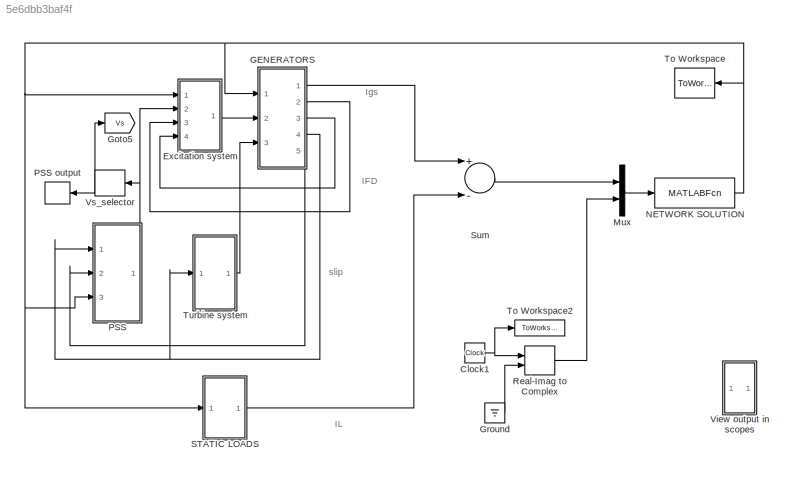
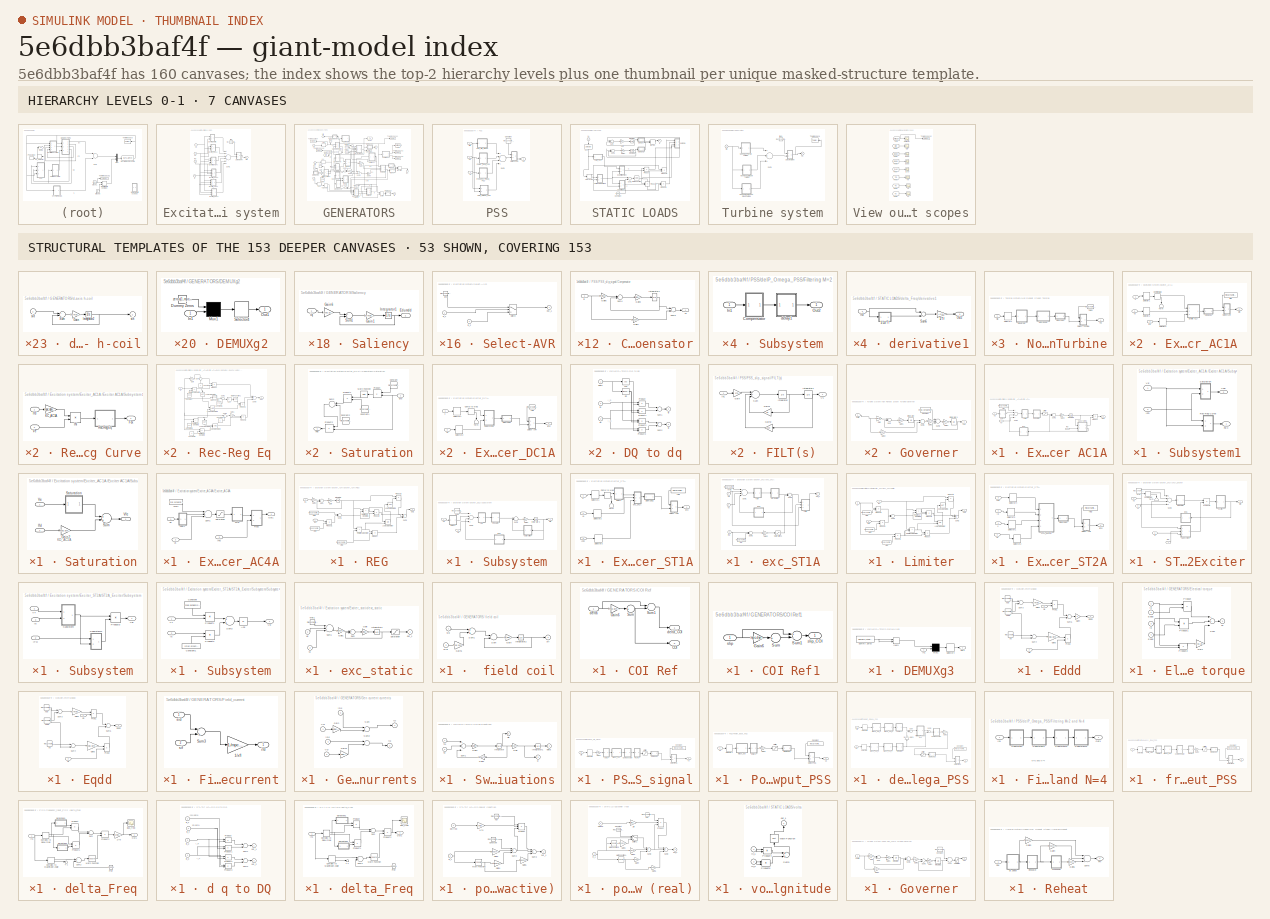
[diagram: thumbnail index - top-2 hierarchy levels (7 canvases) + 53 structural-template representatives of the remaining 153 canvases]
MODEL slx_5e6dbb3baf4f
KIND model
BLOCK [Clock] Clock1
BLOCK [SubSystem] Excitation system
  Ports = [4, 1]
  RequestExecContextInheritance = off
  Variant = off
BLOCK [Outport] Excitation system/Efd
  IconDisplay = Port number
  InitialOutput = 0
BLOCK [SubSystem] Excitation system/Exciter_AC1A 
  Ports = [3, 1]
  RequestExecContextInheritance = off
  Variant = off
BLOCK [ComplexToMagnitudeAngle] Excitation system/Exciter_AC1A /Comp to Mag
  Ports = [1, 2]
BLOCK [SubSystem] Excitation system/Exciter_AC1A /DEMUXg2
  Ports = [1, 1]
  RequestExecContextInheritance = off
  Variant = off
BLOCK [Constant] Excitation system/Exciter_AC1A /DEMUXg2/Dummy Zeros
  Value = zeros(1,mpc.dynamicdata.extraVariables.nb-size(mpc.dynamicdata.exc_AC1A,1))
BLOCK [Inport] Excitation system/Exciter_AC1A /DEMUXg2/In1
  IconDisplay = Port number
BLOCK [Mux] Excitation system/Exciter_AC1A /DEMUXg2/Mux1
  Inputs = [mpc.dynamicdata.extraVariables.nb-size(mpc.dynamicdata.exc_AC1A,1)  size(mpc.dynamicdata.exc_AC1A,1)]
  Ports = [2, 1]
BLOCK [Outport] Excitation system/Exciter_AC1A /DEMUXg2/Out1
  IconDisplay = Port number
BLOCK [Selector] Excitation system/Exciter_AC1A /DEMUXg2/Selector4
  IndexOptions = Index vector (dialog)
  Indices = mpc.dynamicdata.gen_exciterParameters.AC1A_exciterParameters.order_AC1A
  InputPortWidth = mpc.dynamicdata.extraVariables.nb
  OutputSizes = 1
  Ports = [1, 1]
BLOCK [Outport] Excitation system/Exciter_AC1A /Efd
  IconDisplay = Port number
BLOCK [SubSystem] Excitation system/Exciter_AC1A /Exciter AC1A
  Ports = [3, 1]
  RequestExecContextInheritance = off
  Variant = off
BLOCK [SubSystem] Excitation system/Exciter_AC1A /Exciter AC1A/ESS
  Ports = [1, 1]
  RequestExecContextInheritance = off
  Variant = off
BLOCK [Gain] Excitation system/Exciter_AC1A /Exciter AC1A/ESS/Gain3
  Gain = 1./mpc.dynamicdata.gen_exciterParameters.AC1A_exciterParameters.TF_AC1A
BLOCK [Gain] Excitation system/Exciter_AC1A /Exciter AC1A/ESS/Gain4
  Gain = mpc.dynamicdata.gen_exciterParameters.AC1A_exciterParameters.KF_AC1A
BLOCK [Integrator] Excitation system/Exciter_AC1A /Exciter AC1A/ESS/Integrator4
  InitialCondition = mpc.dynamicdata.gen_exciterParameters.AC1A_exciterParameters.Fst0_AC1A
  Ports = [1, 1]
BLOCK [Sum] Excitation system/Exciter_AC1A /Exciter AC1A/ESS/Sum3
  Inputs = +-
  Ports = [2, 1]
BLOCK [Outport] Excitation system/Exciter_AC1A /Exciter AC1A/ESS/VF1
  IconDisplay = Port number
BLOCK [Inport] Excitation system/Exciter_AC1A /Exciter AC1A/ESS/vfe
  IconDisplay = Port number
BLOCK [Gain] Excitation system/Exciter_AC1A /Exciter AC1A/Gain2
  Gain = 1./mpc.dynamicdata.gen_exciterParameters.AC1A_exciterParameters.TE_AC1A
BLOCK [Inport] Excitation system/Exciter_AC1A /Exciter AC1A/IFD
  IconDisplay = Port number
  Port = 3
BLOCK [Integrator] Excitation system/Exciter_AC1A /Exciter AC1A/Integrator3
  InitialCondition = mpc.dynamicdata.gen_exciterParameters.AC1A_exciterParameters.Ve_AC1A
  LimitOutput = on
  LowerSaturationLimit = 0.01
  Ports = [1, 1]
BLOCK [Saturate] Excitation system/Exciter_AC1A /Exciter AC1A/Limiter
  InputPortMap = u0
  LowerLimit = mpc.dynamicdata.gen_exciterParameters.AC1A_exciterParameters.VRmin_AC1A
  Ports = [1, 1]
  UpperLimit = mpc.dynamicdata.gen_exciterParameters.AC1A_exciterParameters.VRmax_AC1A
BLOCK [Outport] Excitation system/Exciter_AC1A /Exciter AC1A/Out1
  IconDisplay = Port number
BLOCK [Product] Excitation system/Exciter_AC1A /Exciter AC1A/Product
  Ports = [2, 1]
BLOCK [SubSystem] Excitation system/Exciter_AC1A /Exciter AC1A/Regulator
  Ports = [1, 1]
  RequestExecContextInheritance = off
  Variant = off
BLOCK [Gain] Excitation system/Exciter_AC1A /Exciter AC1A/Regulator/Gain
  Gain = 1./mpc.dynamicdata.gen_exciterParameters.AC1A_exciterParameters.TA_AC1A
BLOCK [Gain] Excitation system/Exciter_AC1A /Exciter AC1A/Regulator/Gain1
  Gain = mpc.dynamicdata.gen_exciterParameters.AC1A_exciterParameters.kA_AC1A
BLOCK [Integrator] Excitation system/Exciter_AC1A /Exciter AC1A/Regulator/Integrator2
  InitialCondition = mpc.dynamicdata.gen_exciterParameters.AC1A_exciterParameters.VR0_AC1A
  LimitOutput = on
  LowerSaturationLimit = mpc.dynamicdata.gen_exciterParameters.AC1A_exciterParameters.VAmin_AC1A
  Ports = [1, 1]
  UpperSaturationLimit = mpc.dynamicdata.gen_exciterParameters.AC1A_exciterParameters.VAmax_AC1A
BLOCK [Sum] Excitation system/Exciter_AC1A /Exciter AC1A/Regulator/Sum
  Inputs = +-
  Ports = [2, 1]
BLOCK [Outport] Excitation system/Exciter_AC1A /Exciter AC1A/Regulator/VR
  IconDisplay = Port number
BLOCK [Inport] Excitation system/Exciter_AC1A /Exciter AC1A/Regulator/Vin
  IconDisplay = Port number
BLOCK [SubSystem] Excitation system/Exciter_AC1A /Exciter AC1A/Subsystem1
  Ports = [2, 2]
  RequestExecContextInheritance = off
  Variant = off
BLOCK [Outport] Excitation system/Exciter_AC1A /Exciter AC1A/Subsystem1/FEX
  IconDisplay = Port number
BLOCK [Inport] Excitation system/Exciter_AC1A /Exciter AC1A/Subsystem1/IFD
  IconDisplay = Port number
  Port = 2
BLOCK [SubSystem] Excitation system/Exciter_AC1A /Exciter AC1A/Subsystem1/Rec-Reg Curve
  Ports = [2, 1]
  RequestExecContextInheritance = off
  Variant = off
BLOCK [Outport] Excitation system/Exciter_AC1A /Exciter AC1A/Subsystem1/Rec-Reg Curve/Fex
  IconDisplay = Port number
BLOCK [Product] Excitation system/Exciter_AC1A /Exciter AC1A/Subsystem1/Rec-Reg Curve/IN
  Inputs = */
  Ports = [2, 1]
BLOCK [Inport] Excitation system/Exciter_AC1A /Exciter AC1A/Subsystem1/Rec-Reg Curve/Ifd
  IconDisplay = Port number
BLOCK [Gain] Excitation system/Exciter_AC1A /Exciter AC1A/Subsystem1/Rec-Reg Curve/KC_AC1A
  Gain = mpc.dynamicdata.gen_exciterParameters.AC1A_exciterParameters.KC_AC1A
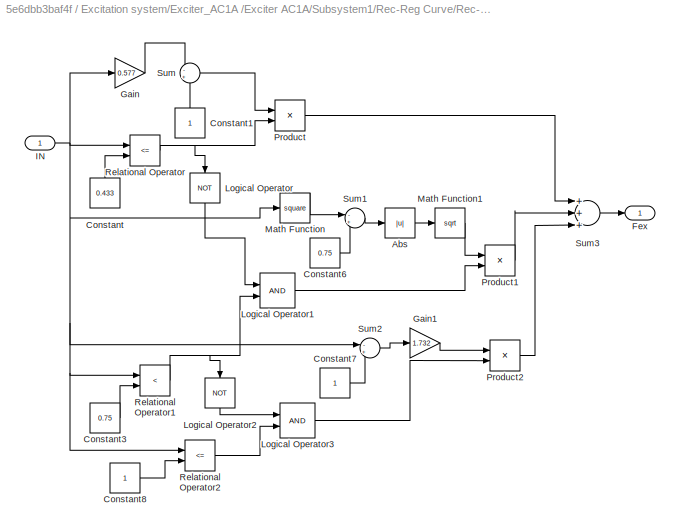
BLOCK [SubSystem] Excitation system/Exciter_AC1A /Exciter AC1A/Subsystem1/Rec-Reg Curve/Rec-Reg Eq 
  Ports = [1, 1]
  RequestExecContextInheritance = off
  Variant = off
BLOCK [Abs] Excitation system/Exciter_AC1A /Exciter AC1A/Subsystem1/Rec-Reg Curve/Rec-Reg Eq /Abs
BLOCK [Constant] Excitation system/Exciter_AC1A /Exciter AC1A/Subsystem1/Rec-Reg Curve/Rec-Reg Eq /Constant
  Value = 0.433
BLOCK [Constant] Excitation system/Exciter_AC1A /Exciter AC1A/Subsystem1/Rec-Reg Curve/Rec-Reg Eq /Constant1
BLOCK [Constant] Excitation system/Exciter_AC1A /Exciter AC1A/Subsystem1/Rec-Reg Curve/Rec-Reg Eq /Constant3
  Value = 0.75
BLOCK [Constant] Excitation system/Exciter_AC1A /Exciter AC1A/Subsystem1/Rec-Reg Curve/Rec-Reg Eq /Constant6
  Value = 0.75
BLOCK [Constant] Excitation system/Exciter_AC1A /Exciter AC1A/Subsystem1/Rec-Reg Curve/Rec-Reg Eq /Constant7
BLOCK [Constant] Excitation system/Exciter_AC1A /Exciter AC1A/Subsystem1/Rec-Reg Curve/Rec-Reg Eq /Constant8
BLOCK [Outport] Excitation system/Exciter_AC1A /Exciter AC1A/Subsystem1/Rec-Reg Curve/Rec-Reg Eq /Fex
  IconDisplay = Port number
BLOCK [Gain] Excitation system/Exciter_AC1A /Exciter AC1A/Subsystem1/Rec-Reg Curve/Rec-Reg Eq /Gain
  Gain = 0.577
BLOCK [Gain] Excitation system/Exciter_AC1A /Exciter AC1A/Subsystem1/Rec-Reg Curve/Rec-Reg Eq /Gain1
  Gain = 1.732
BLOCK [Inport] Excitation system/Exciter_AC1A /Exciter AC1A/Subsystem1/Rec-Reg Curve/Rec-Reg Eq /IN
  IconDisplay = Port number
BLOCK [Logic] Excitation system/Exciter_AC1A /Exciter AC1A/Subsystem1/Rec-Reg Curve/Rec-Reg Eq /Logical Operator
  Operator = NOT
  Ports = [1, 1]
BLOCK [Logic] Excitation system/Exciter_AC1A /Exciter AC1A/Subsystem1/Rec-Reg Curve/Rec-Reg Eq /Logical Operator1
  Ports = [2, 1]
BLOCK [Logic] Excitation system/Exciter_AC1A /Exciter AC1A/Subsystem1/Rec-Reg Curve/Rec-Reg Eq /Logical Operator2
  Operator = NOT
  Ports = [1, 1]
BLOCK [Logic] Excitation system/Exciter_AC1A /Exciter AC1A/Subsystem1/Rec-Reg Curve/Rec-Reg Eq /Logical Operator3
  Ports = [2, 1]
BLOCK [Math] Excitation system/Exciter_AC1A /Exciter AC1A/Subsystem1/Rec-Reg Curve/Rec-Reg Eq /Math Function
  Operator = square
  Ports = [1, 1]
BLOCK [Math] Excitation system/Exciter_AC1A /Exciter AC1A/Subsystem1/Rec-Reg Curve/Rec-Reg Eq /Math Function1
  Operator = sqrt
  Ports = [1, 1]
BLOCK [Product] Excitation system/Exciter_AC1A /Exciter AC1A/Subsystem1/Rec-Reg Curve/Rec-Reg Eq /Product
  Ports = [2, 1]
BLOCK [Product] Excitation system/Exciter_AC1A /Exciter AC1A/Subsystem1/Rec-Reg Curve/Rec-Reg Eq /Product1
  Ports = [2, 1]
BLOCK [Product] Excitation system/Exciter_AC1A /Exciter AC1A/Subsystem1/Rec-Reg Curve/Rec-Reg Eq /Product2
  Ports = [2, 1]
BLOCK [RelationalOperator] Excitation system/Exciter_AC1A /Exciter AC1A/Subsystem1/Rec-Reg Curve/Rec-Reg Eq /Relational Operator
  Operator = <=
  Ports = [2, 1]
BLOCK [RelationalOperator] Excitation system/Exciter_AC1A /Exciter AC1A/Subsystem1/Rec-Reg Curve/Rec-Reg Eq /Relational Operator1
  Operator = <
  Ports = [2, 1]
BLOCK [RelationalOperator] Excitation system/Exciter_AC1A /Exciter AC1A/Subsystem1/Rec-Reg Curve/Rec-Reg Eq /Relational Operator2
  Operator = <=
  Ports = [2, 1]
BLOCK [Sum] Excitation system/Exciter_AC1A /Exciter AC1A/Subsystem1/Rec-Reg Curve/Rec-Reg Eq /Sum
  IconShape = round
  Inputs = -+
  Ports = [2, 1]
BLOCK [Sum] Excitation system/Exciter_AC1A /Exciter AC1A/Subsystem1/Rec-Reg Curve/Rec-Reg Eq /Sum1
  IconShape = round
  Inputs = -+
  Ports = [2, 1]
BLOCK [Sum] Excitation system/Exciter_AC1A /Exciter AC1A/Subsystem1/Rec-Reg Curve/Rec-Reg Eq /Sum2
  IconShape = round
  Inputs = -+
  Ports = [2, 1]
BLOCK [Sum] Excitation system/Exciter_AC1A /Exciter AC1A/Subsystem1/Rec-Reg Curve/Rec-Reg Eq /Sum3
  Inputs = +++
  Ports = [3, 1]
BLOCK [Inport] Excitation system/Exciter_AC1A /Exciter AC1A/Subsystem1/Rec-Reg Curve/Ve
  IconDisplay = Port number
  Port = 2
BLOCK [SubSystem] Excitation system/Exciter_AC1A /Exciter AC1A/Subsystem1/Saturation
  Ports = [2, 1]
  RequestExecContextInheritance = off
  Variant = off
BLOCK [Gain] Excitation system/Exciter_AC1A /Exciter AC1A/Subsystem1/Saturation/Gain2
  Gain = mpc.dynamicdata.gen_exciterParameters.AC1A_exciterParameters.KD_AC1A
BLOCK [Inport] Excitation system/Exciter_AC1A /Exciter AC1A/Subsystem1/Saturation/Ifd
  IconDisplay = Port number
  Port = 2
BLOCK [SubSystem] Excitation system/Exciter_AC1A /Exciter AC1A/Subsystem1/Saturation/Saturation
  Ports = [1, 1]
  RequestExecContextInheritance = off
  Variant = off
BLOCK [Constant] Excitation system/Exciter_AC1A /Exciter AC1A/Subsystem1/Saturation/Saturation/Constant
  Value = mpc.dynamicdata.gen_exciterParameters.AC1A_exciterParameters.B1
BLOCK [Constant] Excitation system/Exciter_AC1A /Exciter AC1A/Subsystem1/Saturation/Saturation/Constant1
  Value = mpc.dynamicdata.gen_exciterParameters.AC1A_exciterParameters.A1
BLOCK [Constant] Excitation system/Exciter_AC1A /Exciter AC1A/Subsystem1/Saturation/Saturation/Constant2
  Value = mpc.dynamicdata.gen_exciterParameters.AC1A_exciterParameters.KE_AC1A
BLOCK [Math] Excitation system/Exciter_AC1A /Exciter AC1A/Subsystem1/Saturation/Saturation/Math Function
  Ports = [1, 1]
BLOCK [Product] Excitation system/Exciter_AC1A /Exciter AC1A/Subsystem1/Saturation/Saturation/Product
  Ports = [2, 1]
BLOCK [Product] Excitation system/Exciter_AC1A /Exciter AC1A/Subsystem1/Saturation/Saturation/Product1
  Ports = [2, 1]
BLOCK [Product] Excitation system/Exciter_AC1A /Exciter AC1A/Subsystem1/Saturation/Saturation/Product2
  Ports = [2, 1]
BLOCK [Sum] Excitation system/Exciter_AC1A /Exciter AC1A/Subsystem1/Saturation/Saturation/Sum2
  Ports = [2, 1]
BLOCK [Inport] Excitation system/Exciter_AC1A /Exciter AC1A/Subsystem1/Saturation/Saturation/VE
  IconDisplay = Port number
BLOCK [Outport] Excitation system/Exciter_AC1A /Exciter AC1A/Subsystem1/Saturation/Saturation/VRb
  IconDisplay = Port number
BLOCK [Sum] Excitation system/Exciter_AC1A /Exciter AC1A/Subsystem1/Saturation/Sum
  Ports = [2, 1]
BLOCK [Inport] Excitation system/Exciter_AC1A /Exciter AC1A/Subsystem1/Saturation/Ve
  IconDisplay = Port number
BLOCK [Outport] Excitation system/Exciter_AC1A /Exciter AC1A/Subsystem1/Saturation/Vfe
  IconDisplay = Port number
BLOCK [Inport] Excitation system/Exciter_AC1A /Exciter AC1A/Subsystem1/VE
  IconDisplay = Port number
BLOCK [Outport] Excitation system/Exciter_AC1A /Exciter AC1A/Subsystem1/VFE
  IconDisplay = Port number
  Port = 2
BLOCK [Sum] Excitation system/Exciter_AC1A /Exciter AC1A/Sum1
  Inputs = +--+
  Ports = [4, 1]
BLOCK [Sum] Excitation system/Exciter_AC1A /Exciter AC1A/Sum2
  Inputs = +-
  Ports = [2, 1]
BLOCK [SubSystem] Excitation system/Exciter_AC1A /Exciter AC1A/TGR
  Ports = [1, 1]
  RequestExecContextInheritance = off
  Variant = off
BLOCK [Gain] Excitation system/Exciter_AC1A /Exciter AC1A/TGR/Gain3
  Gain = 1./mpc.dynamicdata.gen_exciterParameters.AC1A_exciterParameters.TB_AC1A
BLOCK [Gain] Excitation system/Exciter_AC1A /Exciter AC1A/TGR/Gain4
  Gain = mpc.dynamicdata.gen_exciterParameters.AC1A_exciterParameters.TC_AC1A./mpc.dynamicdata.gen_exciterParameters.AC1A_exciterParameters.TB_AC1A
BLOCK [Gain] Excitation system/Exciter_AC1A /Exciter AC1A/TGR/Gain5
  Gain = 1-mpc.dynamicdata.gen_exciterParameters.AC1A_exciterParameters.TC_AC1A./mpc.dynamicdata.gen_exciterParameters.AC1A_exciterParameters.TB_AC1A
BLOCK [Integrator] Excitation system/Exciter_AC1A /Exciter AC1A/TGR/Integrator4
  InitialCondition = mpc.dynamicdata.gen_exciterParameters.AC1A_exciterParameters.Tgr0_AC1A
  Ports = [1, 1]
BLOCK [Sum] Excitation system/Exciter_AC1A /Exciter AC1A/TGR/Sum3
  Ports = [2, 1]
BLOCK [Sum] Excitation system/Exciter_AC1A /Exciter AC1A/TGR/Sum4
  Inputs = +-
  Ports = [2, 1]
BLOCK [Inport] Excitation system/Exciter_AC1A /Exciter AC1A/TGR/Ver
  IconDisplay = Port number
BLOCK [Outport] Excitation system/Exciter_AC1A /Exciter AC1A/TGR/Vtgr
  IconDisplay = Port number
BLOCK [Inport] Excitation system/Exciter_AC1A /Exciter AC1A/Vg
  IconDisplay = Port number
BLOCK [Constant] Excitation system/Exciter_AC1A /Exciter AC1A/Vref
  Value = mpc.dynamicdata.gen_exciterParameters.AC1A_exciterParameters.Vref_AC1A
BLOCK [Inport] Excitation system/Exciter_AC1A /Exciter AC1A/Vs
  IconDisplay = Port number
  Port = 2
BLOCK [SubSystem] Excitation system/Exciter_AC1A /Exciter AC1A/delay1
  Ports = [1, 1]
  RequestExecContextInheritance = off
  Variant = off
BLOCK [Gain] Excitation system/Exciter_AC1A /Exciter AC1A/delay1/Gain
  Gain = 1./mpc.dynamicdata.gen_exciterParameters.AC1A_exciterParameters.Tr_AC1A
BLOCK [Integrator] Excitation system/Exciter_AC1A /Exciter AC1A/delay1/Integrator2
  InitialCondition = mpc.dynamicdata.extraVariables.lfl(mpc.dynamicdata.exc_AC1A(:,1),2)
  Ports = [1, 1]
BLOCK [Outport] Excitation system/Exciter_AC1A /Exciter AC1A/delay1/Out1
  IconDisplay = Port number
BLOCK [Sum] Excitation system/Exciter_AC1A /Exciter AC1A/delay1/Sum
  Inputs = +-
  Ports = [2, 1]
BLOCK [Inport] Excitation system/Exciter_AC1A /Exciter AC1A/delay1/Vin
  IconDisplay = Port number
BLOCK [Inport] Excitation system/Exciter_AC1A /IFD
  IconDisplay = Port number
  Port = 3
BLOCK [SubSystem] Excitation system/Exciter_AC1A /Select-AVR
  Ports = [2, 1]
  RequestExecContextInheritance = off
  ShowPortLabels = none
  Variant = off
BLOCK [Switch] Excitation system/Exciter_AC1A /Select-AVR/Switch
  Threshold = 1
BLOCK [Inport] Excitation system/Exciter_AC1A /Select-AVR/in_1
  IconDisplay = Port number
BLOCK [Inport] Excitation system/Exciter_AC1A /Select-AVR/in_2
  IconDisplay = Port number
  Port = 2
BLOCK [Outport] Excitation system/Exciter_AC1A /Select-AVR/out_1
  IconDisplay = Port number
  InitialOutput = 0
BLOCK [Constant] Excitation system/Exciter_AC1A /Select-AVR/zeros
  Value = zeros(1,mpc.dynamicdata.extraVariables.nb)
BLOCK [Selector] Excitation system/Exciter_AC1A /Selector1
  IndexOptions = Index vector (dialog)
  Indices = mpc.dynamicdata.exc_AC1A(:,1)
  InputPortWidth = mpc.dynamicdata.extraVariables.nb
  OutputSizes = 1
  Ports = [1, 1]
BLOCK [Selector] Excitation system/Exciter_AC1A /Selector2
  IndexOptions = Index vector (dialog)
  Indices = mpc.dynamicdata.exc_AC1A(:,1)
  InputPortWidth = mpc.dynamicdata.extraVariables.nb
  OutputSizes = 1
  Ports = [1, 1]
BLOCK [Selector] Excitation system/Exciter_AC1A /Selector3
  IndexOptions = Index vector (dialog)
  Indices = mpc.dynamicdata.exc_AC1A(:,1)
  InputPortWidth = mpc.dynamicdata.extraVariables.nb
  OutputSizes = 1
  Ports = [1, 1]
BLOCK [Terminator] Excitation system/Exciter_AC1A /Term
BLOCK [Inport] Excitation system/Exciter_AC1A /V
  IconDisplay = Port number
BLOCK [Inport] Excitation system/Exciter_AC1A /Vs
  IconDisplay = Port number
  Port = 2
BLOCK [Constant] Excitation system/Exciter_AC1A /flag
  Value = mpc.dynamicdata.gen_exciterParameters.SL_AC1A
BLOCK [SubSystem] Excitation system/Exciter_AC4A
  Ports = [3, 1]
  RequestExecContextInheritance = off
  Variant = off
BLOCK [ComplexToMagnitudeAngle] Excitation system/Exciter_AC4A/Comp to Mag
  Ports = [1, 2]
BLOCK [SubSystem] Excitation system/Exciter_AC4A/DEMUXg2
  Ports = [1, 1]
  RequestExecContextInheritance = off
  Variant = off
BLOCK [Constant] Excitation system/Exciter_AC4A/DEMUXg2/Dummy Zeros
  Value = zeros(1,mpc.dynamicdata.extraVariables.nb-size(mpc.dynamicdata.exc_AC4A,1))
BLOCK [Inport] Excitation system/Exciter_AC4A/DEMUXg2/In1
  IconDisplay = Port number
BLOCK [Mux] Excitation system/Exciter_AC4A/DEMUXg2/Mux1
  Inputs = [mpc.dynamicdata.extraVariables.nb-size(mpc.dynamicdata.exc_AC4A,1)  size(mpc.dynamicdata.exc_AC4A,1)]
  Ports = [2, 1]
BLOCK [Outport] Excitation system/Exciter_AC4A/DEMUXg2/Out1
  IconDisplay = Port number
BLOCK [Selector] Excitation system/Exciter_AC4A/DEMUXg2/Selector4
  IndexOptions = Index vector (dialog)
  Indices = mpc.dynamicdata.gen_exciterParameters.AC4A_exciterParameters.order_AC4A
  InputPortWidth = mpc.dynamicdata.extraVariables.nb
  OutputSizes = 1
  Ports = [1, 1]
BLOCK [Outport] Excitation system/Exciter_AC4A/Efd
  IconDisplay = Port number
BLOCK [SubSystem] Excitation system/Exciter_AC4A/Exciter_AC4A
  Ports = [3, 1]
  RequestExecContextInheritance = off
  Variant = off
BLOCK [Inport] Excitation system/Exciter_AC4A/Exciter_AC4A/IFD
  IconDisplay = Port number
  Port = 3
BLOCK [Outport] Excitation system/Exciter_AC4A/Exciter_AC4A/Out1
  IconDisplay = Port number
BLOCK [SubSystem] Excitation system/Exciter_AC4A/Exciter_AC4A/REG
  Ports = [2, 1]
  RequestExecContextInheritance = off
  Variant = off
BLOCK [Gain] Excitation system/Exciter_AC4A/Exciter_AC4A/REG/Gain
  Gain = 1./mpc.dynamicdata.gen_exciterParameters.AC4A_exciterParameters.TA_AC4A
BLOCK [Gain] Excitation system/Exciter_AC4A/Exciter_AC4A/REG/Gain1
  Gain = mpc.dynamicdata.gen_exciterParameters.AC4A_exciterParameters.kA_AC4A
BLOCK [Inport] Excitation system/Exciter_AC4A/Exciter_AC4A/REG/IFD
  IconDisplay = Port number
  Port = 2
BLOCK [Inport] Excitation system/Exciter_AC4A/Exciter_AC4A/REG/In1
  IconDisplay = Port number
BLOCK [Integrator] Excitation system/Exciter_AC4A/Exciter_AC4A/REG/Integrator2
  InitialCondition = mpc.dynamicdata.gen_exciterParameters.AC4A_exciterParameters.Efd0_AC4A
  Ports = [1, 1]
BLOCK [Logic] Excitation system/Exciter_AC4A/Exciter_AC4A/REG/Logical Operator
  Operator = OR
  Ports = [2, 1]
BLOCK [Logic] Excitation system/Exciter_AC4A/Exciter_AC4A/REG/Logical Operator1
  Operator = NOT
  Ports = [1, 1]
BLOCK [Outport] Excitation system/Exciter_AC4A/Exciter_AC4A/REG/Out1
  IconDisplay = Port number
BLOCK [Product] Excitation system/Exciter_AC4A/Exciter_AC4A/REG/Product
  Ports = [2, 1]
BLOCK [Product] Excitation system/Exciter_AC4A/Exciter_AC4A/REG/Product1
  Ports = [2, 1]
BLOCK [Product] Excitation system/Exciter_AC4A/Exciter_AC4A/REG/Product2
  Ports = [2, 1]
BLOCK [Product] Excitation system/Exciter_AC4A/Exciter_AC4A/REG/Product3
  Ports = [2, 1]
BLOCK [RelationalOperator] Excitation system/Exciter_AC4A/Exciter_AC4A/REG/Relational Operator
  Operator = <
  Ports = [2, 1]
BLOCK [RelationalOperator] Excitation system/Exciter_AC4A/Exciter_AC4A/REG/Relational Operator1
  Operator = >
  Ports = [2, 1]
BLOCK [Sum] Excitation system/Exciter_AC4A/Exciter_AC4A/REG/Sum
  Inputs = +-
  Ports = [2, 1]
BLOCK [Sum] Excitation system/Exciter_AC4A/Exciter_AC4A/REG/Sum1
  Inputs = +-
  Ports = [2, 1]
BLOCK [Sum] Excitation system/Exciter_AC4A/Exciter_AC4A/REG/Sum2
  Inputs = +++
  Ports = [3, 1]
BLOCK [Constant] Excitation system/Exciter_AC4A/Exciter_AC4A/REG/Vref1
  Value = mpc.dynamicdata.gen_exciterParameters.AC4A_exciterParameters.VRmin_AC4A
BLOCK [Constant] Excitation system/Exciter_AC4A/Exciter_AC4A/REG/Vref2
  Value = mpc.dynamicdata.gen_exciterParameters.AC4A_exciterParameters.KC_AC4A
BLOCK [Constant] Excitation system/Exciter_AC4A/Exciter_AC4A/REG/Vref3
  Value = mpc.dynamicdata.gen_exciterParameters.AC4A_exciterParameters.VRmax_AC4A
BLOCK [Saturate] Excitation system/Exciter_AC4A/Exciter_AC4A/Saturation
  InputPortMap = u0
  LowerLimit = mpc.dynamicdata.gen_exciterParameters.AC4A_exciterParameters.VImin_AC4A
  Ports = [1, 1]
  UpperLimit = mpc.dynamicdata.gen_exciterParameters.AC4A_exciterParameters.VImax_AC4A
BLOCK [Sum] Excitation system/Exciter_AC4A/Exciter_AC4A/Sum1
  Inputs = +-+
  Ports = [3, 1]
BLOCK [SubSystem] Excitation system/Exciter_AC4A/Exciter_AC4A/TGR
  Ports = [1, 1]
  RequestExecContextInheritance = off
  Variant = off
BLOCK [Gain] Excitation system/Exciter_AC4A/Exciter_AC4A/TGR/Gain3
  Gain = 1./mpc.dynamicdata.gen_exciterParameters.AC4A_exciterParameters.TB_AC4A
BLOCK [Gain] Excitation system/Exciter_AC4A/Exciter_AC4A/TGR/Gain4
  Gain = mpc.dynamicdata.gen_exciterParameters.AC4A_exciterParameters.TC_AC4A./mpc.dynamicdata.gen_exciterParameters.AC4A_exciterParameters.TB_AC4A
BLOCK [Gain] Excitation system/Exciter_AC4A/Exciter_AC4A/TGR/Gain5
  Gain = 1-mpc.dynamicdata.gen_exciterParameters.AC4A_exciterParameters.TC_AC4A./mpc.dynamicdata.gen_exciterParameters.AC4A_exciterParameters.TB_AC4A
BLOCK [Integrator] Excitation system/Exciter_AC4A/Exciter_AC4A/TGR/Integrator4
  InitialCondition = mpc.dynamicdata.gen_exciterParameters.AC4A_exciterParameters.Tgr0_AC4A
  Ports = [1, 1]
BLOCK [Sum] Excitation system/Exciter_AC4A/Exciter_AC4A/TGR/Sum3
  Ports = [2, 1]
BLOCK [Sum] Excitation system/Exciter_AC4A/Exciter_AC4A/TGR/Sum4
  Inputs = +-
  Ports = [2, 1]
BLOCK [Outport] Excitation system/Exciter_AC4A/Exciter_AC4A/TGR/V3
  IconDisplay = Port number
BLOCK [Inport] Excitation system/Exciter_AC4A/Exciter_AC4A/TGR/Ver
  IconDisplay = Port number
BLOCK [Inport] Excitation system/Exciter_AC4A/Exciter_AC4A/Vg
  IconDisplay = Port number
BLOCK [Constant] Excitation system/Exciter_AC4A/Exciter_AC4A/Vref1
  Value = mpc.dynamicdata.gen_exciterParameters.AC4A_exciterParameters.Vref_AC4A
BLOCK [Inport] Excitation system/Exciter_AC4A/Exciter_AC4A/Vs
  IconDisplay = Port number
  Port = 2
BLOCK [SubSystem] Excitation system/Exciter_AC4A/Exciter_AC4A/delay1
  Ports = [1, 1]
  RequestExecContextInheritance = off
  Variant = off
BLOCK [Gain] Excitation system/Exciter_AC4A/Exciter_AC4A/delay1/Gain
  Gain = 1./mpc.dynamicdata.gen_exciterParameters.AC4A_exciterParameters.Tr_AC4A
BLOCK [Integrator] Excitation system/Exciter_AC4A/Exciter_AC4A/delay1/Integrator2
  InitialCondition = mpc.dynamicdata.extraVariables.lfl(mpc.dynamicdata.exc_AC4A(:,1),2)
  Ports = [1, 1]
BLOCK [Outport] Excitation system/Exciter_AC4A/Exciter_AC4A/delay1/Out1
  IconDisplay = Port number
BLOCK [Sum] Excitation system/Exciter_AC4A/Exciter_AC4A/delay1/Sum
  Inputs = +-
  Ports = [2, 1]
BLOCK [Inport] Excitation system/Exciter_AC4A/Exciter_AC4A/delay1/Vin
  IconDisplay = Port number
BLOCK [Inport] Excitation system/Exciter_AC4A/IFD
  IconDisplay = Port number
  Port = 3
BLOCK [SubSystem] Excitation system/Exciter_AC4A/Select-AVR
  Ports = [2, 1]
  RequestExecContextInheritance = off
  ShowPortLabels = none
  Variant = off
BLOCK [Switch] Excitation system/Exciter_AC4A/Select-AVR/Switch
  Threshold = 1
BLOCK [Inport] Excitation system/Exciter_AC4A/Select-AVR/in_1
  IconDisplay = Port number
BLOCK [Inport] Excitation system/Exciter_AC4A/Select-AVR/in_2
  IconDisplay = Port number
  Port = 2
BLOCK [Outport] Excitation system/Exciter_AC4A/Select-AVR/out_1
  IconDisplay = Port number
  InitialOutput = 0
BLOCK [Constant] Excitation system/Exciter_AC4A/Select-AVR/zeros
  Value = zeros(1,mpc.dynamicdata.extraVariables.nb)
BLOCK [Selector] Excitation system/Exciter_AC4A/Selector1
  IndexOptions = Index vector (dialog)
  Indices = mpc.dynamicdata.exc_AC4A(:,1)
  InputPortWidth = mpc.dynamicdata.extraVariables.nb
  OutputSizes = 1
  Ports = [1, 1]
BLOCK [Selector] Excitation system/Exciter_AC4A/Selector2
  IndexOptions = Index vector (dialog)
  Indices = mpc.dynamicdata.exc_AC4A(:,1)
  InputPortWidth = mpc.dynamicdata.extraVariables.nb
  OutputSizes = 1
  Ports = [1, 1]
BLOCK [Selector] Excitation system/Exciter_AC4A/Selector3
  IndexOptions = Index vector (dialog)
  Indices = mpc.dynamicdata.exc_AC4A(:,1)
  InputPortWidth = mpc.dynamicdata.extraVariables.nb
  OutputSizes = 1
  Ports = [1, 1]
BLOCK [Terminator] Excitation system/Exciter_AC4A/Term
BLOCK [Inport] Excitation system/Exciter_AC4A/V
  IconDisplay = Port number
BLOCK [Inport] Excitation system/Exciter_AC4A/Vs
  IconDisplay = Port number
  Port = 2
BLOCK [Constant] Excitation system/Exciter_AC4A/flag
  Value = mpc.dynamicdata.gen_exciterParameters.SL_AC4A
BLOCK [SubSystem] Excitation system/Exciter_DC1A
  Ports = [2, 1]
  RequestExecContextInheritance = off
  Variant = off
BLOCK [ComplexToMagnitudeAngle] Excitation system/Exciter_DC1A/Comp to Mag
  Ports = [1, 2]
BLOCK [SubSystem] Excitation system/Exciter_DC1A/DEMUXg2
  Ports = [1, 1]
  RequestExecContextInheritance = off
  Variant = off
BLOCK [Constant] Excitation system/Exciter_DC1A/DEMUXg2/Dummy Zeros
  Value = zeros(1,mpc.dynamicdata.extraVariables.nb-size(mpc.dynamicdata.exc_DC1A,1))
BLOCK [Inport] Excitation system/Exciter_DC1A/DEMUXg2/In1
  IconDisplay = Port number
BLOCK [Mux] Excitation system/Exciter_DC1A/DEMUXg2/Mux1
  Inputs = [mpc.dynamicdata.extraVariables.nb-size(mpc.dynamicdata.exc_DC1A,1)  size(mpc.dynamicdata.exc_DC1A,1)]
  Ports = [2, 1]
BLOCK [Outport] Excitation system/Exciter_DC1A/DEMUXg2/Out1
  IconDisplay = Port number
BLOCK [Selector] Excitation system/Exciter_DC1A/DEMUXg2/Selector4
  IndexOptions = Index vector (dialog)
  Indices = mpc.dynamicdata.gen_exciterParameters.DC1A_exciterParameters.order_DC1A
  InputPortWidth = mpc.dynamicdata.extraVariables.nb
  OutputSizes = 1
  Ports = [1, 1]
BLOCK [Outport] Excitation system/Exciter_DC1A/Efd
  IconDisplay = Port number
BLOCK [SubSystem] Excitation system/Exciter_DC1A/Select-AVR
  Ports = [2, 1]
  RequestExecContextInheritance = off
  ShowPortLabels = none
  Variant = off
BLOCK [Switch] Excitation system/Exciter_DC1A/Select-AVR/Switch
  Threshold = 1
BLOCK [Inport] Excitation system/Exciter_DC1A/Select-AVR/in_1
  IconDisplay = Port number
BLOCK [Inport] Excitation system/Exciter_DC1A/Select-AVR/in_2
  IconDisplay = Port number
  Port = 2
BLOCK [Outport] Excitation system/Exciter_DC1A/Select-AVR/out_1
  IconDisplay = Port number
  InitialOutput = 0
BLOCK [Constant] Excitation system/Exciter_DC1A/Select-AVR/zeros
  Value = zeros(1,mpc.dynamicdata.extraVariables.nb)
BLOCK [Selector] Excitation system/Exciter_DC1A/Selector1
  IndexOptions = Index vector (dialog)
  Indices = mpc.dynamicdata.exc_DC1A(:,1)
  InputPortWidth = mpc.dynamicdata.extraVariables.nb
  OutputSizes = 1
  Ports = [1, 1]
BLOCK [Selector] Excitation system/Exciter_DC1A/Selector2
  IndexOptions = Index vector (dialog)
  Indices = mpc.dynamicdata.exc_DC1A(:,1)
  InputPortWidth = mpc.dynamicdata.extraVariables.nb
  OutputSizes = 1
  Ports = [1, 1]
BLOCK [SubSystem] Excitation system/Exciter_DC1A/Subsystem
  Ports = [2, 1]
  RequestExecContextInheritance = off
  Variant = off
BLOCK [SubSystem] Excitation system/Exciter_DC1A/Subsystem/ESS
  Ports = [1, 1]
  RequestExecContextInheritance = off
  Variant = off
BLOCK [Inport] Excitation system/Exciter_DC1A/Subsystem/ESS/Efd
  IconDisplay = Port number
BLOCK [Gain] Excitation system/Exciter_DC1A/Subsystem/ESS/Gain3
  Gain = 1./mpc.dynamicdata.gen_exciterParameters.DC1A_exciterParameters.TF_DC1A
BLOCK [Gain] Excitation system/Exciter_DC1A/Subsystem/ESS/Gain4
  Gain = mpc.dynamicdata.gen_exciterParameters.DC1A_exciterParameters.KF_DC1A
BLOCK [Integrator] Excitation system/Exciter_DC1A/Subsystem/ESS/Integrator4
  InitialCondition = mpc.dynamicdata.gen_exciterParameters.DC1A_exciterParameters.Fst0_DC1A
  Ports = [1, 1]
BLOCK [Sum] Excitation system/Exciter_DC1A/Subsystem/ESS/Sum3
  Inputs = +-
  Ports = [2, 1]
BLOCK [Outport] Excitation system/Exciter_DC1A/Subsystem/ESS/VF
  IconDisplay = Port number
BLOCK [Outport] Excitation system/Exciter_DC1A/Subsystem/Efd
  IconDisplay = Port number
BLOCK [Gain] Excitation system/Exciter_DC1A/Subsystem/Gain2
  Gain = 1./mpc.dynamicdata.gen_exciterParameters.DC1A_exciterParameters.TE_DC1A
BLOCK [Integrator] Excitation system/Exciter_DC1A/Subsystem/Integrator3
  InitialCondition = mpc.dynamicdata.gen_exciterParameters.DC1A_exciterParameters.Efd0_DC1A
  Ports = [1, 1]
BLOCK [SubSystem] Excitation system/Exciter_DC1A/Subsystem/Regulator
  Ports = [1, 1]
  RequestExecContextInheritance = off
  Variant = off
BLOCK [Gain] Excitation system/Exciter_DC1A/Subsystem/Regulator/Gain
  Gain = 1./mpc.dynamicdata.gen_exciterParameters.DC1A_exciterParameters.TA_DC1A
BLOCK [Gain] Excitation system/Exciter_DC1A/Subsystem/Regulator/Gain1
  Gain = mpc.dynamicdata.gen_exciterParameters.DC1A_exciterParameters.KA_DC1A
BLOCK [Integrator] Excitation system/Exciter_DC1A/Subsystem/Regulator/Integrator2
  InitialCondition = mpc.dynamicdata.gen_exciterParameters.DC1A_exciterParameters.VR0_DC1A
  LimitOutput = on
  LowerSaturationLimit = mpc.dynamicdata.gen_exciterParameters.DC1A_exciterParameters.VRmin_DC1A
  Ports = [1, 1]
  UpperSaturationLimit = mpc.dynamicdata.gen_exciterParameters.DC1A_exciterParameters.VRmax_DC1A
BLOCK [Outport] Excitation system/Exciter_DC1A/Subsystem/Regulator/Out1
  IconDisplay = Port number
BLOCK [Sum] Excitation system/Exciter_DC1A/Subsystem/Regulator/Sum
  Inputs = +-
  Ports = [2, 1]
BLOCK [Inport] Excitation system/Exciter_DC1A/Subsystem/Regulator/Vin
  IconDisplay = Port number
BLOCK [SubSystem] Excitation system/Exciter_DC1A/Subsystem/Saturation
  Ports = [1, 1]
  RequestExecContextInheritance = off
  Variant = off
BLOCK [Constant] Excitation system/Exciter_DC1A/Subsystem/Saturation/Constant
  Value = mpc.dynamicdata.gen_exciterParameters.DC1A_exciterParameters.B_DC1A
BLOCK [Constant] Excitation system/Exciter_DC1A/Subsystem/Saturation/Constant1
  Value = mpc.dynamicdata.gen_exciterParameters.DC1A_exciterParameters.A_DC1A
BLOCK [Constant] Excitation system/Exciter_DC1A/Subsystem/Saturation/Constant2
  Value = mpc.dynamicdata.gen_exciterParameters.DC1A_exciterParameters.KE_DC1A
BLOCK [Inport] Excitation system/Exciter_DC1A/Subsystem/Saturation/Efd
  IconDisplay = Port number
BLOCK [Math] Excitation system/Exciter_DC1A/Subsystem/Saturation/Math Function
  Ports = [1, 1]
BLOCK [Product] Excitation system/Exciter_DC1A/Subsystem/Saturation/Product
  Ports = [2, 1]
BLOCK [Product] Excitation system/Exciter_DC1A/Subsystem/Saturation/Product1
  Ports = [2, 1]
BLOCK [Product] Excitation system/Exciter_DC1A/Subsystem/Saturation/Product2
  Ports = [2, 1]
BLOCK [Sum] Excitation system/Exciter_DC1A/Subsystem/Saturation/Sum2
  Ports = [2, 1]
BLOCK [Outport] Excitation system/Exciter_DC1A/Subsystem/Saturation/VRb
  IconDisplay = Port number
BLOCK [Sum] Excitation system/Exciter_DC1A/Subsystem/Sum1
  Inputs = +--+
  Ports = [4, 1]
BLOCK [Sum] Excitation system/Exciter_DC1A/Subsystem/Sum2
  Inputs = +-
  Ports = [2, 1]
BLOCK [SubSystem] Excitation system/Exciter_DC1A/Subsystem/TGR
  Ports = [1, 1]
  RequestExecContextInheritance = off
  Variant = off
BLOCK [Gain] Excitation system/Exciter_DC1A/Subsystem/TGR/Gain3
  Gain = 1./mpc.dynamicdata.gen_exciterParameters.DC1A_exciterParameters.TB_DC1A
BLOCK [Gain] Excitation system/Exciter_DC1A/Subsystem/TGR/Gain4
  Gain = mpc.dynamicdata.gen_exciterParameters.DC1A_exciterParameters.TC_DC1A./mpc.dynamicdata.gen_exciterParameters.DC1A_exciterParameters.TB_DC1A
BLOCK [Gain] Excitation system/Exciter_DC1A/Subsystem/TGR/Gain5
  Gain = 1-mpc.dynamicdata.gen_exciterParameters.DC1A_exciterParameters.TC_DC1A./mpc.dynamicdata.gen_exciterParameters.DC1A_exciterParameters.TB_DC1A
BLOCK [Integrator] Excitation system/Exciter_DC1A/Subsystem/TGR/Integrator4
  InitialCondition = mpc.dynamicdata.gen_exciterParameters.DC1A_exciterParameters.Tgr0_DC1A
  Ports = [1, 1]
BLOCK [Sum] Excitation system/Exciter_DC1A/Subsystem/TGR/Sum3
  Ports = [2, 1]
BLOCK [Sum] Excitation system/Exciter_DC1A/Subsystem/TGR/Sum4
  Inputs = +-
  Ports = [2, 1]
BLOCK [Outport] Excitation system/Exciter_DC1A/Subsystem/TGR/V3
  IconDisplay = Port number
BLOCK [Inport] Excitation system/Exciter_DC1A/Subsystem/TGR/Ver
  IconDisplay = Port number
BLOCK [Inport] Excitation system/Exciter_DC1A/Subsystem/Vg
  IconDisplay = Port number
BLOCK [Constant] Excitation system/Exciter_DC1A/Subsystem/Vref
  Value = mpc.dynamicdata.gen_exciterParameters.DC1A_exciterParameters.Vref_DC1A
BLOCK [Inport] Excitation system/Exciter_DC1A/Subsystem/Vs
  IconDisplay = Port number
  Port = 2
BLOCK [SubSystem] Excitation system/Exciter_DC1A/Subsystem/delay1
  Ports = [1, 1]
  RequestExecContextInheritance = off
  Variant = off
BLOCK [Gain] Excitation system/Exciter_DC1A/Subsystem/delay1/Gain
  Gain = 1./mpc.dynamicdata.gen_exciterParameters.DC1A_exciterParameters.Tr_DC1A
BLOCK [Integrator] Excitation system/Exciter_DC1A/Subsystem/delay1/Integrator2
  InitialCondition = mpc.dynamicdata.extraVariables.lfl(mpc.dynamicdata.exc_DC1A(:,1),2)
  Ports = [1, 1]
BLOCK [Outport] Excitation system/Exciter_DC1A/Subsystem/delay1/Out1
  IconDisplay = Port number
BLOCK [Sum] Excitation system/Exciter_DC1A/Subsystem/delay1/Sum
  Inputs = +-
  Ports = [2, 1]
BLOCK [Inport] Excitation system/Exciter_DC1A/Subsystem/delay1/Vin
  IconDisplay = Port number
BLOCK [Terminator] Excitation system/Exciter_DC1A/Term
BLOCK [Inport] Excitation system/Exciter_DC1A/V
  IconDisplay = Port number
BLOCK [Inport] Excitation system/Exciter_DC1A/Vs
  IconDisplay = Port number
  Port = 2
BLOCK [Constant] Excitation system/Exciter_DC1A/flag
  Value = mpc.dynamicdata.gen_exciterParameters.SL_DC1A
BLOCK [SubSystem] Excitation system/Exciter_ST1A
  Ports = [3, 1]
  RequestExecContextInheritance = off
  Variant = off
BLOCK [ComplexToMagnitudeAngle] Excitation system/Exciter_ST1A/Comp to Mag
  Ports = [1, 2]
BLOCK [SubSystem] Excitation system/Exciter_ST1A/DEMUXg2
  Ports = [1, 1]
  RequestExecContextInheritance = off
  Variant = off
BLOCK [Constant] Excitation system/Exciter_ST1A/DEMUXg2/Dummy Zeros
  Value = zeros(1,mpc.dynamicdata.extraVariables.nb-size(mpc.dynamicdata.exc_ST1A,1))
BLOCK [Inport] Excitation system/Exciter_ST1A/DEMUXg2/In1
  IconDisplay = Port number
BLOCK [Mux] Excitation system/Exciter_ST1A/DEMUXg2/Mux1
  Inputs = [mpc.dynamicdata.extraVariables.nb-size(mpc.dynamicdata.exc_ST1A,1)  size(mpc.dynamicdata.exc_ST1A,1)]
  Ports = [2, 1]
BLOCK [Outport] Excitation system/Exciter_ST1A/DEMUXg2/Out1
  IconDisplay = Port number
BLOCK [Selector] Excitation system/Exciter_ST1A/DEMUXg2/Selector4
  IndexOptions = Index vector (dialog)
  Indices = mpc.dynamicdata.gen_exciterParameters.ST1A_exciterParameters.order_ST1A
  InputPortWidth = mpc.dynamicdata.extraVariables.nb
  OutputSizes = 1
  Ports = [1, 1]
BLOCK [Outport] Excitation system/Exciter_ST1A/Efd
  IconDisplay = Port number
BLOCK [Inport] Excitation system/Exciter_ST1A/IFD
  IconDisplay = Port number
  Port = 3
BLOCK [SubSystem] Excitation system/Exciter_ST1A/Select-AVR
  Ports = [2, 1]
  RequestExecContextInheritance = off
  ShowPortLabels = none
  Variant = off
BLOCK [Switch] Excitation system/Exciter_ST1A/Select-AVR/Switch
  Threshold = 1
BLOCK [Inport] Excitation system/Exciter_ST1A/Select-AVR/in_1
  IconDisplay = Port number
BLOCK [Inport] Excitation system/Exciter_ST1A/Select-AVR/in_2
  IconDisplay = Port number
  Port = 2
BLOCK [Outport] Excitation system/Exciter_ST1A/Select-AVR/out_1
  IconDisplay = Port number
  InitialOutput = 0
BLOCK [Constant] Excitation system/Exciter_ST1A/Select-AVR/zeros
  Value = zeros(1,mpc.dynamicdata.extraVariables.nb)
BLOCK [Selector] Excitation system/Exciter_ST1A/Selector1
  IndexOptions = Index vector (dialog)
  Indices = mpc.dynamicdata.exc_ST1A(:,1)
  InputPortWidth = mpc.dynamicdata.extraVariables.nb
  OutputSizes = 1
  Ports = [1, 1]
BLOCK [Selector] Excitation system/Exciter_ST1A/Selector2
  IndexOptions = Index vector (dialog)
  Indices = mpc.dynamicdata.exc_ST1A(:,1)
  InputPortWidth = mpc.dynamicdata.extraVariables.nb
  OutputSizes = 1
  Ports = [1, 1]
BLOCK [Selector] Excitation system/Exciter_ST1A/Selector3
  IndexOptions = Index vector (dialog)
  Indices = mpc.dynamicdata.exc_ST1A(:,1)
  InputPortWidth = mpc.dynamicdata.extraVariables.nb
  OutputSizes = 1
  Ports = [1, 1]
BLOCK [Terminator] Excitation system/Exciter_ST1A/Term
BLOCK [Inport] Excitation system/Exciter_ST1A/V
  IconDisplay = Port number
BLOCK [Inport] Excitation system/Exciter_ST1A/Vs
  IconDisplay = Port number
  Port = 2
BLOCK [SubSystem] Excitation system/Exciter_ST1A/delay1
  Ports = [1, 1]
  RequestExecContextInheritance = off
  Variant = off
BLOCK [Gain] Excitation system/Exciter_ST1A/delay1/Gain
  Gain = 1./mpc.dynamicdata.gen_exciterParameters.ST1A_exciterParameters.Tr_ST1A
BLOCK [Integrator] Excitation system/Exciter_ST1A/delay1/Integrator2
  InitialCondition = mpc.dynamicdata.extraVariables.lfl(mpc.dynamicdata.exc_ST1A(:,1),2)
  Ports = [1, 1]
BLOCK [Outport] Excitation system/Exciter_ST1A/delay1/Out1
  IconDisplay = Port number
BLOCK [Sum] Excitation system/Exciter_ST1A/delay1/Sum
  Inputs = +-
  Ports = [2, 1]
BLOCK [Inport] Excitation system/Exciter_ST1A/delay1/Vin
  IconDisplay = Port number
BLOCK [SubSystem] Excitation system/Exciter_ST1A/exc_ST1A
  Ports = [3, 1]
  RequestExecContextInheritance = off
  ShowPortLabels = none
  Variant = off
BLOCK [SubSystem] Excitation system/Exciter_ST1A/exc_ST1A/ESS
  Ports = [1, 1]
  RequestExecContextInheritance = off
  Variant = off
BLOCK [Inport] Excitation system/Exciter_ST1A/exc_ST1A/ESS/Efd
  IconDisplay = Port number
BLOCK [Gain] Excitation system/Exciter_ST1A/exc_ST1A/ESS/Gain3
  Gain = 1./mpc.dynamicdata.gen_exciterParameters.ST1A_exciterParameters.TF_ST1A
BLOCK [Gain] Excitation system/Exciter_ST1A/exc_ST1A/ESS/Gain4
  Gain = mpc.dynamicdata.gen_exciterParameters.ST1A_exciterParameters.KF_ST1A
BLOCK [Integrator] Excitation system/Exciter_ST1A/exc_ST1A/ESS/Integrator4
  InitialCondition = mpc.dynamicdata.gen_exciterParameters.ST1A_exciterParameters.Fst0_ST1A
  Ports = [1, 1]
BLOCK [Sum] Excitation system/Exciter_ST1A/exc_ST1A/ESS/Sum3
  Inputs = +-
  Ports = [2, 1]
BLOCK [Outport] Excitation system/Exciter_ST1A/exc_ST1A/ESS/VF
  IconDisplay = Port number
BLOCK [Gain] Excitation system/Exciter_ST1A/exc_ST1A/Gain2
  Gain = mpc.dynamicdata.gen_exciterParameters.ST1A_exciterParameters.KLR_ST1A
BLOCK [Inport] Excitation system/Exciter_ST1A/exc_ST1A/IFD
  IconDisplay = Port number
  Port = 3
BLOCK [Constant] Excitation system/Exciter_ST1A/exc_ST1A/ILR
  Value = mpc.dynamicdata.gen_exciterParameters.ST1A_exciterParameters.ILR_ST1A
BLOCK [SubSystem] Excitation system/Exciter_ST1A/exc_ST1A/Limiter
  Ports = [3, 1]
  RequestExecContextInheritance = off
  Variant = off
BLOCK [Inport] Excitation system/Exciter_ST1A/exc_ST1A/Limiter/IFD
  IconDisplay = Port number
  Port = 2
BLOCK [Inport] Excitation system/Exciter_ST1A/exc_ST1A/Limiter/In1
  IconDisplay = Port number
BLOCK [Logic] Excitation system/Exciter_ST1A/exc_ST1A/Limiter/Logical Operator
  Operator = OR
  Ports = [2, 1]
BLOCK [Logic] Excitation system/Exciter_ST1A/exc_ST1A/Limiter/Logical Operator1
  Operator = NOT
  Ports = [1, 1]
BLOCK [Outport] Excitation system/Exciter_ST1A/exc_ST1A/Limiter/Out1
  IconDisplay = Port number
BLOCK [Product] Excitation system/Exciter_ST1A/exc_ST1A/Limiter/Product
  Ports = [2, 1]
BLOCK [Product] Excitation system/Exciter_ST1A/exc_ST1A/Limiter/Product1
  Ports = [2, 1]
BLOCK [Product] Excitation system/Exciter_ST1A/exc_ST1A/Limiter/Product2
  Ports = [2, 1]
BLOCK [Product] Excitation system/Exciter_ST1A/exc_ST1A/Limiter/Product3
  Ports = [2, 1]
BLOCK [Product] Excitation system/Exciter_ST1A/exc_ST1A/Limiter/Product4
  Ports = [2, 1]
BLOCK [Product] Excitation system/Exciter_ST1A/exc_ST1A/Limiter/Product5
  Ports = [2, 1]
BLOCK [RelationalOperator] Excitation system/Exciter_ST1A/exc_ST1A/Limiter/Relational Operator
  Operator = <
  Ports = [2, 1]
BLOCK [RelationalOperator] Excitation system/Exciter_ST1A/exc_ST1A/Limiter/Relational Operator1
  Operator = >
  Ports = [2, 1]
BLOCK [Sum] Excitation system/Exciter_ST1A/exc_ST1A/Limiter/Sum1
  Inputs = +-
  Ports = [2, 1]
BLOCK [Sum] Excitation system/Exciter_ST1A/exc_ST1A/Limiter/Sum2
  Inputs = +++
  Ports = [3, 1]
BLOCK [Constant] Excitation system/Exciter_ST1A/exc_ST1A/Limiter/Vref1
  Value = mpc.dynamicdata.gen_exciterParameters.ST1A_exciterParameters.VRmin_ST1A
BLOCK [Constant] Excitation system/Exciter_ST1A/exc_ST1A/Limiter/Vref2
  Value = mpc.dynamicdata.gen_exciterParameters.ST1A_exciterParameters.KC_ST1A
BLOCK [Constant] Excitation system/Exciter_ST1A/exc_ST1A/Limiter/Vref3
  Value = mpc.dynamicdata.gen_exciterParameters.ST1A_exciterParameters.VRmax_ST1A
BLOCK [Inport] Excitation system/Exciter_ST1A/exc_ST1A/Limiter/Vt
  IconDisplay = Port number
  Port = 3
BLOCK [SubSystem] Excitation system/Exciter_ST1A/exc_ST1A/Rergulator
  Ports = [1, 1]
  RequestExecContextInheritance = off
  Variant = off
BLOCK [Gain] Excitation system/Exciter_ST1A/exc_ST1A/Rergulator/Gain
  Gain = 1./mpc.dynamicdata.gen_exciterParameters.ST1A_exciterParameters.TA_ST1A
BLOCK [Gain] Excitation system/Exciter_ST1A/exc_ST1A/Rergulator/Gain1
  Gain = mpc.dynamicdata.gen_exciterParameters.ST1A_exciterParameters.kA_ST1A
BLOCK [Inport] Excitation system/Exciter_ST1A/exc_ST1A/Rergulator/In1
  IconDisplay = Port number
BLOCK [Integrator] Excitation system/Exciter_ST1A/exc_ST1A/Rergulator/Integrator2
  InitialCondition = mpc.dynamicdata.gen_exciterParameters.ST1A_exciterParameters.Efd0_ST1A
  Ports = [1, 1]
BLOCK [Outport] Excitation system/Exciter_ST1A/exc_ST1A/Rergulator/Out1
  IconDisplay = Port number
BLOCK [Sum] Excitation system/Exciter_ST1A/exc_ST1A/Rergulator/Sum
  Inputs = +-
  Ports = [2, 1]
BLOCK [Saturate] Excitation system/Exciter_ST1A/exc_ST1A/Saturation1
  InputPortMap = u0
  LowerLimit = 0
  Ports = [1, 1]
  UpperLimit = inf
BLOCK [Sum] Excitation system/Exciter_ST1A/exc_ST1A/Sum1
  Inputs = +-+-
  Ports = [4, 1]
BLOCK [Sum] Excitation system/Exciter_ST1A/exc_ST1A/Sum2
  Inputs = +-
  Ports = [2, 1]
BLOCK [Sum] Excitation system/Exciter_ST1A/exc_ST1A/Sum3
  Inputs = +-
  Ports = [2, 1]
BLOCK [SubSystem] Excitation system/Exciter_ST1A/exc_ST1A/TGR
  Ports = [1, 1]
  RequestExecContextInheritance = off
  Variant = off
BLOCK [Gain] Excitation system/Exciter_ST1A/exc_ST1A/TGR/Gain3
  Gain = 1./mpc.dynamicdata.gen_exciterParameters.ST1A_exciterParameters.TB_ST1A
BLOCK [Gain] Excitation system/Exciter_ST1A/exc_ST1A/TGR/Gain4
  Gain = mpc.dynamicdata.gen_exciterParameters.ST1A_exciterParameters.TC_ST1A./mpc.dynamicdata.gen_exciterParameters.ST1A_exciterParameters.TB_ST1A
BLOCK [Gain] Excitation system/Exciter_ST1A/exc_ST1A/TGR/Gain5
  Gain = 1-mpc.dynamicdata.gen_exciterParameters.ST1A_exciterParameters.TC_ST1A./mpc.dynamicdata.gen_exciterParameters.ST1A_exciterParameters.TB_ST1A
BLOCK [Integrator] Excitation system/Exciter_ST1A/exc_ST1A/TGR/Integrator4
  InitialCondition = mpc.dynamicdata.gen_exciterParameters.ST1A_exciterParameters.Tgr0_ST1A
  Ports = [1, 1]
BLOCK [Sum] Excitation system/Exciter_ST1A/exc_ST1A/TGR/Sum3
  Ports = [2, 1]
BLOCK [Sum] Excitation system/Exciter_ST1A/exc_ST1A/TGR/Sum4
  Inputs = +-
  Ports = [2, 1]
BLOCK [Outport] Excitation system/Exciter_ST1A/exc_ST1A/TGR/V3
  IconDisplay = Port number
BLOCK [Inport] Excitation system/Exciter_ST1A/exc_ST1A/TGR/Ver
  IconDisplay = Port number
BLOCK [Inport] Excitation system/Exciter_ST1A/exc_ST1A/Vg
  IconDisplay = Port number
BLOCK [Constant] Excitation system/Exciter_ST1A/exc_ST1A/Vref1
  Value = mpc.dynamicdata.gen_exciterParameters.ST1A_exciterParameters.Vref_ST1A
BLOCK [Inport] Excitation system/Exciter_ST1A/exc_ST1A/Vs
  IconDisplay = Port number
  Port = 2
BLOCK [Outport] Excitation system/Exciter_ST1A/exc_ST1A/out_1
  IconDisplay = Port number
  InitialOutput = 0
BLOCK [Constant] Excitation system/Exciter_ST1A/flag
  Value = mpc.dynamicdata.gen_exciterParameters.SL_ST1A
BLOCK [SubSystem] Excitation system/Exciter_ST2A
  Ports = [4, 1]
  RequestExecContextInheritance = off
  Variant = off
BLOCK [SubSystem] Excitation system/Exciter_ST2A/DEMUXg2
  Ports = [1, 1]
  RequestExecContextInheritance = off
  Variant = off
BLOCK [Constant] Excitation system/Exciter_ST2A/DEMUXg2/Dummy Zeros
  Value = zeros(1,mpc.dynamicdata.extraVariables.nb-size(mpc.dynamicdata.exc_ST2A,1))
BLOCK [Inport] Excitation system/Exciter_ST2A/DEMUXg2/In1
  IconDisplay = Port number
BLOCK [Mux] Excitation system/Exciter_ST2A/DEMUXg2/Mux1
  Inputs = [mpc.dynamicdata.extraVariables.nb-size(mpc.dynamicdata.exc_ST2A,1)  size(mpc.dynamicdata.exc_ST2A,1)]
  Ports = [2, 1]
BLOCK [Outport] Excitation system/Exciter_ST2A/DEMUXg2/Out1
  IconDisplay = Port number
BLOCK [Selector] Excitation system/Exciter_ST2A/DEMUXg2/Selector4
  IndexOptions = Index vector (dialog)
  Indices = mpc.dynamicdata.gen_exciterParameters.ST2A_exciterParameters.order_ST2A
  InputPortWidth = mpc.dynamicdata.extraVariables.nb
  OutputSizes = 1
  Ports = [1, 1]
BLOCK [Outport] Excitation system/Exciter_ST2A/Efd
  IconDisplay = Port number
BLOCK [Inport] Excitation system/Exciter_ST2A/IFD
  IconDisplay = Port number
  Port = 3
BLOCK [Inport] Excitation system/Exciter_ST2A/Ia
  IconDisplay = Port number
  Port = 4
BLOCK [SubSystem] Excitation system/Exciter_ST2A/ST2A_Exciter
  Ports = [4, 1]
  RequestExecContextInheritance = off
  Variant = off
BLOCK [ComplexToMagnitudeAngle] Excitation system/Exciter_ST2A/ST2A_Exciter/Comp to Mag
  Ports = [1, 2]
BLOCK [SubSystem] Excitation system/Exciter_ST2A/ST2A_Exciter/ESS
  Ports = [1, 1]
  RequestExecContextInheritance = off
  Variant = off
BLOCK [Inport] Excitation system/Exciter_ST2A/ST2A_Exciter/ESS/EFD
  IconDisplay = Port number
BLOCK [Gain] Excitation system/Exciter_ST2A/ST2A_Exciter/ESS/Gain3
  Gain = 1./mpc.dynamicdata.gen_exciterParameters.ST2A_exciterParameters.TF_ST2A
BLOCK [Gain] Excitation system/Exciter_ST2A/ST2A_Exciter/ESS/Gain4
  Gain = mpc.dynamicdata.gen_exciterParameters.ST2A_exciterParameters.KF_ST2A
BLOCK [Integrator] Excitation system/Exciter_ST2A/ST2A_Exciter/ESS/Integrator4
  InitialCondition = mpc.dynamicdata.gen_exciterParameters.ST2A_exciterParameters.Fst0_ST2A
  Ports = [1, 1]
BLOCK [Sum] Excitation system/Exciter_ST2A/ST2A_Exciter/ESS/Sum3
  Inputs = +-
  Ports = [2, 1]
BLOCK [Outport] Excitation system/Exciter_ST2A/ST2A_Exciter/ESS/VF
  IconDisplay = Port number
BLOCK [Outport] Excitation system/Exciter_ST2A/ST2A_Exciter/Efd
  IconDisplay = Port number
BLOCK [Inport] Excitation system/Exciter_ST2A/ST2A_Exciter/IFD
  IconDisplay = Port number
BLOCK [Inport] Excitation system/Exciter_ST2A/ST2A_Exciter/Ia
  IconDisplay = Port number
  Port = 2
BLOCK [Product] Excitation system/Exciter_ST2A/ST2A_Exciter/Product4
  Ports = [2, 1]
BLOCK [SubSystem] Excitation system/Exciter_ST2A/ST2A_Exciter/Regulator
  Ports = [1, 1]
  RequestExecContextInheritance = off
  Variant = off
BLOCK [Gain] Excitation system/Exciter_ST2A/ST2A_Exciter/Regulator/Gain
  Gain = 1./mpc.dynamicdata.gen_exciterParameters.ST2A_exciterParameters.TA_ST2A
BLOCK [Gain] Excitation system/Exciter_ST2A/ST2A_Exciter/Regulator/Gain1
  Gain = mpc.dynamicdata.gen_exciterParameters.ST2A_exciterParameters.kA_ST2A
BLOCK [Integrator] Excitation system/Exciter_ST2A/ST2A_Exciter/Regulator/Integrator2
  InitialCondition = mpc.dynamicdata.gen_exciterParameters.ST2A_exciterParameters.VR0_ST2A
  LimitOutput = on
  LowerSaturationLimit = mpc.dynamicdata.gen_exciterParameters.ST2A_exciterParameters.VRmin_ST2A
  Ports = [1, 1]
  UpperSaturationLimit = mpc.dynamicdata.gen_exciterParameters.ST2A_exciterParameters.VRmax_ST2A
BLOCK [Outport] Excitation system/Exciter_ST2A/ST2A_Exciter/Regulator/Out1
  IconDisplay = Port number
BLOCK [Sum] Excitation system/Exciter_ST2A/ST2A_Exciter/Regulator/Sum
  Inputs = +-
  Ports = [2, 1]
BLOCK [Inport] Excitation system/Exciter_ST2A/ST2A_Exciter/Regulator/Vin
  IconDisplay = Port number
BLOCK [SubSystem] Excitation system/Exciter_ST2A/ST2A_Exciter/Subsystem
  Ports = [3, 1]
  RequestExecContextInheritance = off
  Variant = off
BLOCK [Inport] Excitation system/Exciter_ST2A/ST2A_Exciter/Subsystem/IFD 
  IconDisplay = Port number
  Port = 2
BLOCK [Inport] Excitation system/Exciter_ST2A/ST2A_Exciter/Subsystem/Ia
  IconDisplay = Port number
  Port = 3
BLOCK [Product] Excitation system/Exciter_ST2A/ST2A_Exciter/Subsystem/Product3
  Ports = [2, 1]
BLOCK [SubSystem] Excitation system/Exciter_ST2A/ST2A_Exciter/Subsystem/Subsystem
  Ports = [2, 1]
  RequestExecContextInheritance = off
  Variant = off
BLOCK [Abs] Excitation system/Exciter_ST2A/ST2A_Exciter/Subsystem/Subsystem/Abs
BLOCK [Constant] Excitation system/Exciter_ST2A/ST2A_Exciter/Subsystem/Subsystem/Constant
  Value = mpc.dynamicdata.gen_exciterParameters.ST2A_exciterParameters.KP_ST2A
BLOCK [Constant] Excitation system/Exciter_ST2A/ST2A_Exciter/Subsystem/Subsystem/Constant1
  Value = j*mpc.dynamicdata.gen_exciterParameters.ST2A_exciterParameters.KI_ST2A
BLOCK [Inport] Excitation system/Exciter_ST2A/ST2A_Exciter/Subsystem/Subsystem/Ia
  IconDisplay = Port number
  Port = 2
BLOCK [Product] Excitation system/Exciter_ST2A/ST2A_Exciter/Subsystem/Subsystem/Product1
  Ports = [2, 1]
BLOCK [Product] Excitation system/Exciter_ST2A/ST2A_Exciter/Subsystem/Subsystem/Product2
  Ports = [2, 1]
BLOCK [Sum] Excitation system/Exciter_ST2A/ST2A_Exciter/Subsystem/Subsystem/Sum2
  Ports = [2, 1]
BLOCK [Outport] Excitation system/Exciter_ST2A/ST2A_Exciter/Subsystem/Subsystem/VE
  IconDisplay = Port number
BLOCK [Inport] Excitation system/Exciter_ST2A/ST2A_Exciter/Subsystem/Subsystem/VT
  IconDisplay = Port number
BLOCK [SubSystem] Excitation system/Exciter_ST2A/ST2A_Exciter/Subsystem/Subsystem2
  Ports = [2, 1]
  RequestExecContextInheritance = off
  Variant = off
BLOCK [Outport] Excitation system/Exciter_ST2A/ST2A_Exciter/Subsystem/Subsystem2/Fex
  IconDisplay = Port number
BLOCK [Gain] Excitation system/Exciter_ST2A/ST2A_Exciter/Subsystem/Subsystem2/Gain
  Gain = mpc.dynamicdata.gen_exciterParameters.ST2A_exciterParameters.KC_ST2A
BLOCK [Inport] Excitation system/Exciter_ST2A/ST2A_Exciter/Subsystem/Subsystem2/IFD
  IconDisplay = Port number
BLOCK [Product] Excitation system/Exciter_ST2A/ST2A_Exciter/Subsystem/Subsystem2/Product2
  Inputs = */
  Ports = [2, 1]
BLOCK [SubSystem] Excitation system/Exciter_ST2A/ST2A_Exciter/Subsystem/Subsystem2/Subsystem
  Ports = [1, 1]
  RequestExecContextInheritance = off
  Variant = off
BLOCK [Abs] Excitation system/Exciter_ST2A/ST2A_Exciter/Subsystem/Subsystem2/Subsystem/Abs
BLOCK [Constant] Excitation system/Exciter_ST2A/ST2A_Exciter/Subsystem/Subsystem2/Subsystem/Constant
  Value = 0.433
BLOCK [Constant] Excitation system/Exciter_ST2A/ST2A_Exciter/Subsystem/Subsystem2/Subsystem/Constant1
BLOCK [Constant] Excitation system/Exciter_ST2A/ST2A_Exciter/Subsystem/Subsystem2/Subsystem/Constant3
  Value = 0.75
BLOCK [Constant] Excitation system/Exciter_ST2A/ST2A_Exciter/Subsystem/Subsystem2/Subsystem/Constant6
  Value = 0.75
BLOCK [Constant] Excitation system/Exciter_ST2A/ST2A_Exciter/Subsystem/Subsystem2/Subsystem/Constant7
BLOCK [Constant] Excitation system/Exciter_ST2A/ST2A_Exciter/Subsystem/Subsystem2/Subsystem/Constant8
BLOCK [Outport] Excitation system/Exciter_ST2A/ST2A_Exciter/Subsystem/Subsystem2/Subsystem/Fex
  IconDisplay = Port number
BLOCK [Gain] Excitation system/Exciter_ST2A/ST2A_Exciter/Subsystem/Subsystem2/Subsystem/Gain
  Gain = 0.577
BLOCK [Gain] Excitation system/Exciter_ST2A/ST2A_Exciter/Subsystem/Subsystem2/Subsystem/Gain1
  Gain = 1.732
BLOCK [Inport] Excitation system/Exciter_ST2A/ST2A_Exciter/Subsystem/Subsystem2/Subsystem/IN
  IconDisplay = Port number
BLOCK [Logic] Excitation system/Exciter_ST2A/ST2A_Exciter/Subsystem/Subsystem2/Subsystem/Logical Operator
  Operator = NOT
  Ports = [1, 1]
BLOCK [Logic] Excitation system/Exciter_ST2A/ST2A_Exciter/Subsystem/Subsystem2/Subsystem/Logical Operator1
  Ports = [2, 1]
BLOCK [Logic] Excitation system/Exciter_ST2A/ST2A_Exciter/Subsystem/Subsystem2/Subsystem/Logical Operator2
  Operator = NOT
  Ports = [1, 1]
BLOCK [Logic] Excitation system/Exciter_ST2A/ST2A_Exciter/Subsystem/Subsystem2/Subsystem/Logical Operator3
  Ports = [2, 1]
BLOCK [Math] Excitation system/Exciter_ST2A/ST2A_Exciter/Subsystem/Subsystem2/Subsystem/Math Function
  Operator = square
  Ports = [1, 1]
BLOCK [Math] Excitation system/Exciter_ST2A/ST2A_Exciter/Subsystem/Subsystem2/Subsystem/Math Function1
  Operator = sqrt
  Ports = [1, 1]
BLOCK [Product] Excitation system/Exciter_ST2A/ST2A_Exciter/Subsystem/Subsystem2/Subsystem/Product
  Ports = [2, 1]
BLOCK [Product] Excitation system/Exciter_ST2A/ST2A_Exciter/Subsystem/Subsystem2/Subsystem/Product1
  Ports = [2, 1]
BLOCK [Product] Excitation system/Exciter_ST2A/ST2A_Exciter/Subsystem/Subsystem2/Subsystem/Product2
  Ports = [2, 1]
BLOCK [RelationalOperator] Excitation system/Exciter_ST2A/ST2A_Exciter/Subsystem/Subsystem2/Subsystem/Relational Operator
  Operator = <=
  Ports = [2, 1]
BLOCK [RelationalOperator] Excitation system/Exciter_ST2A/ST2A_Exciter/Subsystem/Subsystem2/Subsystem/Relational Operator1
  Operator = <
  Ports = [2, 1]
BLOCK [RelationalOperator] Excitation system/Exciter_ST2A/ST2A_Exciter/Subsystem/Subsystem2/Subsystem/Relational Operator2
  Operator = <=
  Ports = [2, 1]
BLOCK [Sum] Excitation system/Exciter_ST2A/ST2A_Exciter/Subsystem/Subsystem2/Subsystem/Sum
  IconShape = round
  Inputs = -+
  Ports = [2, 1]
BLOCK [Sum] Excitation system/Exciter_ST2A/ST2A_Exciter/Subsystem/Subsystem2/Subsystem/Sum1
  IconShape = round
  Inputs = -+
  Ports = [2, 1]
BLOCK [Sum] Excitation system/Exciter_ST2A/ST2A_Exciter/Subsystem/Subsystem2/Subsystem/Sum2
  IconShape = round
  Inputs = -+
  Ports = [2, 1]
BLOCK [Sum] Excitation system/Exciter_ST2A/ST2A_Exciter/Subsystem/Subsystem2/Subsystem/Sum3
  Inputs = +++
  Ports = [3, 1]
BLOCK [Inport] Excitation system/Exciter_ST2A/ST2A_Exciter/Subsystem/Subsystem2/VE
  IconDisplay = Port number
  Port = 2
BLOCK [Outport] Excitation system/Exciter_ST2A/ST2A_Exciter/Subsystem/VB
  IconDisplay = Port number
BLOCK [Inport] Excitation system/Exciter_ST2A/ST2A_Exciter/Subsystem/VT
  IconDisplay = Port number
BLOCK [Sum] Excitation system/Exciter_ST2A/ST2A_Exciter/Sum2
  Inputs = +--+
  Ports = [4, 1]
BLOCK [Terminator] Excitation system/Exciter_ST2A/ST2A_Exciter/Term
BLOCK [Inport] Excitation system/Exciter_ST2A/ST2A_Exciter/Vg
  IconDisplay = Port number
  Port = 3
BLOCK [Constant] Excitation system/Exciter_ST2A/ST2A_Exciter/Vref
  Value = mpc.dynamicdata.gen_exciterParameters.ST2A_exciterParameters.Vref_ST2A
BLOCK [Inport] Excitation system/Exciter_ST2A/ST2A_Exciter/Vs
  IconDisplay = Port number
  Port = 4
BLOCK [SubSystem] Excitation system/Exciter_ST2A/ST2A_Exciter/exciter
  Ports = [1, 1]
  RequestExecContextInheritance = off
  Variant = off
BLOCK [Gain] Excitation system/Exciter_ST2A/ST2A_Exciter/exciter/Gain2
  Gain = 1./mpc.dynamicdata.gen_exciterParameters.ST2A_exciterParameters.TE_ST2A
BLOCK [Gain] Excitation system/Exciter_ST2A/ST2A_Exciter/exciter/Gain3
  Gain = mpc.dynamicdata.gen_exciterParameters.ST2A_exciterParameters.KE_ST2A
BLOCK [Inport] Excitation system/Exciter_ST2A/ST2A_Exciter/exciter/In1
  IconDisplay = Port number
BLOCK [Integrator] Excitation system/Exciter_ST2A/ST2A_Exciter/exciter/Integrator3
  InitialCondition = mpc.dynamicdata.gen_exciterParameters.ST2A_exciterParameters.Efd0_ST2A
  LimitOutput = on
  LowerSaturationLimit = 0
  Ports = [1, 1]
  UpperSaturationLimit = mpc.dynamicdata.gen_exciterParameters.ST2A_exciterParameters.EFDmax_ST2A
BLOCK [Outport] Excitation system/Exciter_ST2A/ST2A_Exciter/exciter/Out1
  IconDisplay = Port number
BLOCK [Sum] Excitation system/Exciter_ST2A/ST2A_Exciter/exciter/Sum1
  Inputs = +-
  Ports = [2, 1]
BLOCK [SubSystem] Excitation system/Exciter_ST2A/Select-AVR
  Ports = [2, 1]
  RequestExecContextInheritance = off
  ShowPortLabels = none
  Variant = off
BLOCK [Switch] Excitation system/Exciter_ST2A/Select-AVR/Switch
  Threshold = 1
BLOCK [Inport] Excitation system/Exciter_ST2A/Select-AVR/in_1
  IconDisplay = Port number
BLOCK [Inport] Excitation system/Exciter_ST2A/Select-AVR/in_2
  IconDisplay = Port number
  Port = 2
BLOCK [Outport] Excitation system/Exciter_ST2A/Select-AVR/out_1
  IconDisplay = Port number
  InitialOutput = 0
BLOCK [Constant] Excitation system/Exciter_ST2A/Select-AVR/zeros
  Value = zeros(1,mpc.dynamicdata.extraVariables.nb)
BLOCK [Selector] Excitation system/Exciter_ST2A/Selector1
  IndexOptions = Index vector (dialog)
  Indices = mpc.dynamicdata.exc_ST2A(:,1)
  InputPortWidth = mpc.dynamicdata.extraVariables.nb
  OutputSizes = 1
  Ports = [1, 1]
BLOCK [Selector] Excitation system/Exciter_ST2A/Selector2
  IndexOptions = Index vector (dialog)
  Indices = mpc.dynamicdata.exc_ST2A(:,1)
  InputPortWidth = mpc.dynamicdata.extraVariables.nb
  OutputSizes = 1
  Ports = [1, 1]
BLOCK [Selector] Excitation system/Exciter_ST2A/Selector3
  IndexOptions = Index vector (dialog)
  Indices = mpc.dynamicdata.exc_ST2A(:,1)
  InputPortWidth = mpc.dynamicdata.extraVariables.nb
  OutputSizes = 1
  Ports = [1, 1]
BLOCK [Selector] Excitation system/Exciter_ST2A/Selector4
  IndexOptions = Index vector (dialog)
  Indices = mpc.dynamicdata.exc_ST2A(:,1)
  InputPortWidth = mpc.dynamicdata.extraVariables.nb
  OutputSizes = 1
  Ports = [1, 1]
BLOCK [Inport] Excitation system/Exciter_ST2A/V
  IconDisplay = Port number
BLOCK [Inport] Excitation system/Exciter_ST2A/Vs
  IconDisplay = Port number
  Port = 2
BLOCK [Constant] Excitation system/Exciter_ST2A/flag
  Value = mpc.dynamicdata.gen_exciterParameters.SL_ST2A
BLOCK [SubSystem] Excitation system/Exciter_static
  Ports = [2, 1]
  RequestExecContextInheritance = off
  Variant = off
BLOCK [ComplexToMagnitudeAngle] Excitation system/Exciter_static/Comp to Mag
  Ports = [1, 2]
BLOCK [SubSystem] Excitation system/Exciter_static/DEMUXg2
  Ports = [1, 1]
  RequestExecContextInheritance = off
  Variant = off
BLOCK [Constant] Excitation system/Exciter_static/DEMUXg2/Dummy Zeros
  Value = zeros(1,mpc.dynamicdata.extraVariables.nb-size(mpc.dynamicdata.exc_static,1))
BLOCK [Inport] Excitation system/Exciter_static/DEMUXg2/In1
  IconDisplay = Port number
BLOCK [Mux] Excitation system/Exciter_static/DEMUXg2/Mux1
  Inputs = [mpc.dynamicdata.extraVariables.nb-size(mpc.dynamicdata.exc_static,1)  size(mpc.dynamicdata.exc_static,1)]
  Ports = [2, 1]
BLOCK [Outport] Excitation system/Exciter_static/DEMUXg2/Out1
  IconDisplay = Port number
BLOCK [Selector] Excitation system/Exciter_static/DEMUXg2/Selector4
  IndexOptions = Index vector (dialog)
  Indices = mpc.dynamicdata.gen_exciterParameters.static_exciterParameters.order_static
  InputPortWidth = mpc.dynamicdata.extraVariables.nb
  OutputSizes = 1
  Ports = [1, 1]
BLOCK [Outport] Excitation system/Exciter_static/Efd
  IconDisplay = Port number
BLOCK [SubSystem] Excitation system/Exciter_static/Select-AVR
  Ports = [2, 1]
  RequestExecContextInheritance = off
  ShowPortLabels = none
  Variant = off
BLOCK [Switch] Excitation system/Exciter_static/Select-AVR/Switch
  Threshold = 1
BLOCK [Inport] Excitation system/Exciter_static/Select-AVR/in_1
  IconDisplay = Port number
BLOCK [Inport] Excitation system/Exciter_static/Select-AVR/in_2
  IconDisplay = Port number
  Port = 2
BLOCK [Outport] Excitation system/Exciter_static/Select-AVR/out_1
  IconDisplay = Port number
  InitialOutput = 0
BLOCK [Constant] Excitation system/Exciter_static/Select-AVR/zeros
  Value = zeros(1,mpc.dynamicdata.extraVariables.nb)
BLOCK [Selector] Excitation system/Exciter_static/Selector1
  IndexOptions = Index vector (dialog)
  Indices = mpc.dynamicdata.exc_static(:,1)
  InputPortWidth = mpc.dynamicdata.extraVariables.nb
  OutputSizes = 1
  Ports = [1, 1]
BLOCK [Selector] Excitation system/Exciter_static/Selector2
  IndexOptions = Index vector (dialog)
  Indices = mpc.dynamicdata.exc_static(:,1)
  InputPortWidth = mpc.dynamicdata.extraVariables.nb
  OutputSizes = 1
  Ports = [1, 1]
BLOCK [Terminator] Excitation system/Exciter_static/Term
BLOCK [Inport] Excitation system/Exciter_static/V
  IconDisplay = Port number
BLOCK [Inport] Excitation system/Exciter_static/Vs
  IconDisplay = Port number
  Port = 2
BLOCK [SubSystem] Excitation system/Exciter_static/exc_static
  Ports = [2, 1]
  RequestExecContextInheritance = off
  ShowPortLabels = none
  Variant = off
BLOCK [Gain] Excitation system/Exciter_static/exc_static/Gain
  Gain = 1./mpc.dynamicdata.gen_exciterParameters.static_exciterParameters.TA_static
BLOCK [Gain] Excitation system/Exciter_static/exc_static/Gain1
  Gain = mpc.dynamicdata.gen_exciterParameters.static_exciterParameters.kA_static
BLOCK [Integrator] Excitation system/Exciter_static/exc_static/Integrator2
  InitialCondition = mpc.dynamicdata.gen_exciterParameters.static_exciterParameters.Efd0_static
  Ports = [1, 1]
BLOCK [Saturate] Excitation system/Exciter_static/exc_static/Saturation
  InputPortMap = u0
  LowerLimit = mpc.dynamicdata.gen_exciterParameters.static_exciterParameters.Efd_min_static
  Ports = [1, 1]
  UpperLimit = mpc.dynamicdata.gen_exciterParameters.static_exciterParameters.Efd_max_static
BLOCK [Sum] Excitation system/Exciter_static/exc_static/Sum
  Inputs = +-
  Ports = [2, 1]
BLOCK [Sum] Excitation system/Exciter_static/exc_static/Sum1
  Inputs = +-+
  Ports = [3, 1]
BLOCK [Inport] Excitation system/Exciter_static/exc_static/Vg
  IconDisplay = Port number
BLOCK [Constant] Excitation system/Exciter_static/exc_static/Vref1
  Value = mpc.dynamicdata.gen_exciterParameters.static_exciterParameters.Vref_static
BLOCK [Inport] Excitation system/Exciter_static/exc_static/Vs
  IconDisplay = Port number
  Port = 2
BLOCK [Outport] Excitation system/Exciter_static/exc_static/out_1
  IconDisplay = Port number
  InitialOutput = 0
BLOCK [Constant] Excitation system/Exciter_static/flag
  Value = mpc.dynamicdata.gen_exciterParameters.SL_static
BLOCK [Inport] Excitation system/IFD
  IconDisplay = Port number
  Port = 3
BLOCK [Inport] Excitation system/Ig
  IconDisplay = Port number
  Port = 4
BLOCK [SubSystem] Excitation system/Select-AVR
  Ports = [2, 1]
  RequestExecContextInheritance = off
  ShowPortLabels = none
  Variant = off
BLOCK [Constant] Excitation system/Select-AVR/Efd
  Value = mpc.dynamicdata.gen_exciterParameters.exciterInitialCondition.EFD0
BLOCK [Switch] Excitation system/Select-AVR/Switch
  Threshold = 1
BLOCK [Inport] Excitation system/Select-AVR/in_1
  IconDisplay = Port number
BLOCK [Inport] Excitation system/Select-AVR/in_2
  IconDisplay = Port number
  Port = 2
BLOCK [Outport] Excitation system/Select-AVR/out_1
  IconDisplay = Port number
  InitialOutput = 0
BLOCK [Sum] Excitation system/Sum1
  Inputs = ++++++
  Ports = [6, 1]
BLOCK [Inport] Excitation system/Vg
  IconDisplay = Port number
BLOCK [Inport] Excitation system/Vs
  IconDisplay = Port number
  Port = 2
BLOCK [Constant] Excitation system/flag
  Value = mpc.dynamicdata.gen_exciterParameters.AVR
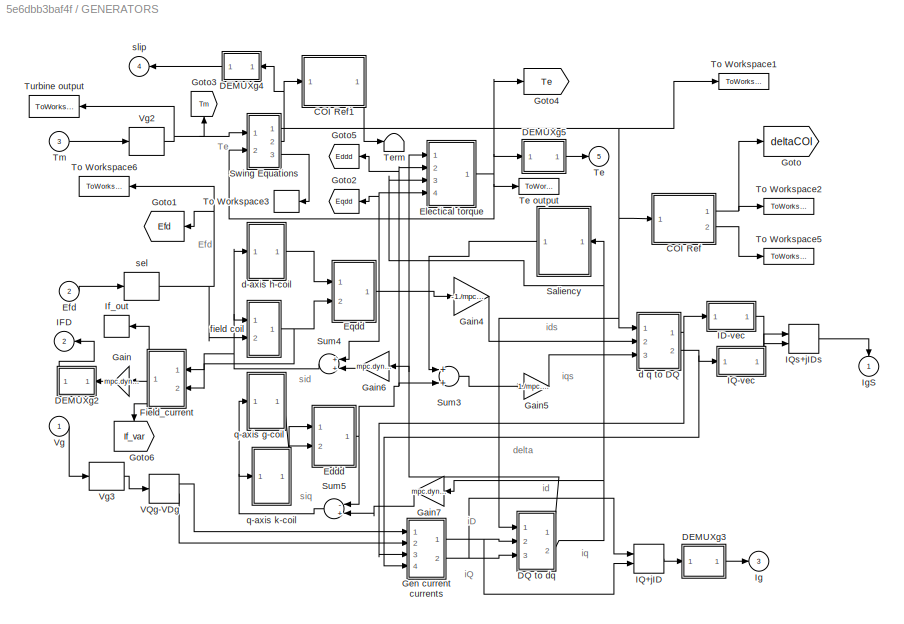
BLOCK [SubSystem] GENERATORS
  Ports = [3, 5]
  RequestExecContextInheritance = off
  Variant = off
BLOCK [SubSystem] GENERATORS/ field coil
  Ports = [2, 1]
  RequestExecContextInheritance = off
  Variant = off
BLOCK [Inport] GENERATORS/ field coil/Efd
  IconDisplay = Port number
  Port = 2
BLOCK [Gain] GENERATORS/ field coil/Gain
  Gain = 1./mpc.dynamicdata.gen_parameters.Tdd
BLOCK [Gain] GENERATORS/ field coil/Gain1
  Gain = mpc.dynamicdata.gen_parameters.xdd./(mpc.dynamicdata.gen_parameters.xd-mpc.dynamicdata.gen_parameters.xdd)
BLOCK [Integrator] GENERATORS/ field coil/Integrator2
  InitialCondition = mpc.dynamicdata.gen_parameters.sif0
  Ports = [1, 1]
BLOCK [Sum] GENERATORS/ field coil/Sum
  Inputs = +-
  Ports = [2, 1]
BLOCK [Sum] GENERATORS/ field coil/Sum1
  Ports = [2, 1]
BLOCK [Inport] GENERATORS/ field coil/sid
  IconDisplay = Port number
BLOCK [Outport] GENERATORS/ field coil/sif
  IconDisplay = Port number
  InitialOutput = 0
BLOCK [SubSystem] GENERATORS/COI Ref
  Ports = [1, 2]
  RequestExecContextInheritance = off
  Variant = off
BLOCK [Outport] GENERATORS/COI Ref/COI
  IconDisplay = Port number
  InitialOutput = 0
  Port = 2
BLOCK [Gain] GENERATORS/COI Ref/Gain6
  Gain = mpc.dynamicdata.gen_parameters.H/sum(mpc.dynamicdata.gen_parameters.H)
BLOCK [Sum] GENERATORS/COI Ref/Sum
  Inputs = +
  Ports = [1, 1]
BLOCK [Sum] GENERATORS/COI Ref/Sum1
  Inputs = +-
  Ports = [2, 1]
BLOCK [Inport] GENERATORS/COI Ref/delta
  IconDisplay = Port number
BLOCK [Outport] GENERATORS/COI Ref/delta_COI
  IconDisplay = Port number
  InitialOutput = 0
BLOCK [SubSystem] GENERATORS/COI Ref1
  Ports = [1, 1]
  RequestExecContextInheritance = off
  Variant = off
BLOCK [Gain] GENERATORS/COI Ref1/Gain6
  Gain = mpc.dynamicdata.gen_parameters.H/sum(mpc.dynamicdata.gen_parameters.H)
BLOCK [Sum] GENERATORS/COI Ref1/Sum
  Inputs = +
  Ports = [1, 1]
BLOCK [Sum] GENERATORS/COI Ref1/Sum1
  Inputs = +-
  Ports = [2, 1]
BLOCK [Inport] GENERATORS/COI Ref1/slip
  IconDisplay = Port number
BLOCK [Outport] GENERATORS/COI Ref1/slip_COI
  IconDisplay = Port number
  InitialOutput = 0
BLOCK [SubSystem] GENERATORS/DEMUXg2
  Ports = [1, 1]
  RequestExecContextInheritance = off
  Variant = off
BLOCK [Constant] GENERATORS/DEMUXg2/Dummy Zeros
  Value = zeros(1,mpc.dynamicdata.extraVariables.nb-mpc.dynamicdata.extraVariables.ngen)
BLOCK [Inport] GENERATORS/DEMUXg2/In1
  IconDisplay = Port number
BLOCK [Mux] GENERATORS/DEMUXg2/Mux1
  Inputs = [mpc.dynamicdata.extraVariables.nb-mpc.dynamicdata.extraVariables.ngen mpc.dynamicdata.extraVariables.ngen]
  Ports = [2, 1]
BLOCK [Outport] GENERATORS/DEMUXg2/Out1
  IconDisplay = Port number
BLOCK [Selector] GENERATORS/DEMUXg2/Selector4
  IndexOptions = Index vector (dialog)
  Indices = mpc.dynamicdata.gen_parameters.order_gen
  InputPortWidth = mpc.dynamicdata.extraVariables.nb
  OutputSizes = 1
  Ports = [1, 1]
BLOCK [SubSystem] GENERATORS/DEMUXg3
  Ports = [1, 1]
  RequestExecContextInheritance = off
  Variant = off
BLOCK [Constant] GENERATORS/DEMUXg3/Dummy Zeros
  Value = zeros(1,mpc.dynamicdata.extraVariables.nb-mpc.dynamicdata.extraVariables.ngen)
BLOCK [RealImagToComplex] GENERATORS/DEMUXg3/IQ+jID
  Ports = [2, 1]
BLOCK [Inport] GENERATORS/DEMUXg3/In1
  IconDisplay = Port number
BLOCK [Mux] GENERATORS/DEMUXg3/Mux1
  Inputs = [mpc.dynamicdata.extraVariables.nb-mpc.dynamicdata.extraVariables.ngen mpc.dynamicdata.extraVariables.ngen]
  Ports = [2, 1]
BLOCK [Outport] GENERATORS/DEMUXg3/Out1
  IconDisplay = Port number
BLOCK [Selector] GENERATORS/DEMUXg3/Selector4
  IndexOptions = Index vector (dialog)
  Indices = mpc.dynamicdata.gen_parameters.order_gen
  InputPortWidth = mpc.dynamicdata.extraVariables.nb
  OutputSizes = 1
  Ports = [1, 1]
BLOCK [SubSystem] GENERATORS/DEMUXg4
  Ports = [1, 1]
  RequestExecContextInheritance = off
  Variant = off
BLOCK [Constant] GENERATORS/DEMUXg4/Dummy Zeros
  Value = zeros(1,mpc.dynamicdata.extraVariables.nb-mpc.dynamicdata.extraVariables.ngen)
BLOCK [Inport] GENERATORS/DEMUXg4/In1
  IconDisplay = Port number
BLOCK [Mux] GENERATORS/DEMUXg4/Mux1
  Inputs = [mpc.dynamicdata.extraVariables.nb-mpc.dynamicdata.extraVariables.ngen mpc.dynamicdata.extraVariables.ngen]
  Ports = [2, 1]
BLOCK [Outport] GENERATORS/DEMUXg4/Out1
  IconDisplay = Port number
BLOCK [Selector] GENERATORS/DEMUXg4/Selector4
  IndexOptions = Index vector (dialog)
  Indices = mpc.dynamicdata.gen_parameters.order_gen
  InputPortWidth = mpc.dynamicdata.extraVariables.nb
  OutputSizes = 1
  Ports = [1, 1]
BLOCK [SubSystem] GENERATORS/DEMUXg5
  Ports = [1, 1]
  RequestExecContextInheritance = off
  Variant = off
BLOCK [Constant] GENERATORS/DEMUXg5/Dummy Zeros
  Value = zeros(1,mpc.dynamicdata.extraVariables.nb-mpc.dynamicdata.extraVariables.ngen)
BLOCK [Inport] GENERATORS/DEMUXg5/In1
  IconDisplay = Port number
BLOCK [Mux] GENERATORS/DEMUXg5/Mux1
  Inputs = [mpc.dynamicdata.extraVariables.nb-mpc.dynamicdata.extraVariables.ngen mpc.dynamicdata.extraVariables.ngen]
  Ports = [2, 1]
BLOCK [Outport] GENERATORS/DEMUXg5/Out1
  IconDisplay = Port number
BLOCK [Selector] GENERATORS/DEMUXg5/Selector4
  IndexOptions = Index vector (dialog)
  Indices = mpc.dynamicdata.gen_parameters.order_gen
  InputPortWidth = mpc.dynamicdata.extraVariables.nb
  OutputSizes = 1
  Ports = [1, 1]
BLOCK [SubSystem] GENERATORS/DQ to dq
  Ports = [3, 2]
  RequestExecContextInheritance = off
  Variant = off
BLOCK [Product] GENERATORS/DQ to dq/Product
  Ports = [2, 1]
BLOCK [Product] GENERATORS/DQ to dq/Product1
  Ports = [2, 1]
BLOCK [Product] GENERATORS/DQ to dq/Product2
  Ports = [2, 1]
BLOCK [Product] GENERATORS/DQ to dq/Product3
  Ports = [2, 1]
BLOCK [Sum] GENERATORS/DQ to dq/Sum1
  Inputs = +-
  Ports = [2, 1]
BLOCK [Sum] GENERATORS/DQ to dq/Sum2
  Ports = [2, 1]
BLOCK [Trigonometry] GENERATORS/DQ to dq/cos
  Operator = cos
  Ports = [1, 1]
BLOCK [Inport] GENERATORS/DQ to dq/delta
  IconDisplay = Port number
BLOCK [Inport] GENERATORS/DQ to dq/iD
  IconDisplay = Port number
  Port = 2
BLOCK [Inport] GENERATORS/DQ to dq/iQ
  IconDisplay = Port number
  Port = 3
BLOCK [Outport] GENERATORS/DQ to dq/id
  IconDisplay = Port number
  InitialOutput = 0
BLOCK [Outport] GENERATORS/DQ to dq/iq
  IconDisplay = Port number
  InitialOutput = 0
  Port = 2
BLOCK [Trigonometry] GENERATORS/DQ to dq/sin
  Ports = [1, 1]
BLOCK [SubSystem] GENERATORS/Eddd
  Ports = [2, 1]
  RequestExecContextInheritance = off
  Variant = off
BLOCK [Outport] GENERATORS/Eddd/Eddd
  IconDisplay = Port number
BLOCK [Gain] GENERATORS/Eddd/Gain2
  Gain = 1./mpc.dynamicdata.gen_parameters.xqd
BLOCK [Gain] GENERATORS/Eddd/Gain3
  Gain = mpc.dynamicdata.gen_parameters.xqdd./(mpc.dynamicdata.gen_parameters.xq.*mpc.dynamicdata.gen_parameters.xqd)
BLOCK [Gain] GENERATORS/Eddd/Gain4
  Gain = -1
BLOCK [Product] GENERATORS/Eddd/Prod1
  Ports = [2, 1]
BLOCK [Product] GENERATORS/Eddd/Prod2
  Ports = [2, 1]
BLOCK [Sum] GENERATORS/Eddd/Sum3
  Inputs = +-
  Ports = [2, 1]
BLOCK [Sum] GENERATORS/Eddd/Sum4
  Inputs = +-
  Ports = [2, 1]
BLOCK [Sum] GENERATORS/Eddd/Sum5
  Ports = [2, 1]
BLOCK [Inport] GENERATORS/Eddd/sig
  IconDisplay = Port number
  Port = 2
BLOCK [Inport] GENERATORS/Eddd/sik
  IconDisplay = Port number
BLOCK [Constant] GENERATORS/Eddd/xq
  Value = mpc.dynamicdata.gen_parameters.xq
BLOCK [Constant] GENERATORS/Eddd/xqd
  Value = mpc.dynamicdata.gen_parameters.xqd
BLOCK [Constant] GENERATORS/Eddd/xqdd
  Value = mpc.dynamicdata.gen_parameters.xqdd
BLOCK [Inport] GENERATORS/Efd
  IconDisplay = Port number
  Port = 2
BLOCK [SubSystem] GENERATORS/Electical torque
  Ports = [4, 1]
  RequestExecContextInheritance = off
  Variant = off
BLOCK [Inport] GENERATORS/Electical torque/Eddd
  IconDisplay = Port number
  Port = 2
BLOCK [Inport] GENERATORS/Electical torque/Eqdd
  IconDisplay = Port number
  Port = 4
BLOCK [Gain] GENERATORS/Electical torque/Gain
  Gain = (mpc.dynamicdata.gen_parameters.xddd-mpc.dynamicdata.gen_parameters.xqdd)
BLOCK [Product] GENERATORS/Electical torque/Product
  Ports = [2, 1]
BLOCK [Product] GENERATORS/Electical torque/Product1
  Ports = [2, 1]
BLOCK [Product] GENERATORS/Electical torque/Product2
  Ports = [2, 1]
BLOCK [Sum] GENERATORS/Electical torque/Sum
  Inputs = 3
  Ports = [3, 1]
BLOCK [Outport] GENERATORS/Electical torque/Te
  IconDisplay = Port number
  InitialOutput = 0
BLOCK [Inport] GENERATORS/Electical torque/id
  IconDisplay = Port number
BLOCK [Inport] GENERATORS/Electical torque/iq
  IconDisplay = Port number
  Port = 3
BLOCK [SubSystem] GENERATORS/Eqdd 
  Ports = [2, 1]
  RequestExecContextInheritance = off
  Variant = off
BLOCK [Outport] GENERATORS/Eqdd /Eqdd
  IconDisplay = Port number
BLOCK [Gain] GENERATORS/Eqdd /Gain2
  Gain = 1./mpc.dynamicdata.gen_parameters.xdd
BLOCK [Gain] GENERATORS/Eqdd /Gain3
  Gain = mpc.dynamicdata.gen_parameters.xddd./(mpc.dynamicdata.gen_parameters.xd.*mpc.dynamicdata.gen_parameters.xdd)
BLOCK [Product] GENERATORS/Eqdd /Prod1
  Ports = [2, 1]
BLOCK [Product] GENERATORS/Eqdd /Prod2
  Ports = [2, 1]
BLOCK [Sum] GENERATORS/Eqdd /Sum3
  Inputs = +-
  Ports = [2, 1]
BLOCK [Sum] GENERATORS/Eqdd /Sum4
  Inputs = +-
  Ports = [2, 1]
BLOCK [Sum] GENERATORS/Eqdd /Sum5
  Ports = [2, 1]
BLOCK [Inport] GENERATORS/Eqdd /sif
  IconDisplay = Port number
  Port = 2
BLOCK [Inport] GENERATORS/Eqdd /sih
  IconDisplay = Port number
BLOCK [Constant] GENERATORS/Eqdd /xd
  Value = mpc.dynamicdata.gen_parameters.xd
BLOCK [Constant] GENERATORS/Eqdd /xdd
  Value = mpc.dynamicdata.gen_parameters.xdd
BLOCK [Constant] GENERATORS/Eqdd /xddd
  Value = mpc.dynamicdata.gen_parameters.xddd
BLOCK [SubSystem] GENERATORS/Field_current
  Ports = [2, 1]
  RequestExecContextInheritance = off
  Variant = off
BLOCK [Gain] GENERATORS/Field_current/1//xfl
  Gain = 1./mpc.dynamicdata.gen_parameters.xfl
BLOCK [Sum] GENERATORS/Field_current/Sum3
  Inputs = -+
  Ports = [2, 1]
BLOCK [Outport] GENERATORS/Field_current/ifd
  IconDisplay = Port number
BLOCK [Inport] GENERATORS/Field_current/sid
  IconDisplay = Port number
BLOCK [Inport] GENERATORS/Field_current/sif
  IconDisplay = Port number
  Port = 2
BLOCK [Gain] GENERATORS/Gain
  Gain = mpc.dynamicdata.gen_parameters.xd
BLOCK [Gain] GENERATORS/Gain4
  Gain = -1./mpc.dynamicdata.gen_parameters.xddd
BLOCK [Gain] GENERATORS/Gain5
  Gain = 1./mpc.dynamicdata.gen_parameters.xddd
BLOCK [Gain] GENERATORS/Gain6
  Gain = mpc.dynamicdata.gen_parameters.xddd
BLOCK [Gain] GENERATORS/Gain7
  Gain = mpc.dynamicdata.gen_parameters.xqdd
BLOCK [SubSystem] GENERATORS/Gen current currents
  Ports = [4, 2]
  RequestExecContextInheritance = off
  Variant = off
BLOCK [Gain] GENERATORS/Gen current currents/Gain
  Gain = 1./mpc.dynamicdata.gen_parameters.xddd
BLOCK [Gain] GENERATORS/Gen current currents/Gain1
  Gain = 1./mpc.dynamicdata.gen_parameters.xddd
BLOCK [Sum] GENERATORS/Gen current currents/Sum
  Ports = [2, 1]
BLOCK [Sum] GENERATORS/Gen current currents/Sum2
  Inputs = +-
  Ports = [2, 1]
BLOCK [Inport] GENERATORS/Gen current currents/VD
  IconDisplay = Port number
  Port = 2
BLOCK [Inport] GENERATORS/Gen current currents/VQ
  IconDisplay = Port number
BLOCK [Outport] GENERATORS/Gen current currents/iD
  IconDisplay = Port number
  InitialOutput = 0
BLOCK [Inport] GENERATORS/Gen current currents/iDs
  IconDisplay = Port number
  Port = 3
BLOCK [Outport] GENERATORS/Gen current currents/iQ
  IconDisplay = Port number
  InitialOutput = 0
  Port = 2
BLOCK [Inport] GENERATORS/Gen current currents/iQs
  IconDisplay = Port number
  Port = 4
BLOCK [Goto] GENERATORS/Goto
  GotoTag = deltaCOI
  TagVisibility = global
BLOCK [Goto] GENERATORS/Goto1
  GotoTag = Efd
  TagVisibility = global
BLOCK [Goto] GENERATORS/Goto2
  GotoTag = Eqdd
  TagVisibility = global
BLOCK [Goto] GENERATORS/Goto3
  GotoTag = Tm
  TagVisibility = global
BLOCK [Goto] GENERATORS/Goto4
  GotoTag = Te
  TagVisibility = global
BLOCK [Goto] GENERATORS/Goto5
  GotoTag = Eddd
  TagVisibility = global
BLOCK [Goto] GENERATORS/Goto6
  GotoTag = If_var
  TagVisibility = global
BLOCK [SubSystem] GENERATORS/ID-vec
  Ports = [1, 1]
  RequestExecContextInheritance = off
  Variant = off
BLOCK [Constant] GENERATORS/ID-vec/Dummy Zeros
  Value = zeros(1,mpc.dynamicdata.extraVariables.nb-mpc.dynamicdata.extraVariables.ngen)
BLOCK [Inport] GENERATORS/ID-vec/In1
  IconDisplay = Port number
BLOCK [Mux] GENERATORS/ID-vec/Mux1
  Inputs = [mpc.dynamicdata.extraVariables.nb-mpc.dynamicdata.extraVariables.ngen; mpc.dynamicdata.extraVariables.ngen]
  Ports = [2, 1]
BLOCK [Outport] GENERATORS/ID-vec/Out1
  IconDisplay = Port number
BLOCK [Selector] GENERATORS/ID-vec/Selector4
  IndexOptions = Index vector (dialog)
  Indices = mpc.dynamicdata.gen_parameters.order_gen
  InputPortWidth = mpc.dynamicdata.extraVariables.nb
  OutputSizes = 1
  Ports = [1, 1]
BLOCK [Outport] GENERATORS/IFD
  IconDisplay = Port number
  InitialOutput = 0
  Port = 2
BLOCK [RealImagToComplex] GENERATORS/IQ+jID
  Ports = [2, 1]
BLOCK [SubSystem] GENERATORS/IQ-vec
  Ports = [1, 1]
  RequestExecContextInheritance = off
  Variant = off
BLOCK [Constant] GENERATORS/IQ-vec/Dummy Zeros
  Value = zeros(1,mpc.dynamicdata.extraVariables.nb-mpc.dynamicdata.extraVariables.ngen)
BLOCK [Inport] GENERATORS/IQ-vec/In1
  IconDisplay = Port number
BLOCK [Mux] GENERATORS/IQ-vec/Mux1
  Inputs = [mpc.dynamicdata.extraVariables.nb-mpc.dynamicdata.extraVariables.ngen; mpc.dynamicdata.extraVariables.ngen]
  Ports = [2, 1]
BLOCK [Outport] GENERATORS/IQ-vec/Out1
  IconDisplay = Port number
BLOCK [Selector] GENERATORS/IQ-vec/Selector4
  IndexOptions = Index vector (dialog)
  Indices = mpc.dynamicdata.gen_parameters.order_gen
  InputPortWidth = mpc.dynamicdata.extraVariables.nb
  OutputSizes = 1
  Ports = [1, 1]
BLOCK [RealImagToComplex] GENERATORS/IQs+jIDs
  Ports = [2, 1]
BLOCK [ToWorkspace] GENERATORS/If_out
  MaxDataPoints = inf
  Ports = [1]
  SampleTime = 0.01
  VariableName = If_var
BLOCK [Outport] GENERATORS/Ig
  IconDisplay = Port number
  InitialOutput = 0
  Port = 3
BLOCK [Outport] GENERATORS/IgS
  IconDisplay = Port number
  InitialOutput = 0
BLOCK [SubSystem] GENERATORS/Saliency
  Ports = [1, 1]
  RequestExecContextInheritance = off
  Variant = off
BLOCK [Outport] GENERATORS/Saliency/Edumdd
  IconDisplay = Port number
  InitialOutput = 0
BLOCK [Gain] GENERATORS/Saliency/Gain1
  Gain = 1./mpc.dynamicdata.gen_parameters.Tdummy
BLOCK [Gain] GENERATORS/Saliency/Gain6
  Gain = (mpc.dynamicdata.gen_parameters.xddd-mpc.dynamicdata.gen_parameters.xqdd)
BLOCK [Integrator] GENERATORS/Saliency/Integrator1
  InitialCondition = mpc.dynamicdata.gen_parameters.Edummydd0
  Ports = [1, 1]
BLOCK [Sum] GENERATORS/Saliency/Sum1
  Inputs = +-
  Ports = [2, 1]
BLOCK [Inport] GENERATORS/Saliency/iq
  IconDisplay = Port number
BLOCK [Sum] GENERATORS/Sum3
  Ports = [2, 1]
BLOCK [Sum] GENERATORS/Sum4
  Ports = [2, 1]
BLOCK [Sum] GENERATORS/Sum5
  Inputs = -+
  Ports = [2, 1]
BLOCK [SubSystem] GENERATORS/Swing Equations
  Ports = [2, 3]
  RequestExecContextInheritance = off
  ShowPortLabels = none
  Variant = off
BLOCK [Gain] GENERATORS/Swing Equations/Gain
  Gain = mpc.dynamicdata.extraVariables.wB
BLOCK [Gain] GENERATORS/Swing Equations/Gain1
  Gain = mpc.dynamicdata.gen_parameters.D
BLOCK [Gain] GENERATORS/Swing Equations/Gain2
  Gain = 1/2./mpc.dynamicdata.gen_parameters.H
BLOCK [Integrator] GENERATORS/Swing Equations/Integrator
  Ports = [1, 1]
BLOCK [Integrator] GENERATORS/Swing Equations/Integrator1
  InitialCondition = mpc.dynamicdata.gen_parameters.delta0
  Ports = [1, 1]
BLOCK [Sum] GENERATORS/Swing Equations/Sum1
  Inputs = +--
  Ports = [3, 1]
BLOCK [Inport] GENERATORS/Swing Equations/Te
  IconDisplay = Port number
  Port = 2
BLOCK [Inport] GENERATORS/Swing Equations/Tm
  IconDisplay = Port number
BLOCK [Outport] GENERATORS/Swing Equations/delta
  IconDisplay = Port number
  InitialOutput = 0
BLOCK [Outport] GENERATORS/Swing Equations/slip
  IconDisplay = Port number
  InitialOutput = 0
  Port = 2
BLOCK [Outport] GENERATORS/Swing Equations/w
  IconDisplay = Port number
  InitialOutput = 0
  Port = 3
BLOCK [Outport] GENERATORS/Te
  IconDisplay = Port number
  InitialOutput = 0
  Port = 5
BLOCK [ToWorkspace] GENERATORS/Te output
  MaxDataPoints = inf
  Ports = [1]
  SampleTime = 0.01
  VariableName = Te_out
BLOCK [Terminator] GENERATORS/Term
BLOCK [Inport] GENERATORS/Tm
  IconDisplay = Port number
  Port = 3
BLOCK [ToWorkspace] GENERATORS/To Workspace1
  MaxDataPoints = inf
  Ports = [1]
  SampleTime = 0.01
  VariableName = delta
BLOCK [ToWorkspace] GENERATORS/To Workspace2
  MaxDataPoints = inf
  Ports = [1]
  SampleTime = 0.01
  VariableName = delta_COI
BLOCK [ToWorkspace] GENERATORS/To Workspace3
  MaxDataPoints = inf
  Ports = [1]
  SampleTime = 0.01
  VariableName = w
BLOCK [ToWorkspace] GENERATORS/To Workspace5
  MaxDataPoints = inf
  Ports = [1]
  SampleTime = 0.01
  VariableName = COI
BLOCK [ToWorkspace] GENERATORS/To Workspace6
  MaxDataPoints = inf
  Ports = [1]
  SampleTime = 0.01
  VariableName = Efd_var
BLOCK [ToWorkspace] GENERATORS/Turbine output
  MaxDataPoints = inf
  Ports = [1]
  SampleTime = 0.01
  VariableName = Tm_out
BLOCK [ComplexToRealImag] GENERATORS/VQg-VDg
  Ports = [1, 2]
BLOCK [Inport] GENERATORS/Vg
  IconDisplay = Port number
BLOCK [Selector] GENERATORS/Vg2
  IndexOptions = Index vector (dialog)
  Indices = (mpc.dynamicdata.gen(:,1))
  InputPortWidth = mpc.dynamicdata.extraVariables.nb
  OutputSizes = 1
  Ports = [1, 1]
BLOCK [Selector] GENERATORS/Vg3
  IndexOptions = Index vector (dialog)
  Indices = (mpc.dynamicdata.gen(:,1))
  InputPortWidth = mpc.dynamicdata.extraVariables.nb
  OutputSizes = 1
  Ports = [1, 1]
BLOCK [SubSystem] GENERATORS/d q to DQ
  Ports = [3, 2]
  RequestExecContextInheritance = off
  Variant = off
BLOCK [Product] GENERATORS/d q to DQ/Product
  Ports = [2, 1]
BLOCK [Product] GENERATORS/d q to DQ/Product1
  Ports = [2, 1]
BLOCK [Product] GENERATORS/d q to DQ/Product2
  Ports = [2, 1]
BLOCK [Product] GENERATORS/d q to DQ/Product3
  Ports = [2, 1]
BLOCK [Sum] GENERATORS/d q to DQ/Sum1
  Ports = [2, 1]
BLOCK [Sum] GENERATORS/d q to DQ/Sum2
  Inputs = -+
  Ports = [2, 1]
BLOCK [Trigonometry] GENERATORS/d q to DQ/cos
  Operator = cos
  Ports = [1, 1]
BLOCK [Inport] GENERATORS/d q to DQ/delta
  IconDisplay = Port number
BLOCK [Outport] GENERATORS/d q to DQ/iDs
  IconDisplay = Port number
  InitialOutput = 0
BLOCK [Outport] GENERATORS/d q to DQ/iQs
  IconDisplay = Port number
  InitialOutput = 0
  Port = 2
BLOCK [Inport] GENERATORS/d q to DQ/ids
  IconDisplay = Port number
  Port = 2
BLOCK [Inport] GENERATORS/d q to DQ/iqs
  IconDisplay = Port number
  Port = 3
BLOCK [Trigonometry] GENERATORS/d q to DQ/sin
  Ports = [1, 1]
BLOCK [SubSystem] GENERATORS/d-axis h-coil
  Ports = [1, 1]
  RequestExecContextInheritance = off
  Variant = off
BLOCK [Gain] GENERATORS/d-axis h-coil/Gain
  Gain = 1./mpc.dynamicdata.gen_parameters.Tddd
BLOCK [Integrator] GENERATORS/d-axis h-coil/Integrator2
  InitialCondition = mpc.dynamicdata.gen_parameters.sih0
  Ports = [1, 1]
BLOCK [Sum] GENERATORS/d-axis h-coil/Sum
  Inputs = +-
  Ports = [2, 1]
BLOCK [Inport] GENERATORS/d-axis h-coil/sid
  IconDisplay = Port number
BLOCK [Outport] GENERATORS/d-axis h-coil/sih
  IconDisplay = Port number
  InitialOutput = 0
BLOCK [SubSystem] GENERATORS/q-axis g-coil
  Ports = [1, 1]
  RequestExecContextInheritance = off
  Variant = off
BLOCK [Gain] GENERATORS/q-axis g-coil/Gain
  Gain = 1./mpc.dynamicdata.gen_parameters.Tqd
BLOCK [Integrator] GENERATORS/q-axis g-coil/Integrator2
  InitialCondition = mpc.dynamicdata.gen_parameters.sig0
  Ports = [1, 1]
BLOCK [Sum] GENERATORS/q-axis g-coil/Sum
  Inputs = +-
  Ports = [2, 1]
BLOCK [Outport] GENERATORS/q-axis g-coil/sig
  IconDisplay = Port number
  InitialOutput = 0
BLOCK [Inport] GENERATORS/q-axis g-coil/siq
  IconDisplay = Port number
BLOCK [SubSystem] GENERATORS/q-axis k-coil
  Ports = [1, 1]
  RequestExecContextInheritance = off
  Variant = off
BLOCK [Gain] GENERATORS/q-axis k-coil/Gain
  Gain = 1./mpc.dynamicdata.gen_parameters.Tqdd
BLOCK [Integrator] GENERATORS/q-axis k-coil/Integrator2
  InitialCondition = mpc.dynamicdata.gen_parameters.sik0
  Ports = [1, 1]
BLOCK [Sum] GENERATORS/q-axis k-coil/Sum
  Inputs = +-
  Ports = [2, 1]
BLOCK [Outport] GENERATORS/q-axis k-coil/sik
  IconDisplay = Port number
  InitialOutput = 0
BLOCK [Inport] GENERATORS/q-axis k-coil/siq
  IconDisplay = Port number
BLOCK [Selector] GENERATORS/sel
  IndexOptions = Index vector (dialog)
  Indices = (mpc.dynamicdata.gen(:,1))
  InputPortWidth = mpc.dynamicdata.extraVariables.nb
  OutputSizes = 1
  Ports = [1, 1]
BLOCK [Outport] GENERATORS/slip
  IconDisplay = Port number
  InitialOutput = 0
  Port = 4
BLOCK [Goto] Goto5
  GotoTag = Vs
  TagVisibility = global
BLOCK [Ground] Ground
BLOCK [Mux] Mux
  DisplayOption = bar
  Inputs = [mpc.dynamicdata.extraVariables.nb 1]
  Ports = [2, 1]
BLOCK [MATLABFcn] NETWORK SOLUTION
  MATLABFcn = ( mpc.dynamicdata.Yform.Y  * (abs(u(mpc.dynamicdata.extraVariables.nb+1))<mpc.dynamicdata.Yform.Tfault)  + mpc.dynamicdata.Yform.Yf  * (abs(u(mpc.dynamicdata.extraVariables.nb+1))>=mpc.dynamicdata.Yform.Tfault & abs(u(mpc.dynamicdata.extraVariables.nb+1)) <(mpc.dynamicdata.Yform.Tfault+mpc.dynamicdata.Yform.Tclear) ) + mpc.dynamicdata.Yform.Ypf * (abs(u(mpc.dynamicdata.extraVariables.nb+1)) >= (mp...<+104ch>
  OutputDimensions = mpc.dynamicdata.extraVariables.nb
  OutputSignalType = complex
  Ports = [1, 1]
BLOCK [SubSystem] PSS
  Ports = [3, 1]
  RequestExecContextInheritance = off
  Variant = off
BLOCK [ToWorkspace] PSS output
  MaxDataPoints = inf
  Ports = [1]
  SampleTime = 0.01
  VariableName = Vs
BLOCK [Constant] PSS/Constant
  Value = mpc.dynamicdata.gen_pssParameters.PSS
BLOCK [SubSystem] PSS/PSS_slip_signal
  Ports = [1, 1]
  RequestExecContextInheritance = off
  Variant = off
BLOCK [SubSystem] PSS/PSS_slip_signal/Compensator
  Ports = [1, 1]
  RequestExecContextInheritance = off
  Variant = off
BLOCK [Gain] PSS/PSS_slip_signal/Compensator/Gain3
  Gain = 1./mpc.dynamicdata.gen_pssParameters.pss_slip_signalParameters.T2_slip
BLOCK [Gain] PSS/PSS_slip_signal/Compensator/Gain4
  Gain = mpc.dynamicdata.gen_pssParameters.pss_slip_signalParameters.T1_slip./mpc.dynamicdata.gen_pssParameters.pss_slip_signalParameters.T2_slip
BLOCK [Gain] PSS/PSS_slip_signal/Compensator/Gain5
  Gain = 1-mpc.dynamicdata.gen_pssParameters.pss_slip_signalParameters.T1_slip./mpc.dynamicdata.gen_pssParameters.pss_slip_signalParameters.T2_slip
BLOCK [Integrator] PSS/PSS_slip_signal/Compensator/Integrator4
  Ports = [1, 1]
BLOCK [Sum] PSS/PSS_slip_signal/Compensator/Sum3
  Ports = [2, 1]
BLOCK [Sum] PSS/PSS_slip_signal/Compensator/Sum4
  Inputs = +-
  Ports = [2, 1]
BLOCK [Outport] PSS/PSS_slip_signal/Compensator/Vs
  IconDisplay = Port number
BLOCK [Inport] PSS/PSS_slip_signal/Compensator/in
  IconDisplay = Port number
BLOCK [Constant] PSS/PSS_slip_signal/Constant
  Value = mpc.dynamicdata.gen_pssParameters.SL_slip_pss
BLOCK [SubSystem] PSS/PSS_slip_signal/DEMUXg2
  Ports = [1, 1]
  RequestExecContextInheritance = off
  Variant = off
BLOCK [Constant] PSS/PSS_slip_signal/DEMUXg2/Dummy Zeros
  Value = zeros(1,mpc.dynamicdata.extraVariables.nb-size(mpc.dynamicdata.slip_pss,1))
BLOCK [Inport] PSS/PSS_slip_signal/DEMUXg2/In1
  IconDisplay = Port number
BLOCK [Mux] PSS/PSS_slip_signal/DEMUXg2/Mux1
  Inputs = [mpc.dynamicdata.extraVariables.nb-size(mpc.dynamicdata.slip_pss,1)  size(mpc.dynamicdata.slip_pss,1)]
  Ports = [2, 1]
BLOCK [Outport] PSS/PSS_slip_signal/DEMUXg2/Out1
  IconDisplay = Port number
BLOCK [Selector] PSS/PSS_slip_signal/DEMUXg2/Selector4
  IndexOptions = Index vector (dialog)
  Indices = mpc.dynamicdata.gen_pssParameters.pss_slip_signalParameters.order_slip_pss
  InputPortWidth = mpc.dynamicdata.extraVariables.nb
  OutputSizes = 1
  Ports = [1, 1]
BLOCK [SubSystem] PSS/PSS_slip_signal/FILT(s)
  Ports = [1, 1]
  RequestExecContextInheritance = off
  Variant = off
BLOCK [Gain] PSS/PSS_slip_signal/FILT(s)/Gain
  Gain = 570
BLOCK [Gain] PSS/PSS_slip_signal/FILT(s)/Gain1
  Gain = 35
BLOCK [Gain] PSS/PSS_slip_signal/FILT(s)/Gain2
  Gain = 570
BLOCK [Inport] PSS/PSS_slip_signal/FILT(s)/In1
  IconDisplay = Port number
BLOCK [Integrator] PSS/PSS_slip_signal/FILT(s)/Integrator
  Ports = [1, 1]
BLOCK [Integrator] PSS/PSS_slip_signal/FILT(s)/Integrator1
  Ports = [1, 1]
BLOCK [Sum] PSS/PSS_slip_signal/FILT(s)/Sum
  Inputs = |+--
  Ports = [3, 1]
BLOCK [Outport] PSS/PSS_slip_signal/FILT(s)/Vs
  IconDisplay = Port number
BLOCK [Gain] PSS/PSS_slip_signal/Gain2
  Gain = mpc.dynamicdata.gen_pssParameters.pss_slip_signalParameters.Kslip_pss
BLOCK [Saturate] PSS/PSS_slip_signal/Limiter
  InputPortMap = u0
  LowerLimit = mpc.dynamicdata.gen_pssParameters.pss_slip_signalParameters.VS_slip_min
  Ports = [1, 1]
  UpperLimit = mpc.dynamicdata.gen_pssParameters.pss_slip_signalParameters.VS_slip_max
BLOCK [SubSystem] PSS/PSS_slip_signal/Select-PSS
  Ports = [2, 1]
  RequestExecContextInheritance = off
  ShowPortLabels = none
  Variant = off
BLOCK [Switch] PSS/PSS_slip_signal/Select-PSS/Switch
  Threshold = 1
BLOCK [Constant] PSS/PSS_slip_signal/Select-PSS/Vs=0
  Value = zeros(1,mpc.dynamicdata.extraVariables.nb)
BLOCK [Inport] PSS/PSS_slip_signal/Select-PSS/in_1
  IconDisplay = Port number
BLOCK [Inport] PSS/PSS_slip_signal/Select-PSS/in_2
  IconDisplay = Port number
  Port = 2
BLOCK [Outport] PSS/PSS_slip_signal/Select-PSS/out_1
  IconDisplay = Port number
  InitialOutput = 0
BLOCK [Selector] PSS/PSS_slip_signal/Selector1
  IndexOptions = Index vector (dialog)
  Indices = mpc.dynamicdata.slip_pss(:,1)
  InputPortWidth = mpc.dynamicdata.extraVariables.nb
  OutputSizes = 1
  Ports = [1, 1]
BLOCK [SubSystem] PSS/PSS_slip_signal/Wash_out
  Ports = [1, 1]
  RequestExecContextInheritance = off
  Variant = off
BLOCK [Gain] PSS/PSS_slip_signal/Wash_out/Gain3
  Gain = 1./mpc.dynamicdata.gen_pssParameters.pss_slip_signalParameters.Tw_slip
BLOCK [Gain] PSS/PSS_slip_signal/Wash_out/Gain4
  Gain = mpc.dynamicdata.gen_pssParameters.pss_slip_signalParameters.Tw_slip
BLOCK [Integrator] PSS/PSS_slip_signal/Wash_out/Integrator4
  Ports = [1, 1]
BLOCK [Sum] PSS/PSS_slip_signal/Wash_out/Sum3
  Inputs = +-
  Ports = [2, 1]
BLOCK [Inport] PSS/PSS_slip_signal/Wash_out/in
  IconDisplay = Port number
BLOCK [Outport] PSS/PSS_slip_signal/Wash_out/out
  IconDisplay = Port number
BLOCK [SubSystem] PSS/PSS_slip_signal/delay
  Ports = [1, 1]
  RequestExecContextInheritance = off
  Variant = off
BLOCK [Gain] PSS/PSS_slip_signal/delay/Gain
  Gain = 1./mpc.dynamicdata.gen_pssParameters.pss_slip_signalParameters.Td1_slip
BLOCK [Integrator] PSS/PSS_slip_signal/delay/Integrator2
  Ports = [1, 1]
BLOCK [Outport] PSS/PSS_slip_signal/delay/Out1
  IconDisplay = Port number
BLOCK [Sum] PSS/PSS_slip_signal/delay/Sum
  Inputs = +-
  Ports = [2, 1]
BLOCK [Inport] PSS/PSS_slip_signal/delay/Vin
  IconDisplay = Port number
BLOCK [Inport] PSS/PSS_slip_signal/slip
  IconDisplay = Port number
BLOCK [Outport] PSS/PSS_slip_signal/vs
  IconDisplay = Port number
BLOCK [SubSystem] PSS/Power_input_PSS
  Ports = [1, 1]
  RequestExecContextInheritance = off
  Variant = off
BLOCK [Constant] PSS/Power_input_PSS/Constant
  Value = mpc.dynamicdata.gen_pssParameters.SL_power_pss
BLOCK [SubSystem] PSS/Power_input_PSS/DEMUXg2
  Ports = [1, 1]
  RequestExecContextInheritance = off
  Variant = off
BLOCK [Constant] PSS/Power_input_PSS/DEMUXg2/Dummy Zeros
  Value = zeros(1,mpc.dynamicdata.extraVariables.nb-size(mpc.dynamicdata.power_pss,1))
BLOCK [Inport] PSS/Power_input_PSS/DEMUXg2/In1
  IconDisplay = Port number
BLOCK [Mux] PSS/Power_input_PSS/DEMUXg2/Mux1
  Inputs = [mpc.dynamicdata.extraVariables.nb-size(mpc.dynamicdata.power_pss,1)  size(mpc.dynamicdata.power_pss,1)]
  Ports = [2, 1]
BLOCK [Outport] PSS/Power_input_PSS/DEMUXg2/Out1
  IconDisplay = Port number
BLOCK [Selector] PSS/Power_input_PSS/DEMUXg2/Selector4
  IndexOptions = Index vector (dialog)
  Indices = mpc.dynamicdata.gen_pssParameters.pss_power_signalParameters.order_power_pss
  InputPortWidth = mpc.dynamicdata.extraVariables.nb
  OutputSizes = 1
  Ports = [1, 1]
BLOCK [Gain] PSS/Power_input_PSS/Gain2
  Gain = -mpc.dynamicdata.gen_pssParameters.pss_power_signalParameters.Kpower_pss
BLOCK [Saturate] PSS/Power_input_PSS/Limiter
  InputPortMap = u0
  LowerLimit = mpc.dynamicdata.gen_pssParameters.pss_power_signalParameters.VS_power_min
  Ports = [1, 1]
  UpperLimit = mpc.dynamicdata.gen_pssParameters.pss_power_signalParameters.VS_power_max
BLOCK [SubSystem] PSS/Power_input_PSS/Select-PSS
  Ports = [2, 1]
  RequestExecContextInheritance = off
  ShowPortLabels = none
  Variant = off
BLOCK [Switch] PSS/Power_input_PSS/Select-PSS/Switch
  Threshold = 1
BLOCK [Constant] PSS/Power_input_PSS/Select-PSS/Vs=0
  Value = zeros(1,mpc.dynamicdata.extraVariables.nb)
BLOCK [Inport] PSS/Power_input_PSS/Select-PSS/in_1
  IconDisplay = Port number
BLOCK [Inport] PSS/Power_input_PSS/Select-PSS/in_2
  IconDisplay = Port number
  Port = 2
BLOCK [Outport] PSS/Power_input_PSS/Select-PSS/out_1
  IconDisplay = Port number
  InitialOutput = 0
BLOCK [Selector] PSS/Power_input_PSS/Selector1
  IndexOptions = Index vector (dialog)
  Indices = mpc.dynamicdata.power_pss(:,1)
  InputPortWidth = mpc.dynamicdata.extraVariables.nb
  OutputSizes = 1
  Ports = [1, 1]
BLOCK [Inport] PSS/Power_input_PSS/Te
  IconDisplay = Port number
BLOCK [Outport] PSS/Power_input_PSS/Vs
  IconDisplay = Port number
BLOCK [SubSystem] PSS/Power_input_PSS/Wash_out
  Ports = [1, 1]
  RequestExecContextInheritance = off
  Variant = off
BLOCK [Gain] PSS/Power_input_PSS/Wash_out/Gain3
  Gain = 1./mpc.dynamicdata.gen_pssParameters.pss_power_signalParameters.Tw_power
BLOCK [Gain] PSS/Power_input_PSS/Wash_out/Gain4
  Gain = mpc.dynamicdata.gen_pssParameters.pss_power_signalParameters.Tw_power
BLOCK [Integrator] PSS/Power_input_PSS/Wash_out/Integrator4
  InitialCondition = mpc.dynamicdata.gen_pssParameters.pss_power_signalParameters.Tm0_power.*mpc.dynamicdata.gen_pssParameters.pss_power_signalParameters.Tw_power
  Ports = [1, 1]
BLOCK [Sum] PSS/Power_input_PSS/Wash_out/Sum3
  Inputs = +-
  Ports = [2, 1]
BLOCK [Inport] PSS/Power_input_PSS/Wash_out/in
  IconDisplay = Port number
BLOCK [Outport] PSS/Power_input_PSS/Wash_out/out
  IconDisplay = Port number
BLOCK [SubSystem] PSS/Power_input_PSS/delay1
  Ports = [1, 1]
  RequestExecContextInheritance = off
  Variant = off
BLOCK [Gain] PSS/Power_input_PSS/delay1/Gain
  Gain = 1./mpc.dynamicdata.gen_pssParameters.pss_power_signalParameters.Td1_power
BLOCK [Integrator] PSS/Power_input_PSS/delay1/Integrator2
  Ports = [1, 1]
BLOCK [Outport] PSS/Power_input_PSS/delay1/Out1
  IconDisplay = Port number
BLOCK [Sum] PSS/Power_input_PSS/delay1/Sum
  Inputs = +-
  Ports = [2, 1]
BLOCK [Inport] PSS/Power_input_PSS/delay1/Vin
  IconDisplay = Port number
BLOCK [SubSystem] PSS/Select-PSS
  Ports = [2, 1]
  RequestExecContextInheritance = off
  ShowPortLabels = none
  Variant = off
BLOCK [Switch] PSS/Select-PSS/Switch
  Threshold = 1
BLOCK [Constant] PSS/Select-PSS/Vs=0
  Value = zeros(1,mpc.dynamicdata.extraVariables.nb)
BLOCK [Inport] PSS/Select-PSS/in_1
  IconDisplay = Port number
BLOCK [Inport] PSS/Select-PSS/in_2
  IconDisplay = Port number
  Port = 2
BLOCK [Outport] PSS/Select-PSS/out_1
  IconDisplay = Port number
  InitialOutput = 0
BLOCK [Sum] PSS/Sum1
  Inputs = ++++
  Ports = [4, 1]
BLOCK [Inport] PSS/Te
  IconDisplay = Port number
  Port = 2
BLOCK [Outport] PSS/VS
  IconDisplay = Port number
BLOCK [Inport] PSS/Vt
  IconDisplay = Port number
  Port = 3
BLOCK [SubSystem] PSS/delP_Omega_PSS
  Ports = [2, 1]
  RequestExecContextInheritance = off
  Variant = off
BLOCK [SubSystem] PSS/delP_Omega_PSS/Compensator
  Ports = [1, 1]
  RequestExecContextInheritance = off
  Variant = off
BLOCK [Gain] PSS/delP_Omega_PSS/Compensator/Gain3
  Gain = 1./mpc.dynamicdata.gen_pssParameters.pss_delPw_signalParameters.T2_delPw
BLOCK [Gain] PSS/delP_Omega_PSS/Compensator/Gain4
  Gain = mpc.dynamicdata.gen_pssParameters.pss_delPw_signalParameters.T1_delPw./mpc.dynamicdata.gen_pssParameters.pss_delPw_signalParameters.T2_delPw
BLOCK [Gain] PSS/delP_Omega_PSS/Compensator/Gain5
  Gain = 1-mpc.dynamicdata.gen_pssParameters.pss_delPw_signalParameters.T1_delPw./mpc.dynamicdata.gen_pssParameters.pss_delPw_signalParameters.T2_delPw
BLOCK [Integrator] PSS/delP_Omega_PSS/Compensator/Integrator4
  Ports = [1, 1]
BLOCK [Sum] PSS/delP_Omega_PSS/Compensator/Sum3
  Ports = [2, 1]
BLOCK [Sum] PSS/delP_Omega_PSS/Compensator/Sum4
  Inputs = +-
  Ports = [2, 1]
BLOCK [Outport] PSS/delP_Omega_PSS/Compensator/Vs
  IconDisplay = Port number
BLOCK [Inport] PSS/delP_Omega_PSS/Compensator/in
  IconDisplay = Port number
BLOCK [Constant] PSS/delP_Omega_PSS/Constant
  Value = mpc.dynamicdata.gen_pssParameters.SL_delPw_pss
BLOCK [SubSystem] PSS/delP_Omega_PSS/DEMUXg2
  Ports = [1, 1]
  RequestExecContextInheritance = off
  Variant = off
BLOCK [Constant] PSS/delP_Omega_PSS/DEMUXg2/Dummy Zeros
  Value = zeros(1,mpc.dynamicdata.extraVariables.nb-size(mpc.dynamicdata.delPw_pss,1))
BLOCK [Inport] PSS/delP_Omega_PSS/DEMUXg2/In1
  IconDisplay = Port number
BLOCK [Mux] PSS/delP_Omega_PSS/DEMUXg2/Mux1
  Inputs = [mpc.dynamicdata.extraVariables.nb-size(mpc.dynamicdata.delPw_pss,1)  size(mpc.dynamicdata.delPw_pss,1)]
  Ports = [2, 1]
BLOCK [Outport] PSS/delP_Omega_PSS/DEMUXg2/Out1
  IconDisplay = Port number
BLOCK [Selector] PSS/delP_Omega_PSS/DEMUXg2/Selector4
  IndexOptions = Index vector (dialog)
  Indices = mpc.dynamicdata.gen_pssParameters.pss_delPw_signalParameters.order_delPw_pss
  InputPortWidth = mpc.dynamicdata.extraVariables.nb
  OutputSizes = 1
  Ports = [1, 1]
BLOCK [SubSystem] PSS/delP_Omega_PSS/Filtering M=2 and N=4
  Ports = [1, 1]
  RequestExecContextInheritance = off
  Variant = off
BLOCK [Inport] PSS/delP_Omega_PSS/Filtering M=2 and N=4/In1
  IconDisplay = Port number
BLOCK [Outport] PSS/delP_Omega_PSS/Filtering M=2 and N=4/Out1
  IconDisplay = Port number
BLOCK [SubSystem] PSS/delP_Omega_PSS/Filtering M=2 and N=4/Subsystem
  Ports = [1, 1]
  RequestExecContextInheritance = off
  Variant = off
BLOCK [SubSystem] PSS/delP_Omega_PSS/Filtering M=2 and N=4/Subsystem/Compensator
  Ports = [1, 1]
  RequestExecContextInheritance = off
  Variant = off
BLOCK [Gain] PSS/delP_Omega_PSS/Filtering M=2 and N=4/Subsystem/Compensator/Gain3
  Gain = 1./mpc.dynamicdata.gen_pssParameters.pss_delPw_signalParameters.T9_delPw
BLOCK [Gain] PSS/delP_Omega_PSS/Filtering M=2 and N=4/Subsystem/Compensator/Gain4
  Gain = mpc.dynamicdata.gen_pssParameters.pss_delPw_signalParameters.T8_delPw./mpc.dynamicdata.gen_pssParameters.pss_delPw_signalParameters.T9_delPw
BLOCK [Gain] PSS/delP_Omega_PSS/Filtering M=2 and N=4/Subsystem/Compensator/Gain5
  Gain = 1-mpc.dynamicdata.gen_pssParameters.pss_delPw_signalParameters.T8_delPw./mpc.dynamicdata.gen_pssParameters.pss_delPw_signalParameters.T9_delPw
BLOCK [Integrator] PSS/delP_Omega_PSS/Filtering M=2 and N=4/Subsystem/Compensator/Integrator4
  Ports = [1, 1]
BLOCK [Sum] PSS/delP_Omega_PSS/Filtering M=2 and N=4/Subsystem/Compensator/Sum3
  Ports = [2, 1]
BLOCK [Sum] PSS/delP_Omega_PSS/Filtering M=2 and N=4/Subsystem/Compensator/Sum4
  Inputs = +-
  Ports = [2, 1]
BLOCK [Outport] PSS/delP_Omega_PSS/Filtering M=2 and N=4/Subsystem/Compensator/Vs
  IconDisplay = Port number
BLOCK [Inport] PSS/delP_Omega_PSS/Filtering M=2 and N=4/Subsystem/Compensator/in
  IconDisplay = Port number
BLOCK [Inport] PSS/delP_Omega_PSS/Filtering M=2 and N=4/Subsystem/In1
  IconDisplay = Port number
BLOCK [Outport] PSS/delP_Omega_PSS/Filtering M=2 and N=4/Subsystem/Out2
  IconDisplay = Port number
BLOCK [SubSystem] PSS/delP_Omega_PSS/Filtering M=2 and N=4/Subsystem/delay1
  Ports = [1, 1]
  RequestExecContextInheritance = off
  Variant = off
BLOCK [Gain] PSS/delP_Omega_PSS/Filtering M=2 and N=4/Subsystem/delay1/Gain
  Gain = 1./mpc.dynamicdata.gen_pssParameters.pss_delPw_signalParameters.T9_delPw
BLOCK [Integrator] PSS/delP_Omega_PSS/Filtering M=2 and N=4/Subsystem/delay1/Integrator2
  Ports = [1, 1]
BLOCK [Outport] PSS/delP_Omega_PSS/Filtering M=2 and N=4/Subsystem/delay1/Out1
  IconDisplay = Port number
BLOCK [Sum] PSS/delP_Omega_PSS/Filtering M=2 and N=4/Subsystem/delay1/Sum
  Inputs = +-
  Ports = [2, 1]
BLOCK [Inport] PSS/delP_Omega_PSS/Filtering M=2 and N=4/Subsystem/delay1/Vin
  IconDisplay = Port number
BLOCK [SubSystem] PSS/delP_Omega_PSS/Filtering M=2 and N=4/Subsystem1
  Ports = [1, 1]
  RequestExecContextInheritance = off
  Variant = off
BLOCK [SubSystem] PSS/delP_Omega_PSS/Filtering M=2 and N=4/Subsystem1/Compensator
  Ports = [1, 1]
  RequestExecContextInheritance = off
  Variant = off
BLOCK [Gain] PSS/delP_Omega_PSS/Filtering M=2 and N=4/Subsystem1/Compensator/Gain3
  Gain = 1./mpc.dynamicdata.gen_pssParameters.pss_delPw_signalParameters.T9_delPw
BLOCK [Gain] PSS/delP_Omega_PSS/Filtering M=2 and N=4/Subsystem1/Compensator/Gain4
  Gain = mpc.dynamicdata.gen_pssParameters.pss_delPw_signalParameters.T8_delPw./mpc.dynamicdata.gen_pssParameters.pss_delPw_signalParameters.T9_delPw
BLOCK [Gain] PSS/delP_Omega_PSS/Filtering M=2 and N=4/Subsystem1/Compensator/Gain5
  Gain = 1-mpc.dynamicdata.gen_pssParameters.pss_delPw_signalParameters.T8_delPw./mpc.dynamicdata.gen_pssParameters.pss_delPw_signalParameters.T9_delPw
BLOCK [Integrator] PSS/delP_Omega_PSS/Filtering M=2 and N=4/Subsystem1/Compensator/Integrator4
  Ports = [1, 1]
BLOCK [Sum] PSS/delP_Omega_PSS/Filtering M=2 and N=4/Subsystem1/Compensator/Sum3
  Ports = [2, 1]
BLOCK [Sum] PSS/delP_Omega_PSS/Filtering M=2 and N=4/Subsystem1/Compensator/Sum4
  Inputs = +-
  Ports = [2, 1]
BLOCK [Outport] PSS/delP_Omega_PSS/Filtering M=2 and N=4/Subsystem1/Compensator/Vs
  IconDisplay = Port number
BLOCK [Inport] PSS/delP_Omega_PSS/Filtering M=2 and N=4/Subsystem1/Compensator/in
  IconDisplay = Port number
BLOCK [Inport] PSS/delP_Omega_PSS/Filtering M=2 and N=4/Subsystem1/In1
  IconDisplay = Port number
BLOCK [Outport] PSS/delP_Omega_PSS/Filtering M=2 and N=4/Subsystem1/Out2
  IconDisplay = Port number
BLOCK [SubSystem] PSS/delP_Omega_PSS/Filtering M=2 and N=4/Subsystem1/delay1
  Ports = [1, 1]
  RequestExecContextInheritance = off
  Variant = off
BLOCK [Gain] PSS/delP_Omega_PSS/Filtering M=2 and N=4/Subsystem1/delay1/Gain
  Gain = 1./mpc.dynamicdata.gen_pssParameters.pss_delPw_signalParameters.T9_delPw
BLOCK [Integrator] PSS/delP_Omega_PSS/Filtering M=2 and N=4/Subsystem1/delay1/Integrator2
  Ports = [1, 1]
BLOCK [Outport] PSS/delP_Omega_PSS/Filtering M=2 and N=4/Subsystem1/delay1/Out1
  IconDisplay = Port number
BLOCK [Sum] PSS/delP_Omega_PSS/Filtering M=2 and N=4/Subsystem1/delay1/Sum
  Inputs = +-
  Ports = [2, 1]
BLOCK [Inport] PSS/delP_Omega_PSS/Filtering M=2 and N=4/Subsystem1/delay1/Vin
  IconDisplay = Port number
BLOCK [SubSystem] PSS/delP_Omega_PSS/Filtering M=2 and N=4/Subsystem2
  Ports = [1, 1]
  RequestExecContextInheritance = off
  Variant = off
BLOCK [SubSystem] PSS/delP_Omega_PSS/Filtering M=2 and N=4/Subsystem2/Compensator
  Ports = [1, 1]
  RequestExecContextInheritance = off
  Variant = off
BLOCK [Gain] PSS/delP_Omega_PSS/Filtering M=2 and N=4/Subsystem2/Compensator/Gain3
  Gain = 1./mpc.dynamicdata.gen_pssParameters.pss_delPw_signalParameters.T9_delPw
BLOCK [Gain] PSS/delP_Omega_PSS/Filtering M=2 and N=4/Subsystem2/Compensator/Gain4
  Gain = mpc.dynamicdata.gen_pssParameters.pss_delPw_signalParameters.T8_delPw./mpc.dynamicdata.gen_pssParameters.pss_delPw_signalParameters.T9_delPw
BLOCK [Gain] PSS/delP_Omega_PSS/Filtering M=2 and N=4/Subsystem2/Compensator/Gain5
  Gain = 1-mpc.dynamicdata.gen_pssParameters.pss_delPw_signalParameters.T8_delPw./mpc.dynamicdata.gen_pssParameters.pss_delPw_signalParameters.T9_delPw
BLOCK [Integrator] PSS/delP_Omega_PSS/Filtering M=2 and N=4/Subsystem2/Compensator/Integrator4
  Ports = [1, 1]
BLOCK [Sum] PSS/delP_Omega_PSS/Filtering M=2 and N=4/Subsystem2/Compensator/Sum3
  Ports = [2, 1]
BLOCK [Sum] PSS/delP_Omega_PSS/Filtering M=2 and N=4/Subsystem2/Compensator/Sum4
  Inputs = +-
  Ports = [2, 1]
BLOCK [Outport] PSS/delP_Omega_PSS/Filtering M=2 and N=4/Subsystem2/Compensator/Vs
  IconDisplay = Port number
BLOCK [Inport] PSS/delP_Omega_PSS/Filtering M=2 and N=4/Subsystem2/Compensator/in
  IconDisplay = Port number
BLOCK [Inport] PSS/delP_Omega_PSS/Filtering M=2 and N=4/Subsystem2/In1
  IconDisplay = Port number
BLOCK [Outport] PSS/delP_Omega_PSS/Filtering M=2 and N=4/Subsystem2/Out2
  IconDisplay = Port number
BLOCK [SubSystem] PSS/delP_Omega_PSS/Filtering M=2 and N=4/Subsystem2/delay1
  Ports = [1, 1]
  RequestExecContextInheritance = off
  Variant = off
BLOCK [Gain] PSS/delP_Omega_PSS/Filtering M=2 and N=4/Subsystem2/delay1/Gain
  Gain = 1./mpc.dynamicdata.gen_pssParameters.pss_delPw_signalParameters.T9_delPw
BLOCK [Integrator] PSS/delP_Omega_PSS/Filtering M=2 and N=4/Subsystem2/delay1/Integrator2
  Ports = [1, 1]
BLOCK [Outport] PSS/delP_Omega_PSS/Filtering M=2 and N=4/Subsystem2/delay1/Out1
  IconDisplay = Port number
BLOCK [Sum] PSS/delP_Omega_PSS/Filtering M=2 and N=4/Subsystem2/delay1/Sum
  Inputs = +-
  Ports = [2, 1]
BLOCK [Inport] PSS/delP_Omega_PSS/Filtering M=2 and N=4/Subsystem2/delay1/Vin
  IconDisplay = Port number
BLOCK [SubSystem] PSS/delP_Omega_PSS/Filtering M=2 and N=4/Subsystem3
  Ports = [1, 1]
  RequestExecContextInheritance = off
  Variant = off
BLOCK [SubSystem] PSS/delP_Omega_PSS/Filtering M=2 and N=4/Subsystem3/Compensator
  Ports = [1, 1]
  RequestExecContextInheritance = off
  Variant = off
BLOCK [Gain] PSS/delP_Omega_PSS/Filtering M=2 and N=4/Subsystem3/Compensator/Gain3
  Gain = 1./mpc.dynamicdata.gen_pssParameters.pss_delPw_signalParameters.T9_delPw
BLOCK [Gain] PSS/delP_Omega_PSS/Filtering M=2 and N=4/Subsystem3/Compensator/Gain4
  Gain = mpc.dynamicdata.gen_pssParameters.pss_delPw_signalParameters.T8_delPw./mpc.dynamicdata.gen_pssParameters.pss_delPw_signalParameters.T9_delPw
BLOCK [Gain] PSS/delP_Omega_PSS/Filtering M=2 and N=4/Subsystem3/Compensator/Gain5
  Gain = 1-mpc.dynamicdata.gen_pssParameters.pss_delPw_signalParameters.T8_delPw./mpc.dynamicdata.gen_pssParameters.pss_delPw_signalParameters.T9_delPw
BLOCK [Integrator] PSS/delP_Omega_PSS/Filtering M=2 and N=4/Subsystem3/Compensator/Integrator4
  Ports = [1, 1]
BLOCK [Sum] PSS/delP_Omega_PSS/Filtering M=2 and N=4/Subsystem3/Compensator/Sum3
  Ports = [2, 1]
BLOCK [Sum] PSS/delP_Omega_PSS/Filtering M=2 and N=4/Subsystem3/Compensator/Sum4
  Inputs = +-
  Ports = [2, 1]
BLOCK [Outport] PSS/delP_Omega_PSS/Filtering M=2 and N=4/Subsystem3/Compensator/Vs
  IconDisplay = Port number
BLOCK [Inport] PSS/delP_Omega_PSS/Filtering M=2 and N=4/Subsystem3/Compensator/in
  IconDisplay = Port number
BLOCK [Inport] PSS/delP_Omega_PSS/Filtering M=2 and N=4/Subsystem3/In1
  IconDisplay = Port number
BLOCK [Outport] PSS/delP_Omega_PSS/Filtering M=2 and N=4/Subsystem3/Out2
  IconDisplay = Port number
BLOCK [SubSystem] PSS/delP_Omega_PSS/Filtering M=2 and N=4/Subsystem3/delay1
  Ports = [1, 1]
  RequestExecContextInheritance = off
  Variant = off
BLOCK [Gain] PSS/delP_Omega_PSS/Filtering M=2 and N=4/Subsystem3/delay1/Gain
  Gain = 1./mpc.dynamicdata.gen_pssParameters.pss_delPw_signalParameters.T9_delPw
BLOCK [Integrator] PSS/delP_Omega_PSS/Filtering M=2 and N=4/Subsystem3/delay1/Integrator2
  Ports = [1, 1]
BLOCK [Outport] PSS/delP_Omega_PSS/Filtering M=2 and N=4/Subsystem3/delay1/Out1
  IconDisplay = Port number
BLOCK [Sum] PSS/delP_Omega_PSS/Filtering M=2 and N=4/Subsystem3/delay1/Sum
  Inputs = +-
  Ports = [2, 1]
BLOCK [Inport] PSS/delP_Omega_PSS/Filtering M=2 and N=4/Subsystem3/delay1/Vin
  IconDisplay = Port number
BLOCK [Gain] PSS/delP_Omega_PSS/Gain1
  Gain = mpc.dynamicdata.gen_pssParameters.pss_delPw_signalParameters.Ks3_delPw
BLOCK [Gain] PSS/delP_Omega_PSS/Gain2
  Gain = mpc.dynamicdata.gen_pssParameters.pss_delPw_signalParameters.Ks1_delPw
BLOCK [SubSystem] PSS/delP_Omega_PSS/Integrator
  Ports = [1, 1]
  RequestExecContextInheritance = off
  Variant = off
BLOCK [Gain] PSS/delP_Omega_PSS/Integrator/Gain
  Gain = 1./mpc.dynamicdata.gen_pssParameters.pss_delPw_signalParameters.T7_delPw
BLOCK [Gain] PSS/delP_Omega_PSS/Integrator/Gain1
  Gain = mpc.dynamicdata.gen_pssParameters.pss_delPw_signalParameters.T7_delPw./(2*mpc.dynamicdata.gen_pssParameters.pss_delPw_signalParameters.H_delPw)
BLOCK [Integrator] PSS/delP_Omega_PSS/Integrator/Integrator2
  Ports = [1, 1]
BLOCK [Outport] PSS/delP_Omega_PSS/Integrator/Out1
  IconDisplay = Port number
BLOCK [Sum] PSS/delP_Omega_PSS/Integrator/Sum
  Inputs = +-
  Ports = [2, 1]
BLOCK [Inport] PSS/delP_Omega_PSS/Integrator/Vin
  IconDisplay = Port number
BLOCK [Saturate] PSS/delP_Omega_PSS/Limiter
  InputPortMap = u0
  LowerLimit = mpc.dynamicdata.gen_pssParameters.pss_delPw_signalParameters.VS_delPw_min
  Ports = [1, 1]
  UpperLimit = mpc.dynamicdata.gen_pssParameters.pss_delPw_signalParameters.VS_delPw_max
BLOCK [SubSystem] PSS/delP_Omega_PSS/Select-PSS
  Ports = [2, 1]
  RequestExecContextInheritance = off
  ShowPortLabels = none
  Variant = off
BLOCK [Switch] PSS/delP_Omega_PSS/Select-PSS/Switch
  Threshold = 1
BLOCK [Constant] PSS/delP_Omega_PSS/Select-PSS/Vs=0
  Value = zeros(1,mpc.dynamicdata.extraVariables.nb)
BLOCK [Inport] PSS/delP_Omega_PSS/Select-PSS/in_1
  IconDisplay = Port number
BLOCK [Inport] PSS/delP_Omega_PSS/Select-PSS/in_2
  IconDisplay = Port number
  Port = 2
BLOCK [Outport] PSS/delP_Omega_PSS/Select-PSS/out_1
  IconDisplay = Port number
  InitialOutput = 0
BLOCK [Selector] PSS/delP_Omega_PSS/Selector1
  IndexOptions = Index vector (dialog)
  Indices = mpc.dynamicdata.delPw_pss(:,1)
  InputPortWidth = mpc.dynamicdata.extraVariables.nb
  OutputSizes = 1
  Ports = [1, 1]
BLOCK [Selector] PSS/delP_Omega_PSS/Selector2
  IndexOptions = Index vector (dialog)
  Indices = mpc.dynamicdata.delPw_pss(:,1)
  InputPortWidth = mpc.dynamicdata.extraVariables.nb
  OutputSizes = 1
  Ports = [1, 1]
BLOCK [Sum] PSS/delP_Omega_PSS/Sum
  Ports = [2, 1]
BLOCK [Sum] PSS/delP_Omega_PSS/Sum1
  Inputs = +-
  Ports = [2, 1]
BLOCK [Inport] PSS/delP_Omega_PSS/Te
  IconDisplay = Port number
  Port = 2
BLOCK [Outport] PSS/delP_Omega_PSS/Vs
  IconDisplay = Port number
BLOCK [SubSystem] PSS/delP_Omega_PSS/Wash_out_1
  Ports = [1, 1]
  RequestExecContextInheritance = off
  Variant = off
BLOCK [Gain] PSS/delP_Omega_PSS/Wash_out_1/Gain3
  Gain = 1./mpc.dynamicdata.gen_pssParameters.pss_delPw_signalParameters.Tw1_delPw
BLOCK [Gain] PSS/delP_Omega_PSS/Wash_out_1/Gain4
  Gain = mpc.dynamicdata.gen_pssParameters.pss_delPw_signalParameters.Tw1_delPw
BLOCK [Integrator] PSS/delP_Omega_PSS/Wash_out_1/Integrator4
  Ports = [1, 1]
BLOCK [Sum] PSS/delP_Omega_PSS/Wash_out_1/Sum3
  Inputs = +-
  Ports = [2, 1]
BLOCK [Inport] PSS/delP_Omega_PSS/Wash_out_1/in
  IconDisplay = Port number
BLOCK [Outport] PSS/delP_Omega_PSS/Wash_out_1/out
  IconDisplay = Port number
BLOCK [SubSystem] PSS/delP_Omega_PSS/Wash_out_2
  Ports = [1, 1]
  RequestExecContextInheritance = off
  Variant = off
BLOCK [Gain] PSS/delP_Omega_PSS/Wash_out_2/Gain3
  Gain = 1./mpc.dynamicdata.gen_pssParameters.pss_delPw_signalParameters.Tw2_delPw
BLOCK [Gain] PSS/delP_Omega_PSS/Wash_out_2/Gain4
  Gain = mpc.dynamicdata.gen_pssParameters.pss_delPw_signalParameters.Tw2_delPw
BLOCK [Integrator] PSS/delP_Omega_PSS/Wash_out_2/Integrator4
  Ports = [1, 1]
BLOCK [Sum] PSS/delP_Omega_PSS/Wash_out_2/Sum3
  Inputs = +-
  Ports = [2, 1]
BLOCK [Inport] PSS/delP_Omega_PSS/Wash_out_2/in
  IconDisplay = Port number
BLOCK [Outport] PSS/delP_Omega_PSS/Wash_out_2/out
  IconDisplay = Port number
BLOCK [SubSystem] PSS/delP_Omega_PSS/Wash_out_3
  Ports = [1, 1]
  RequestExecContextInheritance = off
  Variant = off
BLOCK [Gain] PSS/delP_Omega_PSS/Wash_out_3/Gain3
  Gain = 1./mpc.dynamicdata.gen_pssParameters.pss_delPw_signalParameters.Tw3_delPw
BLOCK [Gain] PSS/delP_Omega_PSS/Wash_out_3/Gain4
  Gain = mpc.dynamicdata.gen_pssParameters.pss_delPw_signalParameters.Tw3_delPw
BLOCK [Integrator] PSS/delP_Omega_PSS/Wash_out_3/Integrator4
  InitialCondition = mpc.dynamicdata.gen_pssParameters.pss_delPw_signalParameters.Tm0_delPw.*mpc.dynamicdata.gen_pssParameters.pss_delPw_signalParameters.Tw3_delPw
  Ports = [1, 1]
BLOCK [Sum] PSS/delP_Omega_PSS/Wash_out_3/Sum3
  Inputs = +-
  Ports = [2, 1]
BLOCK [Inport] PSS/delP_Omega_PSS/Wash_out_3/in
  IconDisplay = Port number
BLOCK [Outport] PSS/delP_Omega_PSS/Wash_out_3/out
  IconDisplay = Port number
BLOCK [SubSystem] PSS/delP_Omega_PSS/Wash_out_4
  Ports = [1, 1]
  RequestExecContextInheritance = off
  Variant = off
BLOCK [Gain] PSS/delP_Omega_PSS/Wash_out_4/Gain3
  Gain = 1./mpc.dynamicdata.gen_pssParameters.pss_delPw_signalParameters.Tw4_delPw
BLOCK [Gain] PSS/delP_Omega_PSS/Wash_out_4/Gain4
  Gain = mpc.dynamicdata.gen_pssParameters.pss_delPw_signalParameters.Tw4_delPw
BLOCK [Integrator] PSS/delP_Omega_PSS/Wash_out_4/Integrator4
  Ports = [1, 1]
BLOCK [Sum] PSS/delP_Omega_PSS/Wash_out_4/Sum3
  Inputs = +-
  Ports = [2, 1]
BLOCK [Inport] PSS/delP_Omega_PSS/Wash_out_4/in
  IconDisplay = Port number
BLOCK [Outport] PSS/delP_Omega_PSS/Wash_out_4/out
  IconDisplay = Port number
BLOCK [SubSystem] PSS/delP_Omega_PSS/delay
  Ports = [1, 1]
  RequestExecContextInheritance = off
  Variant = off
BLOCK [Gain] PSS/delP_Omega_PSS/delay/Gain
  Gain = 1./mpc.dynamicdata.gen_pssParameters.pss_delPw_signalParameters.T6_delPw
BLOCK [Integrator] PSS/delP_Omega_PSS/delay/Integrator2
  Ports = [1, 1]
BLOCK [Outport] PSS/delP_Omega_PSS/delay/Out1
  IconDisplay = Port number
BLOCK [Sum] PSS/delP_Omega_PSS/delay/Sum
  Inputs = +-
  Ports = [2, 1]
BLOCK [Inport] PSS/delP_Omega_PSS/delay/Vin
  IconDisplay = Port number
BLOCK [Inport] PSS/delP_Omega_PSS/slip
  IconDisplay = Port number
BLOCK [SubSystem] PSS/frequency_input_PSS 
  Ports = [1, 1]
  RequestExecContextInheritance = off
  Variant = off
BLOCK [SubSystem] PSS/frequency_input_PSS /Compensator
  Ports = [1, 1]
  RequestExecContextInheritance = off
  Variant = off
BLOCK [Gain] PSS/frequency_input_PSS /Compensator/Gain3
  Gain = 1./mpc.dynamicdata.gen_pssParameters.pss_freq_signalParameters.T2_freq
BLOCK [Gain] PSS/frequency_input_PSS /Compensator/Gain4
  Gain = mpc.dynamicdata.gen_pssParameters.pss_freq_signalParameters.T1_freq./mpc.dynamicdata.gen_pssParameters.pss_freq_signalParameters.T2_freq
BLOCK [Gain] PSS/frequency_input_PSS /Compensator/Gain5
  Gain = 1-mpc.dynamicdata.gen_pssParameters.pss_freq_signalParameters.T1_freq./mpc.dynamicdata.gen_pssParameters.pss_freq_signalParameters.T2_freq
BLOCK [Integrator] PSS/frequency_input_PSS /Compensator/Integrator4
  Ports = [1, 1]
BLOCK [Sum] PSS/frequency_input_PSS /Compensator/Sum3
  Ports = [2, 1]
BLOCK [Sum] PSS/frequency_input_PSS /Compensator/Sum4
  Inputs = +-
  Ports = [2, 1]
BLOCK [Outport] PSS/frequency_input_PSS /Compensator/Vs
  IconDisplay = Port number
BLOCK [Inport] PSS/frequency_input_PSS /Compensator/in
  IconDisplay = Port number
BLOCK [Constant] PSS/frequency_input_PSS /Constant
  Value = mpc.dynamicdata.gen_pssParameters.SL_freq_pss
BLOCK [SubSystem] PSS/frequency_input_PSS /DEMUXg2
  Ports = [1, 1]
  RequestExecContextInheritance = off
  Variant = off
BLOCK [Constant] PSS/frequency_input_PSS /DEMUXg2/Dummy Zeros
  Value = zeros(1,mpc.dynamicdata.extraVariables.nb-size(mpc.dynamicdata.freq_pss,1))
BLOCK [Inport] PSS/frequency_input_PSS /DEMUXg2/In1
  IconDisplay = Port number
BLOCK [Mux] PSS/frequency_input_PSS /DEMUXg2/Mux1
  Inputs = [mpc.dynamicdata.extraVariables.nb-size(mpc.dynamicdata.freq_pss,1)  size(mpc.dynamicdata.freq_pss,1)]
  Ports = [2, 1]
BLOCK [Outport] PSS/frequency_input_PSS /DEMUXg2/Out1
  IconDisplay = Port number
BLOCK [Selector] PSS/frequency_input_PSS /DEMUXg2/Selector4
  IndexOptions = Index vector (dialog)
  Indices = mpc.dynamicdata.gen_pssParameters.pss_freq_signalParameters.order_freq_pss
  InputPortWidth = mpc.dynamicdata.extraVariables.nb
  OutputSizes = 1
  Ports = [1, 1]
BLOCK [SubSystem] PSS/frequency_input_PSS /FILT(s)
  Ports = [1, 1]
  RequestExecContextInheritance = off
  Variant = off
BLOCK [Gain] PSS/frequency_input_PSS /FILT(s)/Gain
  Gain = 570
BLOCK [Gain] PSS/frequency_input_PSS /FILT(s)/Gain1
  Gain = 35
BLOCK [Gain] PSS/frequency_input_PSS /FILT(s)/Gain2
  Gain = 570
BLOCK [Inport] PSS/frequency_input_PSS /FILT(s)/In1
  IconDisplay = Port number
BLOCK [Integrator] PSS/frequency_input_PSS /FILT(s)/Integrator
  Ports = [1, 1]
BLOCK [Integrator] PSS/frequency_input_PSS /FILT(s)/Integrator1
  Ports = [1, 1]
BLOCK [Sum] PSS/frequency_input_PSS /FILT(s)/Sum
  Inputs = |+--
  Ports = [3, 1]
BLOCK [Outport] PSS/frequency_input_PSS /FILT(s)/Vs
  IconDisplay = Port number
BLOCK [Gain] PSS/frequency_input_PSS /Gain2
  Gain = mpc.dynamicdata.gen_pssParameters.pss_freq_signalParameters.Kfreq_pss
BLOCK [Saturate] PSS/frequency_input_PSS /Limiter
  InputPortMap = u0
  LowerLimit = mpc.dynamicdata.gen_pssParameters.pss_freq_signalParameters.VS_freq_min
  Ports = [1, 1]
  UpperLimit = mpc.dynamicdata.gen_pssParameters.pss_freq_signalParameters.VS_freq_max
BLOCK [SubSystem] PSS/frequency_input_PSS /Select-PSS
  Ports = [2, 1]
  RequestExecContextInheritance = off
  ShowPortLabels = none
  Variant = off
BLOCK [Switch] PSS/frequency_input_PSS /Select-PSS/Switch
  Threshold = 1
BLOCK [Constant] PSS/frequency_input_PSS /Select-PSS/Vs=0
  Value = zeros(1,mpc.dynamicdata.extraVariables.nb)
BLOCK [Inport] PSS/frequency_input_PSS /Select-PSS/in_1
  IconDisplay = Port number
BLOCK [Inport] PSS/frequency_input_PSS /Select-PSS/in_2
  IconDisplay = Port number
  Port = 2
BLOCK [Outport] PSS/frequency_input_PSS /Select-PSS/out_1
  IconDisplay = Port number
  InitialOutput = 0
BLOCK [Selector] PSS/frequency_input_PSS /Selector1
  IndexOptions = Index vector (dialog)
  Indices = mpc.dynamicdata.freq_pss(:,1)
  InputPortWidth = mpc.dynamicdata.extraVariables.nb
  OutputSizes = 1
  Ports = [1, 1]
BLOCK [Inport] PSS/frequency_input_PSS /V
  IconDisplay = Port number
BLOCK [Outport] PSS/frequency_input_PSS /Vs
  IconDisplay = Port number
BLOCK [SubSystem] PSS/frequency_input_PSS /Wash_out
  Ports = [1, 1]
  RequestExecContextInheritance = off
  Variant = off
BLOCK [Gain] PSS/frequency_input_PSS /Wash_out/Gain3
  Gain = 1./mpc.dynamicdata.gen_pssParameters.pss_freq_signalParameters.Tw_freq
BLOCK [Gain] PSS/frequency_input_PSS /Wash_out/Gain4
  Gain = mpc.dynamicdata.gen_pssParameters.pss_freq_signalParameters.Tw_freq
BLOCK [Integrator] PSS/frequency_input_PSS /Wash_out/Integrator4
  Ports = [1, 1]
BLOCK [Sum] PSS/frequency_input_PSS /Wash_out/Sum3
  Inputs = +-
  Ports = [2, 1]
BLOCK [Inport] PSS/frequency_input_PSS /Wash_out/in
  IconDisplay = Port number
BLOCK [Outport] PSS/frequency_input_PSS /Wash_out/out
  IconDisplay = Port number
BLOCK [SubSystem] PSS/frequency_input_PSS /delay
  Ports = [1, 1]
  RequestExecContextInheritance = off
  Variant = off
BLOCK [Gain] PSS/frequency_input_PSS /delay/Gain
  Gain = 1./mpc.dynamicdata.gen_pssParameters.pss_freq_signalParameters.Td1_freq
BLOCK [Integrator] PSS/frequency_input_PSS /delay/Integrator2
  Ports = [1, 1]
BLOCK [Outport] PSS/frequency_input_PSS /delay/Out1
  IconDisplay = Port number
BLOCK [Sum] PSS/frequency_input_PSS /delay/Sum
  Inputs = +-
  Ports = [2, 1]
BLOCK [Inport] PSS/frequency_input_PSS /delay/Vin
  IconDisplay = Port number
BLOCK [SubSystem] PSS/frequency_input_PSS /delta_Freq
  Ports = [1, 1]
  RequestExecContextInheritance = off
  Variant = off
BLOCK [Gain] PSS/frequency_input_PSS /delta_Freq/1//fo
  Gain = 1/(mpc.dynamicdata.extraVariables.wB/2/pi)
BLOCK [Scope] PSS/frequency_input_PSS /delta_Freq/Bus_freq
  DataFormat = StructureWithTime
  Decimation = 1
  Grid = on
  LimitDataPoints = off
  MaxDataPoints = 5000
  Ports = [1]
  SampleInput = off
  SampleTime = -1
  SaveName = ScopeData
  SaveToWorkspace = off
  ShowLegends = off
  TickLabels = OneTimeTick
  TimeRange = 3
  YMax = 0.5
  YMin = -0.4
  ZoomMode = on
BLOCK [ComplexToMagnitudeAngle] PSS/frequency_input_PSS /delta_Freq/Complex to Magnitude-Angle
  Ports = [1, 2]
BLOCK [ComplexToRealImag] PSS/frequency_input_PSS /delta_Freq/Complex to Real-Imag
  Ports = [1, 2]
BLOCK [Inport] PSS/frequency_input_PSS /delta_Freq/In1
  IconDisplay = Port number
BLOCK [Math] PSS/frequency_input_PSS /delta_Freq/Math Function
  Operator = square
  Ports = [1, 1]
BLOCK [Outport] PSS/frequency_input_PSS /delta_Freq/Out1
  IconDisplay = Port number
BLOCK [Constant] PSS/frequency_input_PSS /delta_Freq/Pref
  Value = 0.00001
BLOCK [Product] PSS/frequency_input_PSS /delta_Freq/Product
  Ports = [2, 1]
BLOCK [Product] PSS/frequency_input_PSS /delta_Freq/Product1
  Ports = [2, 1]
BLOCK [Product] PSS/frequency_input_PSS /delta_Freq/Product2
  Inputs = */
  Ports = [2, 1]
BLOCK [Sum] PSS/frequency_input_PSS /delta_Freq/Sum
  Inputs = +-
  Ports = [2, 1]
BLOCK [Sum] PSS/frequency_input_PSS /delta_Freq/Sum2
  Ports = [2, 1]
BLOCK [Terminator] PSS/frequency_input_PSS /delta_Freq/T 1
BLOCK [SubSystem] PSS/frequency_input_PSS /delta_Freq/derivative1
  Ports = [1, 1]
  RequestExecContextInheritance = off
  Variant = off
BLOCK [SubSystem] PSS/frequency_input_PSS /delta_Freq/derivative1/1//1+s*Tf
  Ports = [1, 1]
  RequestExecContextInheritance = off
  Variant = off
BLOCK [Gain] PSS/frequency_input_PSS /delta_Freq/derivative1/1//1+s*Tf/1//Tf
  Gain = [1./0.02]
BLOCK [Inport] PSS/frequency_input_PSS /delta_Freq/derivative1/1//1+s*Tf/In1
  IconDisplay = Port number
BLOCK [Integrator] PSS/frequency_input_PSS /delta_Freq/derivative1/1//1+s*Tf/In2
  InitialCondition = imag(mpc.dynamicdata.Vpre(mpc.dynamicdata.freq_pss(:,1)))
  Ports = [1, 1]
BLOCK [Outport] PSS/frequency_input_PSS /delta_Freq/derivative1/1//1+s*Tf/Out1
  IconDisplay = Port number
BLOCK [Sum] PSS/frequency_input_PSS /delta_Freq/derivative1/1//1+s*Tf/Sum3
  Inputs = +-
  Ports = [2, 1]
BLOCK [Gain] PSS/frequency_input_PSS /delta_Freq/derivative1/1//Tf
  Gain = [1./0.02]/2/pi
BLOCK [Inport] PSS/frequency_input_PSS /delta_Freq/derivative1/In3
  IconDisplay = Port number
BLOCK [Outport] PSS/frequency_input_PSS /delta_Freq/derivative1/Out2
  IconDisplay = Port number
BLOCK [Sum] PSS/frequency_input_PSS /delta_Freq/derivative1/Sum6
  Inputs = +-
  Ports = [2, 1]
BLOCK [SubSystem] PSS/frequency_input_PSS /delta_Freq/derivative2
  Ports = [1, 1]
  RequestExecContextInheritance = off
  Variant = off
BLOCK [SubSystem] PSS/frequency_input_PSS /delta_Freq/derivative2/1//1+s*Tf
  Ports = [1, 1]
  RequestExecContextInheritance = off
  Variant = off
BLOCK [Gain] PSS/frequency_input_PSS /delta_Freq/derivative2/1//1+s*Tf/1//Tf
  Gain = [1./0.02]
BLOCK [Inport] PSS/frequency_input_PSS /delta_Freq/derivative2/1//1+s*Tf/In1
  IconDisplay = Port number
BLOCK [Integrator] PSS/frequency_input_PSS /delta_Freq/derivative2/1//1+s*Tf/In2
  InitialCondition = real(mpc.dynamicdata.Vpre(mpc.dynamicdata.freq_pss(:,1)))
  Ports = [1, 1]
BLOCK [Outport] PSS/frequency_input_PSS /delta_Freq/derivative2/1//1+s*Tf/Out1
  IconDisplay = Port number
BLOCK [Sum] PSS/frequency_input_PSS /delta_Freq/derivative2/1//1+s*Tf/Sum3
  Inputs = +-
  Ports = [2, 1]
BLOCK [Gain] PSS/frequency_input_PSS /delta_Freq/derivative2/1//Tf
  Gain = [1./0.02]/2/pi
BLOCK [Inport] PSS/frequency_input_PSS /delta_Freq/derivative2/In3
  IconDisplay = Port number
BLOCK [Outport] PSS/frequency_input_PSS /delta_Freq/derivative2/Out2
  IconDisplay = Port number
BLOCK [Sum] PSS/frequency_input_PSS /delta_Freq/derivative2/Sum6
  Inputs = +-
  Ports = [2, 1]
BLOCK [Inport] PSS/slip
  IconDisplay = Port number
BLOCK [RealImagToComplex] Real-Imag to Complex
  Ports = [2, 1]
BLOCK [SubSystem] STATIC LOADS
  Ports = [1, 1]
  RequestExecContextInheritance = off
  ShowPortLabels = none
  Variant = off
BLOCK [Constant] STATIC LOADS/Constant
  Value = 0.0001
BLOCK [SubSystem] STATIC LOADS/DEMUXl
  Ports = [1, 1]
  RequestExecContextInheritance = off
  Variant = off
BLOCK [Constant] STATIC LOADS/DEMUXl/Dummy Zeros
  Value = zeros(1,mpc.dynamicdata.extraVariables.nb-mpc.dynamicdata.extraVariables.nload)
BLOCK [Inport] STATIC LOADS/DEMUXl/In1
  IconDisplay = Port number
BLOCK [Mux] STATIC LOADS/DEMUXl/Mux1
  Inputs = [mpc.dynamicdata.extraVariables.nb-mpc.dynamicdata.extraVariables.nload mpc.dynamicdata.extraVariables.nload]
  Ports = [2, 1]
BLOCK [Outport] STATIC LOADS/DEMUXl/Out1
  IconDisplay = Port number
BLOCK [Selector] STATIC LOADS/DEMUXl/Selector4
  IndexOptions = Index vector (dialog)
  Indices = mpc.dynamicdata.load.load_zip_model.order_load
  InputPortWidth = mpc.dynamicdata.extraVariables.nb
  OutputSizes = 1
  Ports = [1, 1]
BLOCK [SubSystem] STATIC LOADS/DEMUXl1
  Ports = [1, 1]
  RequestExecContextInheritance = off
  Variant = off
BLOCK [Constant] STATIC LOADS/DEMUXl1/Dummy Zeros
  Value = zeros(1,mpc.dynamicdata.extraVariables.nb-mpc.dynamicdata.extraVariables.nload)
BLOCK [Inport] STATIC LOADS/DEMUXl1/In1
  IconDisplay = Port number
BLOCK [Mux] STATIC LOADS/DEMUXl1/Mux1
  Inputs = [mpc.dynamicdata.extraVariables.nb-mpc.dynamicdata.extraVariables.nload mpc.dynamicdata.extraVariables.nload]
  Ports = [2, 1]
BLOCK [Outport] STATIC LOADS/DEMUXl1/Out1
  IconDisplay = Port number
BLOCK [Selector] STATIC LOADS/DEMUXl1/Selector4
  IndexOptions = Index vector (dialog)
  Indices = mpc.dynamicdata.load.load_zip_model.order_load
  InputPortWidth = mpc.dynamicdata.extraVariables.nb
  OutputSizes = 1
  Ports = [1, 1]
BLOCK [Gain] STATIC LOADS/Gain
  Gain = 1./mpc.dynamicdata.load.load_zip_model.TL
BLOCK [Gain] STATIC LOADS/Gain1
  Gain = 1./mpc.dynamicdata.load.load_zip_model.TL
BLOCK [Outport] STATIC LOADS/IL
  IconDisplay = Port number
  InitialOutput = 0
BLOCK [RealImagToComplex] STATIC LOADS/IQl+j*IDL
  Ports = [2, 1]
BLOCK [Integrator] STATIC LOADS/Integrator
  Ports = [1, 1]
BLOCK [Integrator] STATIC LOADS/Integrator1
  Ports = [1, 1]
BLOCK [Math] STATIC LOADS/Math Function
  Operator = reciprocal
  Ports = [1, 1]
BLOCK [Product] STATIC LOADS/Product
  Ports = [2, 1]
BLOCK [Product] STATIC LOADS/Product1
  Ports = [2, 1]
BLOCK [Product] STATIC LOADS/Product2
  Ports = [2, 1]
BLOCK [Product] STATIC LOADS/Product3
  Ports = [2, 1]
BLOCK [Sum] STATIC LOADS/Sum
  Inputs = +-
  Ports = [2, 1]
BLOCK [Sum] STATIC LOADS/Sum1
  Inputs = +-
  Ports = [2, 1]
BLOCK [Sum] STATIC LOADS/Sum2
  Ports = [2, 1]
BLOCK [Inport] STATIC LOADS/VL
  IconDisplay = Port number
BLOCK [Selector] STATIC LOADS/VL1
  IndexOptions = Index vector (dialog)
  Indices = (mpc.dynamicdata.extraVariables.ld(:,1))
  InputPortWidth = mpc.dynamicdata.extraVariables.nb
  OutputSizes = 1
  Ports = [1, 1]
BLOCK [ComplexToRealImag] STATIC LOADS/VQL+j*VDL
  Ports = [1, 2]
BLOCK [SubSystem] STATIC LOADS/d q to DQ
  Ports = [4, 2]
  RequestExecContextInheritance = off
  ShowPortLabels = none
  Variant = off
BLOCK [Product] STATIC LOADS/d q to DQ/Product
  Ports = [2, 1]
BLOCK [Product] STATIC LOADS/d q to DQ/Product1
  Ports = [2, 1]
BLOCK [Product] STATIC LOADS/d q to DQ/Product2
  Ports = [2, 1]
BLOCK [Product] STATIC LOADS/d q to DQ/Product3
  Ports = [2, 1]
BLOCK [Sum] STATIC LOADS/d q to DQ/Sum1
  Inputs = -+
  Ports = [2, 1]
BLOCK [Sum] STATIC LOADS/d q to DQ/Sum2
  Ports = [2, 1]
BLOCK [Inport] STATIC LOADS/d q to DQ/in_1
  IconDisplay = Port number
BLOCK [Inport] STATIC LOADS/d q to DQ/in_2
  IconDisplay = Port number
  Port = 3
BLOCK [Inport] STATIC LOADS/d q to DQ/in_3
  IconDisplay = Port number
  Port = 4
BLOCK [Inport] STATIC LOADS/d q to DQ/in_4
  IconDisplay = Port number
  Port = 2
BLOCK [Outport] STATIC LOADS/d q to DQ/out_1
  IconDisplay = Port number
  InitialOutput = 0
BLOCK [Outport] STATIC LOADS/d q to DQ/out_2
  IconDisplay = Port number
  InitialOutput = 0
  Port = 2
BLOCK [SubSystem] STATIC LOADS/delta_Freq
  Ports = [1, 1]
  RequestExecContextInheritance = off
  Variant = off
BLOCK [Scope] STATIC LOADS/delta_Freq/Bus_freq
  DataFormat = StructureWithTime
  Decimation = 1
  Grid = on
  LimitDataPoints = off
  MaxDataPoints = 5000
  Ports = [1]
  SampleInput = off
  SampleTime = -1
  SaveName = ScopeData
  SaveToWorkspace = off
  ShowLegends = off
  TickLabels = OneTimeTick
  TimeRange = 3
  YMax = 0.5
  YMin = -0.4
  ZoomMode = on
BLOCK [ComplexToMagnitudeAngle] STATIC LOADS/delta_Freq/Complex to Magnitude-Angle
  Ports = [1, 2]
BLOCK [ComplexToRealImag] STATIC LOADS/delta_Freq/Complex to Real-Imag
  Ports = [1, 2]
BLOCK [Inport] STATIC LOADS/delta_Freq/In1
  IconDisplay = Port number
BLOCK [Math] STATIC LOADS/delta_Freq/Math Function
  Operator = square
  Ports = [1, 1]
BLOCK [Outport] STATIC LOADS/delta_Freq/Out1
  IconDisplay = Port number
BLOCK [Constant] STATIC LOADS/delta_Freq/Pref
  Value = 0.00001
BLOCK [Product] STATIC LOADS/delta_Freq/Product
  Ports = [2, 1]
BLOCK [Product] STATIC LOADS/delta_Freq/Product1
  Ports = [2, 1]
BLOCK [Product] STATIC LOADS/delta_Freq/Product2
  Inputs = */
  Ports = [2, 1]
BLOCK [Sum] STATIC LOADS/delta_Freq/Sum
  Inputs = +-
  Ports = [2, 1]
BLOCK [Sum] STATIC LOADS/delta_Freq/Sum2
  Ports = [2, 1]
BLOCK [Terminator] STATIC LOADS/delta_Freq/T 1
BLOCK [SubSystem] STATIC LOADS/delta_Freq/derivative1
  Ports = [1, 1]
  RequestExecContextInheritance = off
  Variant = off
BLOCK [SubSystem] STATIC LOADS/delta_Freq/derivative1/1//1+s*Tf
  Ports = [1, 1]
  RequestExecContextInheritance = off
  Variant = off
BLOCK [Gain] STATIC LOADS/delta_Freq/derivative1/1//1+s*Tf/1//Tf
  Gain = [1./0.02]
BLOCK [Inport] STATIC LOADS/delta_Freq/derivative1/1//1+s*Tf/In1
  IconDisplay = Port number
BLOCK [Integrator] STATIC LOADS/delta_Freq/derivative1/1//1+s*Tf/In2
  InitialCondition = imag(mpc.dynamicdata.Vpre(mpc.dynamicdata.extraVariables.ld(:,1)))
  Ports = [1, 1]
BLOCK [Outport] STATIC LOADS/delta_Freq/derivative1/1//1+s*Tf/Out1
  IconDisplay = Port number
BLOCK [Sum] STATIC LOADS/delta_Freq/derivative1/1//1+s*Tf/Sum3
  Inputs = +-
  Ports = [2, 1]
BLOCK [Gain] STATIC LOADS/delta_Freq/derivative1/1//Tf
  Gain = [1./0.02]/2/pi
BLOCK [Inport] STATIC LOADS/delta_Freq/derivative1/In3
  IconDisplay = Port number
BLOCK [Outport] STATIC LOADS/delta_Freq/derivative1/Out2
  IconDisplay = Port number
BLOCK [Sum] STATIC LOADS/delta_Freq/derivative1/Sum6
  Inputs = +-
  Ports = [2, 1]
BLOCK [SubSystem] STATIC LOADS/delta_Freq/derivative2
  Ports = [1, 1]
  RequestExecContextInheritance = off
  Variant = off
BLOCK [SubSystem] STATIC LOADS/delta_Freq/derivative2/1//1+s*Tf
  Ports = [1, 1]
  RequestExecContextInheritance = off
  Variant = off
BLOCK [Gain] STATIC LOADS/delta_Freq/derivative2/1//1+s*Tf/1//Tf
  Gain = [1./0.02]
BLOCK [Inport] STATIC LOADS/delta_Freq/derivative2/1//1+s*Tf/In1
  IconDisplay = Port number
BLOCK [Integrator] STATIC LOADS/delta_Freq/derivative2/1//1+s*Tf/In2
  InitialCondition = real(mpc.dynamicdata.Vpre(mpc.dynamicdata.extraVariables.ld(:,1)))
  Ports = [1, 1]
BLOCK [Outport] STATIC LOADS/delta_Freq/derivative2/1//1+s*Tf/Out1
  IconDisplay = Port number
BLOCK [Sum] STATIC LOADS/delta_Freq/derivative2/1//1+s*Tf/Sum3
  Inputs = +-
  Ports = [2, 1]
BLOCK [Gain] STATIC LOADS/delta_Freq/derivative2/1//Tf
  Gain = [1./0.02]/2/pi
BLOCK [Inport] STATIC LOADS/delta_Freq/derivative2/In3
  IconDisplay = Port number
BLOCK [Outport] STATIC LOADS/delta_Freq/derivative2/Out2
  IconDisplay = Port number
BLOCK [Sum] STATIC LOADS/delta_Freq/derivative2/Sum6
  Inputs = +-
  Ports = [2, 1]
BLOCK [SubSystem] STATIC LOADS/power (reactive)
  Ports = [2, 1]
  RequestExecContextInheritance = off
  ShowPortLabels = none
  Variant = off
BLOCK [Gain] STATIC LOADS/power (reactive)/1//fo
  Gain = 1/(mpc.dynamicdata.extraVariables.wB/2/pi)
BLOCK [Constant] STATIC LOADS/power (reactive)/Constant
  Value = mpc.dynamicdata.load.load_zip_model.kcpr
BLOCK [Gain] STATIC LOADS/power (reactive)/Gain3
  Gain = mpc.dynamicdata.load.load_zip_model.kccr
BLOCK [Gain] STATIC LOADS/power (reactive)/Gain4
  Gain = mpc.dynamicdata.load.load_zip_model.kcir
BLOCK [Gain] STATIC LOADS/power (reactive)/Gain5
  Gain = mpc.dynamicdata.Yform.kcir1
BLOCK [Math] STATIC LOADS/power (reactive)/Math Function
  Operator = square
  Ports = [1, 1]
BLOCK [Product] STATIC LOADS/power (reactive)/Product
  Inputs = ***
  Ports = [3, 1]
BLOCK [Sum] STATIC LOADS/power (reactive)/Sum2
  Inputs = +++
  Ports = [3, 1]
BLOCK [Sum] STATIC LOADS/power (reactive)/Sum3
  Inputs = -+-
  Ports = [3, 1]
BLOCK [Inport] STATIC LOADS/power (reactive)/del freq
  IconDisplay = Port number
BLOCK [Inport] STATIC LOADS/power (reactive)/in_1
  IconDisplay = Port number
  Port = 2
BLOCK [Constant] STATIC LOADS/power (reactive)/kqf
  Value = mpc.dynamicdata.Yform.kqf
BLOCK [Outport] STATIC LOADS/power (reactive)/out_1
  IconDisplay = Port number
  InitialOutput = 0
BLOCK [SubSystem] STATIC LOADS/power (real)
  Ports = [2, 1]
  RequestExecContextInheritance = off
  ShowPortLabels = none
  Variant = off
BLOCK [Gain] STATIC LOADS/power (real)/1//fo
  Gain = 1/(mpc.dynamicdata.extraVariables.wB/2/pi)
BLOCK [Constant] STATIC LOADS/power (real)/Constant
  Value = mpc.dynamicdata.load.load_zip_model.kcp
BLOCK [Gain] STATIC LOADS/power (real)/Gain3
  Gain = mpc.dynamicdata.load.load_zip_model.kcc
BLOCK [Gain] STATIC LOADS/power (real)/Gain4
  Gain = mpc.dynamicdata.load.load_zip_model.kci
BLOCK [Gain] STATIC LOADS/power (real)/Gain5
  Gain = mpc.dynamicdata.load.load_zip_model.kcp/0.6/0.6
BLOCK [Gain] STATIC LOADS/power (real)/Gain6
  Gain = mpc.dynamicdata.Yform.kci1
BLOCK [Math] STATIC LOADS/power (real)/Math Function1
  Operator = square
  Ports = [1, 1]
BLOCK [Math] STATIC LOADS/power (real)/Math Function2
  Operator = square
  Ports = [1, 1]
BLOCK [Product] STATIC LOADS/power (real)/Product
  Inputs = ***
  Ports = [3, 1]
BLOCK [Sum] STATIC LOADS/power (real)/Sum2
  Inputs = +++
  Ports = [3, 1]
BLOCK [Sum] STATIC LOADS/power (real)/Sum3
  Inputs = ++-
  Ports = [3, 1]
BLOCK [Switch] STATIC LOADS/power (real)/Switch1
  Threshold = 0.6
BLOCK [Inport] STATIC LOADS/power (real)/del freq
  IconDisplay = Port number
  Port = 2
BLOCK [Inport] STATIC LOADS/power (real)/in_1
  IconDisplay = Port number
BLOCK [Constant] STATIC LOADS/power (real)/kpf
  Value = mpc.dynamicdata.Yform.kpf
BLOCK [Outport] STATIC LOADS/power (real)/out_2
  IconDisplay = Port number
  InitialOutput = 0
BLOCK [SubSystem] STATIC LOADS/voltage magnitude
  Ports = [2, 1]
  RequestExecContextInheritance = off
  ShowPortLabels = none
  Variant = off
BLOCK [Math] STATIC LOADS/voltage magnitude/Math Function
  Operator = sqrt
  Ports = [1, 1]
BLOCK [Product] STATIC LOADS/voltage magnitude/Product4
  Ports = [2, 1]
BLOCK [Product] STATIC LOADS/voltage magnitude/Product5
  Ports = [2, 1]
BLOCK [Sum] STATIC LOADS/voltage magnitude/Sum3
  Ports = [2, 1]
BLOCK [Inport] STATIC LOADS/voltage magnitude/in_1
  IconDisplay = Port number
BLOCK [Inport] STATIC LOADS/voltage magnitude/in_2
  IconDisplay = Port number
  Port = 2
BLOCK [Outport] STATIC LOADS/voltage magnitude/out_1
  IconDisplay = Port number
  InitialOutput = 0
BLOCK [Sum] Sum
  Inputs = +-
  Ports = [2, 1]
BLOCK [ToWorkspace] To Workspace
  MaxDataPoints = inf
  Ports = [1]
  SampleTime = 0.01
  VariableName = Vbus
BLOCK [ToWorkspace] To Workspace2
  MaxDataPoints = inf
  Ports = [1]
  SampleTime = 0.01
  VariableName = time
BLOCK [SubSystem] Turbine system
  Ports = [1, 1]
  RequestExecContextInheritance = off
  Variant = off
BLOCK [SubSystem] Turbine system/Non Reheat Steam Turbine
  Ports = [1, 1]
  RequestExecContextInheritance = off
  Variant = off
BLOCK [SubSystem] Turbine system/Non Reheat Steam Turbine/DEMUXg2
  Ports = [1, 1]
  RequestExecContextInheritance = off
  Variant = off
BLOCK [Constant] Turbine system/Non Reheat Steam Turbine/DEMUXg2/Dummy Zeros
  Value = zeros(1,mpc.dynamicdata.extraVariables.nb-size(mpc.dynamicdata.turb_nrst,1))
BLOCK [Inport] Turbine system/Non Reheat Steam Turbine/DEMUXg2/In1
  IconDisplay = Port number
BLOCK [Mux] Turbine system/Non Reheat Steam Turbine/DEMUXg2/Mux1
  Inputs = [mpc.dynamicdata.extraVariables.nb-size(mpc.dynamicdata.turb_nrst,1)  size(mpc.dynamicdata.turb_nrst,1)]
  Ports = [2, 1]
BLOCK [Outport] Turbine system/Non Reheat Steam Turbine/DEMUXg2/Out1
  IconDisplay = Port number
BLOCK [Selector] Turbine system/Non Reheat Steam Turbine/DEMUXg2/Selector4
  IndexOptions = Index vector (dialog)
  Indices = mpc.dynamicdata.gen_turbineParameters.NonReheat_turbineParameters.order_nrst
  InputPortWidth = mpc.dynamicdata.extraVariables.nb
  OutputSizes = 1
  Ports = [1, 1]
BLOCK [SubSystem] Turbine system/Non Reheat Steam Turbine/Governer
  Ports = [1, 1]
  RequestExecContextInheritance = off
  Variant = off
BLOCK [Constant] Turbine system/Non Reheat Steam Turbine/Governer/Constant
  Value = mpc.dynamicdata.gen_turbineParameters.NonReheat_turbineParameters.Pgv_nrt0
BLOCK [Gain] Turbine system/Non Reheat Steam Turbine/Governer/Gain
  Gain = 1-mpc.dynamicdata.gen_turbineParameters.NonReheat_turbineParameters.T2_nrt./mpc.dynamicdata.gen_turbineParameters.NonReheat_turbineParameters.T1_nrt
BLOCK [Gain] Turbine system/Non Reheat Steam Turbine/Governer/Gain1
  Gain = 1./mpc.dynamicdata.gen_turbineParameters.NonReheat_turbineParameters.T1_nrt
BLOCK [Gain] Turbine system/Non Reheat Steam Turbine/Governer/Gain2
  Gain = mpc.dynamicdata.gen_turbineParameters.NonReheat_turbineParameters.T2_nrt./mpc.dynamicdata.gen_turbineParameters.NonReheat_turbineParameters.T1_nrt
BLOCK [Gain] Turbine system/Non Reheat Steam Turbine/Governer/Gain3
  Gain = mpc.dynamicdata.gen_turbineParameters.NonReheat_turbineParameters.K_nrt
BLOCK [Gain] Turbine system/Non Reheat Steam Turbine/Governer/Gain4
  Gain = 1./mpc.dynamicdata.gen_turbineParameters.NonReheat_turbineParameters.T3_nrt
BLOCK [Integrator] Turbine system/Non Reheat Steam Turbine/Governer/Integrator
  Ports = [1, 1]
BLOCK [Integrator] Turbine system/Non Reheat Steam Turbine/Governer/Integrator1
  InitialCondition = mpc.dynamicdata.gen_turbineParameters.NonReheat_turbineParameters.Pgv_nrt0
  LimitOutput = on
  LowerSaturationLimit = mpc.dynamicdata.gen_turbineParameters.NonReheat_turbineParameters.Pgv_nrt_min.*mpc.dynamicdata.gen_turbineParameters.NonReheat_turbineParameters.Pgv_nrt0
  Ports = [1, 1]
  UpperSaturationLimit = mpc.dynamicdata.gen_turbineParameters.NonReheat_turbineParameters.Pgv_nrt_max.*mpc.dynamicdata.gen_turbineParameters.NonReheat_turbineParameters.Pgv_nrt0
BLOCK [Outport] Turbine system/Non Reheat Steam Turbine/Governer/Pgv
  IconDisplay = Port number
BLOCK [Sum] Turbine system/Non Reheat Steam Turbine/Governer/Sum
  Inputs = +-
  Ports = [2, 1]
BLOCK [Sum] Turbine system/Non Reheat Steam Turbine/Governer/Sum1
  Ports = [2, 1]
BLOCK [Sum] Turbine system/Non Reheat Steam Turbine/Governer/Sum3
  Inputs = +--
  Ports = [3, 1]
BLOCK [Inport] Turbine system/Non Reheat Steam Turbine/Governer/dWB
  IconDisplay = Port number
BLOCK [SubSystem] Turbine system/Non Reheat Steam Turbine/Nonreheat
  Ports = [1, 1]
  RequestExecContextInheritance = off
  Variant = off
BLOCK [Gain] Turbine system/Non Reheat Steam Turbine/Nonreheat/Gain
  Gain = 1./mpc.dynamicdata.gen_turbineParameters.NonReheat_turbineParameters.Tch_nrt
BLOCK [Integrator] Turbine system/Non Reheat Steam Turbine/Nonreheat/Integrator
  InitialCondition = mpc.dynamicdata.gen_turbineParameters.NonReheat_turbineParameters.Pgv_nrt0
  Ports = [1, 1]
BLOCK [Inport] Turbine system/Non Reheat Steam Turbine/Nonreheat/Pgv
  IconDisplay = Port number
BLOCK [Sum] Turbine system/Non Reheat Steam Turbine/Nonreheat/Sum
  IconShape = round
  Inputs = |+-
  Ports = [2, 1]
BLOCK [Outport] Turbine system/Non Reheat Steam Turbine/Nonreheat/Tm
  IconDisplay = Port number
BLOCK [SubSystem] Turbine system/Non Reheat Steam Turbine/Select-Turbine
  Ports = [2, 1]
  RequestExecContextInheritance = off
  ShowPortLabels = none
  Variant = off
BLOCK [Switch] Turbine system/Non Reheat Steam Turbine/Select-Turbine/Switch
  Threshold = 1
BLOCK [Inport] Turbine system/Non Reheat Steam Turbine/Select-Turbine/in_1
  IconDisplay = Port number
BLOCK [Inport] Turbine system/Non Reheat Steam Turbine/Select-Turbine/in_2
  IconDisplay = Port number
  Port = 2
BLOCK [Outport] Turbine system/Non Reheat Steam Turbine/Select-Turbine/out_1
  IconDisplay = Port number
  InitialOutput = 0
BLOCK [Constant] Turbine system/Non Reheat Steam Turbine/Select-Turbine/zeros
  Value = zeros(1,mpc.dynamicdata.extraVariables.nb)
BLOCK [Selector] Turbine system/Non Reheat Steam Turbine/Selector1
  IndexOptions = Index vector (dialog)
  Indices = mpc.dynamicdata.turb_nrst(:,1)
  InputPortWidth = mpc.dynamicdata.extraVariables.nb
  OutputSizes = 1
  Ports = [1, 1]
BLOCK [Outport] Turbine system/Non Reheat Steam Turbine/Tm
  IconDisplay = Port number
BLOCK [Constant] Turbine system/Non Reheat Steam Turbine/flag1
  Value = mpc.dynamicdata.gen_turbineParameters.SL_NRST
BLOCK [Inport] Turbine system/Non Reheat Steam Turbine/slip
  IconDisplay = Port number
BLOCK [SubSystem] Turbine system/Select-Turbine
  Ports = [2, 1]
  RequestExecContextInheritance = off
  ShowPortLabels = none
  Variant = off
BLOCK [Switch] Turbine system/Select-Turbine/Switch
  Threshold = 1
BLOCK [Constant] Turbine system/Select-Turbine/Tm
  Value = mpc.dynamicdata.gen_turbineParameters.turbineInitialCondition.TmA0
BLOCK [Inport] Turbine system/Select-Turbine/in_1
  IconDisplay = Port number
BLOCK [Inport] Turbine system/Select-Turbine/in_2
  IconDisplay = Port number
  Port = 2
BLOCK [Outport] Turbine system/Select-Turbine/out_1
  IconDisplay = Port number
  InitialOutput = 0
BLOCK [SubSystem] Turbine system/Sped Gov_Hydro Turbine
  Ports = [1, 1]
  RequestExecContextInheritance = off
  Variant = off
BLOCK [SubSystem] Turbine system/Sped Gov_Hydro Turbine/DEMUXg2
  Ports = [1, 1]
  RequestExecContextInheritance = off
  Variant = off
BLOCK [Constant] Turbine system/Sped Gov_Hydro Turbine/DEMUXg2/Dummy Zeros
  Value = zeros(1,mpc.dynamicdata.extraVariables.nb-size(mpc.dynamicdata.turb_hydro,1))
BLOCK [Inport] Turbine system/Sped Gov_Hydro Turbine/DEMUXg2/In1
  IconDisplay = Port number
BLOCK [Mux] Turbine system/Sped Gov_Hydro Turbine/DEMUXg2/Mux1
  Inputs = [mpc.dynamicdata.extraVariables.nb-size(mpc.dynamicdata.turb_hydro,1)  size(mpc.dynamicdata.turb_hydro,1)]
  Ports = [2, 1]
BLOCK [Outport] Turbine system/Sped Gov_Hydro Turbine/DEMUXg2/Out1
  IconDisplay = Port number
BLOCK [Selector] Turbine system/Sped Gov_Hydro Turbine/DEMUXg2/Selector4
  IndexOptions = Index vector (dialog)
  Indices = mpc.dynamicdata.gen_turbineParameters.hydro_turbineParameters.order_hydro
  InputPortWidth = mpc.dynamicdata.extraVariables.nb
  OutputSizes = 1
  Ports = [1, 1]
BLOCK [SubSystem] Turbine system/Sped Gov_Hydro Turbine/Governer
  Ports = [1, 1]
  RequestExecContextInheritance = off
  Variant = off
BLOCK [Constant] Turbine system/Sped Gov_Hydro Turbine/Governer/Constant
  Value = mpc.dynamicdata.gen_turbineParameters.hydro_turbineParameters.Pgv_ht0
BLOCK [Gain] Turbine system/Sped Gov_Hydro Turbine/Governer/Gain
  Gain = 1-mpc.dynamicdata.gen_turbineParameters.hydro_turbineParameters.T2_ht./mpc.dynamicdata.gen_turbineParameters.hydro_turbineParameters.T1_ht
BLOCK [Gain] Turbine system/Sped Gov_Hydro Turbine/Governer/Gain1
  Gain = 1./mpc.dynamicdata.gen_turbineParameters.hydro_turbineParameters.T1_ht
BLOCK [Gain] Turbine system/Sped Gov_Hydro Turbine/Governer/Gain2
  Gain = mpc.dynamicdata.gen_turbineParameters.hydro_turbineParameters.T2_ht./mpc.dynamicdata.gen_turbineParameters.hydro_turbineParameters.T1_ht
BLOCK [Gain] Turbine system/Sped Gov_Hydro Turbine/Governer/Gain3
  Gain = mpc.dynamicdata.gen_turbineParameters.hydro_turbineParameters.K_ht
BLOCK [Gain] Turbine system/Sped Gov_Hydro Turbine/Governer/Gain4
  Gain = 1./mpc.dynamicdata.gen_turbineParameters.hydro_turbineParameters.T3_ht
BLOCK [Integrator] Turbine system/Sped Gov_Hydro Turbine/Governer/Integrator
  Ports = [1, 1]
BLOCK [Integrator] Turbine system/Sped Gov_Hydro Turbine/Governer/Integrator1
  Ports = [1, 1]
BLOCK [Outport] Turbine system/Sped Gov_Hydro Turbine/Governer/Pgv
  IconDisplay = Port number
BLOCK [Saturate] Turbine system/Sped Gov_Hydro Turbine/Governer/Saturation
  InputPortMap = u0
  LowerLimit = mpc.dynamicdata.gen_turbineParameters.hydro_turbineParameters.Pgv_ht_min.*mpc.dynamicdata.gen_turbineParameters.hydro_turbineParameters.Pgv_ht0
  Ports = [1, 1]
  UpperLimit = mpc.dynamicdata.gen_turbineParameters.hydro_turbineParameters.Pgv_ht_max.*mpc.dynamicdata.gen_turbineParameters.hydro_turbineParameters.Pgv_ht0
BLOCK [Sum] Turbine system/Sped Gov_Hydro Turbine/Governer/Sum
  Inputs = +-
  Ports = [2, 1]
BLOCK [Sum] Turbine system/Sped Gov_Hydro Turbine/Governer/Sum1
  Ports = [2, 1]
BLOCK [Sum] Turbine system/Sped Gov_Hydro Turbine/Governer/Sum3
  Inputs = +-
  Ports = [2, 1]
BLOCK [Sum] Turbine system/Sped Gov_Hydro Turbine/Governer/Sum4
  Inputs = +-
  Ports = [2, 1]
BLOCK [Inport] Turbine system/Sped Gov_Hydro Turbine/Governer/del WB
  IconDisplay = Port number
BLOCK [SubSystem] Turbine system/Sped Gov_Hydro Turbine/HydroTurbine
  Ports = [1, 1]
  RequestExecContextInheritance = off
  Variant = off
BLOCK [Gain] Turbine system/Sped Gov_Hydro Turbine/HydroTurbine/Gain
  Gain = 1-(-mpc.dynamicdata.gen_turbineParameters.hydro_turbineParameters.T_wht)./(0.5*mpc.dynamicdata.gen_turbineParameters.hydro_turbineParameters.T_wht)
BLOCK [Gain] Turbine system/Sped Gov_Hydro Turbine/HydroTurbine/Gain1
  Gain = 1./(0.5*mpc.dynamicdata.gen_turbineParameters.hydro_turbineParameters.T_wht)
BLOCK [Gain] Turbine system/Sped Gov_Hydro Turbine/HydroTurbine/Gain2
  Gain = -mpc.dynamicdata.gen_turbineParameters.hydro_turbineParameters.T_wht./(0.5*mpc.dynamicdata.gen_turbineParameters.hydro_turbineParameters.T_wht)
BLOCK [Integrator] Turbine system/Sped Gov_Hydro Turbine/HydroTurbine/Integrator
  InitialCondition = mpc.dynamicdata.gen_turbineParameters.hydro_turbineParameters.Tgr_ht0
  Ports = [1, 1]
BLOCK [Inport] Turbine system/Sped Gov_Hydro Turbine/HydroTurbine/Pgv
  IconDisplay = Port number
BLOCK [Sum] Turbine system/Sped Gov_Hydro Turbine/HydroTurbine/Sum
  Inputs = +-
  Ports = [2, 1]
BLOCK [Sum] Turbine system/Sped Gov_Hydro Turbine/HydroTurbine/Sum1
  Ports = [2, 1]
BLOCK [Outport] Turbine system/Sped Gov_Hydro Turbine/HydroTurbine/Tm
  IconDisplay = Port number
BLOCK [SubSystem] Turbine system/Sped Gov_Hydro Turbine/Select-Turbine
  Ports = [2, 1]
  RequestExecContextInheritance = off
  ShowPortLabels = none
  Variant = off
BLOCK [Switch] Turbine system/Sped Gov_Hydro Turbine/Select-Turbine/Switch
  Threshold = 1
BLOCK [Inport] Turbine system/Sped Gov_Hydro Turbine/Select-Turbine/in_1
  IconDisplay = Port number
BLOCK [Inport] Turbine system/Sped Gov_Hydro Turbine/Select-Turbine/in_2
  IconDisplay = Port number
  Port = 2
BLOCK [Outport] Turbine system/Sped Gov_Hydro Turbine/Select-Turbine/out_1
  IconDisplay = Port number
  InitialOutput = 0
BLOCK [Constant] Turbine system/Sped Gov_Hydro Turbine/Select-Turbine/zeros
  Value = zeros(1,mpc.dynamicdata.extraVariables.nb)
BLOCK [Selector] Turbine system/Sped Gov_Hydro Turbine/Selector1
  IndexOptions = Index vector (dialog)
  Indices = mpc.dynamicdata.turb_hydro(:,1)
  InputPortWidth = mpc.dynamicdata.extraVariables.nb
  OutputSizes = 1
  Ports = [1, 1]
BLOCK [Outport] Turbine system/Sped Gov_Hydro Turbine/Tm
  IconDisplay = Port number
BLOCK [Constant] Turbine system/Sped Gov_Hydro Turbine/flag1
  Value = mpc.dynamicdata.gen_turbineParameters.SL_HYDRO
BLOCK [Inport] Turbine system/Sped Gov_Hydro Turbine/slip
  IconDisplay = Port number
BLOCK [SubSystem] Turbine system/Speed Gov. Reheat Steam Turbine
  Ports = [1, 1]
  RequestExecContextInheritance = off
  Variant = off
BLOCK [SubSystem] Turbine system/Speed Gov. Reheat Steam Turbine/DEMUXg2
  Ports = [1, 1]
  RequestExecContextInheritance = off
  Variant = off
BLOCK [Constant] Turbine system/Speed Gov. Reheat Steam Turbine/DEMUXg2/Dummy Zeros
  Value = zeros(1,mpc.dynamicdata.extraVariables.nb-size(mpc.dynamicdata.turb_rhst,1))
BLOCK [Inport] Turbine system/Speed Gov. Reheat Steam Turbine/DEMUXg2/In1
  IconDisplay = Port number
BLOCK [Mux] Turbine system/Speed Gov. Reheat Steam Turbine/DEMUXg2/Mux1
  Inputs = [mpc.dynamicdata.extraVariables.nb-size(mpc.dynamicdata.turb_rhst,1)  size(mpc.dynamicdata.turb_rhst,1)]
  Ports = [2, 1]
BLOCK [Outport] Turbine system/Speed Gov. Reheat Steam Turbine/DEMUXg2/Out1
  IconDisplay = Port number
BLOCK [Selector] Turbine system/Speed Gov. Reheat Steam Turbine/DEMUXg2/Selector4
  IndexOptions = Index vector (dialog)
  Indices = mpc.dynamicdata.gen_turbineParameters.Reheat_turbineParameters.order_rhst
  InputPortWidth = mpc.dynamicdata.extraVariables.nb
  OutputSizes = 1
  Ports = [1, 1]
BLOCK [SubSystem] Turbine system/Speed Gov. Reheat Steam Turbine/Governer
  Ports = [1, 1]
  RequestExecContextInheritance = off
  Variant = off
BLOCK [Constant] Turbine system/Speed Gov. Reheat Steam Turbine/Governer/Constant
  Value = mpc.dynamicdata.gen_turbineParameters.Reheat_turbineParameters.Pgv_rht0
BLOCK [Gain] Turbine system/Speed Gov. Reheat Steam Turbine/Governer/Gain
  Gain = 1-mpc.dynamicdata.gen_turbineParameters.Reheat_turbineParameters.T2_rht./mpc.dynamicdata.gen_turbineParameters.Reheat_turbineParameters.T1_rht
BLOCK [Gain] Turbine system/Speed Gov. Reheat Steam Turbine/Governer/Gain1
  Gain = 1./mpc.dynamicdata.gen_turbineParameters.Reheat_turbineParameters.T1_rht
BLOCK [Gain] Turbine system/Speed Gov. Reheat Steam Turbine/Governer/Gain2
  Gain = mpc.dynamicdata.gen_turbineParameters.Reheat_turbineParameters.T2_rht./mpc.dynamicdata.gen_turbineParameters.Reheat_turbineParameters.T1_rht
BLOCK [Gain] Turbine system/Speed Gov. Reheat Steam Turbine/Governer/Gain3
  Gain = mpc.dynamicdata.gen_turbineParameters.Reheat_turbineParameters.K_rht
BLOCK [Gain] Turbine system/Speed Gov. Reheat Steam Turbine/Governer/Gain4
  Gain = 1./mpc.dynamicdata.gen_turbineParameters.Reheat_turbineParameters.T3_rht
BLOCK [Integrator] Turbine system/Speed Gov. Reheat Steam Turbine/Governer/Integrator
  Ports = [1, 1]
BLOCK [Integrator] Turbine system/Speed Gov. Reheat Steam Turbine/Governer/Integrator1
  InitialCondition = mpc.dynamicdata.gen_turbineParameters.Reheat_turbineParameters.Pgv_rht0
  LimitOutput = on
  LowerSaturationLimit = mpc.dynamicdata.gen_turbineParameters.Reheat_turbineParameters.Pgv_rht_min.*mpc.dynamicdata.gen_turbineParameters.Reheat_turbineParameters.Pgv_rht0
  Ports = [1, 1]
  UpperSaturationLimit = mpc.dynamicdata.gen_turbineParameters.Reheat_turbineParameters.Pgv_rht_max.*mpc.dynamicdata.gen_turbineParameters.Reheat_turbineParameters.Pgv_rht0
BLOCK [Outport] Turbine system/Speed Gov. Reheat Steam Turbine/Governer/Pgv
  IconDisplay = Port number
BLOCK [Sum] Turbine system/Speed Gov. Reheat Steam Turbine/Governer/Sum
  Inputs = +-
  Ports = [2, 1]
BLOCK [Sum] Turbine system/Speed Gov. Reheat Steam Turbine/Governer/Sum1
  Ports = [2, 1]
BLOCK [Sum] Turbine system/Speed Gov. Reheat Steam Turbine/Governer/Sum3
  Inputs = +--
  Ports = [3, 1]
BLOCK [Inport] Turbine system/Speed Gov. Reheat Steam Turbine/Governer/dWB
  IconDisplay = Port number
BLOCK [SubSystem] Turbine system/Speed Gov. Reheat Steam Turbine/Reheat
  Ports = [1, 1]
  RequestExecContextInheritance = off
  Variant = off
BLOCK [SubSystem] Turbine system/Speed Gov. Reheat Steam Turbine/Reheat/Crossover
  Ports = [1, 1]
  RequestExecContextInheritance = off
  Variant = off
BLOCK [Gain] Turbine system/Speed Gov. Reheat Steam Turbine/Reheat/Crossover/Gain2
  Gain = 1./mpc.dynamicdata.gen_turbineParameters.Reheat_turbineParameters.TCO_rht
BLOCK [Inport] Turbine system/Speed Gov. Reheat Steam Turbine/Reheat/Crossover/In1
  IconDisplay = Port number
BLOCK [Integrator] Turbine system/Speed Gov. Reheat Steam Turbine/Reheat/Crossover/Integrator2
  InitialCondition = mpc.dynamicdata.gen_turbineParameters.Reheat_turbineParameters.LP_rht0
  Ports = [1, 1]
BLOCK [Outport] Turbine system/Speed Gov. Reheat Steam Turbine/Reheat/Crossover/Out1
  IconDisplay = Port number
BLOCK [Sum] Turbine system/Speed Gov. Reheat Steam Turbine/Reheat/Crossover/Sum2
  IconShape = round
  Inputs = |+-
  Ports = [2, 1]
BLOCK [Gain] Turbine system/Speed Gov. Reheat Steam Turbine/Reheat/Gain3
  Gain = mpc.dynamicdata.gen_turbineParameters.Reheat_turbineParameters.FHP_rht
BLOCK [Gain] Turbine system/Speed Gov. Reheat Steam Turbine/Reheat/Gain4
  Gain = mpc.dynamicdata.gen_turbineParameters.Reheat_turbineParameters.FIP_rht
BLOCK [Gain] Turbine system/Speed Gov. Reheat Steam Turbine/Reheat/Gain5
  Gain = mpc.dynamicdata.gen_turbineParameters.Reheat_turbineParameters.FLP_rht
BLOCK [Inport] Turbine system/Speed Gov. Reheat Steam Turbine/Reheat/Pgv
  IconDisplay = Port number
BLOCK [Outport] Turbine system/Speed Gov. Reheat Steam Turbine/Reheat/Pm
  IconDisplay = Port number
BLOCK [SubSystem] Turbine system/Speed Gov. Reheat Steam Turbine/Reheat/Reheater
  Ports = [1, 1]
  RequestExecContextInheritance = off
  Variant = off
BLOCK [Gain] Turbine system/Speed Gov. Reheat Steam Turbine/Reheat/Reheater/Gain1
  Gain = 1./mpc.dynamicdata.gen_turbineParameters.Reheat_turbineParameters.TRH_rht
BLOCK [Inport] Turbine system/Speed Gov. Reheat Steam Turbine/Reheat/Reheater/In1
  IconDisplay = Port number
BLOCK [Integrator] Turbine system/Speed Gov. Reheat Steam Turbine/Reheat/Reheater/Integrator1
  InitialCondition = mpc.dynamicdata.gen_turbineParameters.Reheat_turbineParameters.IP_rht0
  Ports = [1, 1]
BLOCK [Outport] Turbine system/Speed Gov. Reheat Steam Turbine/Reheat/Reheater/Out1
  IconDisplay = Port number
BLOCK [Sum] Turbine system/Speed Gov. Reheat Steam Turbine/Reheat/Reheater/Sum1
  IconShape = round
  Inputs = |+-
  Ports = [2, 1]
BLOCK [SubSystem] Turbine system/Speed Gov. Reheat Steam Turbine/Reheat/St.Chest
  Ports = [1, 1]
  RequestExecContextInheritance = off
  Variant = off
BLOCK [Gain] Turbine system/Speed Gov. Reheat Steam Turbine/Reheat/St.Chest/Gain
  Gain = 1./mpc.dynamicdata.gen_turbineParameters.Reheat_turbineParameters.TCH_rht
BLOCK [Inport] Turbine system/Speed Gov. Reheat Steam Turbine/Reheat/St.Chest/In1
  IconDisplay = Port number
BLOCK [Integrator] Turbine system/Speed Gov. Reheat Steam Turbine/Reheat/St.Chest/Integrator
  InitialCondition = mpc.dynamicdata.gen_turbineParameters.Reheat_turbineParameters.HP_rht0
  Ports = [1, 1]
BLOCK [Outport] Turbine system/Speed Gov. Reheat Steam Turbine/Reheat/St.Chest/Out1
  IconDisplay = Port number
BLOCK [Sum] Turbine system/Speed Gov. Reheat Steam Turbine/Reheat/St.Chest/Sum
  IconShape = round
  Inputs = |+-
  Ports = [2, 1]
BLOCK [Sum] Turbine system/Speed Gov. Reheat Steam Turbine/Reheat/Sum5
  Inputs = +++
  Ports = [3, 1]
BLOCK [SubSystem] Turbine system/Speed Gov. Reheat Steam Turbine/Select-Turbine
  Ports = [2, 1]
  RequestExecContextInheritance = off
  ShowPortLabels = none
  Variant = off
BLOCK [Switch] Turbine system/Speed Gov. Reheat Steam Turbine/Select-Turbine/Switch
  Threshold = 1
BLOCK [Inport] Turbine system/Speed Gov. Reheat Steam Turbine/Select-Turbine/in_1
  IconDisplay = Port number
BLOCK [Inport] Turbine system/Speed Gov. Reheat Steam Turbine/Select-Turbine/in_2
  IconDisplay = Port number
  Port = 2
BLOCK [Outport] Turbine system/Speed Gov. Reheat Steam Turbine/Select-Turbine/out_1
  IconDisplay = Port number
  InitialOutput = 0
BLOCK [Constant] Turbine system/Speed Gov. Reheat Steam Turbine/Select-Turbine/zeros
  Value = zeros(1,mpc.dynamicdata.extraVariables.nb)
BLOCK [Selector] Turbine system/Speed Gov. Reheat Steam Turbine/Selector1
  IndexOptions = Index vector (dialog)
  Indices = mpc.dynamicdata.turb_rhst(:,1)
  InputPortWidth = mpc.dynamicdata.extraVariables.nb
  OutputSizes = 1
  Ports = [1, 1]
BLOCK [Outport] Turbine system/Speed Gov. Reheat Steam Turbine/Tm
  IconDisplay = Port number
  InitialOutput = 0
BLOCK [Constant] Turbine system/Speed Gov. Reheat Steam Turbine/flag1
  Value = mpc.dynamicdata.gen_turbineParameters.SL_RHST
BLOCK [Inport] Turbine system/Speed Gov. Reheat Steam Turbine/slip
  IconDisplay = Port number
BLOCK [Sum] Turbine system/Sum1
  Inputs = +++
  Ports = [3, 1]
BLOCK [Outport] Turbine system/Tm
  IconDisplay = Port number
  InitialOutput = 0
BLOCK [ToWorkspace] Turbine system/To Workspace
  MaxDataPoints = inf
  Ports = [1]
  SampleTime = 0.01
  VariableName = Tm
BLOCK [Constant] Turbine system/flag1
  Value = mpc.dynamicdata.gen_turbineParameters.TURB
BLOCK [Inport] Turbine system/slip
  IconDisplay = Port number
BLOCK [SubSystem] View output in scopes
  Ports = []
  RequestExecContextInheritance = off
  Variant = off
BLOCK [Scope] View output in scopes/ Eddd
  DataFormat = StructureWithTime
  Decimation = 1
  Grid = on
  LimitDataPoints = off
  MaxDataPoints = 5000
  Ports = [1]
  SampleInput = off
  SampleTime = -1
  SaveName = ScopeData
  SaveToWorkspace = off
  ShowLegends = off
  TickLabels = OneTimeTick
  TimeRange = 5
  YMax = 0.08592
  YMin = -0.77325
  ZoomMode = on
BLOCK [Scope] View output in scopes/ Eqdd
  DataFormat = StructureWithTime
  Decimation = 1
  Grid = on
  LimitDataPoints = off
  MaxDataPoints = 5000
  Ports = [1]
  SampleInput = off
  SampleTime = -1
  SaveName = ScopeData
  SaveToWorkspace = off
  ShowLegends = off
  TickLabels = OneTimeTick
  TimeRange = 5
  YMax = 1.40655
  YMin = 0.7568
  ZoomMode = on
BLOCK [Scope] View output in scopes/ If_var
  DataFormat = StructureWithTime
  Decimation = 1
  Grid = on
  LimitDataPoints = off
  MaxDataPoints = 5000
  Ports = [1]
  SampleInput = off
  SampleTime = -1
  SaveName = ScopeData
  SaveToWorkspace = off
  ShowLegends = off
  TickLabels = OneTimeTick
  TimeRange = 5
  YMax = 2209.20869
  YMin = -245.34539
  ZoomMode = on
BLOCK [Scope] View output in scopes/Efd
  DataFormat = StructureWithTime
  Decimation = 1
  Grid = on
  LimitDataPoints = off
  MaxDataPoints = 5000
  Ports = [1]
  SampleInput = off
  SampleTime = -1
  SaveName = ScopeData
  SaveToWorkspace = off
  ShowLegends = off
  TickLabels = OneTimeTick
  TimeRange = 3
  YMax = 10.87625
  YMin = -8.98625
  ZoomMode = on
BLOCK [From] View output in scopes/From
  CloseFcn = tagdialog Close
  GotoTag = deltaCOI
  TagVisibility = global
BLOCK [From] View output in scopes/From1
  CloseFcn = tagdialog Close
  GotoTag = Efd
  TagVisibility = global
BLOCK [From] View output in scopes/From2
  CloseFcn = tagdialog Close
  GotoTag = Eqdd
  TagVisibility = global
BLOCK [From] View output in scopes/From3
  CloseFcn = tagdialog Close
  GotoTag = Tm
  TagVisibility = global
BLOCK [From] View output in scopes/From4
  CloseFcn = tagdialog Close
  GotoTag = Te
  TagVisibility = global
BLOCK [From] View output in scopes/From5
  CloseFcn = tagdialog Close
  GotoTag = Eddd
  TagVisibility = global
BLOCK [From] View output in scopes/From6
  CloseFcn = tagdialog Close
  GotoTag = Vs
  TagVisibility = global
BLOCK [From] View output in scopes/From7
  CloseFcn = tagdialog Close
  GotoTag = If_var
  TagVisibility = global
BLOCK [Scope] View output in scopes/Te
  DataFormat = StructureWithTime
  Decimation = 1
  Grid = on
  LimitDataPoints = on
  MaxDataPoints = 5000
  Ports = [1]
  SampleInput = off
  SampleTime = -1
  SaveName = ScopeData
  SaveToWorkspace = off
  ShowLegends = on
  TickLabels = OneTimeTick
  TimeRange = auto
  YMax = 641.63523
  YMin = -71.17144
  ZoomMode = on
BLOCK [Scope] View output in scopes/Tm
  DataFormat = StructureWithTime
  Decimation = 1
  Grid = on
  LimitDataPoints = off
  MaxDataPoints = 5000
  Ports = [1]
  SampleInput = off
  SampleTime = -1
  SaveName = ScopeData
  SaveToWorkspace = off
  ShowLegends = off
  TickLabels = OneTimeTick
  TimeRange = 5
  YMax = 639.355
  YMin = -70.795
  ZoomMode = on
BLOCK [ToWorkspace] View output in scopes/To Workspace2
  MaxDataPoints = inf
  Ports = [1]
  SampleTime = 0.01
  VariableName = deltaCOI_new
BLOCK [Scope] View output in scopes/Vs
  DataFormat = StructureWithTime
  Decimation = 1
  Grid = on
  LimitDataPoints = on
  MaxDataPoints = 5000
  Ports = [1]
  SampleInput = off
  SampleTime = -1
  SaveName = ScopeData
  SaveToWorkspace = off
  ShowLegends = off
  TickLabels = OneTimeTick
  TimeRange = auto
  YMax = 1.00000
  YMin = -1.00000
  ZoomMode = on
BLOCK [Scope] View output in scopes/deltaCOI
  DataFormat = StructureWithTime
  Decimation = 1
  Grid = on
  LimitDataPoints = off
  MaxDataPoints = 5000
  Ports = [1]
  SampleInput = off
  SampleTime = -1
  SaveName = ScopeData
  SaveToWorkspace = off
  ShowLegends = off
  TickLabels = OneTimeTick
  TimeRange = auto
  YMax = 0.53926
  YMin = -0.4595
  ZoomMode = on
BLOCK [Selector] Vs_selector
  IndexOptions = Index vector (dialog)
  Indices = (mpc.dynamicdata.gen(:,1))
  InputPortWidth = mpc.dynamicdata.extraVariables.nb
  OutputSizes = 1
  Ports = [1, 1]
ANNOTATION (root): IFD
ANNOTATION (root): IL
ANNOTATION (root): Igs
ANNOTATION (root): slip
ANNOTATION Excitation system/Exciter_AC1A /Exciter AC1A/Subsystem1/Saturation: KD_AC1A
ANNOTATION GENERATORS: Efd
ANNOTATION GENERATORS: Te
ANNOTATION GENERATORS: delta
ANNOTATION GENERATORS: iD
ANNOTATION GENERATORS: iQ
ANNOTATION GENERATORS: id
ANNOTATION GENERATORS: ids
ANNOTATION GENERATORS: iq
ANNOTATION GENERATORS: iqs
ANNOTATION GENERATORS: sid
ANNOTATION GENERATORS: siq
ANNOTATION GENERATORS/DQ to dq: I_D
ANNOTATION GENERATORS/DQ to dq: I_Q
ANNOTATION GENERATORS/d q to DQ: I_dS
ANNOTATION GENERATORS/d q to DQ: I_qS
ANNOTATION PSS/delP_Omega_PSS/Filtering M=2 and N=4: M=2 and N=4
ANNOTATION STATIC LOADS: P
ANNOTATION STATIC LOADS: Q
ANNOTATION STATIC LOADS/d q to DQ: I_P
ANNOTATION STATIC LOADS/d q to DQ: I_R
ANNOTATION STATIC LOADS/d q to DQ: cos(delta)
ANNOTATION STATIC LOADS/d q to DQ: sin(delta)
NET Clock1:1 -> Real-Imag to Complex:1, To Workspace2:1
LINE Excitation system/Exciter_AC1A /Comp to Mag:1 -> Excitation system/Exciter_AC1A /Exciter AC1A:1
LINE Excitation system/Exciter_AC1A /Comp to Mag:2 -> Excitation system/Exciter_AC1A /Term:1
LINE Excitation system/Exciter_AC1A /DEMUXg2/Dummy Zeros:1 -> Excitation system/Exciter_AC1A /DEMUXg2/Mux1:1
LINE Excitation system/Exciter_AC1A /DEMUXg2/In1:1 -> Excitation system/Exciter_AC1A /DEMUXg2/Mux1:2
LINE Excitation system/Exciter_AC1A /DEMUXg2/Mux1:1 -> Excitation system/Exciter_AC1A /DEMUXg2/Selector4:1
LINE Excitation system/Exciter_AC1A /DEMUXg2/Selector4:1 -> Excitation system/Exciter_AC1A /DEMUXg2/Out1:1
LINE Excitation system/Exciter_AC1A /DEMUXg2:1 -> Excitation system/Exciter_AC1A /Select-AVR:2
NET Excitation system/Exciter_AC1A /Exciter AC1A/ESS/Gain3:1 -> Excitation system/Exciter_AC1A /Exciter AC1A/ESS/Integrator4:1, Excitation system/Exciter_AC1A /Exciter AC1A/ESS/VF1:1
LINE Excitation system/Exciter_AC1A /Exciter AC1A/ESS/Gain4:1 -> Excitation system/Exciter_AC1A /Exciter AC1A/ESS/Sum3:1
LINE Excitation system/Exciter_AC1A /Exciter AC1A/ESS/Integrator4:1 -> Excitation system/Exciter_AC1A /Exciter AC1A/ESS/Sum3:2
LINE Excitation system/Exciter_AC1A /Exciter AC1A/ESS/Sum3:1 -> Excitation system/Exciter_AC1A /Exciter AC1A/ESS/Gain3:1
LINE Excitation system/Exciter_AC1A /Exciter AC1A/ESS/vfe:1 -> Excitation system/Exciter_AC1A /Exciter AC1A/ESS/Gain4:1
LINE Excitation system/Exciter_AC1A /Exciter AC1A/ESS:1 -> Excitation system/Exciter_AC1A /Exciter AC1A/Sum1:3
LINE Excitation system/Exciter_AC1A /Exciter AC1A/Gain2:1 -> Excitation system/Exciter_AC1A /Exciter AC1A/Integrator3:1
LINE Excitation system/Exciter_AC1A /Exciter AC1A/IFD:1 -> Excitation system/Exciter_AC1A /Exciter AC1A/Subsystem1:2
NET Excitation system/Exciter_AC1A /Exciter AC1A/Integrator3:1 -> Excitation system/Exciter_AC1A /Exciter AC1A/Product:1, Excitation system/Exciter_AC1A /Exciter AC1A/Subsystem1:1
LINE Excitation system/Exciter_AC1A /Exciter AC1A/Limiter:1 -> Excitation system/Exciter_AC1A /Exciter AC1A/Sum2:1
LINE Excitation system/Exciter_AC1A /Exciter AC1A/Product:1 -> Excitation system/Exciter_AC1A /Exciter AC1A/Out1:1
LINE Excitation system/Exciter_AC1A /Exciter AC1A/Regulator/Gain1:1 -> Excitation system/Exciter_AC1A /Exciter AC1A/Regulator/Sum:1
LINE Excitation system/Exciter_AC1A /Exciter AC1A/Regulator/Gain:1 -> Excitation system/Exciter_AC1A /Exciter AC1A/Regulator/Integrator2:1
NET Excitation system/Exciter_AC1A /Exciter AC1A/Regulator/Integrator2:1 -> Excitation system/Exciter_AC1A /Exciter AC1A/Regulator/Sum:2, Excitation system/Exciter_AC1A /Exciter AC1A/Regulator/VR:1
LINE Excitation system/Exciter_AC1A /Exciter AC1A/Regulator/Sum:1 -> Excitation system/Exciter_AC1A /Exciter AC1A/Regulator/Gain:1
LINE Excitation system/Exciter_AC1A /Exciter AC1A/Regulator/Vin:1 -> Excitation system/Exciter_AC1A /Exciter AC1A/Regulator/Gain1:1
LINE Excitation system/Exciter_AC1A /Exciter AC1A/Regulator:1 -> Excitation system/Exciter_AC1A /Exciter AC1A/Limiter:1
NET Excitation system/Exciter_AC1A /Exciter AC1A/Subsystem1/IFD:1 -> Excitation system/Exciter_AC1A /Exciter AC1A/Subsystem1/Rec-Reg Curve:1, Excitation system/Exciter_AC1A /Exciter AC1A/Subsystem1/Saturation:2
LINE Excitation system/Exciter_AC1A /Exciter AC1A/Subsystem1/Rec-Reg Curve/IN:1 -> Excitation system/Exciter_AC1A /Exciter AC1A/Subsystem1/Rec-Reg Curve/Rec-Reg Eq :1
LINE Excitation system/Exciter_AC1A /Exciter AC1A/Subsystem1/Rec-Reg Curve/Ifd:1 -> Excitation system/Exciter_AC1A /Exciter AC1A/Subsystem1/Rec-Reg Curve/KC_AC1A:1
LINE Excitation system/Exciter_AC1A /Exciter AC1A/Subsystem1/Rec-Reg Curve/KC_AC1A:1 -> Excitation system/Exciter_AC1A /Exciter AC1A/Subsystem1/Rec-Reg Curve/IN:1
LINE Excitation system/Exciter_AC1A /Exciter AC1A/Subsystem1/Rec-Reg Curve/Rec-Reg Eq /Abs:1 -> Excitation system/Exciter_AC1A /Exciter AC1A/Subsystem1/Rec-Reg Curve/Rec-Reg Eq /Math Function1:1
LINE Excitation system/Exciter_AC1A /Exciter AC1A/Subsystem1/Rec-Reg Curve/Rec-Reg Eq /Constant1:1 -> Excitation system/Exciter_AC1A /Exciter AC1A/Subsystem1/Rec-Reg Curve/Rec-Reg Eq /Sum:2
LINE Excitation system/Exciter_AC1A /Exciter AC1A/Subsystem1/Rec-Reg Curve/Rec-Reg Eq /Constant3:1 -> Excitation system/Exciter_AC1A /Exciter AC1A/Subsystem1/Rec-Reg Curve/Rec-Reg Eq /Relational Operator1:2
LINE Excitation system/Exciter_AC1A /Exciter AC1A/Subsystem1/Rec-Reg Curve/Rec-Reg Eq /Constant6:1 -> Excitation system/Exciter_AC1A /Exciter AC1A/Subsystem1/Rec-Reg Curve/Rec-Reg Eq /Sum1:2
LINE Excitation system/Exciter_AC1A /Exciter AC1A/Subsystem1/Rec-Reg Curve/Rec-Reg Eq /Constant7:1 -> Excitation system/Exciter_AC1A /Exciter AC1A/Subsystem1/Rec-Reg Curve/Rec-Reg Eq /Sum2:2
LINE Excitation system/Exciter_AC1A /Exciter AC1A/Subsystem1/Rec-Reg Curve/Rec-Reg Eq /Constant8:1 -> Excitation system/Exciter_AC1A /Exciter AC1A/Subsystem1/Rec-Reg Curve/Rec-Reg Eq /Relational Operator2:2
LINE Excitation system/Exciter_AC1A /Exciter AC1A/Subsystem1/Rec-Reg Curve/Rec-Reg Eq /Constant:1 -> Excitation system/Exciter_AC1A /Exciter AC1A/Subsystem1/Rec-Reg Curve/Rec-Reg Eq /Relational Operator:2
LINE Excitation system/Exciter_AC1A /Exciter AC1A/Subsystem1/Rec-Reg Curve/Rec-Reg Eq /Gain1:1 -> Excitation system/Exciter_AC1A /Exciter AC1A/Subsystem1/Rec-Reg Curve/Rec-Reg Eq /Product2:1
LINE Excitation system/Exciter_AC1A /Exciter AC1A/Subsystem1/Rec-Reg Curve/Rec-Reg Eq /Gain:1 -> Excitation system/Exciter_AC1A /Exciter AC1A/Subsystem1/Rec-Reg Curve/Rec-Reg Eq /Sum:1
NET Excitation system/Exciter_AC1A /Exciter AC1A/Subsystem1/Rec-Reg Curve/Rec-Reg Eq /IN:1 -> Excitation system/Exciter_AC1A /Exciter AC1A/Subsystem1/Rec-Reg Curve/Rec-Reg Eq /Gain:1, Excitation system/Exciter_AC1A /Exciter AC1A/Subsystem1/Rec-Reg Curve/Rec-Reg Eq /Math Function:1, Excitation system/Exciter_AC1A /Exciter AC1A/Subsystem1/Rec-Reg Curve/Rec-Reg Eq /Relational Operator1:1, Excitation system/Exciter_AC1A /Exciter AC1A/Subsystem1/Rec-Reg Curve/Rec-Reg Eq /Relational Operator2:1, Excitation system/Exciter_AC1A /Exciter AC1A/Subsystem1/Rec-Reg Curve/Rec-Reg Eq /Relational Operator:1, Excitation system/Exciter_AC1A /Exciter AC1A/Subsystem1/Rec-Reg Curve/Rec-Reg Eq /Sum2:1
LINE Excitation system/Exciter_AC1A /Exciter AC1A/Subsystem1/Rec-Reg Curve/Rec-Reg Eq /Logical Operator1:1 -> Excitation system/Exciter_AC1A /Exciter AC1A/Subsystem1/Rec-Reg Curve/Rec-Reg Eq /Product1:2
LINE Excitation system/Exciter_AC1A /Exciter AC1A/Subsystem1/Rec-Reg Curve/Rec-Reg Eq /Logical Operator2:1 -> Excitation system/Exciter_AC1A /Exciter AC1A/Subsystem1/Rec-Reg Curve/Rec-Reg Eq /Logical Operator3:1
LINE Excitation system/Exciter_AC1A /Exciter AC1A/Subsystem1/Rec-Reg Curve/Rec-Reg Eq /Logical Operator3:1 -> Excitation system/Exciter_AC1A /Exciter AC1A/Subsystem1/Rec-Reg Curve/Rec-Reg Eq /Product2:2
LINE Excitation system/Exciter_AC1A /Exciter AC1A/Subsystem1/Rec-Reg Curve/Rec-Reg Eq /Logical Operator:1 -> Excitation system/Exciter_AC1A /Exciter AC1A/Subsystem1/Rec-Reg Curve/Rec-Reg Eq /Logical Operator1:1
LINE Excitation system/Exciter_AC1A /Exciter AC1A/Subsystem1/Rec-Reg Curve/Rec-Reg Eq /Math Function1:1 -> Excitation system/Exciter_AC1A /Exciter AC1A/Subsystem1/Rec-Reg Curve/Rec-Reg Eq /Product1:1
LINE Excitation system/Exciter_AC1A /Exciter AC1A/Subsystem1/Rec-Reg Curve/Rec-Reg Eq /Math Function:1 -> Excitation system/Exciter_AC1A /Exciter AC1A/Subsystem1/Rec-Reg Curve/Rec-Reg Eq /Sum1:1
LINE Excitation system/Exciter_AC1A /Exciter AC1A/Subsystem1/Rec-Reg Curve/Rec-Reg Eq /Product1:1 -> Excitation system/Exciter_AC1A /Exciter AC1A/Subsystem1/Rec-Reg Curve/Rec-Reg Eq /Sum3:2
LINE Excitation system/Exciter_AC1A /Exciter AC1A/Subsystem1/Rec-Reg Curve/Rec-Reg Eq /Product2:1 -> Excitation system/Exciter_AC1A /Exciter AC1A/Subsystem1/Rec-Reg Curve/Rec-Reg Eq /Sum3:3
LINE Excitation system/Exciter_AC1A /Exciter AC1A/Subsystem1/Rec-Reg Curve/Rec-Reg Eq /Product:1 -> Excitation system/Exciter_AC1A /Exciter AC1A/Subsystem1/Rec-Reg Curve/Rec-Reg Eq /Sum3:1
NET Excitation system/Exciter_AC1A /Exciter AC1A/Subsystem1/Rec-Reg Curve/Rec-Reg Eq /Relational Operator1:1 -> Excitation system/Exciter_AC1A /Exciter AC1A/Subsystem1/Rec-Reg Curve/Rec-Reg Eq /Logical Operator1:2, Excitation system/Exciter_AC1A /Exciter AC1A/Subsystem1/Rec-Reg Curve/Rec-Reg Eq /Logical Operator2:1
LINE Excitation system/Exciter_AC1A /Exciter AC1A/Subsystem1/Rec-Reg Curve/Rec-Reg Eq /Relational Operator2:1 -> Excitation system/Exciter_AC1A /Exciter AC1A/Subsystem1/Rec-Reg Curve/Rec-Reg Eq /Logical Operator3:2
NET Excitation system/Exciter_AC1A /Exciter AC1A/Subsystem1/Rec-Reg Curve/Rec-Reg Eq /Relational Operator:1 -> Excitation system/Exciter_AC1A /Exciter AC1A/Subsystem1/Rec-Reg Curve/Rec-Reg Eq /Logical Operator:1, Excitation system/Exciter_AC1A /Exciter AC1A/Subsystem1/Rec-Reg Curve/Rec-Reg Eq /Product:2
LINE Excitation system/Exciter_AC1A /Exciter AC1A/Subsystem1/Rec-Reg Curve/Rec-Reg Eq /Sum1:1 -> Excitation system/Exciter_AC1A /Exciter AC1A/Subsystem1/Rec-Reg Curve/Rec-Reg Eq /Abs:1
LINE Excitation system/Exciter_AC1A /Exciter AC1A/Subsystem1/Rec-Reg Curve/Rec-Reg Eq /Sum2:1 -> Excitation system/Exciter_AC1A /Exciter AC1A/Subsystem1/Rec-Reg Curve/Rec-Reg Eq /Gain1:1
LINE Excitation system/Exciter_AC1A /Exciter AC1A/Subsystem1/Rec-Reg Curve/Rec-Reg Eq /Sum3:1 -> Excitation system/Exciter_AC1A /Exciter AC1A/Subsystem1/Rec-Reg Curve/Rec-Reg Eq /Fex:1
LINE Excitation system/Exciter_AC1A /Exciter AC1A/Subsystem1/Rec-Reg Curve/Rec-Reg Eq /Sum:1 -> Excitation system/Exciter_AC1A /Exciter AC1A/Subsystem1/Rec-Reg Curve/Rec-Reg Eq /Product:1
LINE Excitation system/Exciter_AC1A /Exciter AC1A/Subsystem1/Rec-Reg Curve/Rec-Reg Eq :1 -> Excitation system/Exciter_AC1A /Exciter AC1A/Subsystem1/Rec-Reg Curve/Fex:1
LINE Excitation system/Exciter_AC1A /Exciter AC1A/Subsystem1/Rec-Reg Curve/Ve:1 -> Excitation system/Exciter_AC1A /Exciter AC1A/Subsystem1/Rec-Reg Curve/IN:2
LINE Excitation system/Exciter_AC1A /Exciter AC1A/Subsystem1/Rec-Reg Curve:1 -> Excitation system/Exciter_AC1A /Exciter AC1A/Subsystem1/FEX:1
LINE Excitation system/Exciter_AC1A /Exciter AC1A/Subsystem1/Saturation/Gain2:1 -> Excitation system/Exciter_AC1A /Exciter AC1A/Subsystem1/Saturation/Sum:2
LINE Excitation system/Exciter_AC1A /Exciter AC1A/Subsystem1/Saturation/Ifd:1 -> Excitation system/Exciter_AC1A /Exciter AC1A/Subsystem1/Saturation/Gain2:1
LINE Excitation system/Exciter_AC1A /Exciter AC1A/Subsystem1/Saturation/Saturation/Constant1:1 -> Excitation system/Exciter_AC1A /Exciter AC1A/Subsystem1/Saturation/Saturation/Product1:2
LINE Excitation system/Exciter_AC1A /Exciter AC1A/Subsystem1/Saturation/Saturation/Constant2:1 -> Excitation system/Exciter_AC1A /Exciter AC1A/Subsystem1/Saturation/Saturation/Sum2:2
LINE Excitation system/Exciter_AC1A /Exciter AC1A/Subsystem1/Saturation/Saturation/Constant:1 -> Excitation system/Exciter_AC1A /Exciter AC1A/Subsystem1/Saturation/Saturation/Product:1
LINE Excitation system/Exciter_AC1A /Exciter AC1A/Subsystem1/Saturation/Saturation/Math Function:1 -> Excitation system/Exciter_AC1A /Exciter AC1A/Subsystem1/Saturation/Saturation/Product1:1
LINE Excitation system/Exciter_AC1A /Exciter AC1A/Subsystem1/Saturation/Saturation/Product1:1 -> Excitation system/Exciter_AC1A /Exciter AC1A/Subsystem1/Saturation/Saturation/Sum2:1
LINE Excitation system/Exciter_AC1A /Exciter AC1A/Subsystem1/Saturation/Saturation/Product2:1 -> Excitation system/Exciter_AC1A /Exciter AC1A/Subsystem1/Saturation/Saturation/VRb:1
LINE Excitation system/Exciter_AC1A /Exciter AC1A/Subsystem1/Saturation/Saturation/Product:1 -> Excitation system/Exciter_AC1A /Exciter AC1A/Subsystem1/Saturation/Saturation/Math Function:1
LINE Excitation system/Exciter_AC1A /Exciter AC1A/Subsystem1/Saturation/Saturation/Sum2:1 -> Excitation system/Exciter_AC1A /Exciter AC1A/Subsystem1/Saturation/Saturation/Product2:1
NET Excitation system/Exciter_AC1A /Exciter AC1A/Subsystem1/Saturation/Saturation/VE:1 -> Excitation system/Exciter_AC1A /Exciter AC1A/Subsystem1/Saturation/Saturation/Product2:2, Excitation system/Exciter_AC1A /Exciter AC1A/Subsystem1/Saturation/Saturation/Product:2
LINE Excitation system/Exciter_AC1A /Exciter AC1A/Subsystem1/Saturation/Saturation:1 -> Excitation system/Exciter_AC1A /Exciter AC1A/Subsystem1/Saturation/Sum:1
LINE Excitation system/Exciter_AC1A /Exciter AC1A/Subsystem1/Saturation/Sum:1 -> Excitation system/Exciter_AC1A /Exciter AC1A/Subsystem1/Saturation/Vfe:1
LINE Excitation system/Exciter_AC1A /Exciter AC1A/Subsystem1/Saturation/Ve:1 -> Excitation system/Exciter_AC1A /Exciter AC1A/Subsystem1/Saturation/Saturation:1
LINE Excitation system/Exciter_AC1A /Exciter AC1A/Subsystem1/Saturation:1 -> Excitation system/Exciter_AC1A /Exciter AC1A/Subsystem1/VFE:1
NET Excitation system/Exciter_AC1A /Exciter AC1A/Subsystem1/VE:1 -> Excitation system/Exciter_AC1A /Exciter AC1A/Subsystem1/Rec-Reg Curve:2, Excitation system/Exciter_AC1A /Exciter AC1A/Subsystem1/Saturation:1
LINE Excitation system/Exciter_AC1A /Exciter AC1A/Subsystem1:1 -> Excitation system/Exciter_AC1A /Exciter AC1A/Product:2
NET Excitation system/Exciter_AC1A /Exciter AC1A/Subsystem1:2 -> Excitation system/Exciter_AC1A /Exciter AC1A/ESS:1, Excitation system/Exciter_AC1A /Exciter AC1A/Sum2:2
LINE Excitation system/Exciter_AC1A /Exciter AC1A/Sum1:1 -> Excitation system/Exciter_AC1A /Exciter AC1A/TGR:1
LINE Excitation system/Exciter_AC1A /Exciter AC1A/Sum2:1 -> Excitation system/Exciter_AC1A /Exciter AC1A/Gain2:1
LINE Excitation system/Exciter_AC1A /Exciter AC1A/TGR/Gain3:1 -> Excitation system/Exciter_AC1A /Exciter AC1A/TGR/Integrator4:1
LINE Excitation system/Exciter_AC1A /Exciter AC1A/TGR/Gain4:1 -> Excitation system/Exciter_AC1A /Exciter AC1A/TGR/Sum3:2
LINE Excitation system/Exciter_AC1A /Exciter AC1A/TGR/Gain5:1 -> Excitation system/Exciter_AC1A /Exciter AC1A/TGR/Sum4:1
NET Excitation system/Exciter_AC1A /Exciter AC1A/TGR/Integrator4:1 -> Excitation system/Exciter_AC1A /Exciter AC1A/TGR/Sum3:1, Excitation system/Exciter_AC1A /Exciter AC1A/TGR/Sum4:2
LINE Excitation system/Exciter_AC1A /Exciter AC1A/TGR/Sum3:1 -> Excitation system/Exciter_AC1A /Exciter AC1A/TGR/Vtgr:1
LINE Excitation system/Exciter_AC1A /Exciter AC1A/TGR/Sum4:1 -> Excitation system/Exciter_AC1A /Exciter AC1A/TGR/Gain3:1
NET Excitation system/Exciter_AC1A /Exciter AC1A/TGR/Ver:1 -> Excitation system/Exciter_AC1A /Exciter AC1A/TGR/Gain4:1, Excitation system/Exciter_AC1A /Exciter AC1A/TGR/Gain5:1
LINE Excitation system/Exciter_AC1A /Exciter AC1A/TGR:1 -> Excitation system/Exciter_AC1A /Exciter AC1A/Regulator:1
LINE Excitation system/Exciter_AC1A /Exciter AC1A/Vg:1 -> Excitation system/Exciter_AC1A /Exciter AC1A/delay1:1
LINE Excitation system/Exciter_AC1A /Exciter AC1A/Vref:1 -> Excitation system/Exciter_AC1A /Exciter AC1A/Sum1:1
LINE Excitation system/Exciter_AC1A /Exciter AC1A/Vs:1 -> Excitation system/Exciter_AC1A /Exciter AC1A/Sum1:4
LINE Excitation system/Exciter_AC1A /Exciter AC1A/delay1/Gain:1 -> Excitation system/Exciter_AC1A /Exciter AC1A/delay1/Integrator2:1
NET Excitation system/Exciter_AC1A /Exciter AC1A/delay1/Integrator2:1 -> Excitation system/Exciter_AC1A /Exciter AC1A/delay1/Out1:1, Excitation system/Exciter_AC1A /Exciter AC1A/delay1/Sum:2
LINE Excitation system/Exciter_AC1A /Exciter AC1A/delay1/Sum:1 -> Excitation system/Exciter_AC1A /Exciter AC1A/delay1/Gain:1
LINE Excitation system/Exciter_AC1A /Exciter AC1A/delay1/Vin:1 -> Excitation system/Exciter_AC1A /Exciter AC1A/delay1/Sum:1
LINE Excitation system/Exciter_AC1A /Exciter AC1A/delay1:1 -> Excitation system/Exciter_AC1A /Exciter AC1A/Sum1:2
LINE Excitation system/Exciter_AC1A /Exciter AC1A:1 -> Excitation system/Exciter_AC1A /DEMUXg2:1
LINE Excitation system/Exciter_AC1A /IFD:1 -> Excitation system/Exciter_AC1A /Selector3:1
LINE Excitation system/Exciter_AC1A /Select-AVR/Switch:1 -> Excitation system/Exciter_AC1A /Select-AVR/out_1:1
LINE Excitation system/Exciter_AC1A /Select-AVR/in_1:1 -> Excitation system/Exciter_AC1A /Select-AVR/Switch:2
LINE Excitation system/Exciter_AC1A /Select-AVR/in_2:1 -> Excitation system/Exciter_AC1A /Select-AVR/Switch:3
LINE Excitation system/Exciter_AC1A /Select-AVR/zeros:1 -> Excitation system/Exciter_AC1A /Select-AVR/Switch:1
LINE Excitation system/Exciter_AC1A /Select-AVR:1 -> Excitation system/Exciter_AC1A /Efd:1
LINE Excitation system/Exciter_AC1A /Selector1:1 -> Excitation system/Exciter_AC1A /Comp to Mag:1
LINE Excitation system/Exciter_AC1A /Selector2:1 -> Excitation system/Exciter_AC1A /Exciter AC1A:2
LINE Excitation system/Exciter_AC1A /Selector3:1 -> Excitation system/Exciter_AC1A /Exciter AC1A:3
LINE Excitation system/Exciter_AC1A /V:1 -> Excitation system/Exciter_AC1A /Selector1:1
LINE Excitation system/Exciter_AC1A /Vs:1 -> Excitation system/Exciter_AC1A /Selector2:1
LINE Excitation system/Exciter_AC1A /flag:1 -> Excitation system/Exciter_AC1A /Select-AVR:1
LINE Excitation system/Exciter_AC1A :1 -> Excitation system/Sum1:5
LINE Excitation system/Exciter_AC4A/Comp to Mag:1 -> Excitation system/Exciter_AC4A/Exciter_AC4A:1
LINE Excitation system/Exciter_AC4A/Comp to Mag:2 -> Excitation system/Exciter_AC4A/Term:1
LINE Excitation system/Exciter_AC4A/DEMUXg2/Dummy Zeros:1 -> Excitation system/Exciter_AC4A/DEMUXg2/Mux1:1
LINE Excitation system/Exciter_AC4A/DEMUXg2/In1:1 -> Excitation system/Exciter_AC4A/DEMUXg2/Mux1:2
LINE Excitation system/Exciter_AC4A/DEMUXg2/Mux1:1 -> Excitation system/Exciter_AC4A/DEMUXg2/Selector4:1
LINE Excitation system/Exciter_AC4A/DEMUXg2/Selector4:1 -> Excitation system/Exciter_AC4A/DEMUXg2/Out1:1
LINE Excitation system/Exciter_AC4A/DEMUXg2:1 -> Excitation system/Exciter_AC4A/Select-AVR:2
LINE Excitation system/Exciter_AC4A/Exciter_AC4A/IFD:1 -> Excitation system/Exciter_AC4A/Exciter_AC4A/REG:2
LINE Excitation system/Exciter_AC4A/Exciter_AC4A/REG/Gain1:1 -> Excitation system/Exciter_AC4A/Exciter_AC4A/REG/Sum:1
LINE Excitation system/Exciter_AC4A/Exciter_AC4A/REG/Gain:1 -> Excitation system/Exciter_AC4A/Exciter_AC4A/REG/Integrator2:1
LINE Excitation system/Exciter_AC4A/Exciter_AC4A/REG/IFD:1 -> Excitation system/Exciter_AC4A/Exciter_AC4A/REG/Product1:1
LINE Excitation system/Exciter_AC4A/Exciter_AC4A/REG/In1:1 -> Excitation system/Exciter_AC4A/Exciter_AC4A/REG/Gain1:1
NET Excitation system/Exciter_AC4A/Exciter_AC4A/REG/Integrator2:1 -> Excitation system/Exciter_AC4A/Exciter_AC4A/REG/Product3:1, Excitation system/Exciter_AC4A/Exciter_AC4A/REG/Relational Operator1:1, Excitation system/Exciter_AC4A/Exciter_AC4A/REG/Relational Operator:1, Excitation system/Exciter_AC4A/Exciter_AC4A/REG/Sum:2
LINE Excitation system/Exciter_AC4A/Exciter_AC4A/REG/Logical Operator1:1 -> Excitation system/Exciter_AC4A/Exciter_AC4A/REG/Product3:2
LINE Excitation system/Exciter_AC4A/Exciter_AC4A/REG/Logical Operator:1 -> Excitation system/Exciter_AC4A/Exciter_AC4A/REG/Logical Operator1:1
LINE Excitation system/Exciter_AC4A/Exciter_AC4A/REG/Product1:1 -> Excitation system/Exciter_AC4A/Exciter_AC4A/REG/Sum1:2
LINE Excitation system/Exciter_AC4A/Exciter_AC4A/REG/Product2:1 -> Excitation system/Exciter_AC4A/Exciter_AC4A/REG/Sum2:2
LINE Excitation system/Exciter_AC4A/Exciter_AC4A/REG/Product3:1 -> Excitation system/Exciter_AC4A/Exciter_AC4A/REG/Sum2:1
LINE Excitation system/Exciter_AC4A/Exciter_AC4A/REG/Product:1 -> Excitation system/Exciter_AC4A/Exciter_AC4A/REG/Sum2:3
NET Excitation system/Exciter_AC4A/Exciter_AC4A/REG/Relational Operator1:1 -> Excitation system/Exciter_AC4A/Exciter_AC4A/REG/Logical Operator:1, Excitation system/Exciter_AC4A/Exciter_AC4A/REG/Product2:1
NET Excitation system/Exciter_AC4A/Exciter_AC4A/REG/Relational Operator:1 -> Excitation system/Exciter_AC4A/Exciter_AC4A/REG/Logical Operator:2, Excitation system/Exciter_AC4A/Exciter_AC4A/REG/Product:1
NET Excitation system/Exciter_AC4A/Exciter_AC4A/REG/Sum1:1 -> Excitation system/Exciter_AC4A/Exciter_AC4A/REG/Product2:2, Excitation system/Exciter_AC4A/Exciter_AC4A/REG/Relational Operator1:2
LINE Excitation system/Exciter_AC4A/Exciter_AC4A/REG/Sum2:1 -> Excitation system/Exciter_AC4A/Exciter_AC4A/REG/Out1:1
LINE Excitation system/Exciter_AC4A/Exciter_AC4A/REG/Sum:1 -> Excitation system/Exciter_AC4A/Exciter_AC4A/REG/Gain:1
NET Excitation system/Exciter_AC4A/Exciter_AC4A/REG/Vref1:1 -> Excitation system/Exciter_AC4A/Exciter_AC4A/REG/Product:2, Excitation system/Exciter_AC4A/Exciter_AC4A/REG/Relational Operator:2
LINE Excitation system/Exciter_AC4A/Exciter_AC4A/REG/Vref2:1 -> Excitation system/Exciter_AC4A/Exciter_AC4A/REG/Product1:2
LINE Excitation system/Exciter_AC4A/Exciter_AC4A/REG/Vref3:1 -> Excitation system/Exciter_AC4A/Exciter_AC4A/REG/Sum1:1
LINE Excitation system/Exciter_AC4A/Exciter_AC4A/REG:1 -> Excitation system/Exciter_AC4A/Exciter_AC4A/Out1:1
LINE Excitation system/Exciter_AC4A/Exciter_AC4A/Saturation:1 -> Excitation system/Exciter_AC4A/Exciter_AC4A/TGR:1
LINE Excitation system/Exciter_AC4A/Exciter_AC4A/Sum1:1 -> Excitation system/Exciter_AC4A/Exciter_AC4A/Saturation:1
LINE Excitation system/Exciter_AC4A/Exciter_AC4A/TGR/Gain3:1 -> Excitation system/Exciter_AC4A/Exciter_AC4A/TGR/Integrator4:1
LINE Excitation system/Exciter_AC4A/Exciter_AC4A/TGR/Gain4:1 -> Excitation system/Exciter_AC4A/Exciter_AC4A/TGR/Sum3:2
LINE Excitation system/Exciter_AC4A/Exciter_AC4A/TGR/Gain5:1 -> Excitation system/Exciter_AC4A/Exciter_AC4A/TGR/Sum4:1
NET Excitation system/Exciter_AC4A/Exciter_AC4A/TGR/Integrator4:1 -> Excitation system/Exciter_AC4A/Exciter_AC4A/TGR/Sum3:1, Excitation system/Exciter_AC4A/Exciter_AC4A/TGR/Sum4:2
LINE Excitation system/Exciter_AC4A/Exciter_AC4A/TGR/Sum3:1 -> Excitation system/Exciter_AC4A/Exciter_AC4A/TGR/V3:1
LINE Excitation system/Exciter_AC4A/Exciter_AC4A/TGR/Sum4:1 -> Excitation system/Exciter_AC4A/Exciter_AC4A/TGR/Gain3:1
NET Excitation system/Exciter_AC4A/Exciter_AC4A/TGR/Ver:1 -> Excitation system/Exciter_AC4A/Exciter_AC4A/TGR/Gain4:1, Excitation system/Exciter_AC4A/Exciter_AC4A/TGR/Gain5:1
LINE Excitation system/Exciter_AC4A/Exciter_AC4A/TGR:1 -> Excitation system/Exciter_AC4A/Exciter_AC4A/REG:1
LINE Excitation system/Exciter_AC4A/Exciter_AC4A/Vg:1 -> Excitation system/Exciter_AC4A/Exciter_AC4A/delay1:1
LINE Excitation system/Exciter_AC4A/Exciter_AC4A/Vref1:1 -> Excitation system/Exciter_AC4A/Exciter_AC4A/Sum1:1
LINE Excitation system/Exciter_AC4A/Exciter_AC4A/Vs:1 -> Excitation system/Exciter_AC4A/Exciter_AC4A/Sum1:3
LINE Excitation system/Exciter_AC4A/Exciter_AC4A/delay1/Gain:1 -> Excitation system/Exciter_AC4A/Exciter_AC4A/delay1/Integrator2:1
NET Excitation system/Exciter_AC4A/Exciter_AC4A/delay1/Integrator2:1 -> Excitation system/Exciter_AC4A/Exciter_AC4A/delay1/Out1:1, Excitation system/Exciter_AC4A/Exciter_AC4A/delay1/Sum:2
LINE Excitation system/Exciter_AC4A/Exciter_AC4A/delay1/Sum:1 -> Excitation system/Exciter_AC4A/Exciter_AC4A/delay1/Gain:1
LINE Excitation system/Exciter_AC4A/Exciter_AC4A/delay1/Vin:1 -> Excitation system/Exciter_AC4A/Exciter_AC4A/delay1/Sum:1
LINE Excitation system/Exciter_AC4A/Exciter_AC4A/delay1:1 -> Excitation system/Exciter_AC4A/Exciter_AC4A/Sum1:2
LINE Excitation system/Exciter_AC4A/Exciter_AC4A:1 -> Excitation system/Exciter_AC4A/DEMUXg2:1
LINE Excitation system/Exciter_AC4A/IFD:1 -> Excitation system/Exciter_AC4A/Selector3:1
LINE Excitation system/Exciter_AC4A/Select-AVR/Switch:1 -> Excitation system/Exciter_AC4A/Select-AVR/out_1:1
LINE Excitation system/Exciter_AC4A/Select-AVR/in_1:1 -> Excitation system/Exciter_AC4A/Select-AVR/Switch:2
LINE Excitation system/Exciter_AC4A/Select-AVR/in_2:1 -> Excitation system/Exciter_AC4A/Select-AVR/Switch:3
LINE Excitation system/Exciter_AC4A/Select-AVR/zeros:1 -> Excitation system/Exciter_AC4A/Select-AVR/Switch:1
LINE Excitation system/Exciter_AC4A/Select-AVR:1 -> Excitation system/Exciter_AC4A/Efd:1
LINE Excitation system/Exciter_AC4A/Selector1:1 -> Excitation system/Exciter_AC4A/Comp to Mag:1
LINE Excitation system/Exciter_AC4A/Selector2:1 -> Excitation system/Exciter_AC4A/Exciter_AC4A:2
LINE Excitation system/Exciter_AC4A/Selector3:1 -> Excitation system/Exciter_AC4A/Exciter_AC4A:3
LINE Excitation system/Exciter_AC4A/V:1 -> Excitation system/Exciter_AC4A/Selector1:1
LINE Excitation system/Exciter_AC4A/Vs:1 -> Excitation system/Exciter_AC4A/Selector2:1
LINE Excitation system/Exciter_AC4A/flag:1 -> Excitation system/Exciter_AC4A/Select-AVR:1
LINE Excitation system/Exciter_AC4A:1 -> Excitation system/Sum1:3
LINE Excitation system/Exciter_DC1A/Comp to Mag:1 -> Excitation system/Exciter_DC1A/Subsystem:1
LINE Excitation system/Exciter_DC1A/Comp to Mag:2 -> Excitation system/Exciter_DC1A/Term:1
LINE Excitation system/Exciter_DC1A/DEMUXg2/Dummy Zeros:1 -> Excitation system/Exciter_DC1A/DEMUXg2/Mux1:1
LINE Excitation system/Exciter_DC1A/DEMUXg2/In1:1 -> Excitation system/Exciter_DC1A/DEMUXg2/Mux1:2
LINE Excitation system/Exciter_DC1A/DEMUXg2/Mux1:1 -> Excitation system/Exciter_DC1A/DEMUXg2/Selector4:1
LINE Excitation system/Exciter_DC1A/DEMUXg2/Selector4:1 -> Excitation system/Exciter_DC1A/DEMUXg2/Out1:1
LINE Excitation system/Exciter_DC1A/DEMUXg2:1 -> Excitation system/Exciter_DC1A/Select-AVR:2
LINE Excitation system/Exciter_DC1A/Select-AVR/Switch:1 -> Excitation system/Exciter_DC1A/Select-AVR/out_1:1
LINE Excitation system/Exciter_DC1A/Select-AVR/in_1:1 -> Excitation system/Exciter_DC1A/Select-AVR/Switch:2
LINE Excitation system/Exciter_DC1A/Select-AVR/in_2:1 -> Excitation system/Exciter_DC1A/Select-AVR/Switch:3
LINE Excitation system/Exciter_DC1A/Select-AVR/zeros:1 -> Excitation system/Exciter_DC1A/Select-AVR/Switch:1
LINE Excitation system/Exciter_DC1A/Select-AVR:1 -> Excitation system/Exciter_DC1A/Efd:1
LINE Excitation system/Exciter_DC1A/Selector1:1 -> Excitation system/Exciter_DC1A/Comp to Mag:1
LINE Excitation system/Exciter_DC1A/Selector2:1 -> Excitation system/Exciter_DC1A/Subsystem:2
LINE Excitation system/Exciter_DC1A/Subsystem/ESS/Efd:1 -> Excitation system/Exciter_DC1A/Subsystem/ESS/Gain4:1
NET Excitation system/Exciter_DC1A/Subsystem/ESS/Gain3:1 -> Excitation system/Exciter_DC1A/Subsystem/ESS/Integrator4:1, Excitation system/Exciter_DC1A/Subsystem/ESS/VF:1
LINE Excitation system/Exciter_DC1A/Subsystem/ESS/Gain4:1 -> Excitation system/Exciter_DC1A/Subsystem/ESS/Sum3:1
LINE Excitation system/Exciter_DC1A/Subsystem/ESS/Integrator4:1 -> Excitation system/Exciter_DC1A/Subsystem/ESS/Sum3:2
LINE Excitation system/Exciter_DC1A/Subsystem/ESS/Sum3:1 -> Excitation system/Exciter_DC1A/Subsystem/ESS/Gain3:1
LINE Excitation system/Exciter_DC1A/Subsystem/ESS:1 -> Excitation system/Exciter_DC1A/Subsystem/Sum1:3
LINE Excitation system/Exciter_DC1A/Subsystem/Gain2:1 -> Excitation system/Exciter_DC1A/Subsystem/Integrator3:1
NET Excitation system/Exciter_DC1A/Subsystem/Integrator3:1 -> Excitation system/Exciter_DC1A/Subsystem/ESS:1, Excitation system/Exciter_DC1A/Subsystem/Efd:1, Excitation system/Exciter_DC1A/Subsystem/Saturation:1
LINE Excitation system/Exciter_DC1A/Subsystem/Regulator/Gain1:1 -> Excitation system/Exciter_DC1A/Subsystem/Regulator/Sum:1
LINE Excitation system/Exciter_DC1A/Subsystem/Regulator/Gain:1 -> Excitation system/Exciter_DC1A/Subsystem/Regulator/Integrator2:1
NET Excitation system/Exciter_DC1A/Subsystem/Regulator/Integrator2:1 -> Excitation system/Exciter_DC1A/Subsystem/Regulator/Out1:1, Excitation system/Exciter_DC1A/Subsystem/Regulator/Sum:2
LINE Excitation system/Exciter_DC1A/Subsystem/Regulator/Sum:1 -> Excitation system/Exciter_DC1A/Subsystem/Regulator/Gain:1
LINE Excitation system/Exciter_DC1A/Subsystem/Regulator/Vin:1 -> Excitation system/Exciter_DC1A/Subsystem/Regulator/Gain1:1
LINE Excitation system/Exciter_DC1A/Subsystem/Regulator:1 -> Excitation system/Exciter_DC1A/Subsystem/Sum2:1
LINE Excitation system/Exciter_DC1A/Subsystem/Saturation/Constant1:1 -> Excitation system/Exciter_DC1A/Subsystem/Saturation/Product1:2
LINE Excitation system/Exciter_DC1A/Subsystem/Saturation/Constant2:1 -> Excitation system/Exciter_DC1A/Subsystem/Saturation/Sum2:2
LINE Excitation system/Exciter_DC1A/Subsystem/Saturation/Constant:1 -> Excitation system/Exciter_DC1A/Subsystem/Saturation/Product:1
NET Excitation system/Exciter_DC1A/Subsystem/Saturation/Efd:1 -> Excitation system/Exciter_DC1A/Subsystem/Saturation/Product2:2, Excitation system/Exciter_DC1A/Subsystem/Saturation/Product:2
LINE Excitation system/Exciter_DC1A/Subsystem/Saturation/Math Function:1 -> Excitation system/Exciter_DC1A/Subsystem/Saturation/Product1:1
LINE Excitation system/Exciter_DC1A/Subsystem/Saturation/Product1:1 -> Excitation system/Exciter_DC1A/Subsystem/Saturation/Sum2:1
LINE Excitation system/Exciter_DC1A/Subsystem/Saturation/Product2:1 -> Excitation system/Exciter_DC1A/Subsystem/Saturation/VRb:1
LINE Excitation system/Exciter_DC1A/Subsystem/Saturation/Product:1 -> Excitation system/Exciter_DC1A/Subsystem/Saturation/Math Function:1
LINE Excitation system/Exciter_DC1A/Subsystem/Saturation/Sum2:1 -> Excitation system/Exciter_DC1A/Subsystem/Saturation/Product2:1
LINE Excitation system/Exciter_DC1A/Subsystem/Saturation:1 -> Excitation system/Exciter_DC1A/Subsystem/Sum2:2
LINE Excitation system/Exciter_DC1A/Subsystem/Sum1:1 -> Excitation system/Exciter_DC1A/Subsystem/TGR:1
LINE Excitation system/Exciter_DC1A/Subsystem/Sum2:1 -> Excitation system/Exciter_DC1A/Subsystem/Gain2:1
LINE Excitation system/Exciter_DC1A/Subsystem/TGR/Gain3:1 -> Excitation system/Exciter_DC1A/Subsystem/TGR/Integrator4:1
LINE Excitation system/Exciter_DC1A/Subsystem/TGR/Gain4:1 -> Excitation system/Exciter_DC1A/Subsystem/TGR/Sum3:2
LINE Excitation system/Exciter_DC1A/Subsystem/TGR/Gain5:1 -> Excitation system/Exciter_DC1A/Subsystem/TGR/Sum4:1
NET Excitation system/Exciter_DC1A/Subsystem/TGR/Integrator4:1 -> Excitation system/Exciter_DC1A/Subsystem/TGR/Sum3:1, Excitation system/Exciter_DC1A/Subsystem/TGR/Sum4:2
LINE Excitation system/Exciter_DC1A/Subsystem/TGR/Sum3:1 -> Excitation system/Exciter_DC1A/Subsystem/TGR/V3:1
LINE Excitation system/Exciter_DC1A/Subsystem/TGR/Sum4:1 -> Excitation system/Exciter_DC1A/Subsystem/TGR/Gain3:1
NET Excitation system/Exciter_DC1A/Subsystem/TGR/Ver:1 -> Excitation system/Exciter_DC1A/Subsystem/TGR/Gain4:1, Excitation system/Exciter_DC1A/Subsystem/TGR/Gain5:1
LINE Excitation system/Exciter_DC1A/Subsystem/TGR:1 -> Excitation system/Exciter_DC1A/Subsystem/Regulator:1
LINE Excitation system/Exciter_DC1A/Subsystem/Vg:1 -> Excitation system/Exciter_DC1A/Subsystem/delay1:1
LINE Excitation system/Exciter_DC1A/Subsystem/Vref:1 -> Excitation system/Exciter_DC1A/Subsystem/Sum1:1
LINE Excitation system/Exciter_DC1A/Subsystem/Vs:1 -> Excitation system/Exciter_DC1A/Subsystem/Sum1:4
LINE Excitation system/Exciter_DC1A/Subsystem/delay1/Gain:1 -> Excitation system/Exciter_DC1A/Subsystem/delay1/Integrator2:1
NET Excitation system/Exciter_DC1A/Subsystem/delay1/Integrator2:1 -> Excitation system/Exciter_DC1A/Subsystem/delay1/Out1:1, Excitation system/Exciter_DC1A/Subsystem/delay1/Sum:2
LINE Excitation system/Exciter_DC1A/Subsystem/delay1/Sum:1 -> Excitation system/Exciter_DC1A/Subsystem/delay1/Gain:1
LINE Excitation system/Exciter_DC1A/Subsystem/delay1/Vin:1 -> Excitation system/Exciter_DC1A/Subsystem/delay1/Sum:1
LINE Excitation system/Exciter_DC1A/Subsystem/delay1:1 -> Excitation system/Exciter_DC1A/Subsystem/Sum1:2
LINE Excitation system/Exciter_DC1A/Subsystem:1 -> Excitation system/Exciter_DC1A/DEMUXg2:1
LINE Excitation system/Exciter_DC1A/V:1 -> Excitation system/Exciter_DC1A/Selector1:1
LINE Excitation system/Exciter_DC1A/Vs:1 -> Excitation system/Exciter_DC1A/Selector2:1
LINE Excitation system/Exciter_DC1A/flag:1 -> Excitation system/Exciter_DC1A/Select-AVR:1
LINE Excitation system/Exciter_DC1A:1 -> Excitation system/Sum1:2
LINE Excitation system/Exciter_ST1A/Comp to Mag:1 -> Excitation system/Exciter_ST1A/delay1:1
LINE Excitation system/Exciter_ST1A/Comp to Mag:2 -> Excitation system/Exciter_ST1A/Term:1
LINE Excitation system/Exciter_ST1A/DEMUXg2/Dummy Zeros:1 -> Excitation system/Exciter_ST1A/DEMUXg2/Mux1:1
LINE Excitation system/Exciter_ST1A/DEMUXg2/In1:1 -> Excitation system/Exciter_ST1A/DEMUXg2/Mux1:2
LINE Excitation system/Exciter_ST1A/DEMUXg2/Mux1:1 -> Excitation system/Exciter_ST1A/DEMUXg2/Selector4:1
LINE Excitation system/Exciter_ST1A/DEMUXg2/Selector4:1 -> Excitation system/Exciter_ST1A/DEMUXg2/Out1:1
LINE Excitation system/Exciter_ST1A/DEMUXg2:1 -> Excitation system/Exciter_ST1A/Select-AVR:2
LINE Excitation system/Exciter_ST1A/IFD:1 -> Excitation system/Exciter_ST1A/Selector3:1
LINE Excitation system/Exciter_ST1A/Select-AVR/Switch:1 -> Excitation system/Exciter_ST1A/Select-AVR/out_1:1
LINE Excitation system/Exciter_ST1A/Select-AVR/in_1:1 -> Excitation system/Exciter_ST1A/Select-AVR/Switch:2
LINE Excitation system/Exciter_ST1A/Select-AVR/in_2:1 -> Excitation system/Exciter_ST1A/Select-AVR/Switch:3
LINE Excitation system/Exciter_ST1A/Select-AVR/zeros:1 -> Excitation system/Exciter_ST1A/Select-AVR/Switch:1
LINE Excitation system/Exciter_ST1A/Select-AVR:1 -> Excitation system/Exciter_ST1A/Efd:1
LINE Excitation system/Exciter_ST1A/Selector1:1 -> Excitation system/Exciter_ST1A/Comp to Mag:1
LINE Excitation system/Exciter_ST1A/Selector2:1 -> Excitation system/Exciter_ST1A/exc_ST1A:2
LINE Excitation system/Exciter_ST1A/Selector3:1 -> Excitation system/Exciter_ST1A/exc_ST1A:3
LINE Excitation system/Exciter_ST1A/V:1 -> Excitation system/Exciter_ST1A/Selector1:1
LINE Excitation system/Exciter_ST1A/Vs:1 -> Excitation system/Exciter_ST1A/Selector2:1
LINE Excitation system/Exciter_ST1A/delay1/Gain:1 -> Excitation system/Exciter_ST1A/delay1/Integrator2:1
NET Excitation system/Exciter_ST1A/delay1/Integrator2:1 -> Excitation system/Exciter_ST1A/delay1/Out1:1, Excitation system/Exciter_ST1A/delay1/Sum:2
LINE Excitation system/Exciter_ST1A/delay1/Sum:1 -> Excitation system/Exciter_ST1A/delay1/Gain:1
LINE Excitation system/Exciter_ST1A/delay1/Vin:1 -> Excitation system/Exciter_ST1A/delay1/Sum:1
LINE Excitation system/Exciter_ST1A/delay1:1 -> Excitation system/Exciter_ST1A/exc_ST1A:1
LINE Excitation system/Exciter_ST1A/exc_ST1A/ESS/Efd:1 -> Excitation system/Exciter_ST1A/exc_ST1A/ESS/Gain4:1
NET Excitation system/Exciter_ST1A/exc_ST1A/ESS/Gain3:1 -> Excitation system/Exciter_ST1A/exc_ST1A/ESS/Integrator4:1, Excitation system/Exciter_ST1A/exc_ST1A/ESS/VF:1
LINE Excitation system/Exciter_ST1A/exc_ST1A/ESS/Gain4:1 -> Excitation system/Exciter_ST1A/exc_ST1A/ESS/Sum3:1
LINE Excitation system/Exciter_ST1A/exc_ST1A/ESS/Integrator4:1 -> Excitation system/Exciter_ST1A/exc_ST1A/ESS/Sum3:2
LINE Excitation system/Exciter_ST1A/exc_ST1A/ESS/Sum3:1 -> Excitation system/Exciter_ST1A/exc_ST1A/ESS/Gain3:1
LINE Excitation system/Exciter_ST1A/exc_ST1A/ESS:1 -> Excitation system/Exciter_ST1A/exc_ST1A/Sum1:4
LINE Excitation system/Exciter_ST1A/exc_ST1A/Gain2:1 -> Excitation system/Exciter_ST1A/exc_ST1A/Saturation1:1
NET Excitation system/Exciter_ST1A/exc_ST1A/IFD:1 -> Excitation system/Exciter_ST1A/exc_ST1A/Limiter:2, Excitation system/Exciter_ST1A/exc_ST1A/Sum2:1
LINE Excitation system/Exciter_ST1A/exc_ST1A/ILR:1 -> Excitation system/Exciter_ST1A/exc_ST1A/Sum2:2
LINE Excitation system/Exciter_ST1A/exc_ST1A/Limiter/IFD:1 -> Excitation system/Exciter_ST1A/exc_ST1A/Limiter/Product1:1
NET Excitation system/Exciter_ST1A/exc_ST1A/Limiter/In1:1 -> Excitation system/Exciter_ST1A/exc_ST1A/Limiter/Product3:1, Excitation system/Exciter_ST1A/exc_ST1A/Limiter/Relational Operator1:1, Excitation system/Exciter_ST1A/exc_ST1A/Limiter/Relational Operator:1
LINE Excitation system/Exciter_ST1A/exc_ST1A/Limiter/Logical Operator1:1 -> Excitation system/Exciter_ST1A/exc_ST1A/Limiter/Product3:2
LINE Excitation system/Exciter_ST1A/exc_ST1A/Limiter/Logical Operator:1 -> Excitation system/Exciter_ST1A/exc_ST1A/Limiter/Logical Operator1:1
LINE Excitation system/Exciter_ST1A/exc_ST1A/Limiter/Product1:1 -> Excitation system/Exciter_ST1A/exc_ST1A/Limiter/Sum1:2
LINE Excitation system/Exciter_ST1A/exc_ST1A/Limiter/Product2:1 -> Excitation system/Exciter_ST1A/exc_ST1A/Limiter/Sum2:2
LINE Excitation system/Exciter_ST1A/exc_ST1A/Limiter/Product3:1 -> Excitation system/Exciter_ST1A/exc_ST1A/Limiter/Sum2:1
LINE Excitation system/Exciter_ST1A/exc_ST1A/Limiter/Product4:1 -> Excitation system/Exciter_ST1A/exc_ST1A/Limiter/Sum1:1
NET Excitation system/Exciter_ST1A/exc_ST1A/Limiter/Product5:1 -> Excitation system/Exciter_ST1A/exc_ST1A/Limiter/Product:2, Excitation system/Exciter_ST1A/exc_ST1A/Limiter/Relational Operator:2
LINE Excitation system/Exciter_ST1A/exc_ST1A/Limiter/Product:1 -> Excitation system/Exciter_ST1A/exc_ST1A/Limiter/Sum2:3
NET Excitation system/Exciter_ST1A/exc_ST1A/Limiter/Relational Operator1:1 -> Excitation system/Exciter_ST1A/exc_ST1A/Limiter/Logical Operator:1, Excitation system/Exciter_ST1A/exc_ST1A/Limiter/Product2:1
NET Excitation system/Exciter_ST1A/exc_ST1A/Limiter/Relational Operator:1 -> Excitation system/Exciter_ST1A/exc_ST1A/Limiter/Logical Operator:2, Excitation system/Exciter_ST1A/exc_ST1A/Limiter/Product:1
NET Excitation system/Exciter_ST1A/exc_ST1A/Limiter/Sum1:1 -> Excitation system/Exciter_ST1A/exc_ST1A/Limiter/Product2:2, Excitation system/Exciter_ST1A/exc_ST1A/Limiter/Relational Operator1:2
LINE Excitation system/Exciter_ST1A/exc_ST1A/Limiter/Sum2:1 -> Excitation system/Exciter_ST1A/exc_ST1A/Limiter/Out1:1
LINE Excitation system/Exciter_ST1A/exc_ST1A/Limiter/Vref1:1 -> Excitation system/Exciter_ST1A/exc_ST1A/Limiter/Product5:2
LINE Excitation system/Exciter_ST1A/exc_ST1A/Limiter/Vref2:1 -> Excitation system/Exciter_ST1A/exc_ST1A/Limiter/Product1:2
LINE Excitation system/Exciter_ST1A/exc_ST1A/Limiter/Vref3:1 -> Excitation system/Exciter_ST1A/exc_ST1A/Limiter/Product4:2
NET Excitation system/Exciter_ST1A/exc_ST1A/Limiter/Vt:1 -> Excitation system/Exciter_ST1A/exc_ST1A/Limiter/Product4:1, Excitation system/Exciter_ST1A/exc_ST1A/Limiter/Product5:1
LINE Excitation system/Exciter_ST1A/exc_ST1A/Limiter:1 -> Excitation system/Exciter_ST1A/exc_ST1A/out_1:1
LINE Excitation system/Exciter_ST1A/exc_ST1A/Rergulator/Gain1:1 -> Excitation system/Exciter_ST1A/exc_ST1A/Rergulator/Sum:1
LINE Excitation system/Exciter_ST1A/exc_ST1A/Rergulator/Gain:1 -> Excitation system/Exciter_ST1A/exc_ST1A/Rergulator/Integrator2:1
LINE Excitation system/Exciter_ST1A/exc_ST1A/Rergulator/In1:1 -> Excitation system/Exciter_ST1A/exc_ST1A/Rergulator/Gain1:1
NET Excitation system/Exciter_ST1A/exc_ST1A/Rergulator/Integrator2:1 -> Excitation system/Exciter_ST1A/exc_ST1A/Rergulator/Out1:1, Excitation system/Exciter_ST1A/exc_ST1A/Rergulator/Sum:2
LINE Excitation system/Exciter_ST1A/exc_ST1A/Rergulator/Sum:1 -> Excitation system/Exciter_ST1A/exc_ST1A/Rergulator/Gain:1
LINE Excitation system/Exciter_ST1A/exc_ST1A/Rergulator:1 -> Excitation system/Exciter_ST1A/exc_ST1A/Sum3:1
LINE Excitation system/Exciter_ST1A/exc_ST1A/Saturation1:1 -> Excitation system/Exciter_ST1A/exc_ST1A/Sum3:2
LINE Excitation system/Exciter_ST1A/exc_ST1A/Sum1:1 -> Excitation system/Exciter_ST1A/exc_ST1A/TGR:1
LINE Excitation system/Exciter_ST1A/exc_ST1A/Sum2:1 -> Excitation system/Exciter_ST1A/exc_ST1A/Gain2:1
NET Excitation system/Exciter_ST1A/exc_ST1A/Sum3:1 -> Excitation system/Exciter_ST1A/exc_ST1A/ESS:1, Excitation system/Exciter_ST1A/exc_ST1A/Limiter:1
LINE Excitation system/Exciter_ST1A/exc_ST1A/TGR/Gain3:1 -> Excitation system/Exciter_ST1A/exc_ST1A/TGR/Integrator4:1
LINE Excitation system/Exciter_ST1A/exc_ST1A/TGR/Gain4:1 -> Excitation system/Exciter_ST1A/exc_ST1A/TGR/Sum3:2
LINE Excitation system/Exciter_ST1A/exc_ST1A/TGR/Gain5:1 -> Excitation system/Exciter_ST1A/exc_ST1A/TGR/Sum4:1
NET Excitation system/Exciter_ST1A/exc_ST1A/TGR/Integrator4:1 -> Excitation system/Exciter_ST1A/exc_ST1A/TGR/Sum3:1, Excitation system/Exciter_ST1A/exc_ST1A/TGR/Sum4:2
LINE Excitation system/Exciter_ST1A/exc_ST1A/TGR/Sum3:1 -> Excitation system/Exciter_ST1A/exc_ST1A/TGR/V3:1
LINE Excitation system/Exciter_ST1A/exc_ST1A/TGR/Sum4:1 -> Excitation system/Exciter_ST1A/exc_ST1A/TGR/Gain3:1
NET Excitation system/Exciter_ST1A/exc_ST1A/TGR/Ver:1 -> Excitation system/Exciter_ST1A/exc_ST1A/TGR/Gain4:1, Excitation system/Exciter_ST1A/exc_ST1A/TGR/Gain5:1
LINE Excitation system/Exciter_ST1A/exc_ST1A/TGR:1 -> Excitation system/Exciter_ST1A/exc_ST1A/Rergulator:1
NET Excitation system/Exciter_ST1A/exc_ST1A/Vg:1 -> Excitation system/Exciter_ST1A/exc_ST1A/Limiter:3, Excitation system/Exciter_ST1A/exc_ST1A/Sum1:2
LINE Excitation system/Exciter_ST1A/exc_ST1A/Vref1:1 -> Excitation system/Exciter_ST1A/exc_ST1A/Sum1:1
LINE Excitation system/Exciter_ST1A/exc_ST1A/Vs:1 -> Excitation system/Exciter_ST1A/exc_ST1A/Sum1:3
LINE Excitation system/Exciter_ST1A/exc_ST1A:1 -> Excitation system/Exciter_ST1A/DEMUXg2:1
LINE Excitation system/Exciter_ST1A/flag:1 -> Excitation system/Exciter_ST1A/Select-AVR:1
LINE Excitation system/Exciter_ST1A:1 -> Excitation system/Sum1:6
LINE Excitation system/Exciter_ST2A/DEMUXg2/Dummy Zeros:1 -> Excitation system/Exciter_ST2A/DEMUXg2/Mux1:1
LINE Excitation system/Exciter_ST2A/DEMUXg2/In1:1 -> Excitation system/Exciter_ST2A/DEMUXg2/Mux1:2
LINE Excitation system/Exciter_ST2A/DEMUXg2/Mux1:1 -> Excitation system/Exciter_ST2A/DEMUXg2/Selector4:1
LINE Excitation system/Exciter_ST2A/DEMUXg2/Selector4:1 -> Excitation system/Exciter_ST2A/DEMUXg2/Out1:1
LINE Excitation system/Exciter_ST2A/DEMUXg2:1 -> Excitation system/Exciter_ST2A/Select-AVR:2
LINE Excitation system/Exciter_ST2A/IFD:1 -> Excitation system/Exciter_ST2A/Selector4:1
LINE Excitation system/Exciter_ST2A/Ia:1 -> Excitation system/Exciter_ST2A/Selector3:1
LINE Excitation system/Exciter_ST2A/ST2A_Exciter/Comp to Mag:1 -> Excitation system/Exciter_ST2A/ST2A_Exciter/Sum2:2
LINE Excitation system/Exciter_ST2A/ST2A_Exciter/Comp to Mag:2 -> Excitation system/Exciter_ST2A/ST2A_Exciter/Term:1
LINE Excitation system/Exciter_ST2A/ST2A_Exciter/ESS/EFD:1 -> Excitation system/Exciter_ST2A/ST2A_Exciter/ESS/Gain4:1
NET Excitation system/Exciter_ST2A/ST2A_Exciter/ESS/Gain3:1 -> Excitation system/Exciter_ST2A/ST2A_Exciter/ESS/Integrator4:1, Excitation system/Exciter_ST2A/ST2A_Exciter/ESS/VF:1
LINE Excitation system/Exciter_ST2A/ST2A_Exciter/ESS/Gain4:1 -> Excitation system/Exciter_ST2A/ST2A_Exciter/ESS/Sum3:1
LINE Excitation system/Exciter_ST2A/ST2A_Exciter/ESS/Integrator4:1 -> Excitation system/Exciter_ST2A/ST2A_Exciter/ESS/Sum3:2
LINE Excitation system/Exciter_ST2A/ST2A_Exciter/ESS/Sum3:1 -> Excitation system/Exciter_ST2A/ST2A_Exciter/ESS/Gain3:1
LINE Excitation system/Exciter_ST2A/ST2A_Exciter/ESS:1 -> Excitation system/Exciter_ST2A/ST2A_Exciter/Sum2:3
LINE Excitation system/Exciter_ST2A/ST2A_Exciter/IFD:1 -> Excitation system/Exciter_ST2A/ST2A_Exciter/Subsystem:2
LINE Excitation system/Exciter_ST2A/ST2A_Exciter/Ia:1 -> Excitation system/Exciter_ST2A/ST2A_Exciter/Subsystem:3
LINE Excitation system/Exciter_ST2A/ST2A_Exciter/Product4:1 -> Excitation system/Exciter_ST2A/ST2A_Exciter/exciter:1
LINE Excitation system/Exciter_ST2A/ST2A_Exciter/Regulator/Gain1:1 -> Excitation system/Exciter_ST2A/ST2A_Exciter/Regulator/Sum:1
LINE Excitation system/Exciter_ST2A/ST2A_Exciter/Regulator/Gain:1 -> Excitation system/Exciter_ST2A/ST2A_Exciter/Regulator/Integrator2:1
NET Excitation system/Exciter_ST2A/ST2A_Exciter/Regulator/Integrator2:1 -> Excitation system/Exciter_ST2A/ST2A_Exciter/Regulator/Out1:1, Excitation system/Exciter_ST2A/ST2A_Exciter/Regulator/Sum:2
LINE Excitation system/Exciter_ST2A/ST2A_Exciter/Regulator/Sum:1 -> Excitation system/Exciter_ST2A/ST2A_Exciter/Regulator/Gain:1
LINE Excitation system/Exciter_ST2A/ST2A_Exciter/Regulator/Vin:1 -> Excitation system/Exciter_ST2A/ST2A_Exciter/Regulator/Gain1:1
LINE Excitation system/Exciter_ST2A/ST2A_Exciter/Regulator:1 -> Excitation system/Exciter_ST2A/ST2A_Exciter/Product4:1
LINE Excitation system/Exciter_ST2A/ST2A_Exciter/Subsystem/IFD :1 -> Excitation system/Exciter_ST2A/ST2A_Exciter/Subsystem/Subsystem2:1
LINE Excitation system/Exciter_ST2A/ST2A_Exciter/Subsystem/Ia:1 -> Excitation system/Exciter_ST2A/ST2A_Exciter/Subsystem/Subsystem:2
LINE Excitation system/Exciter_ST2A/ST2A_Exciter/Subsystem/Product3:1 -> Excitation system/Exciter_ST2A/ST2A_Exciter/Subsystem/VB:1
LINE Excitation system/Exciter_ST2A/ST2A_Exciter/Subsystem/Subsystem/Abs:1 -> Excitation system/Exciter_ST2A/ST2A_Exciter/Subsystem/Subsystem/VE:1
LINE Excitation system/Exciter_ST2A/ST2A_Exciter/Subsystem/Subsystem/Constant1:1 -> Excitation system/Exciter_ST2A/ST2A_Exciter/Subsystem/Subsystem/Product2:2
LINE Excitation system/Exciter_ST2A/ST2A_Exciter/Subsystem/Subsystem/Constant:1 -> Excitation system/Exciter_ST2A/ST2A_Exciter/Subsystem/Subsystem/Product1:1
LINE Excitation system/Exciter_ST2A/ST2A_Exciter/Subsystem/Subsystem/Ia:1 -> Excitation system/Exciter_ST2A/ST2A_Exciter/Subsystem/Subsystem/Product2:1
LINE Excitation system/Exciter_ST2A/ST2A_Exciter/Subsystem/Subsystem/Product1:1 -> Excitation system/Exciter_ST2A/ST2A_Exciter/Subsystem/Subsystem/Sum2:1
LINE Excitation system/Exciter_ST2A/ST2A_Exciter/Subsystem/Subsystem/Product2:1 -> Excitation system/Exciter_ST2A/ST2A_Exciter/Subsystem/Subsystem/Sum2:2
LINE Excitation system/Exciter_ST2A/ST2A_Exciter/Subsystem/Subsystem/Sum2:1 -> Excitation system/Exciter_ST2A/ST2A_Exciter/Subsystem/Subsystem/Abs:1
LINE Excitation system/Exciter_ST2A/ST2A_Exciter/Subsystem/Subsystem/VT:1 -> Excitation system/Exciter_ST2A/ST2A_Exciter/Subsystem/Subsystem/Product1:2
LINE Excitation system/Exciter_ST2A/ST2A_Exciter/Subsystem/Subsystem2/Gain:1 -> Excitation system/Exciter_ST2A/ST2A_Exciter/Subsystem/Subsystem2/Product2:1
LINE Excitation system/Exciter_ST2A/ST2A_Exciter/Subsystem/Subsystem2/IFD:1 -> Excitation system/Exciter_ST2A/ST2A_Exciter/Subsystem/Subsystem2/Gain:1
LINE Excitation system/Exciter_ST2A/ST2A_Exciter/Subsystem/Subsystem2/Product2:1 -> Excitation system/Exciter_ST2A/ST2A_Exciter/Subsystem/Subsystem2/Subsystem:1
LINE Excitation system/Exciter_ST2A/ST2A_Exciter/Subsystem/Subsystem2/Subsystem/Abs:1 -> Excitation system/Exciter_ST2A/ST2A_Exciter/Subsystem/Subsystem2/Subsystem/Math Function1:1
LINE Excitation system/Exciter_ST2A/ST2A_Exciter/Subsystem/Subsystem2/Subsystem/Constant1:1 -> Excitation system/Exciter_ST2A/ST2A_Exciter/Subsystem/Subsystem2/Subsystem/Sum:2
LINE Excitation system/Exciter_ST2A/ST2A_Exciter/Subsystem/Subsystem2/Subsystem/Constant3:1 -> Excitation system/Exciter_ST2A/ST2A_Exciter/Subsystem/Subsystem2/Subsystem/Relational Operator1:2
LINE Excitation system/Exciter_ST2A/ST2A_Exciter/Subsystem/Subsystem2/Subsystem/Constant6:1 -> Excitation system/Exciter_ST2A/ST2A_Exciter/Subsystem/Subsystem2/Subsystem/Sum1:2
LINE Excitation system/Exciter_ST2A/ST2A_Exciter/Subsystem/Subsystem2/Subsystem/Constant7:1 -> Excitation system/Exciter_ST2A/ST2A_Exciter/Subsystem/Subsystem2/Subsystem/Sum2:2
LINE Excitation system/Exciter_ST2A/ST2A_Exciter/Subsystem/Subsystem2/Subsystem/Constant8:1 -> Excitation system/Exciter_ST2A/ST2A_Exciter/Subsystem/Subsystem2/Subsystem/Relational Operator2:2
LINE Excitation system/Exciter_ST2A/ST2A_Exciter/Subsystem/Subsystem2/Subsystem/Constant:1 -> Excitation system/Exciter_ST2A/ST2A_Exciter/Subsystem/Subsystem2/Subsystem/Relational Operator:2
LINE Excitation system/Exciter_ST2A/ST2A_Exciter/Subsystem/Subsystem2/Subsystem/Gain1:1 -> Excitation system/Exciter_ST2A/ST2A_Exciter/Subsystem/Subsystem2/Subsystem/Product2:1
LINE Excitation system/Exciter_ST2A/ST2A_Exciter/Subsystem/Subsystem2/Subsystem/Gain:1 -> Excitation system/Exciter_ST2A/ST2A_Exciter/Subsystem/Subsystem2/Subsystem/Sum:1
NET Excitation system/Exciter_ST2A/ST2A_Exciter/Subsystem/Subsystem2/Subsystem/IN:1 -> Excitation system/Exciter_ST2A/ST2A_Exciter/Subsystem/Subsystem2/Subsystem/Gain:1, Excitation system/Exciter_ST2A/ST2A_Exciter/Subsystem/Subsystem2/Subsystem/Math Function:1, Excitation system/Exciter_ST2A/ST2A_Exciter/Subsystem/Subsystem2/Subsystem/Relational Operator1:1, Excitation system/Exciter_ST2A/ST2A_Exciter/Subsystem/Subsystem2/Subsystem/Relational Operator2:1, Excitation system/Exciter_ST2A/ST2A_Exciter/Subsystem/Subsystem2/Subsystem/Relational Operator:1, Excitation system/Exciter_ST2A/ST2A_Exciter/Subsystem/Subsystem2/Subsystem/Sum2:1
LINE Excitation system/Exciter_ST2A/ST2A_Exciter/Subsystem/Subsystem2/Subsystem/Logical Operator1:1 -> Excitation system/Exciter_ST2A/ST2A_Exciter/Subsystem/Subsystem2/Subsystem/Product1:2
LINE Excitation system/Exciter_ST2A/ST2A_Exciter/Subsystem/Subsystem2/Subsystem/Logical Operator2:1 -> Excitation system/Exciter_ST2A/ST2A_Exciter/Subsystem/Subsystem2/Subsystem/Logical Operator3:1
LINE Excitation system/Exciter_ST2A/ST2A_Exciter/Subsystem/Subsystem2/Subsystem/Logical Operator3:1 -> Excitation system/Exciter_ST2A/ST2A_Exciter/Subsystem/Subsystem2/Subsystem/Product2:2
LINE Excitation system/Exciter_ST2A/ST2A_Exciter/Subsystem/Subsystem2/Subsystem/Logical Operator:1 -> Excitation system/Exciter_ST2A/ST2A_Exciter/Subsystem/Subsystem2/Subsystem/Logical Operator1:1
LINE Excitation system/Exciter_ST2A/ST2A_Exciter/Subsystem/Subsystem2/Subsystem/Math Function1:1 -> Excitation system/Exciter_ST2A/ST2A_Exciter/Subsystem/Subsystem2/Subsystem/Product1:1
LINE Excitation system/Exciter_ST2A/ST2A_Exciter/Subsystem/Subsystem2/Subsystem/Math Function:1 -> Excitation system/Exciter_ST2A/ST2A_Exciter/Subsystem/Subsystem2/Subsystem/Sum1:1
LINE Excitation system/Exciter_ST2A/ST2A_Exciter/Subsystem/Subsystem2/Subsystem/Product1:1 -> Excitation system/Exciter_ST2A/ST2A_Exciter/Subsystem/Subsystem2/Subsystem/Sum3:2
LINE Excitation system/Exciter_ST2A/ST2A_Exciter/Subsystem/Subsystem2/Subsystem/Product2:1 -> Excitation system/Exciter_ST2A/ST2A_Exciter/Subsystem/Subsystem2/Subsystem/Sum3:3
LINE Excitation system/Exciter_ST2A/ST2A_Exciter/Subsystem/Subsystem2/Subsystem/Product:1 -> Excitation system/Exciter_ST2A/ST2A_Exciter/Subsystem/Subsystem2/Subsystem/Sum3:1
NET Excitation system/Exciter_ST2A/ST2A_Exciter/Subsystem/Subsystem2/Subsystem/Relational Operator1:1 -> Excitation system/Exciter_ST2A/ST2A_Exciter/Subsystem/Subsystem2/Subsystem/Logical Operator1:2, Excitation system/Exciter_ST2A/ST2A_Exciter/Subsystem/Subsystem2/Subsystem/Logical Operator2:1
LINE Excitation system/Exciter_ST2A/ST2A_Exciter/Subsystem/Subsystem2/Subsystem/Relational Operator2:1 -> Excitation system/Exciter_ST2A/ST2A_Exciter/Subsystem/Subsystem2/Subsystem/Logical Operator3:2
NET Excitation system/Exciter_ST2A/ST2A_Exciter/Subsystem/Subsystem2/Subsystem/Relational Operator:1 -> Excitation system/Exciter_ST2A/ST2A_Exciter/Subsystem/Subsystem2/Subsystem/Logical Operator:1, Excitation system/Exciter_ST2A/ST2A_Exciter/Subsystem/Subsystem2/Subsystem/Product:2
LINE Excitation system/Exciter_ST2A/ST2A_Exciter/Subsystem/Subsystem2/Subsystem/Sum1:1 -> Excitation system/Exciter_ST2A/ST2A_Exciter/Subsystem/Subsystem2/Subsystem/Abs:1
LINE Excitation system/Exciter_ST2A/ST2A_Exciter/Subsystem/Subsystem2/Subsystem/Sum2:1 -> Excitation system/Exciter_ST2A/ST2A_Exciter/Subsystem/Subsystem2/Subsystem/Gain1:1
LINE Excitation system/Exciter_ST2A/ST2A_Exciter/Subsystem/Subsystem2/Subsystem/Sum3:1 -> Excitation system/Exciter_ST2A/ST2A_Exciter/Subsystem/Subsystem2/Subsystem/Fex:1
LINE Excitation system/Exciter_ST2A/ST2A_Exciter/Subsystem/Subsystem2/Subsystem/Sum:1 -> Excitation system/Exciter_ST2A/ST2A_Exciter/Subsystem/Subsystem2/Subsystem/Product:1
LINE Excitation system/Exciter_ST2A/ST2A_Exciter/Subsystem/Subsystem2/Subsystem:1 -> Excitation system/Exciter_ST2A/ST2A_Exciter/Subsystem/Subsystem2/Fex:1
LINE Excitation system/Exciter_ST2A/ST2A_Exciter/Subsystem/Subsystem2/VE:1 -> Excitation system/Exciter_ST2A/ST2A_Exciter/Subsystem/Subsystem2/Product2:2
LINE Excitation system/Exciter_ST2A/ST2A_Exciter/Subsystem/Subsystem2:1 -> Excitation system/Exciter_ST2A/ST2A_Exciter/Subsystem/Product3:2
NET Excitation system/Exciter_ST2A/ST2A_Exciter/Subsystem/Subsystem:1 -> Excitation system/Exciter_ST2A/ST2A_Exciter/Subsystem/Product3:1, Excitation system/Exciter_ST2A/ST2A_Exciter/Subsystem/Subsystem2:2
LINE Excitation system/Exciter_ST2A/ST2A_Exciter/Subsystem/VT:1 -> Excitation system/Exciter_ST2A/ST2A_Exciter/Subsystem/Subsystem:1
LINE Excitation system/Exciter_ST2A/ST2A_Exciter/Subsystem:1 -> Excitation system/Exciter_ST2A/ST2A_Exciter/Product4:2
LINE Excitation system/Exciter_ST2A/ST2A_Exciter/Sum2:1 -> Excitation system/Exciter_ST2A/ST2A_Exciter/Regulator:1
NET Excitation system/Exciter_ST2A/ST2A_Exciter/Vg:1 -> Excitation system/Exciter_ST2A/ST2A_Exciter/Comp to Mag:1, Excitation system/Exciter_ST2A/ST2A_Exciter/Subsystem:1
LINE Excitation system/Exciter_ST2A/ST2A_Exciter/Vref:1 -> Excitation system/Exciter_ST2A/ST2A_Exciter/Sum2:1
LINE Excitation system/Exciter_ST2A/ST2A_Exciter/Vs:1 -> Excitation system/Exciter_ST2A/ST2A_Exciter/Sum2:4
LINE Excitation system/Exciter_ST2A/ST2A_Exciter/exciter/Gain2:1 -> Excitation system/Exciter_ST2A/ST2A_Exciter/exciter/Integrator3:1
LINE Excitation system/Exciter_ST2A/ST2A_Exciter/exciter/Gain3:1 -> Excitation system/Exciter_ST2A/ST2A_Exciter/exciter/Sum1:2
LINE Excitation system/Exciter_ST2A/ST2A_Exciter/exciter/In1:1 -> Excitation system/Exciter_ST2A/ST2A_Exciter/exciter/Sum1:1
NET Excitation system/Exciter_ST2A/ST2A_Exciter/exciter/Integrator3:1 -> Excitation system/Exciter_ST2A/ST2A_Exciter/exciter/Gain3:1, Excitation system/Exciter_ST2A/ST2A_Exciter/exciter/Out1:1
LINE Excitation system/Exciter_ST2A/ST2A_Exciter/exciter/Sum1:1 -> Excitation system/Exciter_ST2A/ST2A_Exciter/exciter/Gain2:1
NET Excitation system/Exciter_ST2A/ST2A_Exciter/exciter:1 -> Excitation system/Exciter_ST2A/ST2A_Exciter/ESS:1, Excitation system/Exciter_ST2A/ST2A_Exciter/Efd:1
LINE Excitation system/Exciter_ST2A/ST2A_Exciter:1 -> Excitation system/Exciter_ST2A/DEMUXg2:1
LINE Excitation system/Exciter_ST2A/Select-AVR/Switch:1 -> Excitation system/Exciter_ST2A/Select-AVR/out_1:1
LINE Excitation system/Exciter_ST2A/Select-AVR/in_1:1 -> Excitation system/Exciter_ST2A/Select-AVR/Switch:2
LINE Excitation system/Exciter_ST2A/Select-AVR/in_2:1 -> Excitation system/Exciter_ST2A/Select-AVR/Switch:3
LINE Excitation system/Exciter_ST2A/Select-AVR/zeros:1 -> Excitation system/Exciter_ST2A/Select-AVR/Switch:1
LINE Excitation system/Exciter_ST2A/Select-AVR:1 -> Excitation system/Exciter_ST2A/Efd:1
LINE Excitation system/Exciter_ST2A/Selector1:1 -> Excitation system/Exciter_ST2A/ST2A_Exciter:3
LINE Excitation system/Exciter_ST2A/Selector2:1 -> Excitation system/Exciter_ST2A/ST2A_Exciter:4
LINE Excitation system/Exciter_ST2A/Selector3:1 -> Excitation system/Exciter_ST2A/ST2A_Exciter:2
LINE Excitation system/Exciter_ST2A/Selector4:1 -> Excitation system/Exciter_ST2A/ST2A_Exciter:1
LINE Excitation system/Exciter_ST2A/V:1 -> Excitation system/Exciter_ST2A/Selector1:1
LINE Excitation system/Exciter_ST2A/Vs:1 -> Excitation system/Exciter_ST2A/Selector2:1
LINE Excitation system/Exciter_ST2A/flag:1 -> Excitation system/Exciter_ST2A/Select-AVR:1
LINE Excitation system/Exciter_ST2A:1 -> Excitation system/Sum1:4
LINE Excitation system/Exciter_static/Comp to Mag:1 -> Excitation system/Exciter_static/exc_static:1
LINE Excitation system/Exciter_static/Comp to Mag:2 -> Excitation system/Exciter_static/Term:1
LINE Excitation system/Exciter_static/DEMUXg2/Dummy Zeros:1 -> Excitation system/Exciter_static/DEMUXg2/Mux1:1
LINE Excitation system/Exciter_static/DEMUXg2/In1:1 -> Excitation system/Exciter_static/DEMUXg2/Mux1:2
LINE Excitation system/Exciter_static/DEMUXg2/Mux1:1 -> Excitation system/Exciter_static/DEMUXg2/Selector4:1
LINE Excitation system/Exciter_static/DEMUXg2/Selector4:1 -> Excitation system/Exciter_static/DEMUXg2/Out1:1
LINE Excitation system/Exciter_static/DEMUXg2:1 -> Excitation system/Exciter_static/Select-AVR:2
LINE Excitation system/Exciter_static/Select-AVR/Switch:1 -> Excitation system/Exciter_static/Select-AVR/out_1:1
LINE Excitation system/Exciter_static/Select-AVR/in_1:1 -> Excitation system/Exciter_static/Select-AVR/Switch:2
LINE Excitation system/Exciter_static/Select-AVR/in_2:1 -> Excitation system/Exciter_static/Select-AVR/Switch:3
LINE Excitation system/Exciter_static/Select-AVR/zeros:1 -> Excitation system/Exciter_static/Select-AVR/Switch:1
LINE Excitation system/Exciter_static/Select-AVR:1 -> Excitation system/Exciter_static/Efd:1
LINE Excitation system/Exciter_static/Selector1:1 -> Excitation system/Exciter_static/Comp to Mag:1
LINE Excitation system/Exciter_static/Selector2:1 -> Excitation system/Exciter_static/exc_static:2
LINE Excitation system/Exciter_static/V:1 -> Excitation system/Exciter_static/Selector1:1
LINE Excitation system/Exciter_static/Vs:1 -> Excitation system/Exciter_static/Selector2:1
LINE Excitation system/Exciter_static/exc_static/Gain1:1 -> Excitation system/Exciter_static/exc_static/Sum:1
LINE Excitation system/Exciter_static/exc_static/Gain:1 -> Excitation system/Exciter_static/exc_static/Integrator2:1
NET Excitation system/Exciter_static/exc_static/Integrator2:1 -> Excitation system/Exciter_static/exc_static/Saturation:1, Excitation system/Exciter_static/exc_static/Sum:2
LINE Excitation system/Exciter_static/exc_static/Saturation:1 -> Excitation system/Exciter_static/exc_static/out_1:1
LINE Excitation system/Exciter_static/exc_static/Sum1:1 -> Excitation system/Exciter_static/exc_static/Gain1:1
LINE Excitation system/Exciter_static/exc_static/Sum:1 -> Excitation system/Exciter_static/exc_static/Gain:1
LINE Excitation system/Exciter_static/exc_static/Vg:1 -> Excitation system/Exciter_static/exc_static/Sum1:2
LINE Excitation system/Exciter_static/exc_static/Vref1:1 -> Excitation system/Exciter_static/exc_static/Sum1:1
LINE Excitation system/Exciter_static/exc_static/Vs:1 -> Excitation system/Exciter_static/exc_static/Sum1:3
LINE Excitation system/Exciter_static/exc_static:1 -> Excitation system/Exciter_static/DEMUXg2:1
LINE Excitation system/Exciter_static/flag:1 -> Excitation system/Exciter_static/Select-AVR:1
LINE Excitation system/Exciter_static:1 -> Excitation system/Sum1:1
NET Excitation system/IFD:1 -> Excitation system/Exciter_AC1A :3, Excitation system/Exciter_AC4A:3, Excitation system/Exciter_ST1A:3, Excitation system/Exciter_ST2A:3
LINE Excitation system/Ig:1 -> Excitation system/Exciter_ST2A:4
LINE Excitation system/Select-AVR/Efd:1 -> Excitation system/Select-AVR/Switch:1
LINE Excitation system/Select-AVR/Switch:1 -> Excitation system/Select-AVR/out_1:1
LINE Excitation system/Select-AVR/in_1:1 -> Excitation system/Select-AVR/Switch:2
LINE Excitation system/Select-AVR/in_2:1 -> Excitation system/Select-AVR/Switch:3
LINE Excitation system/Select-AVR:1 -> Excitation system/Efd:1
LINE Excitation system/Sum1:1 -> Excitation system/Select-AVR:2
NET Excitation system/Vg:1 -> Excitation system/Exciter_AC1A :1, Excitation system/Exciter_AC4A:1, Excitation system/Exciter_DC1A:1, Excitation system/Exciter_ST1A:1, Excitation system/Exciter_ST2A:1, Excitation system/Exciter_static:1
NET Excitation system/Vs:1 -> Excitation system/Exciter_AC1A :2, Excitation system/Exciter_AC4A:2, Excitation system/Exciter_DC1A:2, Excitation system/Exciter_ST1A:2, Excitation system/Exciter_ST2A:2, Excitation system/Exciter_static:2
LINE Excitation system/flag:1 -> Excitation system/Select-AVR:1
LINE Excitation system:1 -> GENERATORS:2
LINE GENERATORS/ field coil/Efd:1 -> GENERATORS/ field coil/Gain1:1
LINE GENERATORS/ field coil/Gain1:1 -> GENERATORS/ field coil/Sum1:2
LINE GENERATORS/ field coil/Gain:1 -> GENERATORS/ field coil/Integrator2:1
NET GENERATORS/ field coil/Integrator2:1 -> GENERATORS/ field coil/Sum:2, GENERATORS/ field coil/sif:1
LINE GENERATORS/ field coil/Sum1:1 -> GENERATORS/ field coil/Sum:1
LINE GENERATORS/ field coil/Sum:1 -> GENERATORS/ field coil/Gain:1
LINE GENERATORS/ field coil/sid:1 -> GENERATORS/ field coil/Sum1:1
NET GENERATORS/ field coil:1 -> GENERATORS/Eqdd :2, GENERATORS/Field_current:2
LINE GENERATORS/COI Ref/Gain6:1 -> GENERATORS/COI Ref/Sum:1
LINE GENERATORS/COI Ref/Sum1:1 -> GENERATORS/COI Ref/delta_COI:1
NET GENERATORS/COI Ref/Sum:1 -> GENERATORS/COI Ref/COI:1, GENERATORS/COI Ref/Sum1:2
NET GENERATORS/COI Ref/delta:1 -> GENERATORS/COI Ref/Gain6:1, GENERATORS/COI Ref/Sum1:1
LINE GENERATORS/COI Ref1/Gain6:1 -> GENERATORS/COI Ref1/Sum:1
LINE GENERATORS/COI Ref1/Sum1:1 -> GENERATORS/COI Ref1/slip_COI:1
LINE GENERATORS/COI Ref1/Sum:1 -> GENERATORS/COI Ref1/Sum1:2
NET GENERATORS/COI Ref1/slip:1 -> GENERATORS/COI Ref1/Gain6:1, GENERATORS/COI Ref1/Sum1:1
LINE GENERATORS/COI Ref1:1 -> GENERATORS/Term:1
NET GENERATORS/COI Ref:1 -> GENERATORS/Goto:1, GENERATORS/To Workspace2:1
LINE GENERATORS/COI Ref:2 -> GENERATORS/To Workspace5:1
LINE GENERATORS/DEMUXg2/Dummy Zeros:1 -> GENERATORS/DEMUXg2/Mux1:1
LINE GENERATORS/DEMUXg2/In1:1 -> GENERATORS/DEMUXg2/Mux1:2
LINE GENERATORS/DEMUXg2/Mux1:1 -> GENERATORS/DEMUXg2/Selector4:1
LINE GENERATORS/DEMUXg2/Selector4:1 -> GENERATORS/DEMUXg2/Out1:1
LINE GENERATORS/DEMUXg2:1 -> GENERATORS/IFD:1
NET GENERATORS/DEMUXg3/Dummy Zeros:1 -> GENERATORS/DEMUXg3/IQ+jID:1, GENERATORS/DEMUXg3/IQ+jID:2
LINE GENERATORS/DEMUXg3/IQ+jID:1 -> GENERATORS/DEMUXg3/Mux1:1
LINE GENERATORS/DEMUXg3/In1:1 -> GENERATORS/DEMUXg3/Mux1:2
LINE GENERATORS/DEMUXg3/Mux1:1 -> GENERATORS/DEMUXg3/Selector4:1
LINE GENERATORS/DEMUXg3/Selector4:1 -> GENERATORS/DEMUXg3/Out1:1
LINE GENERATORS/DEMUXg3:1 -> GENERATORS/Ig:1
LINE GENERATORS/DEMUXg4/Dummy Zeros:1 -> GENERATORS/DEMUXg4/Mux1:1
LINE GENERATORS/DEMUXg4/In1:1 -> GENERATORS/DEMUXg4/Mux1:2
LINE GENERATORS/DEMUXg4/Mux1:1 -> GENERATORS/DEMUXg4/Selector4:1
LINE GENERATORS/DEMUXg4/Selector4:1 -> GENERATORS/DEMUXg4/Out1:1
LINE GENERATORS/DEMUXg4:1 -> GENERATORS/slip:1
LINE GENERATORS/DEMUXg5/Dummy Zeros:1 -> GENERATORS/DEMUXg5/Mux1:1
LINE GENERATORS/DEMUXg5/In1:1 -> GENERATORS/DEMUXg5/Mux1:2
LINE GENERATORS/DEMUXg5/Mux1:1 -> GENERATORS/DEMUXg5/Selector4:1
LINE GENERATORS/DEMUXg5/Selector4:1 -> GENERATORS/DEMUXg5/Out1:1
LINE GENERATORS/DEMUXg5:1 -> GENERATORS/Te:1
LINE GENERATORS/DQ to dq/Product1:1 -> GENERATORS/DQ to dq/Sum1:2
LINE GENERATORS/DQ to dq/Product2:1 -> GENERATORS/DQ to dq/Sum2:1
LINE GENERATORS/DQ to dq/Product3:1 -> GENERATORS/DQ to dq/Sum2:2
LINE GENERATORS/DQ to dq/Product:1 -> GENERATORS/DQ to dq/Sum1:1
LINE GENERATORS/DQ to dq/Sum1:1 -> GENERATORS/DQ to dq/id:1
LINE GENERATORS/DQ to dq/Sum2:1 -> GENERATORS/DQ to dq/iq:1
NET GENERATORS/DQ to dq/cos:1 -> GENERATORS/DQ to dq/Product3:2, GENERATORS/DQ to dq/Product:2
NET GENERATORS/DQ to dq/delta:1 -> GENERATORS/DQ to dq/cos:1, GENERATORS/DQ to dq/sin:1
NET GENERATORS/DQ to dq/iD:1 -> GENERATORS/DQ to dq/Product2:1, GENERATORS/DQ to dq/Product:1
NET GENERATORS/DQ to dq/iQ:1 -> GENERATORS/DQ to dq/Product1:1, GENERATORS/DQ to dq/Product3:1
NET GENERATORS/DQ to dq/sin:1 -> GENERATORS/DQ to dq/Product1:2, GENERATORS/DQ to dq/Product2:2
NET GENERATORS/DQ to dq:1 -> GENERATORS/Electical torque:1, GENERATORS/Gain6:1
NET GENERATORS/DQ to dq:2 -> GENERATORS/Electical torque:3, GENERATORS/Gain7:1, GENERATORS/Saliency:1
LINE GENERATORS/Eddd/Gain2:1 -> GENERATORS/Eddd/Prod1:1
LINE GENERATORS/Eddd/Gain3:1 -> GENERATORS/Eddd/Prod2:1
LINE GENERATORS/Eddd/Gain4:1 -> GENERATORS/Eddd/Eddd:1
LINE GENERATORS/Eddd/Prod1:1 -> GENERATORS/Eddd/Sum5:1
LINE GENERATORS/Eddd/Prod2:1 -> GENERATORS/Eddd/Sum5:2
LINE GENERATORS/Eddd/Sum3:1 -> GENERATORS/Eddd/Gain2:1
LINE GENERATORS/Eddd/Sum4:1 -> GENERATORS/Eddd/Gain3:1
LINE GENERATORS/Eddd/Sum5:1 -> GENERATORS/Eddd/Gain4:1
LINE GENERATORS/Eddd/sig:1 -> GENERATORS/Eddd/Prod2:2
LINE GENERATORS/Eddd/sik:1 -> GENERATORS/Eddd/Prod1:2
LINE GENERATORS/Eddd/xq:1 -> GENERATORS/Eddd/Sum4:1
NET GENERATORS/Eddd/xqd:1 -> GENERATORS/Eddd/Sum3:1, GENERATORS/Eddd/Sum4:2
LINE GENERATORS/Eddd/xqdd:1 -> GENERATORS/Eddd/Sum3:2
NET GENERATORS/Eddd:1 -> GENERATORS/Electical torque:2, GENERATORS/Goto5:1, GENERATORS/Sum3:2, GENERATORS/Sum5:1
LINE GENERATORS/Efd:1 -> GENERATORS/sel:1
LINE GENERATORS/Electical torque/Eddd:1 -> GENERATORS/Electical torque/Product:2
LINE GENERATORS/Electical torque/Eqdd:1 -> GENERATORS/Electical torque/Product1:2
LINE GENERATORS/Electical torque/Gain:1 -> GENERATORS/Electical torque/Sum:3
LINE GENERATORS/Electical torque/Product1:1 -> GENERATORS/Electical torque/Sum:2
LINE GENERATORS/Electical torque/Product2:1 -> GENERATORS/Electical torque/Gain:1
LINE GENERATORS/Electical torque/Product:1 -> GENERATORS/Electical torque/Sum:1
LINE GENERATORS/Electical torque/Sum:1 -> GENERATORS/Electical torque/Te:1
NET GENERATORS/Electical torque/id:1 -> GENERATORS/Electical torque/Product2:1, GENERATORS/Electical torque/Product:1
NET GENERATORS/Electical torque/iq:1 -> GENERATORS/Electical torque/Product1:1, GENERATORS/Electical torque/Product2:2
NET GENERATORS/Electical torque:1 -> GENERATORS/DEMUXg5:1, GENERATORS/Goto4:1, GENERATORS/Swing Equations:2, GENERATORS/Te output:1
LINE GENERATORS/Eqdd /Gain2:1 -> GENERATORS/Eqdd /Prod1:1
LINE GENERATORS/Eqdd /Gain3:1 -> GENERATORS/Eqdd /Prod2:1
LINE GENERATORS/Eqdd /Prod1:1 -> GENERATORS/Eqdd /Sum5:1
LINE GENERATORS/Eqdd /Prod2:1 -> GENERATORS/Eqdd /Sum5:2
LINE GENERATORS/Eqdd /Sum3:1 -> GENERATORS/Eqdd /Gain2:1
LINE GENERATORS/Eqdd /Sum4:1 -> GENERATORS/Eqdd /Gain3:1
LINE GENERATORS/Eqdd /Sum5:1 -> GENERATORS/Eqdd /Eqdd:1
LINE GENERATORS/Eqdd /sif:1 -> GENERATORS/Eqdd /Prod2:2
LINE GENERATORS/Eqdd /sih:1 -> GENERATORS/Eqdd /Prod1:2
LINE GENERATORS/Eqdd /xd:1 -> GENERATORS/Eqdd /Sum4:1
NET GENERATORS/Eqdd /xdd:1 -> GENERATORS/Eqdd /Sum3:1, GENERATORS/Eqdd /Sum4:2
LINE GENERATORS/Eqdd /xddd:1 -> GENERATORS/Eqdd /Sum3:2
NET GENERATORS/Eqdd :1 -> GENERATORS/Electical torque:4, GENERATORS/Gain4:1, GENERATORS/Goto2:1, GENERATORS/Sum4:1
LINE GENERATORS/Field_current/1//xfl:1 -> GENERATORS/Field_current/ifd:1
LINE GENERATORS/Field_current/Sum3:1 -> GENERATORS/Field_current/1//xfl:1
LINE GENERATORS/Field_current/sid:1 -> GENERATORS/Field_current/Sum3:1
LINE GENERATORS/Field_current/sif:1 -> GENERATORS/Field_current/Sum3:2
NET GENERATORS/Field_current:1 -> GENERATORS/Gain:1, GENERATORS/Goto6:1, GENERATORS/If_out:1
LINE GENERATORS/Gain4:1 -> GENERATORS/d q to DQ:2
LINE GENERATORS/Gain5:1 -> GENERATORS/d q to DQ:3
LINE GENERATORS/Gain6:1 -> GENERATORS/Sum4:2
LINE GENERATORS/Gain7:1 -> GENERATORS/Sum5:2
LINE GENERATORS/Gain:1 -> GENERATORS/DEMUXg2:1
LINE GENERATORS/Gen current currents/Gain1:1 -> GENERATORS/Gen current currents/Sum2:2
LINE GENERATORS/Gen current currents/Gain:1 -> GENERATORS/Gen current currents/Sum:2
LINE GENERATORS/Gen current currents/Sum2:1 -> GENERATORS/Gen current currents/iQ:1
LINE GENERATORS/Gen current currents/Sum:1 -> GENERATORS/Gen current currents/iD:1
LINE GENERATORS/Gen current currents/VD:1 -> GENERATORS/Gen current currents/Gain1:1
LINE GENERATORS/Gen current currents/VQ:1 -> GENERATORS/Gen current currents/Gain:1
LINE GENERATORS/Gen current currents/iDs:1 -> GENERATORS/Gen current currents/Sum:1
LINE GENERATORS/Gen current currents/iQs:1 -> GENERATORS/Gen current currents/Sum2:1
NET GENERATORS/Gen current currents:1 -> GENERATORS/DQ to dq:2, GENERATORS/IQ+jID:2
NET GENERATORS/Gen current currents:2 -> GENERATORS/DQ to dq:3, GENERATORS/IQ+jID:1
LINE GENERATORS/ID-vec/Dummy Zeros:1 -> GENERATORS/ID-vec/Mux1:1
LINE GENERATORS/ID-vec/In1:1 -> GENERATORS/ID-vec/Mux1:2
LINE GENERATORS/ID-vec/Mux1:1 -> GENERATORS/ID-vec/Selector4:1
LINE GENERATORS/ID-vec/Selector4:1 -> GENERATORS/ID-vec/Out1:1
LINE GENERATORS/ID-vec:1 -> GENERATORS/IQs+jIDs:2
LINE GENERATORS/IQ+jID:1 -> GENERATORS/DEMUXg3:1
LINE GENERATORS/IQ-vec/Dummy Zeros:1 -> GENERATORS/IQ-vec/Mux1:1
LINE GENERATORS/IQ-vec/In1:1 -> GENERATORS/IQ-vec/Mux1:2
LINE GENERATORS/IQ-vec/Mux1:1 -> GENERATORS/IQ-vec/Selector4:1
LINE GENERATORS/IQ-vec/Selector4:1 -> GENERATORS/IQ-vec/Out1:1
LINE GENERATORS/IQ-vec:1 -> GENERATORS/IQs+jIDs:1
LINE GENERATORS/IQs+jIDs:1 -> GENERATORS/IgS:1
LINE GENERATORS/Saliency/Gain1:1 -> GENERATORS/Saliency/Integrator1:1
LINE GENERATORS/Saliency/Gain6:1 -> GENERATORS/Saliency/Sum1:1
NET GENERATORS/Saliency/Integrator1:1 -> GENERATORS/Saliency/Edumdd:1, GENERATORS/Saliency/Sum1:2
LINE GENERATORS/Saliency/Sum1:1 -> GENERATORS/Saliency/Gain1:1
LINE GENERATORS/Saliency/iq:1 -> GENERATORS/Saliency/Gain6:1
LINE GENERATORS/Saliency:1 -> GENERATORS/Sum3:1
LINE GENERATORS/Sum3:1 -> GENERATORS/Gain5:1
NET GENERATORS/Sum4:1 -> GENERATORS/ field coil:1, GENERATORS/Field_current:1, GENERATORS/d-axis h-coil:1
NET GENERATORS/Sum5:1 -> GENERATORS/q-axis g-coil:1, GENERATORS/q-axis k-coil:1
LINE GENERATORS/Swing Equations/Gain1:1 -> GENERATORS/Swing Equations/Sum1:3
LINE GENERATORS/Swing Equations/Gain2:1 -> GENERATORS/Swing Equations/Integrator:1
NET GENERATORS/Swing Equations/Gain:1 -> GENERATORS/Swing Equations/Integrator1:1, GENERATORS/Swing Equations/w:1
LINE GENERATORS/Swing Equations/Integrator1:1 -> GENERATORS/Swing Equations/delta:1
NET GENERATORS/Swing Equations/Integrator:1 -> GENERATORS/Swing Equations/Gain1:1, GENERATORS/Swing Equations/Gain:1, GENERATORS/Swing Equations/slip:1
LINE GENERATORS/Swing Equations/Sum1:1 -> GENERATORS/Swing Equations/Gain2:1
LINE GENERATORS/Swing Equations/Te:1 -> GENERATORS/Swing Equations/Sum1:2
LINE GENERATORS/Swing Equations/Tm:1 -> GENERATORS/Swing Equations/Sum1:1
NET GENERATORS/Swing Equations:1 -> GENERATORS/COI Ref:1, GENERATORS/DQ to dq:1, GENERATORS/To Workspace1:1, GENERATORS/d q to DQ:1
NET GENERATORS/Swing Equations:2 -> GENERATORS/COI Ref1:1, GENERATORS/DEMUXg4:1
LINE GENERATORS/Swing Equations:3 -> GENERATORS/To Workspace3:1
LINE GENERATORS/Tm:1 -> GENERATORS/Vg2:1
LINE GENERATORS/VQg-VDg:1 -> GENERATORS/Gen current currents:1
LINE GENERATORS/VQg-VDg:2 -> GENERATORS/Gen current currents:2
NET GENERATORS/Vg2:1 -> GENERATORS/Goto3:1, GENERATORS/Swing Equations:1, GENERATORS/Turbine output:1
LINE GENERATORS/Vg3:1 -> GENERATORS/VQg-VDg:1
LINE GENERATORS/Vg:1 -> GENERATORS/Vg3:1
LINE GENERATORS/d q to DQ/Product1:1 -> GENERATORS/d q to DQ/Sum1:2
LINE GENERATORS/d q to DQ/Product2:1 -> GENERATORS/d q to DQ/Sum2:1
LINE GENERATORS/d q to DQ/Product3:1 -> GENERATORS/d q to DQ/Sum2:2
LINE GENERATORS/d q to DQ/Product:1 -> GENERATORS/d q to DQ/Sum1:1
LINE GENERATORS/d q to DQ/Sum1:1 -> GENERATORS/d q to DQ/iDs:1
LINE GENERATORS/d q to DQ/Sum2:1 -> GENERATORS/d q to DQ/iQs:1
NET GENERATORS/d q to DQ/cos:1 -> GENERATORS/d q to DQ/Product3:2, GENERATORS/d q to DQ/Product:2
NET GENERATORS/d q to DQ/delta:1 -> GENERATORS/d q to DQ/cos:1, GENERATORS/d q to DQ/sin:1
NET GENERATORS/d q to DQ/ids:1 -> GENERATORS/d q to DQ/Product2:1, GENERATORS/d q to DQ/Product:1
NET GENERATORS/d q to DQ/iqs:1 -> GENERATORS/d q to DQ/Product1:1, GENERATORS/d q to DQ/Product3:1
NET GENERATORS/d q to DQ/sin:1 -> GENERATORS/d q to DQ/Product1:2, GENERATORS/d q to DQ/Product2:2
NET GENERATORS/d q to DQ:1 -> GENERATORS/Gen current currents:3, GENERATORS/ID-vec:1
NET GENERATORS/d q to DQ:2 -> GENERATORS/Gen current currents:4, GENERATORS/IQ-vec:1
LINE GENERATORS/d-axis h-coil/Gain:1 -> GENERATORS/d-axis h-coil/Integrator2:1
NET GENERATORS/d-axis h-coil/Integrator2:1 -> GENERATORS/d-axis h-coil/Sum:2, GENERATORS/d-axis h-coil/sih:1
LINE GENERATORS/d-axis h-coil/Sum:1 -> GENERATORS/d-axis h-coil/Gain:1
LINE GENERATORS/d-axis h-coil/sid:1 -> GENERATORS/d-axis h-coil/Sum:1
LINE GENERATORS/d-axis h-coil:1 -> GENERATORS/Eqdd :1
LINE GENERATORS/q-axis g-coil/Gain:1 -> GENERATORS/q-axis g-coil/Integrator2:1
NET GENERATORS/q-axis g-coil/Integrator2:1 -> GENERATORS/q-axis g-coil/Sum:2, GENERATORS/q-axis g-coil/sig:1
LINE GENERATORS/q-axis g-coil/Sum:1 -> GENERATORS/q-axis g-coil/Gain:1
LINE GENERATORS/q-axis g-coil/siq:1 -> GENERATORS/q-axis g-coil/Sum:1
LINE GENERATORS/q-axis g-coil:1 -> GENERATORS/Eddd:2
LINE GENERATORS/q-axis k-coil/Gain:1 -> GENERATORS/q-axis k-coil/Integrator2:1
NET GENERATORS/q-axis k-coil/Integrator2:1 -> GENERATORS/q-axis k-coil/Sum:2, GENERATORS/q-axis k-coil/sik:1
LINE GENERATORS/q-axis k-coil/Sum:1 -> GENERATORS/q-axis k-coil/Gain:1
LINE GENERATORS/q-axis k-coil/siq:1 -> GENERATORS/q-axis k-coil/Sum:1
LINE GENERATORS/q-axis k-coil:1 -> GENERATORS/Eddd:1
NET GENERATORS/sel:1 -> GENERATORS/ field coil:2, GENERATORS/Goto1:1, GENERATORS/To Workspace6:1
LINE GENERATORS:1 -> Sum:1
LINE GENERATORS:2 -> Excitation system:3
LINE GENERATORS:3 -> Excitation system:4
NET GENERATORS:4 -> PSS:1, Turbine system:1
LINE GENERATORS:5 -> PSS:2
LINE Ground:1 -> Real-Imag to Complex:2
LINE Mux:1 -> NETWORK SOLUTION:1
NET NETWORK SOLUTION:1 -> Excitation system:1, GENERATORS:1, PSS:3, STATIC LOADS:1, To Workspace:1
LINE PSS/Constant:1 -> PSS/Select-PSS:1
LINE PSS/PSS_slip_signal/Compensator/Gain3:1 -> PSS/PSS_slip_signal/Compensator/Integrator4:1
LINE PSS/PSS_slip_signal/Compensator/Gain4:1 -> PSS/PSS_slip_signal/Compensator/Sum3:2
LINE PSS/PSS_slip_signal/Compensator/Gain5:1 -> PSS/PSS_slip_signal/Compensator/Sum4:1
NET PSS/PSS_slip_signal/Compensator/Integrator4:1 -> PSS/PSS_slip_signal/Compensator/Sum3:1, PSS/PSS_slip_signal/Compensator/Sum4:2
LINE PSS/PSS_slip_signal/Compensator/Sum3:1 -> PSS/PSS_slip_signal/Compensator/Vs:1
LINE PSS/PSS_slip_signal/Compensator/Sum4:1 -> PSS/PSS_slip_signal/Compensator/Gain3:1
NET PSS/PSS_slip_signal/Compensator/in:1 -> PSS/PSS_slip_signal/Compensator/Gain4:1, PSS/PSS_slip_signal/Compensator/Gain5:1
LINE PSS/PSS_slip_signal/Compensator:1 -> PSS/PSS_slip_signal/FILT(s):1
LINE PSS/PSS_slip_signal/Constant:1 -> PSS/PSS_slip_signal/Select-PSS:1
LINE PSS/PSS_slip_signal/DEMUXg2/Dummy Zeros:1 -> PSS/PSS_slip_signal/DEMUXg2/Mux1:1
LINE PSS/PSS_slip_signal/DEMUXg2/In1:1 -> PSS/PSS_slip_signal/DEMUXg2/Mux1:2
LINE PSS/PSS_slip_signal/DEMUXg2/Mux1:1 -> PSS/PSS_slip_signal/DEMUXg2/Selector4:1
LINE PSS/PSS_slip_signal/DEMUXg2/Selector4:1 -> PSS/PSS_slip_signal/DEMUXg2/Out1:1
LINE PSS/PSS_slip_signal/DEMUXg2:1 -> PSS/PSS_slip_signal/Select-PSS:2
LINE PSS/PSS_slip_signal/FILT(s)/Gain1:1 -> PSS/PSS_slip_signal/FILT(s)/Sum:3
LINE PSS/PSS_slip_signal/FILT(s)/Gain2:1 -> PSS/PSS_slip_signal/FILT(s)/Sum:2
LINE PSS/PSS_slip_signal/FILT(s)/Gain:1 -> PSS/PSS_slip_signal/FILT(s)/Sum:1
LINE PSS/PSS_slip_signal/FILT(s)/In1:1 -> PSS/PSS_slip_signal/FILT(s)/Gain:1
NET PSS/PSS_slip_signal/FILT(s)/Integrator1:1 -> PSS/PSS_slip_signal/FILT(s)/Gain2:1, PSS/PSS_slip_signal/FILT(s)/Vs:1
NET PSS/PSS_slip_signal/FILT(s)/Integrator:1 -> PSS/PSS_slip_signal/FILT(s)/Gain1:1, PSS/PSS_slip_signal/FILT(s)/Integrator1:1
LINE PSS/PSS_slip_signal/FILT(s)/Sum:1 -> PSS/PSS_slip_signal/FILT(s)/Integrator:1
LINE PSS/PSS_slip_signal/FILT(s):1 -> PSS/PSS_slip_signal/Limiter:1
LINE PSS/PSS_slip_signal/Gain2:1 -> PSS/PSS_slip_signal/delay:1
LINE PSS/PSS_slip_signal/Limiter:1 -> PSS/PSS_slip_signal/DEMUXg2:1
LINE PSS/PSS_slip_signal/Select-PSS/Switch:1 -> PSS/PSS_slip_signal/Select-PSS/out_1:1
LINE PSS/PSS_slip_signal/Select-PSS/Vs=0:1 -> PSS/PSS_slip_signal/Select-PSS/Switch:1
LINE PSS/PSS_slip_signal/Select-PSS/in_1:1 -> PSS/PSS_slip_signal/Select-PSS/Switch:2
LINE PSS/PSS_slip_signal/Select-PSS/in_2:1 -> PSS/PSS_slip_signal/Select-PSS/Switch:3
LINE PSS/PSS_slip_signal/Select-PSS:1 -> PSS/PSS_slip_signal/vs:1
LINE PSS/PSS_slip_signal/Selector1:1 -> PSS/PSS_slip_signal/Gain2:1
NET PSS/PSS_slip_signal/Wash_out/Gain3:1 -> PSS/PSS_slip_signal/Wash_out/Integrator4:1, PSS/PSS_slip_signal/Wash_out/out:1
LINE PSS/PSS_slip_signal/Wash_out/Gain4:1 -> PSS/PSS_slip_signal/Wash_out/Sum3:1
LINE PSS/PSS_slip_signal/Wash_out/Integrator4:1 -> PSS/PSS_slip_signal/Wash_out/Sum3:2
LINE PSS/PSS_slip_signal/Wash_out/Sum3:1 -> PSS/PSS_slip_signal/Wash_out/Gain3:1
LINE PSS/PSS_slip_signal/Wash_out/in:1 -> PSS/PSS_slip_signal/Wash_out/Gain4:1
LINE PSS/PSS_slip_signal/Wash_out:1 -> PSS/PSS_slip_signal/Compensator:1
LINE PSS/PSS_slip_signal/delay/Gain:1 -> PSS/PSS_slip_signal/delay/Integrator2:1
NET PSS/PSS_slip_signal/delay/Integrator2:1 -> PSS/PSS_slip_signal/delay/Out1:1, PSS/PSS_slip_signal/delay/Sum:2
LINE PSS/PSS_slip_signal/delay/Sum:1 -> PSS/PSS_slip_signal/delay/Gain:1
LINE PSS/PSS_slip_signal/delay/Vin:1 -> PSS/PSS_slip_signal/delay/Sum:1
LINE PSS/PSS_slip_signal/delay:1 -> PSS/PSS_slip_signal/Wash_out:1
LINE PSS/PSS_slip_signal/slip:1 -> PSS/PSS_slip_signal/Selector1:1
LINE PSS/PSS_slip_signal:1 -> PSS/Sum1:1
LINE PSS/Power_input_PSS/Constant:1 -> PSS/Power_input_PSS/Select-PSS:1
LINE PSS/Power_input_PSS/DEMUXg2/Dummy Zeros:1 -> PSS/Power_input_PSS/DEMUXg2/Mux1:1
LINE PSS/Power_input_PSS/DEMUXg2/In1:1 -> PSS/Power_input_PSS/DEMUXg2/Mux1:2
LINE PSS/Power_input_PSS/DEMUXg2/Mux1:1 -> PSS/Power_input_PSS/DEMUXg2/Selector4:1
LINE PSS/Power_input_PSS/DEMUXg2/Selector4:1 -> PSS/Power_input_PSS/DEMUXg2/Out1:1
LINE PSS/Power_input_PSS/DEMUXg2:1 -> PSS/Power_input_PSS/Select-PSS:2
LINE PSS/Power_input_PSS/Gain2:1 -> PSS/Power_input_PSS/Limiter:1
LINE PSS/Power_input_PSS/Limiter:1 -> PSS/Power_input_PSS/DEMUXg2:1
LINE PSS/Power_input_PSS/Select-PSS/Switch:1 -> PSS/Power_input_PSS/Select-PSS/out_1:1
LINE PSS/Power_input_PSS/Select-PSS/Vs=0:1 -> PSS/Power_input_PSS/Select-PSS/Switch:1
LINE PSS/Power_input_PSS/Select-PSS/in_1:1 -> PSS/Power_input_PSS/Select-PSS/Switch:2
LINE PSS/Power_input_PSS/Select-PSS/in_2:1 -> PSS/Power_input_PSS/Select-PSS/Switch:3
LINE PSS/Power_input_PSS/Select-PSS:1 -> PSS/Power_input_PSS/Vs:1
LINE PSS/Power_input_PSS/Selector1:1 -> PSS/Power_input_PSS/Wash_out:1
LINE PSS/Power_input_PSS/Te:1 -> PSS/Power_input_PSS/Selector1:1
NET PSS/Power_input_PSS/Wash_out/Gain3:1 -> PSS/Power_input_PSS/Wash_out/Integrator4:1, PSS/Power_input_PSS/Wash_out/out:1
LINE PSS/Power_input_PSS/Wash_out/Gain4:1 -> PSS/Power_input_PSS/Wash_out/Sum3:1
LINE PSS/Power_input_PSS/Wash_out/Integrator4:1 -> PSS/Power_input_PSS/Wash_out/Sum3:2
LINE PSS/Power_input_PSS/Wash_out/Sum3:1 -> PSS/Power_input_PSS/Wash_out/Gain3:1
LINE PSS/Power_input_PSS/Wash_out/in:1 -> PSS/Power_input_PSS/Wash_out/Gain4:1
LINE PSS/Power_input_PSS/Wash_out:1 -> PSS/Power_input_PSS/delay1:1
LINE PSS/Power_input_PSS/delay1/Gain:1 -> PSS/Power_input_PSS/delay1/Integrator2:1
NET PSS/Power_input_PSS/delay1/Integrator2:1 -> PSS/Power_input_PSS/delay1/Out1:1, PSS/Power_input_PSS/delay1/Sum:2
LINE PSS/Power_input_PSS/delay1/Sum:1 -> PSS/Power_input_PSS/delay1/Gain:1
LINE PSS/Power_input_PSS/delay1/Vin:1 -> PSS/Power_input_PSS/delay1/Sum:1
LINE PSS/Power_input_PSS/delay1:1 -> PSS/Power_input_PSS/Gain2:1
LINE PSS/Power_input_PSS:1 -> PSS/Sum1:2
LINE PSS/Select-PSS/Switch:1 -> PSS/Select-PSS/out_1:1
LINE PSS/Select-PSS/Vs=0:1 -> PSS/Select-PSS/Switch:1
LINE PSS/Select-PSS/in_1:1 -> PSS/Select-PSS/Switch:2
LINE PSS/Select-PSS/in_2:1 -> PSS/Select-PSS/Switch:3
LINE PSS/Select-PSS:1 -> PSS/VS:1
LINE PSS/Sum1:1 -> PSS/Select-PSS:2
NET PSS/Te:1 -> PSS/Power_input_PSS:1, PSS/delP_Omega_PSS:2
LINE PSS/Vt:1 -> PSS/frequency_input_PSS :1
LINE PSS/delP_Omega_PSS/Compensator/Gain3:1 -> PSS/delP_Omega_PSS/Compensator/Integrator4:1
LINE PSS/delP_Omega_PSS/Compensator/Gain4:1 -> PSS/delP_Omega_PSS/Compensator/Sum3:2
LINE PSS/delP_Omega_PSS/Compensator/Gain5:1 -> PSS/delP_Omega_PSS/Compensator/Sum4:1
NET PSS/delP_Omega_PSS/Compensator/Integrator4:1 -> PSS/delP_Omega_PSS/Compensator/Sum3:1, PSS/delP_Omega_PSS/Compensator/Sum4:2
LINE PSS/delP_Omega_PSS/Compensator/Sum3:1 -> PSS/delP_Omega_PSS/Compensator/Vs:1
LINE PSS/delP_Omega_PSS/Compensator/Sum4:1 -> PSS/delP_Omega_PSS/Compensator/Gain3:1
NET PSS/delP_Omega_PSS/Compensator/in:1 -> PSS/delP_Omega_PSS/Compensator/Gain4:1, PSS/delP_Omega_PSS/Compensator/Gain5:1
LINE PSS/delP_Omega_PSS/Compensator:1 -> PSS/delP_Omega_PSS/Gain2:1
LINE PSS/delP_Omega_PSS/Constant:1 -> PSS/delP_Omega_PSS/Select-PSS:1
LINE PSS/delP_Omega_PSS/DEMUXg2/Dummy Zeros:1 -> PSS/delP_Omega_PSS/DEMUXg2/Mux1:1
LINE PSS/delP_Omega_PSS/DEMUXg2/In1:1 -> PSS/delP_Omega_PSS/DEMUXg2/Mux1:2
LINE PSS/delP_Omega_PSS/DEMUXg2/Mux1:1 -> PSS/delP_Omega_PSS/DEMUXg2/Selector4:1
LINE PSS/delP_Omega_PSS/DEMUXg2/Selector4:1 -> PSS/delP_Omega_PSS/DEMUXg2/Out1:1
LINE PSS/delP_Omega_PSS/DEMUXg2:1 -> PSS/delP_Omega_PSS/Select-PSS:2
LINE PSS/delP_Omega_PSS/Filtering M=2 and N=4/In1:1 -> PSS/delP_Omega_PSS/Filtering M=2 and N=4/Subsystem:1
LINE PSS/delP_Omega_PSS/Filtering M=2 and N=4/Subsystem/Compensator/Gain3:1 -> PSS/delP_Omega_PSS/Filtering M=2 and N=4/Subsystem/Compensator/Integrator4:1
LINE PSS/delP_Omega_PSS/Filtering M=2 and N=4/Subsystem/Compensator/Gain4:1 -> PSS/delP_Omega_PSS/Filtering M=2 and N=4/Subsystem/Compensator/Sum3:2
LINE PSS/delP_Omega_PSS/Filtering M=2 and N=4/Subsystem/Compensator/Gain5:1 -> PSS/delP_Omega_PSS/Filtering M=2 and N=4/Subsystem/Compensator/Sum4:1
NET PSS/delP_Omega_PSS/Filtering M=2 and N=4/Subsystem/Compensator/Integrator4:1 -> PSS/delP_Omega_PSS/Filtering M=2 and N=4/Subsystem/Compensator/Sum3:1, PSS/delP_Omega_PSS/Filtering M=2 and N=4/Subsystem/Compensator/Sum4:2
LINE PSS/delP_Omega_PSS/Filtering M=2 and N=4/Subsystem/Compensator/Sum3:1 -> PSS/delP_Omega_PSS/Filtering M=2 and N=4/Subsystem/Compensator/Vs:1
LINE PSS/delP_Omega_PSS/Filtering M=2 and N=4/Subsystem/Compensator/Sum4:1 -> PSS/delP_Omega_PSS/Filtering M=2 and N=4/Subsystem/Compensator/Gain3:1
NET PSS/delP_Omega_PSS/Filtering M=2 and N=4/Subsystem/Compensator/in:1 -> PSS/delP_Omega_PSS/Filtering M=2 and N=4/Subsystem/Compensator/Gain4:1, PSS/delP_Omega_PSS/Filtering M=2 and N=4/Subsystem/Compensator/Gain5:1
LINE PSS/delP_Omega_PSS/Filtering M=2 and N=4/Subsystem/Compensator:1 -> PSS/delP_Omega_PSS/Filtering M=2 and N=4/Subsystem/delay1:1
LINE PSS/delP_Omega_PSS/Filtering M=2 and N=4/Subsystem/In1:1 -> PSS/delP_Omega_PSS/Filtering M=2 and N=4/Subsystem/Compensator:1
LINE PSS/delP_Omega_PSS/Filtering M=2 and N=4/Subsystem/delay1/Gain:1 -> PSS/delP_Omega_PSS/Filtering M=2 and N=4/Subsystem/delay1/Integrator2:1
NET PSS/delP_Omega_PSS/Filtering M=2 and N=4/Subsystem/delay1/Integrator2:1 -> PSS/delP_Omega_PSS/Filtering M=2 and N=4/Subsystem/delay1/Out1:1, PSS/delP_Omega_PSS/Filtering M=2 and N=4/Subsystem/delay1/Sum:2
LINE PSS/delP_Omega_PSS/Filtering M=2 and N=4/Subsystem/delay1/Sum:1 -> PSS/delP_Omega_PSS/Filtering M=2 and N=4/Subsystem/delay1/Gain:1
LINE PSS/delP_Omega_PSS/Filtering M=2 and N=4/Subsystem/delay1/Vin:1 -> PSS/delP_Omega_PSS/Filtering M=2 and N=4/Subsystem/delay1/Sum:1
LINE PSS/delP_Omega_PSS/Filtering M=2 and N=4/Subsystem/delay1:1 -> PSS/delP_Omega_PSS/Filtering M=2 and N=4/Subsystem/Out2:1
LINE PSS/delP_Omega_PSS/Filtering M=2 and N=4/Subsystem1/Compensator/Gain3:1 -> PSS/delP_Omega_PSS/Filtering M=2 and N=4/Subsystem1/Compensator/Integrator4:1
LINE PSS/delP_Omega_PSS/Filtering M=2 and N=4/Subsystem1/Compensator/Gain4:1 -> PSS/delP_Omega_PSS/Filtering M=2 and N=4/Subsystem1/Compensator/Sum3:2
LINE PSS/delP_Omega_PSS/Filtering M=2 and N=4/Subsystem1/Compensator/Gain5:1 -> PSS/delP_Omega_PSS/Filtering M=2 and N=4/Subsystem1/Compensator/Sum4:1
NET PSS/delP_Omega_PSS/Filtering M=2 and N=4/Subsystem1/Compensator/Integrator4:1 -> PSS/delP_Omega_PSS/Filtering M=2 and N=4/Subsystem1/Compensator/Sum3:1, PSS/delP_Omega_PSS/Filtering M=2 and N=4/Subsystem1/Compensator/Sum4:2
LINE PSS/delP_Omega_PSS/Filtering M=2 and N=4/Subsystem1/Compensator/Sum3:1 -> PSS/delP_Omega_PSS/Filtering M=2 and N=4/Subsystem1/Compensator/Vs:1
LINE PSS/delP_Omega_PSS/Filtering M=2 and N=4/Subsystem1/Compensator/Sum4:1 -> PSS/delP_Omega_PSS/Filtering M=2 and N=4/Subsystem1/Compensator/Gain3:1
NET PSS/delP_Omega_PSS/Filtering M=2 and N=4/Subsystem1/Compensator/in:1 -> PSS/delP_Omega_PSS/Filtering M=2 and N=4/Subsystem1/Compensator/Gain4:1, PSS/delP_Omega_PSS/Filtering M=2 and N=4/Subsystem1/Compensator/Gain5:1
LINE PSS/delP_Omega_PSS/Filtering M=2 and N=4/Subsystem1/Compensator:1 -> PSS/delP_Omega_PSS/Filtering M=2 and N=4/Subsystem1/delay1:1
LINE PSS/delP_Omega_PSS/Filtering M=2 and N=4/Subsystem1/In1:1 -> PSS/delP_Omega_PSS/Filtering M=2 and N=4/Subsystem1/Compensator:1
LINE PSS/delP_Omega_PSS/Filtering M=2 and N=4/Subsystem1/delay1/Gain:1 -> PSS/delP_Omega_PSS/Filtering M=2 and N=4/Subsystem1/delay1/Integrator2:1
NET PSS/delP_Omega_PSS/Filtering M=2 and N=4/Subsystem1/delay1/Integrator2:1 -> PSS/delP_Omega_PSS/Filtering M=2 and N=4/Subsystem1/delay1/Out1:1, PSS/delP_Omega_PSS/Filtering M=2 and N=4/Subsystem1/delay1/Sum:2
LINE PSS/delP_Omega_PSS/Filtering M=2 and N=4/Subsystem1/delay1/Sum:1 -> PSS/delP_Omega_PSS/Filtering M=2 and N=4/Subsystem1/delay1/Gain:1
LINE PSS/delP_Omega_PSS/Filtering M=2 and N=4/Subsystem1/delay1/Vin:1 -> PSS/delP_Omega_PSS/Filtering M=2 and N=4/Subsystem1/delay1/Sum:1
LINE PSS/delP_Omega_PSS/Filtering M=2 and N=4/Subsystem1/delay1:1 -> PSS/delP_Omega_PSS/Filtering M=2 and N=4/Subsystem1/Out2:1
LINE PSS/delP_Omega_PSS/Filtering M=2 and N=4/Subsystem1:1 -> PSS/delP_Omega_PSS/Filtering M=2 and N=4/Subsystem2:1
LINE PSS/delP_Omega_PSS/Filtering M=2 and N=4/Subsystem2/Compensator/Gain3:1 -> PSS/delP_Omega_PSS/Filtering M=2 and N=4/Subsystem2/Compensator/Integrator4:1
LINE PSS/delP_Omega_PSS/Filtering M=2 and N=4/Subsystem2/Compensator/Gain4:1 -> PSS/delP_Omega_PSS/Filtering M=2 and N=4/Subsystem2/Compensator/Sum3:2
LINE PSS/delP_Omega_PSS/Filtering M=2 and N=4/Subsystem2/Compensator/Gain5:1 -> PSS/delP_Omega_PSS/Filtering M=2 and N=4/Subsystem2/Compensator/Sum4:1
NET PSS/delP_Omega_PSS/Filtering M=2 and N=4/Subsystem2/Compensator/Integrator4:1 -> PSS/delP_Omega_PSS/Filtering M=2 and N=4/Subsystem2/Compensator/Sum3:1, PSS/delP_Omega_PSS/Filtering M=2 and N=4/Subsystem2/Compensator/Sum4:2
LINE PSS/delP_Omega_PSS/Filtering M=2 and N=4/Subsystem2/Compensator/Sum3:1 -> PSS/delP_Omega_PSS/Filtering M=2 and N=4/Subsystem2/Compensator/Vs:1
LINE PSS/delP_Omega_PSS/Filtering M=2 and N=4/Subsystem2/Compensator/Sum4:1 -> PSS/delP_Omega_PSS/Filtering M=2 and N=4/Subsystem2/Compensator/Gain3:1
NET PSS/delP_Omega_PSS/Filtering M=2 and N=4/Subsystem2/Compensator/in:1 -> PSS/delP_Omega_PSS/Filtering M=2 and N=4/Subsystem2/Compensator/Gain4:1, PSS/delP_Omega_PSS/Filtering M=2 and N=4/Subsystem2/Compensator/Gain5:1
LINE PSS/delP_Omega_PSS/Filtering M=2 and N=4/Subsystem2/Compensator:1 -> PSS/delP_Omega_PSS/Filtering M=2 and N=4/Subsystem2/delay1:1
LINE PSS/delP_Omega_PSS/Filtering M=2 and N=4/Subsystem2/In1:1 -> PSS/delP_Omega_PSS/Filtering M=2 and N=4/Subsystem2/Compensator:1
LINE PSS/delP_Omega_PSS/Filtering M=2 and N=4/Subsystem2/delay1/Gain:1 -> PSS/delP_Omega_PSS/Filtering M=2 and N=4/Subsystem2/delay1/Integrator2:1
NET PSS/delP_Omega_PSS/Filtering M=2 and N=4/Subsystem2/delay1/Integrator2:1 -> PSS/delP_Omega_PSS/Filtering M=2 and N=4/Subsystem2/delay1/Out1:1, PSS/delP_Omega_PSS/Filtering M=2 and N=4/Subsystem2/delay1/Sum:2
LINE PSS/delP_Omega_PSS/Filtering M=2 and N=4/Subsystem2/delay1/Sum:1 -> PSS/delP_Omega_PSS/Filtering M=2 and N=4/Subsystem2/delay1/Gain:1
LINE PSS/delP_Omega_PSS/Filtering M=2 and N=4/Subsystem2/delay1/Vin:1 -> PSS/delP_Omega_PSS/Filtering M=2 and N=4/Subsystem2/delay1/Sum:1
LINE PSS/delP_Omega_PSS/Filtering M=2 and N=4/Subsystem2/delay1:1 -> PSS/delP_Omega_PSS/Filtering M=2 and N=4/Subsystem2/Out2:1
LINE PSS/delP_Omega_PSS/Filtering M=2 and N=4/Subsystem2:1 -> PSS/delP_Omega_PSS/Filtering M=2 and N=4/Subsystem3:1
LINE PSS/delP_Omega_PSS/Filtering M=2 and N=4/Subsystem3/Compensator/Gain3:1 -> PSS/delP_Omega_PSS/Filtering M=2 and N=4/Subsystem3/Compensator/Integrator4:1
LINE PSS/delP_Omega_PSS/Filtering M=2 and N=4/Subsystem3/Compensator/Gain4:1 -> PSS/delP_Omega_PSS/Filtering M=2 and N=4/Subsystem3/Compensator/Sum3:2
LINE PSS/delP_Omega_PSS/Filtering M=2 and N=4/Subsystem3/Compensator/Gain5:1 -> PSS/delP_Omega_PSS/Filtering M=2 and N=4/Subsystem3/Compensator/Sum4:1
NET PSS/delP_Omega_PSS/Filtering M=2 and N=4/Subsystem3/Compensator/Integrator4:1 -> PSS/delP_Omega_PSS/Filtering M=2 and N=4/Subsystem3/Compensator/Sum3:1, PSS/delP_Omega_PSS/Filtering M=2 and N=4/Subsystem3/Compensator/Sum4:2
LINE PSS/delP_Omega_PSS/Filtering M=2 and N=4/Subsystem3/Compensator/Sum3:1 -> PSS/delP_Omega_PSS/Filtering M=2 and N=4/Subsystem3/Compensator/Vs:1
LINE PSS/delP_Omega_PSS/Filtering M=2 and N=4/Subsystem3/Compensator/Sum4:1 -> PSS/delP_Omega_PSS/Filtering M=2 and N=4/Subsystem3/Compensator/Gain3:1
NET PSS/delP_Omega_PSS/Filtering M=2 and N=4/Subsystem3/Compensator/in:1 -> PSS/delP_Omega_PSS/Filtering M=2 and N=4/Subsystem3/Compensator/Gain4:1, PSS/delP_Omega_PSS/Filtering M=2 and N=4/Subsystem3/Compensator/Gain5:1
LINE PSS/delP_Omega_PSS/Filtering M=2 and N=4/Subsystem3/Compensator:1 -> PSS/delP_Omega_PSS/Filtering M=2 and N=4/Subsystem3/delay1:1
LINE PSS/delP_Omega_PSS/Filtering M=2 and N=4/Subsystem3/In1:1 -> PSS/delP_Omega_PSS/Filtering M=2 and N=4/Subsystem3/Compensator:1
LINE PSS/delP_Omega_PSS/Filtering M=2 and N=4/Subsystem3/delay1/Gain:1 -> PSS/delP_Omega_PSS/Filtering M=2 and N=4/Subsystem3/delay1/Integrator2:1
NET PSS/delP_Omega_PSS/Filtering M=2 and N=4/Subsystem3/delay1/Integrator2:1 -> PSS/delP_Omega_PSS/Filtering M=2 and N=4/Subsystem3/delay1/Out1:1, PSS/delP_Omega_PSS/Filtering M=2 and N=4/Subsystem3/delay1/Sum:2
LINE PSS/delP_Omega_PSS/Filtering M=2 and N=4/Subsystem3/delay1/Sum:1 -> PSS/delP_Omega_PSS/Filtering M=2 and N=4/Subsystem3/delay1/Gain:1
LINE PSS/delP_Omega_PSS/Filtering M=2 and N=4/Subsystem3/delay1/Vin:1 -> PSS/delP_Omega_PSS/Filtering M=2 and N=4/Subsystem3/delay1/Sum:1
LINE PSS/delP_Omega_PSS/Filtering M=2 and N=4/Subsystem3/delay1:1 -> PSS/delP_Omega_PSS/Filtering M=2 and N=4/Subsystem3/Out2:1
LINE PSS/delP_Omega_PSS/Filtering M=2 and N=4/Subsystem3:1 -> PSS/delP_Omega_PSS/Filtering M=2 and N=4/Out1:1
LINE PSS/delP_Omega_PSS/Filtering M=2 and N=4/Subsystem:1 -> PSS/delP_Omega_PSS/Filtering M=2 and N=4/Subsystem1:1
LINE PSS/delP_Omega_PSS/Filtering M=2 and N=4:1 -> PSS/delP_Omega_PSS/Sum1:1
LINE PSS/delP_Omega_PSS/Gain1:1 -> PSS/delP_Omega_PSS/Sum:2
LINE PSS/delP_Omega_PSS/Gain2:1 -> PSS/delP_Omega_PSS/Limiter:1
LINE PSS/delP_Omega_PSS/Integrator/Gain1:1 -> PSS/delP_Omega_PSS/Integrator/Sum:1
LINE PSS/delP_Omega_PSS/Integrator/Gain:1 -> PSS/delP_Omega_PSS/Integrator/Integrator2:1
NET PSS/delP_Omega_PSS/Integrator/Integrator2:1 -> PSS/delP_Omega_PSS/Integrator/Out1:1, PSS/delP_Omega_PSS/Integrator/Sum:2
LINE PSS/delP_Omega_PSS/Integrator/Sum:1 -> PSS/delP_Omega_PSS/Integrator/Gain:1
LINE PSS/delP_Omega_PSS/Integrator/Vin:1 -> PSS/delP_Omega_PSS/Integrator/Gain1:1
NET PSS/delP_Omega_PSS/Integrator:1 -> PSS/delP_Omega_PSS/Gain1:1, PSS/delP_Omega_PSS/Sum1:2
LINE PSS/delP_Omega_PSS/Limiter:1 -> PSS/delP_Omega_PSS/DEMUXg2:1
LINE PSS/delP_Omega_PSS/Select-PSS/Switch:1 -> PSS/delP_Omega_PSS/Select-PSS/out_1:1
LINE PSS/delP_Omega_PSS/Select-PSS/Vs=0:1 -> PSS/delP_Omega_PSS/Select-PSS/Switch:1
LINE PSS/delP_Omega_PSS/Select-PSS/in_1:1 -> PSS/delP_Omega_PSS/Select-PSS/Switch:2
LINE PSS/delP_Omega_PSS/Select-PSS/in_2:1 -> PSS/delP_Omega_PSS/Select-PSS/Switch:3
LINE PSS/delP_Omega_PSS/Select-PSS:1 -> PSS/delP_Omega_PSS/Vs:1
LINE PSS/delP_Omega_PSS/Selector1:1 -> PSS/delP_Omega_PSS/Wash_out_1:1
LINE PSS/delP_Omega_PSS/Selector2:1 -> PSS/delP_Omega_PSS/Wash_out_3:1
LINE PSS/delP_Omega_PSS/Sum1:1 -> PSS/delP_Omega_PSS/Compensator:1
LINE PSS/delP_Omega_PSS/Sum:1 -> PSS/delP_Omega_PSS/Filtering M=2 and N=4:1
LINE PSS/delP_Omega_PSS/Te:1 -> PSS/delP_Omega_PSS/Selector2:1
NET PSS/delP_Omega_PSS/Wash_out_1/Gain3:1 -> PSS/delP_Omega_PSS/Wash_out_1/Integrator4:1, PSS/delP_Omega_PSS/Wash_out_1/out:1
LINE PSS/delP_Omega_PSS/Wash_out_1/Gain4:1 -> PSS/delP_Omega_PSS/Wash_out_1/Sum3:1
LINE PSS/delP_Omega_PSS/Wash_out_1/Integrator4:1 -> PSS/delP_Omega_PSS/Wash_out_1/Sum3:2
LINE PSS/delP_Omega_PSS/Wash_out_1/Sum3:1 -> PSS/delP_Omega_PSS/Wash_out_1/Gain3:1
LINE PSS/delP_Omega_PSS/Wash_out_1/in:1 -> PSS/delP_Omega_PSS/Wash_out_1/Gain4:1
LINE PSS/delP_Omega_PSS/Wash_out_1:1 -> PSS/delP_Omega_PSS/Wash_out_2:1
NET PSS/delP_Omega_PSS/Wash_out_2/Gain3:1 -> PSS/delP_Omega_PSS/Wash_out_2/Integrator4:1, PSS/delP_Omega_PSS/Wash_out_2/out:1
LINE PSS/delP_Omega_PSS/Wash_out_2/Gain4:1 -> PSS/delP_Omega_PSS/Wash_out_2/Sum3:1
LINE PSS/delP_Omega_PSS/Wash_out_2/Integrator4:1 -> PSS/delP_Omega_PSS/Wash_out_2/Sum3:2
LINE PSS/delP_Omega_PSS/Wash_out_2/Sum3:1 -> PSS/delP_Omega_PSS/Wash_out_2/Gain3:1
LINE PSS/delP_Omega_PSS/Wash_out_2/in:1 -> PSS/delP_Omega_PSS/Wash_out_2/Gain4:1
LINE PSS/delP_Omega_PSS/Wash_out_2:1 -> PSS/delP_Omega_PSS/delay:1
NET PSS/delP_Omega_PSS/Wash_out_3/Gain3:1 -> PSS/delP_Omega_PSS/Wash_out_3/Integrator4:1, PSS/delP_Omega_PSS/Wash_out_3/out:1
LINE PSS/delP_Omega_PSS/Wash_out_3/Gain4:1 -> PSS/delP_Omega_PSS/Wash_out_3/Sum3:1
LINE PSS/delP_Omega_PSS/Wash_out_3/Integrator4:1 -> PSS/delP_Omega_PSS/Wash_out_3/Sum3:2
LINE PSS/delP_Omega_PSS/Wash_out_3/Sum3:1 -> PSS/delP_Omega_PSS/Wash_out_3/Gain3:1
LINE PSS/delP_Omega_PSS/Wash_out_3/in:1 -> PSS/delP_Omega_PSS/Wash_out_3/Gain4:1
LINE PSS/delP_Omega_PSS/Wash_out_3:1 -> PSS/delP_Omega_PSS/Wash_out_4:1
NET PSS/delP_Omega_PSS/Wash_out_4/Gain3:1 -> PSS/delP_Omega_PSS/Wash_out_4/Integrator4:1, PSS/delP_Omega_PSS/Wash_out_4/out:1
LINE PSS/delP_Omega_PSS/Wash_out_4/Gain4:1 -> PSS/delP_Omega_PSS/Wash_out_4/Sum3:1
LINE PSS/delP_Omega_PSS/Wash_out_4/Integrator4:1 -> PSS/delP_Omega_PSS/Wash_out_4/Sum3:2
LINE PSS/delP_Omega_PSS/Wash_out_4/Sum3:1 -> PSS/delP_Omega_PSS/Wash_out_4/Gain3:1
LINE PSS/delP_Omega_PSS/Wash_out_4/in:1 -> PSS/delP_Omega_PSS/Wash_out_4/Gain4:1
LINE PSS/delP_Omega_PSS/Wash_out_4:1 -> PSS/delP_Omega_PSS/Integrator:1
LINE PSS/delP_Omega_PSS/delay/Gain:1 -> PSS/delP_Omega_PSS/delay/Integrator2:1
NET PSS/delP_Omega_PSS/delay/Integrator2:1 -> PSS/delP_Omega_PSS/delay/Out1:1, PSS/delP_Omega_PSS/delay/Sum:2
LINE PSS/delP_Omega_PSS/delay/Sum:1 -> PSS/delP_Omega_PSS/delay/Gain:1
LINE PSS/delP_Omega_PSS/delay/Vin:1 -> PSS/delP_Omega_PSS/delay/Sum:1
LINE PSS/delP_Omega_PSS/delay:1 -> PSS/delP_Omega_PSS/Sum:1
LINE PSS/delP_Omega_PSS/slip:1 -> PSS/delP_Omega_PSS/Selector1:1
LINE PSS/delP_Omega_PSS:1 -> PSS/Sum1:4
LINE PSS/frequency_input_PSS /Compensator/Gain3:1 -> PSS/frequency_input_PSS /Compensator/Integrator4:1
LINE PSS/frequency_input_PSS /Compensator/Gain4:1 -> PSS/frequency_input_PSS /Compensator/Sum3:2
LINE PSS/frequency_input_PSS /Compensator/Gain5:1 -> PSS/frequency_input_PSS /Compensator/Sum4:1
NET PSS/frequency_input_PSS /Compensator/Integrator4:1 -> PSS/frequency_input_PSS /Compensator/Sum3:1, PSS/frequency_input_PSS /Compensator/Sum4:2
LINE PSS/frequency_input_PSS /Compensator/Sum3:1 -> PSS/frequency_input_PSS /Compensator/Vs:1
LINE PSS/frequency_input_PSS /Compensator/Sum4:1 -> PSS/frequency_input_PSS /Compensator/Gain3:1
NET PSS/frequency_input_PSS /Compensator/in:1 -> PSS/frequency_input_PSS /Compensator/Gain4:1, PSS/frequency_input_PSS /Compensator/Gain5:1
LINE PSS/frequency_input_PSS /Compensator:1 -> PSS/frequency_input_PSS /FILT(s):1
LINE PSS/frequency_input_PSS /Constant:1 -> PSS/frequency_input_PSS /Select-PSS:1
LINE PSS/frequency_input_PSS /DEMUXg2/Dummy Zeros:1 -> PSS/frequency_input_PSS /DEMUXg2/Mux1:1
LINE PSS/frequency_input_PSS /DEMUXg2/In1:1 -> PSS/frequency_input_PSS /DEMUXg2/Mux1:2
LINE PSS/frequency_input_PSS /DEMUXg2/Mux1:1 -> PSS/frequency_input_PSS /DEMUXg2/Selector4:1
LINE PSS/frequency_input_PSS /DEMUXg2/Selector4:1 -> PSS/frequency_input_PSS /DEMUXg2/Out1:1
LINE PSS/frequency_input_PSS /DEMUXg2:1 -> PSS/frequency_input_PSS /Select-PSS:2
LINE PSS/frequency_input_PSS /FILT(s)/Gain1:1 -> PSS/frequency_input_PSS /FILT(s)/Sum:3
LINE PSS/frequency_input_PSS /FILT(s)/Gain2:1 -> PSS/frequency_input_PSS /FILT(s)/Sum:2
LINE PSS/frequency_input_PSS /FILT(s)/Gain:1 -> PSS/frequency_input_PSS /FILT(s)/Sum:1
LINE PSS/frequency_input_PSS /FILT(s)/In1:1 -> PSS/frequency_input_PSS /FILT(s)/Gain:1
NET PSS/frequency_input_PSS /FILT(s)/Integrator1:1 -> PSS/frequency_input_PSS /FILT(s)/Gain2:1, PSS/frequency_input_PSS /FILT(s)/Vs:1
NET PSS/frequency_input_PSS /FILT(s)/Integrator:1 -> PSS/frequency_input_PSS /FILT(s)/Gain1:1, PSS/frequency_input_PSS /FILT(s)/Integrator1:1
LINE PSS/frequency_input_PSS /FILT(s)/Sum:1 -> PSS/frequency_input_PSS /FILT(s)/Integrator:1
LINE PSS/frequency_input_PSS /FILT(s):1 -> PSS/frequency_input_PSS /Gain2:1
LINE PSS/frequency_input_PSS /Gain2:1 -> PSS/frequency_input_PSS /Limiter:1
LINE PSS/frequency_input_PSS /Limiter:1 -> PSS/frequency_input_PSS /DEMUXg2:1
LINE PSS/frequency_input_PSS /Select-PSS/Switch:1 -> PSS/frequency_input_PSS /Select-PSS/out_1:1
LINE PSS/frequency_input_PSS /Select-PSS/Vs=0:1 -> PSS/frequency_input_PSS /Select-PSS/Switch:1
LINE PSS/frequency_input_PSS /Select-PSS/in_1:1 -> PSS/frequency_input_PSS /Select-PSS/Switch:2
LINE PSS/frequency_input_PSS /Select-PSS/in_2:1 -> PSS/frequency_input_PSS /Select-PSS/Switch:3
LINE PSS/frequency_input_PSS /Select-PSS:1 -> PSS/frequency_input_PSS /Vs:1
LINE PSS/frequency_input_PSS /Selector1:1 -> PSS/frequency_input_PSS /delta_Freq:1
LINE PSS/frequency_input_PSS /V:1 -> PSS/frequency_input_PSS /Selector1:1
NET PSS/frequency_input_PSS /Wash_out/Gain3:1 -> PSS/frequency_input_PSS /Wash_out/Integrator4:1, PSS/frequency_input_PSS /Wash_out/out:1
LINE PSS/frequency_input_PSS /Wash_out/Gain4:1 -> PSS/frequency_input_PSS /Wash_out/Sum3:1
LINE PSS/frequency_input_PSS /Wash_out/Integrator4:1 -> PSS/frequency_input_PSS /Wash_out/Sum3:2
LINE PSS/frequency_input_PSS /Wash_out/Sum3:1 -> PSS/frequency_input_PSS /Wash_out/Gain3:1
LINE PSS/frequency_input_PSS /Wash_out/in:1 -> PSS/frequency_input_PSS /Wash_out/Gain4:1
LINE PSS/frequency_input_PSS /Wash_out:1 -> PSS/frequency_input_PSS /Compensator:1
LINE PSS/frequency_input_PSS /delay/Gain:1 -> PSS/frequency_input_PSS /delay/Integrator2:1
NET PSS/frequency_input_PSS /delay/Integrator2:1 -> PSS/frequency_input_PSS /delay/Out1:1, PSS/frequency_input_PSS /delay/Sum:2
LINE PSS/frequency_input_PSS /delay/Sum:1 -> PSS/frequency_input_PSS /delay/Gain:1
LINE PSS/frequency_input_PSS /delay/Vin:1 -> PSS/frequency_input_PSS /delay/Sum:1
LINE PSS/frequency_input_PSS /delay:1 -> PSS/frequency_input_PSS /Wash_out:1
NET PSS/frequency_input_PSS /delta_Freq/1//fo:1 -> PSS/frequency_input_PSS /delta_Freq/Bus_freq:1, PSS/frequency_input_PSS /delta_Freq/Out1:1
LINE PSS/frequency_input_PSS /delta_Freq/Complex to Magnitude-Angle:1 -> PSS/frequency_input_PSS /delta_Freq/Sum2:1
LINE PSS/frequency_input_PSS /delta_Freq/Complex to Magnitude-Angle:2 -> PSS/frequency_input_PSS /delta_Freq/T 1:1
NET PSS/frequency_input_PSS /delta_Freq/Complex to Real-Imag:1 -> PSS/frequency_input_PSS /delta_Freq/Product:2, PSS/frequency_input_PSS /delta_Freq/derivative2:1
NET PSS/frequency_input_PSS /delta_Freq/Complex to Real-Imag:2 -> PSS/frequency_input_PSS /delta_Freq/Product1:1, PSS/frequency_input_PSS /delta_Freq/derivative1:1
NET PSS/frequency_input_PSS /delta_Freq/In1:1 -> PSS/frequency_input_PSS /delta_Freq/Complex to Magnitude-Angle:1, PSS/frequency_input_PSS /delta_Freq/Complex to Real-Imag:1
LINE PSS/frequency_input_PSS /delta_Freq/Math Function:1 -> PSS/frequency_input_PSS /delta_Freq/Product2:2
LINE PSS/frequency_input_PSS /delta_Freq/Pref:1 -> PSS/frequency_input_PSS /delta_Freq/Sum2:2
LINE PSS/frequency_input_PSS /delta_Freq/Product1:1 -> PSS/frequency_input_PSS /delta_Freq/Sum:2
LINE PSS/frequency_input_PSS /delta_Freq/Product2:1 -> PSS/frequency_input_PSS /delta_Freq/1//fo:1
LINE PSS/frequency_input_PSS /delta_Freq/Product:1 -> PSS/frequency_input_PSS /delta_Freq/Sum:1
LINE PSS/frequency_input_PSS /delta_Freq/Sum2:1 -> PSS/frequency_input_PSS /delta_Freq/Math Function:1
LINE PSS/frequency_input_PSS /delta_Freq/Sum:1 -> PSS/frequency_input_PSS /delta_Freq/Product2:1
LINE PSS/frequency_input_PSS /delta_Freq/derivative1/1//1+s*Tf/1//Tf:1 -> PSS/frequency_input_PSS /delta_Freq/derivative1/1//1+s*Tf/In2:1
LINE PSS/frequency_input_PSS /delta_Freq/derivative1/1//1+s*Tf/In1:1 -> PSS/frequency_input_PSS /delta_Freq/derivative1/1//1+s*Tf/Sum3:1
NET PSS/frequency_input_PSS /delta_Freq/derivative1/1//1+s*Tf/In2:1 -> PSS/frequency_input_PSS /delta_Freq/derivative1/1//1+s*Tf/Out1:1, PSS/frequency_input_PSS /delta_Freq/derivative1/1//1+s*Tf/Sum3:2
LINE PSS/frequency_input_PSS /delta_Freq/derivative1/1//1+s*Tf/Sum3:1 -> PSS/frequency_input_PSS /delta_Freq/derivative1/1//1+s*Tf/1//Tf:1
LINE PSS/frequency_input_PSS /delta_Freq/derivative1/1//1+s*Tf:1 -> PSS/frequency_input_PSS /delta_Freq/derivative1/Sum6:2
LINE PSS/frequency_input_PSS /delta_Freq/derivative1/1//Tf:1 -> PSS/frequency_input_PSS /delta_Freq/derivative1/Out2:1
NET PSS/frequency_input_PSS /delta_Freq/derivative1/In3:1 -> PSS/frequency_input_PSS /delta_Freq/derivative1/1//1+s*Tf:1, PSS/frequency_input_PSS /delta_Freq/derivative1/Sum6:1
LINE PSS/frequency_input_PSS /delta_Freq/derivative1/Sum6:1 -> PSS/frequency_input_PSS /delta_Freq/derivative1/1//Tf:1
LINE PSS/frequency_input_PSS /delta_Freq/derivative1:1 -> PSS/frequency_input_PSS /delta_Freq/Product:1
LINE PSS/frequency_input_PSS /delta_Freq/derivative2/1//1+s*Tf/1//Tf:1 -> PSS/frequency_input_PSS /delta_Freq/derivative2/1//1+s*Tf/In2:1
LINE PSS/frequency_input_PSS /delta_Freq/derivative2/1//1+s*Tf/In1:1 -> PSS/frequency_input_PSS /delta_Freq/derivative2/1//1+s*Tf/Sum3:1
NET PSS/frequency_input_PSS /delta_Freq/derivative2/1//1+s*Tf/In2:1 -> PSS/frequency_input_PSS /delta_Freq/derivative2/1//1+s*Tf/Out1:1, PSS/frequency_input_PSS /delta_Freq/derivative2/1//1+s*Tf/Sum3:2
LINE PSS/frequency_input_PSS /delta_Freq/derivative2/1//1+s*Tf/Sum3:1 -> PSS/frequency_input_PSS /delta_Freq/derivative2/1//1+s*Tf/1//Tf:1
LINE PSS/frequency_input_PSS /delta_Freq/derivative2/1//1+s*Tf:1 -> PSS/frequency_input_PSS /delta_Freq/derivative2/Sum6:2
LINE PSS/frequency_input_PSS /delta_Freq/derivative2/1//Tf:1 -> PSS/frequency_input_PSS /delta_Freq/derivative2/Out2:1
NET PSS/frequency_input_PSS /delta_Freq/derivative2/In3:1 -> PSS/frequency_input_PSS /delta_Freq/derivative2/1//1+s*Tf:1, PSS/frequency_input_PSS /delta_Freq/derivative2/Sum6:1
LINE PSS/frequency_input_PSS /delta_Freq/derivative2/Sum6:1 -> PSS/frequency_input_PSS /delta_Freq/derivative2/1//Tf:1
LINE PSS/frequency_input_PSS /delta_Freq/derivative2:1 -> PSS/frequency_input_PSS /delta_Freq/Product1:2
LINE PSS/frequency_input_PSS /delta_Freq:1 -> PSS/frequency_input_PSS /delay:1
LINE PSS/frequency_input_PSS :1 -> PSS/Sum1:3
NET PSS/slip:1 -> PSS/PSS_slip_signal:1, PSS/delP_Omega_PSS:1
NET PSS:1 -> Excitation system:2, Vs_selector:1
LINE Real-Imag to Complex:1 -> Mux:2
LINE STATIC LOADS/Constant:1 -> STATIC LOADS/Sum2:2
LINE STATIC LOADS/DEMUXl/Dummy Zeros:1 -> STATIC LOADS/DEMUXl/Mux1:1
LINE STATIC LOADS/DEMUXl/In1:1 -> STATIC LOADS/DEMUXl/Mux1:2
LINE STATIC LOADS/DEMUXl/Mux1:1 -> STATIC LOADS/DEMUXl/Selector4:1
LINE STATIC LOADS/DEMUXl/Selector4:1 -> STATIC LOADS/DEMUXl/Out1:1
LINE STATIC LOADS/DEMUXl1/Dummy Zeros:1 -> STATIC LOADS/DEMUXl1/Mux1:1
LINE STATIC LOADS/DEMUXl1/In1:1 -> STATIC LOADS/DEMUXl1/Mux1:2
LINE STATIC LOADS/DEMUXl1/Mux1:1 -> STATIC LOADS/DEMUXl1/Selector4:1
LINE STATIC LOADS/DEMUXl1/Selector4:1 -> STATIC LOADS/DEMUXl1/Out1:1
LINE STATIC LOADS/DEMUXl1:1 -> STATIC LOADS/IQl+j*IDL:1
LINE STATIC LOADS/DEMUXl:1 -> STATIC LOADS/IQl+j*IDL:2
LINE STATIC LOADS/Gain1:1 -> STATIC LOADS/Integrator1:1
LINE STATIC LOADS/Gain:1 -> STATIC LOADS/Integrator:1
LINE STATIC LOADS/IQl+j*IDL:1 -> STATIC LOADS/IL:1
NET STATIC LOADS/Integrator1:1 -> STATIC LOADS/DEMUXl1:1, STATIC LOADS/Sum1:2
NET STATIC LOADS/Integrator:1 -> STATIC LOADS/DEMUXl:1, STATIC LOADS/Sum:2
NET STATIC LOADS/Math Function:1 -> STATIC LOADS/Product1:1, STATIC LOADS/Product2:2, STATIC LOADS/Product3:1, STATIC LOADS/Product:2
LINE STATIC LOADS/Product1:1 -> STATIC LOADS/d q to DQ:4
LINE STATIC LOADS/Product2:1 -> STATIC LOADS/d q to DQ:1
LINE STATIC LOADS/Product3:1 -> STATIC LOADS/d q to DQ:2
LINE STATIC LOADS/Product:1 -> STATIC LOADS/d q to DQ:3
LINE STATIC LOADS/Sum1:1 -> STATIC LOADS/Gain1:1
LINE STATIC LOADS/Sum2:1 -> STATIC LOADS/Math Function:1
LINE STATIC LOADS/Sum:1 -> STATIC LOADS/Gain:1
NET STATIC LOADS/VL1:1 -> STATIC LOADS/VQL+j*VDL:1, STATIC LOADS/delta_Freq:1
LINE STATIC LOADS/VL:1 -> STATIC LOADS/VL1:1
NET STATIC LOADS/VQL+j*VDL:1 -> STATIC LOADS/Product2:1, STATIC LOADS/voltage magnitude:1
NET STATIC LOADS/VQL+j*VDL:2 -> STATIC LOADS/Product3:2, STATIC LOADS/voltage magnitude:2
LINE STATIC LOADS/d q to DQ/Product1:1 -> STATIC LOADS/d q to DQ/Sum1:2
LINE STATIC LOADS/d q to DQ/Product2:1 -> STATIC LOADS/d q to DQ/Sum2:1
LINE STATIC LOADS/d q to DQ/Product3:1 -> STATIC LOADS/d q to DQ/Sum2:2
LINE STATIC LOADS/d q to DQ/Product:1 -> STATIC LOADS/d q to DQ/Sum1:1
LINE STATIC LOADS/d q to DQ/Sum1:1 -> STATIC LOADS/d q to DQ/out_1:1
LINE STATIC LOADS/d q to DQ/Sum2:1 -> STATIC LOADS/d q to DQ/out_2:1
NET STATIC LOADS/d q to DQ/in_1:1 -> STATIC LOADS/d q to DQ/Product3:2, STATIC LOADS/d q to DQ/Product:2
NET STATIC LOADS/d q to DQ/in_2:1 -> STATIC LOADS/d q to DQ/Product2:1, STATIC LOADS/d q to DQ/Product:1
NET STATIC LOADS/d q to DQ/in_3:1 -> STATIC LOADS/d q to DQ/Product1:1, STATIC LOADS/d q to DQ/Product3:1
NET STATIC LOADS/d q to DQ/in_4:1 -> STATIC LOADS/d q to DQ/Product1:2, STATIC LOADS/d q to DQ/Product2:2
LINE STATIC LOADS/d q to DQ:1 -> STATIC LOADS/Sum:1
LINE STATIC LOADS/d q to DQ:2 -> STATIC LOADS/Sum1:1
LINE STATIC LOADS/delta_Freq/Complex to Magnitude-Angle:1 -> STATIC LOADS/delta_Freq/Sum2:1
LINE STATIC LOADS/delta_Freq/Complex to Magnitude-Angle:2 -> STATIC LOADS/delta_Freq/T 1:1
NET STATIC LOADS/delta_Freq/Complex to Real-Imag:1 -> STATIC LOADS/delta_Freq/Product:2, STATIC LOADS/delta_Freq/derivative2:1
NET STATIC LOADS/delta_Freq/Complex to Real-Imag:2 -> STATIC LOADS/delta_Freq/Product1:1, STATIC LOADS/delta_Freq/derivative1:1
NET STATIC LOADS/delta_Freq/In1:1 -> STATIC LOADS/delta_Freq/Complex to Magnitude-Angle:1, STATIC LOADS/delta_Freq/Complex to Real-Imag:1
LINE STATIC LOADS/delta_Freq/Math Function:1 -> STATIC LOADS/delta_Freq/Product2:2
LINE STATIC LOADS/delta_Freq/Pref:1 -> STATIC LOADS/delta_Freq/Sum2:2
LINE STATIC LOADS/delta_Freq/Product1:1 -> STATIC LOADS/delta_Freq/Sum:2
NET STATIC LOADS/delta_Freq/Product2:1 -> STATIC LOADS/delta_Freq/Bus_freq:1, STATIC LOADS/delta_Freq/Out1:1
LINE STATIC LOADS/delta_Freq/Product:1 -> STATIC LOADS/delta_Freq/Sum:1
LINE STATIC LOADS/delta_Freq/Sum2:1 -> STATIC LOADS/delta_Freq/Math Function:1
LINE STATIC LOADS/delta_Freq/Sum:1 -> STATIC LOADS/delta_Freq/Product2:1
LINE STATIC LOADS/delta_Freq/derivative1/1//1+s*Tf/1//Tf:1 -> STATIC LOADS/delta_Freq/derivative1/1//1+s*Tf/In2:1
LINE STATIC LOADS/delta_Freq/derivative1/1//1+s*Tf/In1:1 -> STATIC LOADS/delta_Freq/derivative1/1//1+s*Tf/Sum3:1
NET STATIC LOADS/delta_Freq/derivative1/1//1+s*Tf/In2:1 -> STATIC LOADS/delta_Freq/derivative1/1//1+s*Tf/Out1:1, STATIC LOADS/delta_Freq/derivative1/1//1+s*Tf/Sum3:2
LINE STATIC LOADS/delta_Freq/derivative1/1//1+s*Tf/Sum3:1 -> STATIC LOADS/delta_Freq/derivative1/1//1+s*Tf/1//Tf:1
LINE STATIC LOADS/delta_Freq/derivative1/1//1+s*Tf:1 -> STATIC LOADS/delta_Freq/derivative1/Sum6:2
LINE STATIC LOADS/delta_Freq/derivative1/1//Tf:1 -> STATIC LOADS/delta_Freq/derivative1/Out2:1
NET STATIC LOADS/delta_Freq/derivative1/In3:1 -> STATIC LOADS/delta_Freq/derivative1/1//1+s*Tf:1, STATIC LOADS/delta_Freq/derivative1/Sum6:1
LINE STATIC LOADS/delta_Freq/derivative1/Sum6:1 -> STATIC LOADS/delta_Freq/derivative1/1//Tf:1
LINE STATIC LOADS/delta_Freq/derivative1:1 -> STATIC LOADS/delta_Freq/Product:1
LINE STATIC LOADS/delta_Freq/derivative2/1//1+s*Tf/1//Tf:1 -> STATIC LOADS/delta_Freq/derivative2/1//1+s*Tf/In2:1
LINE STATIC LOADS/delta_Freq/derivative2/1//1+s*Tf/In1:1 -> STATIC LOADS/delta_Freq/derivative2/1//1+s*Tf/Sum3:1
NET STATIC LOADS/delta_Freq/derivative2/1//1+s*Tf/In2:1 -> STATIC LOADS/delta_Freq/derivative2/1//1+s*Tf/Out1:1, STATIC LOADS/delta_Freq/derivative2/1//1+s*Tf/Sum3:2
LINE STATIC LOADS/delta_Freq/derivative2/1//1+s*Tf/Sum3:1 -> STATIC LOADS/delta_Freq/derivative2/1//1+s*Tf/1//Tf:1
LINE STATIC LOADS/delta_Freq/derivative2/1//1+s*Tf:1 -> STATIC LOADS/delta_Freq/derivative2/Sum6:2
LINE STATIC LOADS/delta_Freq/derivative2/1//Tf:1 -> STATIC LOADS/delta_Freq/derivative2/Out2:1
NET STATIC LOADS/delta_Freq/derivative2/In3:1 -> STATIC LOADS/delta_Freq/derivative2/1//1+s*Tf:1, STATIC LOADS/delta_Freq/derivative2/Sum6:1
LINE STATIC LOADS/delta_Freq/derivative2/Sum6:1 -> STATIC LOADS/delta_Freq/derivative2/1//Tf:1
LINE STATIC LOADS/delta_Freq/derivative2:1 -> STATIC LOADS/delta_Freq/Product1:2
NET STATIC LOADS/delta_Freq:1 -> STATIC LOADS/power (reactive):1, STATIC LOADS/power (real):2
LINE STATIC LOADS/power (reactive)/1//fo:1 -> STATIC LOADS/power (reactive)/Product:2
LINE STATIC LOADS/power (reactive)/Constant:1 -> STATIC LOADS/power (reactive)/Sum2:1
LINE STATIC LOADS/power (reactive)/Gain3:1 -> STATIC LOADS/power (reactive)/Sum2:2
LINE STATIC LOADS/power (reactive)/Gain4:1 -> STATIC LOADS/power (reactive)/Sum2:3
LINE STATIC LOADS/power (reactive)/Gain5:1 -> STATIC LOADS/power (reactive)/Sum3:3
NET STATIC LOADS/power (reactive)/Math Function:1 -> STATIC LOADS/power (reactive)/Gain4:1, STATIC LOADS/power (reactive)/Gain5:1
LINE STATIC LOADS/power (reactive)/Product:1 -> STATIC LOADS/power (reactive)/Sum3:1
NET STATIC LOADS/power (reactive)/Sum2:1 -> STATIC LOADS/power (reactive)/Product:3, STATIC LOADS/power (reactive)/Sum3:2
LINE STATIC LOADS/power (reactive)/Sum3:1 -> STATIC LOADS/power (reactive)/out_1:1
LINE STATIC LOADS/power (reactive)/del freq:1 -> STATIC LOADS/power (reactive)/1//fo:1
NET STATIC LOADS/power (reactive)/in_1:1 -> STATIC LOADS/power (reactive)/Gain3:1, STATIC LOADS/power (reactive)/Math Function:1
LINE STATIC LOADS/power (reactive)/kqf:1 -> STATIC LOADS/power (reactive)/Product:1
LINE STATIC LOADS/power (reactive):1 -> STATIC LOADS/Product:1
LINE STATIC LOADS/power (real)/1//fo:1 -> STATIC LOADS/power (real)/Product:2
LINE STATIC LOADS/power (real)/Constant:1 -> STATIC LOADS/power (real)/Switch1:1
LINE STATIC LOADS/power (real)/Gain3:1 -> STATIC LOADS/power (real)/Sum2:2
LINE STATIC LOADS/power (real)/Gain4:1 -> STATIC LOADS/power (real)/Sum2:3
LINE STATIC LOADS/power (real)/Gain5:1 -> STATIC LOADS/power (real)/Switch1:3
LINE STATIC LOADS/power (real)/Gain6:1 -> STATIC LOADS/power (real)/Sum3:3
NET STATIC LOADS/power (real)/Math Function1:1 -> STATIC LOADS/power (real)/Gain4:1, STATIC LOADS/power (real)/Gain6:1
LINE STATIC LOADS/power (real)/Math Function2:1 -> STATIC LOADS/power (real)/Gain5:1
LINE STATIC LOADS/power (real)/Product:1 -> STATIC LOADS/power (real)/Sum3:1
NET STATIC LOADS/power (real)/Sum2:1 -> STATIC LOADS/power (real)/Product:3, STATIC LOADS/power (real)/Sum3:2
LINE STATIC LOADS/power (real)/Sum3:1 -> STATIC LOADS/power (real)/out_2:1
LINE STATIC LOADS/power (real)/Switch1:1 -> STATIC LOADS/power (real)/Sum2:1
LINE STATIC LOADS/power (real)/del freq:1 -> STATIC LOADS/power (real)/1//fo:1
NET STATIC LOADS/power (real)/in_1:1 -> STATIC LOADS/power (real)/Gain3:1, STATIC LOADS/power (real)/Math Function1:1, STATIC LOADS/power (real)/Math Function2:1, STATIC LOADS/power (real)/Switch1:2
LINE STATIC LOADS/power (real)/kpf:1 -> STATIC LOADS/power (real)/Product:1
LINE STATIC LOADS/power (real):1 -> STATIC LOADS/Product1:2
LINE STATIC LOADS/voltage magnitude/Math Function:1 -> STATIC LOADS/voltage magnitude/out_1:1
LINE STATIC LOADS/voltage magnitude/Product4:1 -> STATIC LOADS/voltage magnitude/Sum3:1
LINE STATIC LOADS/voltage magnitude/Product5:1 -> STATIC LOADS/voltage magnitude/Sum3:2
LINE STATIC LOADS/voltage magnitude/Sum3:1 -> STATIC LOADS/voltage magnitude/Math Function:1
NET STATIC LOADS/voltage magnitude/in_1:1 -> STATIC LOADS/voltage magnitude/Product4:1, STATIC LOADS/voltage magnitude/Product4:2
NET STATIC LOADS/voltage magnitude/in_2:1 -> STATIC LOADS/voltage magnitude/Product5:1, STATIC LOADS/voltage magnitude/Product5:2
NET STATIC LOADS/voltage magnitude:1 -> STATIC LOADS/Sum2:1, STATIC LOADS/power (reactive):2, STATIC LOADS/power (real):1
LINE STATIC LOADS:1 -> Sum:2
LINE Sum:1 -> Mux:1
LINE Turbine system/Non Reheat Steam Turbine/DEMUXg2/Dummy Zeros:1 -> Turbine system/Non Reheat Steam Turbine/DEMUXg2/Mux1:1
LINE Turbine system/Non Reheat Steam Turbine/DEMUXg2/In1:1 -> Turbine system/Non Reheat Steam Turbine/DEMUXg2/Mux1:2
LINE Turbine system/Non Reheat Steam Turbine/DEMUXg2/Mux1:1 -> Turbine system/Non Reheat Steam Turbine/DEMUXg2/Selector4:1
LINE Turbine system/Non Reheat Steam Turbine/DEMUXg2/Selector4:1 -> Turbine system/Non Reheat Steam Turbine/DEMUXg2/Out1:1
LINE Turbine system/Non Reheat Steam Turbine/DEMUXg2:1 -> Turbine system/Non Reheat Steam Turbine/Select-Turbine:2
LINE Turbine system/Non Reheat Steam Turbine/Governer/Constant:1 -> Turbine system/Non Reheat Steam Turbine/Governer/Sum3:1
LINE Turbine system/Non Reheat Steam Turbine/Governer/Gain1:1 -> Turbine system/Non Reheat Steam Turbine/Governer/Integrator:1
LINE Turbine system/Non Reheat Steam Turbine/Governer/Gain2:1 -> Turbine system/Non Reheat Steam Turbine/Governer/Sum1:2
LINE Turbine system/Non Reheat Steam Turbine/Governer/Gain3:1 -> Turbine system/Non Reheat Steam Turbine/Governer/Sum3:2
LINE Turbine system/Non Reheat Steam Turbine/Governer/Gain4:1 -> Turbine system/Non Reheat Steam Turbine/Governer/Integrator1:1
LINE Turbine system/Non Reheat Steam Turbine/Governer/Gain:1 -> Turbine system/Non Reheat Steam Turbine/Governer/Sum:1
NET Turbine system/Non Reheat Steam Turbine/Governer/Integrator1:1 -> Turbine system/Non Reheat Steam Turbine/Governer/Pgv:1, Turbine system/Non Reheat Steam Turbine/Governer/Sum3:3
NET Turbine system/Non Reheat Steam Turbine/Governer/Integrator:1 -> Turbine system/Non Reheat Steam Turbine/Governer/Sum1:1, Turbine system/Non Reheat Steam Turbine/Governer/Sum:2
LINE Turbine system/Non Reheat Steam Turbine/Governer/Sum1:1 -> Turbine system/Non Reheat Steam Turbine/Governer/Gain3:1
LINE Turbine system/Non Reheat Steam Turbine/Governer/Sum3:1 -> Turbine system/Non Reheat Steam Turbine/Governer/Gain4:1
LINE Turbine system/Non Reheat Steam Turbine/Governer/Sum:1 -> Turbine system/Non Reheat Steam Turbine/Governer/Gain1:1
NET Turbine system/Non Reheat Steam Turbine/Governer/dWB:1 -> Turbine system/Non Reheat Steam Turbine/Governer/Gain2:1, Turbine system/Non Reheat Steam Turbine/Governer/Gain:1
LINE Turbine system/Non Reheat Steam Turbine/Governer:1 -> Turbine system/Non Reheat Steam Turbine/Nonreheat:1
LINE Turbine system/Non Reheat Steam Turbine/Nonreheat/Gain:1 -> Turbine system/Non Reheat Steam Turbine/Nonreheat/Integrator:1
NET Turbine system/Non Reheat Steam Turbine/Nonreheat/Integrator:1 -> Turbine system/Non Reheat Steam Turbine/Nonreheat/Sum:2, Turbine system/Non Reheat Steam Turbine/Nonreheat/Tm:1
LINE Turbine system/Non Reheat Steam Turbine/Nonreheat/Pgv:1 -> Turbine system/Non Reheat Steam Turbine/Nonreheat/Sum:1
LINE Turbine system/Non Reheat Steam Turbine/Nonreheat/Sum:1 -> Turbine system/Non Reheat Steam Turbine/Nonreheat/Gain:1
LINE Turbine system/Non Reheat Steam Turbine/Nonreheat:1 -> Turbine system/Non Reheat Steam Turbine/DEMUXg2:1
LINE Turbine system/Non Reheat Steam Turbine/Select-Turbine/Switch:1 -> Turbine system/Non Reheat Steam Turbine/Select-Turbine/out_1:1
LINE Turbine system/Non Reheat Steam Turbine/Select-Turbine/in_1:1 -> Turbine system/Non Reheat Steam Turbine/Select-Turbine/Switch:2
LINE Turbine system/Non Reheat Steam Turbine/Select-Turbine/in_2:1 -> Turbine system/Non Reheat Steam Turbine/Select-Turbine/Switch:3
LINE Turbine system/Non Reheat Steam Turbine/Select-Turbine/zeros:1 -> Turbine system/Non Reheat Steam Turbine/Select-Turbine/Switch:1
LINE Turbine system/Non Reheat Steam Turbine/Select-Turbine:1 -> Turbine system/Non Reheat Steam Turbine/Tm:1
LINE Turbine system/Non Reheat Steam Turbine/Selector1:1 -> Turbine system/Non Reheat Steam Turbine/Governer:1
LINE Turbine system/Non Reheat Steam Turbine/flag1:1 -> Turbine system/Non Reheat Steam Turbine/Select-Turbine:1
LINE Turbine system/Non Reheat Steam Turbine/slip:1 -> Turbine system/Non Reheat Steam Turbine/Selector1:1
LINE Turbine system/Non Reheat Steam Turbine:1 -> Turbine system/Sum1:2
LINE Turbine system/Select-Turbine/Switch:1 -> Turbine system/Select-Turbine/out_1:1
LINE Turbine system/Select-Turbine/Tm:1 -> Turbine system/Select-Turbine/Switch:1
LINE Turbine system/Select-Turbine/in_1:1 -> Turbine system/Select-Turbine/Switch:2
LINE Turbine system/Select-Turbine/in_2:1 -> Turbine system/Select-Turbine/Switch:3
NET Turbine system/Select-Turbine:1 -> Turbine system/Tm:1, Turbine system/To Workspace:1
LINE Turbine system/Sped Gov_Hydro Turbine/DEMUXg2/Dummy Zeros:1 -> Turbine system/Sped Gov_Hydro Turbine/DEMUXg2/Mux1:1
LINE Turbine system/Sped Gov_Hydro Turbine/DEMUXg2/In1:1 -> Turbine system/Sped Gov_Hydro Turbine/DEMUXg2/Mux1:2
LINE Turbine system/Sped Gov_Hydro Turbine/DEMUXg2/Mux1:1 -> Turbine system/Sped Gov_Hydro Turbine/DEMUXg2/Selector4:1
LINE Turbine system/Sped Gov_Hydro Turbine/DEMUXg2/Selector4:1 -> Turbine system/Sped Gov_Hydro Turbine/DEMUXg2/Out1:1
LINE Turbine system/Sped Gov_Hydro Turbine/DEMUXg2:1 -> Turbine system/Sped Gov_Hydro Turbine/Select-Turbine:2
LINE Turbine system/Sped Gov_Hydro Turbine/Governer/Constant:1 -> Turbine system/Sped Gov_Hydro Turbine/Governer/Sum4:1
LINE Turbine system/Sped Gov_Hydro Turbine/Governer/Gain1:1 -> Turbine system/Sped Gov_Hydro Turbine/Governer/Integrator:1
LINE Turbine system/Sped Gov_Hydro Turbine/Governer/Gain2:1 -> Turbine system/Sped Gov_Hydro Turbine/Governer/Sum1:2
LINE Turbine system/Sped Gov_Hydro Turbine/Governer/Gain3:1 -> Turbine system/Sped Gov_Hydro Turbine/Governer/Sum3:1
LINE Turbine system/Sped Gov_Hydro Turbine/Governer/Gain4:1 -> Turbine system/Sped Gov_Hydro Turbine/Governer/Integrator1:1
LINE Turbine system/Sped Gov_Hydro Turbine/Governer/Gain:1 -> Turbine system/Sped Gov_Hydro Turbine/Governer/Sum:1
NET Turbine system/Sped Gov_Hydro Turbine/Governer/Integrator1:1 -> Turbine system/Sped Gov_Hydro Turbine/Governer/Sum3:2, Turbine system/Sped Gov_Hydro Turbine/Governer/Sum4:2
NET Turbine system/Sped Gov_Hydro Turbine/Governer/Integrator:1 -> Turbine system/Sped Gov_Hydro Turbine/Governer/Sum1:1, Turbine system/Sped Gov_Hydro Turbine/Governer/Sum:2
LINE Turbine system/Sped Gov_Hydro Turbine/Governer/Saturation:1 -> Turbine system/Sped Gov_Hydro Turbine/Governer/Pgv:1
LINE Turbine system/Sped Gov_Hydro Turbine/Governer/Sum1:1 -> Turbine system/Sped Gov_Hydro Turbine/Governer/Gain3:1
LINE Turbine system/Sped Gov_Hydro Turbine/Governer/Sum3:1 -> Turbine system/Sped Gov_Hydro Turbine/Governer/Gain4:1
LINE Turbine system/Sped Gov_Hydro Turbine/Governer/Sum4:1 -> Turbine system/Sped Gov_Hydro Turbine/Governer/Saturation:1
LINE Turbine system/Sped Gov_Hydro Turbine/Governer/Sum:1 -> Turbine system/Sped Gov_Hydro Turbine/Governer/Gain1:1
NET Turbine system/Sped Gov_Hydro Turbine/Governer/del WB:1 -> Turbine system/Sped Gov_Hydro Turbine/Governer/Gain2:1, Turbine system/Sped Gov_Hydro Turbine/Governer/Gain:1
LINE Turbine system/Sped Gov_Hydro Turbine/Governer:1 -> Turbine system/Sped Gov_Hydro Turbine/HydroTurbine:1
LINE Turbine system/Sped Gov_Hydro Turbine/HydroTurbine/Gain1:1 -> Turbine system/Sped Gov_Hydro Turbine/HydroTurbine/Integrator:1
LINE Turbine system/Sped Gov_Hydro Turbine/HydroTurbine/Gain2:1 -> Turbine system/Sped Gov_Hydro Turbine/HydroTurbine/Sum1:2
LINE Turbine system/Sped Gov_Hydro Turbine/HydroTurbine/Gain:1 -> Turbine system/Sped Gov_Hydro Turbine/HydroTurbine/Sum:1
NET Turbine system/Sped Gov_Hydro Turbine/HydroTurbine/Integrator:1 -> Turbine system/Sped Gov_Hydro Turbine/HydroTurbine/Sum1:1, Turbine system/Sped Gov_Hydro Turbine/HydroTurbine/Sum:2
NET Turbine system/Sped Gov_Hydro Turbine/HydroTurbine/Pgv:1 -> Turbine system/Sped Gov_Hydro Turbine/HydroTurbine/Gain2:1, Turbine system/Sped Gov_Hydro Turbine/HydroTurbine/Gain:1
LINE Turbine system/Sped Gov_Hydro Turbine/HydroTurbine/Sum1:1 -> Turbine system/Sped Gov_Hydro Turbine/HydroTurbine/Tm:1
LINE Turbine system/Sped Gov_Hydro Turbine/HydroTurbine/Sum:1 -> Turbine system/Sped Gov_Hydro Turbine/HydroTurbine/Gain1:1
LINE Turbine system/Sped Gov_Hydro Turbine/HydroTurbine:1 -> Turbine system/Sped Gov_Hydro Turbine/DEMUXg2:1
LINE Turbine system/Sped Gov_Hydro Turbine/Select-Turbine/Switch:1 -> Turbine system/Sped Gov_Hydro Turbine/Select-Turbine/out_1:1
LINE Turbine system/Sped Gov_Hydro Turbine/Select-Turbine/in_1:1 -> Turbine system/Sped Gov_Hydro Turbine/Select-Turbine/Switch:2
LINE Turbine system/Sped Gov_Hydro Turbine/Select-Turbine/in_2:1 -> Turbine system/Sped Gov_Hydro Turbine/Select-Turbine/Switch:3
LINE Turbine system/Sped Gov_Hydro Turbine/Select-Turbine/zeros:1 -> Turbine system/Sped Gov_Hydro Turbine/Select-Turbine/Switch:1
LINE Turbine system/Sped Gov_Hydro Turbine/Select-Turbine:1 -> Turbine system/Sped Gov_Hydro Turbine/Tm:1
LINE Turbine system/Sped Gov_Hydro Turbine/Selector1:1 -> Turbine system/Sped Gov_Hydro Turbine/Governer:1
LINE Turbine system/Sped Gov_Hydro Turbine/flag1:1 -> Turbine system/Sped Gov_Hydro Turbine/Select-Turbine:1
LINE Turbine system/Sped Gov_Hydro Turbine/slip:1 -> Turbine system/Sped Gov_Hydro Turbine/Selector1:1
LINE Turbine system/Sped Gov_Hydro Turbine:1 -> Turbine system/Sum1:1
LINE Turbine system/Speed Gov. Reheat Steam Turbine/DEMUXg2/Dummy Zeros:1 -> Turbine system/Speed Gov. Reheat Steam Turbine/DEMUXg2/Mux1:1
LINE Turbine system/Speed Gov. Reheat Steam Turbine/DEMUXg2/In1:1 -> Turbine system/Speed Gov. Reheat Steam Turbine/DEMUXg2/Mux1:2
LINE Turbine system/Speed Gov. Reheat Steam Turbine/DEMUXg2/Mux1:1 -> Turbine system/Speed Gov. Reheat Steam Turbine/DEMUXg2/Selector4:1
LINE Turbine system/Speed Gov. Reheat Steam Turbine/DEMUXg2/Selector4:1 -> Turbine system/Speed Gov. Reheat Steam Turbine/DEMUXg2/Out1:1
LINE Turbine system/Speed Gov. Reheat Steam Turbine/DEMUXg2:1 -> Turbine system/Speed Gov. Reheat Steam Turbine/Select-Turbine:2
LINE Turbine system/Speed Gov. Reheat Steam Turbine/Governer/Constant:1 -> Turbine system/Speed Gov. Reheat Steam Turbine/Governer/Sum3:1
LINE Turbine system/Speed Gov. Reheat Steam Turbine/Governer/Gain1:1 -> Turbine system/Speed Gov. Reheat Steam Turbine/Governer/Integrator:1
LINE Turbine system/Speed Gov. Reheat Steam Turbine/Governer/Gain2:1 -> Turbine system/Speed Gov. Reheat Steam Turbine/Governer/Sum1:2
LINE Turbine system/Speed Gov. Reheat Steam Turbine/Governer/Gain3:1 -> Turbine system/Speed Gov. Reheat Steam Turbine/Governer/Sum3:2
LINE Turbine system/Speed Gov. Reheat Steam Turbine/Governer/Gain4:1 -> Turbine system/Speed Gov. Reheat Steam Turbine/Governer/Integrator1:1
LINE Turbine system/Speed Gov. Reheat Steam Turbine/Governer/Gain:1 -> Turbine system/Speed Gov. Reheat Steam Turbine/Governer/Sum:1
NET Turbine system/Speed Gov. Reheat Steam Turbine/Governer/Integrator1:1 -> Turbine system/Speed Gov. Reheat Steam Turbine/Governer/Pgv:1, Turbine system/Speed Gov. Reheat Steam Turbine/Governer/Sum3:3
NET Turbine system/Speed Gov. Reheat Steam Turbine/Governer/Integrator:1 -> Turbine system/Speed Gov. Reheat Steam Turbine/Governer/Sum1:1, Turbine system/Speed Gov. Reheat Steam Turbine/Governer/Sum:2
LINE Turbine system/Speed Gov. Reheat Steam Turbine/Governer/Sum1:1 -> Turbine system/Speed Gov. Reheat Steam Turbine/Governer/Gain3:1
LINE Turbine system/Speed Gov. Reheat Steam Turbine/Governer/Sum3:1 -> Turbine system/Speed Gov. Reheat Steam Turbine/Governer/Gain4:1
LINE Turbine system/Speed Gov. Reheat Steam Turbine/Governer/Sum:1 -> Turbine system/Speed Gov. Reheat Steam Turbine/Governer/Gain1:1
NET Turbine system/Speed Gov. Reheat Steam Turbine/Governer/dWB:1 -> Turbine system/Speed Gov. Reheat Steam Turbine/Governer/Gain2:1, Turbine system/Speed Gov. Reheat Steam Turbine/Governer/Gain:1
LINE Turbine system/Speed Gov. Reheat Steam Turbine/Governer:1 -> Turbine system/Speed Gov. Reheat Steam Turbine/Reheat:1
LINE Turbine system/Speed Gov. Reheat Steam Turbine/Reheat/Crossover/Gain2:1 -> Turbine system/Speed Gov. Reheat Steam Turbine/Reheat/Crossover/Integrator2:1
LINE Turbine system/Speed Gov. Reheat Steam Turbine/Reheat/Crossover/In1:1 -> Turbine system/Speed Gov. Reheat Steam Turbine/Reheat/Crossover/Sum2:1
NET Turbine system/Speed Gov. Reheat Steam Turbine/Reheat/Crossover/Integrator2:1 -> Turbine system/Speed Gov. Reheat Steam Turbine/Reheat/Crossover/Out1:1, Turbine system/Speed Gov. Reheat Steam Turbine/Reheat/Crossover/Sum2:2
LINE Turbine system/Speed Gov. Reheat Steam Turbine/Reheat/Crossover/Sum2:1 -> Turbine system/Speed Gov. Reheat Steam Turbine/Reheat/Crossover/Gain2:1
LINE Turbine system/Speed Gov. Reheat Steam Turbine/Reheat/Crossover:1 -> Turbine system/Speed Gov. Reheat Steam Turbine/Reheat/Gain5:1
LINE Turbine system/Speed Gov. Reheat Steam Turbine/Reheat/Gain3:1 -> Turbine system/Speed Gov. Reheat Steam Turbine/Reheat/Sum5:1
LINE Turbine system/Speed Gov. Reheat Steam Turbine/Reheat/Gain4:1 -> Turbine system/Speed Gov. Reheat Steam Turbine/Reheat/Sum5:2
LINE Turbine system/Speed Gov. Reheat Steam Turbine/Reheat/Gain5:1 -> Turbine system/Speed Gov. Reheat Steam Turbine/Reheat/Sum5:3
LINE Turbine system/Speed Gov. Reheat Steam Turbine/Reheat/Pgv:1 -> Turbine system/Speed Gov. Reheat Steam Turbine/Reheat/St.Chest:1
LINE Turbine system/Speed Gov. Reheat Steam Turbine/Reheat/Reheater/Gain1:1 -> Turbine system/Speed Gov. Reheat Steam Turbine/Reheat/Reheater/Integrator1:1
LINE Turbine system/Speed Gov. Reheat Steam Turbine/Reheat/Reheater/In1:1 -> Turbine system/Speed Gov. Reheat Steam Turbine/Reheat/Reheater/Sum1:1
NET Turbine system/Speed Gov. Reheat Steam Turbine/Reheat/Reheater/Integrator1:1 -> Turbine system/Speed Gov. Reheat Steam Turbine/Reheat/Reheater/Out1:1, Turbine system/Speed Gov. Reheat Steam Turbine/Reheat/Reheater/Sum1:2
LINE Turbine system/Speed Gov. Reheat Steam Turbine/Reheat/Reheater/Sum1:1 -> Turbine system/Speed Gov. Reheat Steam Turbine/Reheat/Reheater/Gain1:1
NET Turbine system/Speed Gov. Reheat Steam Turbine/Reheat/Reheater:1 -> Turbine system/Speed Gov. Reheat Steam Turbine/Reheat/Crossover:1, Turbine system/Speed Gov. Reheat Steam Turbine/Reheat/Gain4:1
LINE Turbine system/Speed Gov. Reheat Steam Turbine/Reheat/St.Chest/Gain:1 -> Turbine system/Speed Gov. Reheat Steam Turbine/Reheat/St.Chest/Integrator:1
LINE Turbine system/Speed Gov. Reheat Steam Turbine/Reheat/St.Chest/In1:1 -> Turbine system/Speed Gov. Reheat Steam Turbine/Reheat/St.Chest/Sum:1
NET Turbine system/Speed Gov. Reheat Steam Turbine/Reheat/St.Chest/Integrator:1 -> Turbine system/Speed Gov. Reheat Steam Turbine/Reheat/St.Chest/Out1:1, Turbine system/Speed Gov. Reheat Steam Turbine/Reheat/St.Chest/Sum:2
LINE Turbine system/Speed Gov. Reheat Steam Turbine/Reheat/St.Chest/Sum:1 -> Turbine system/Speed Gov. Reheat Steam Turbine/Reheat/St.Chest/Gain:1
NET Turbine system/Speed Gov. Reheat Steam Turbine/Reheat/St.Chest:1 -> Turbine system/Speed Gov. Reheat Steam Turbine/Reheat/Gain3:1, Turbine system/Speed Gov. Reheat Steam Turbine/Reheat/Reheater:1
LINE Turbine system/Speed Gov. Reheat Steam Turbine/Reheat/Sum5:1 -> Turbine system/Speed Gov. Reheat Steam Turbine/Reheat/Pm:1
LINE Turbine system/Speed Gov. Reheat Steam Turbine/Reheat:1 -> Turbine system/Speed Gov. Reheat Steam Turbine/DEMUXg2:1
LINE Turbine system/Speed Gov. Reheat Steam Turbine/Select-Turbine/Switch:1 -> Turbine system/Speed Gov. Reheat Steam Turbine/Select-Turbine/out_1:1
LINE Turbine system/Speed Gov. Reheat Steam Turbine/Select-Turbine/in_1:1 -> Turbine system/Speed Gov. Reheat Steam Turbine/Select-Turbine/Switch:2
LINE Turbine system/Speed Gov. Reheat Steam Turbine/Select-Turbine/in_2:1 -> Turbine system/Speed Gov. Reheat Steam Turbine/Select-Turbine/Switch:3
LINE Turbine system/Speed Gov. Reheat Steam Turbine/Select-Turbine/zeros:1 -> Turbine system/Speed Gov. Reheat Steam Turbine/Select-Turbine/Switch:1
LINE Turbine system/Speed Gov. Reheat Steam Turbine/Select-Turbine:1 -> Turbine system/Speed Gov. Reheat Steam Turbine/Tm:1
LINE Turbine system/Speed Gov. Reheat Steam Turbine/Selector1:1 -> Turbine system/Speed Gov. Reheat Steam Turbine/Governer:1
LINE Turbine system/Speed Gov. Reheat Steam Turbine/flag1:1 -> Turbine system/Speed Gov. Reheat Steam Turbine/Select-Turbine:1
LINE Turbine system/Speed Gov. Reheat Steam Turbine/slip:1 -> Turbine system/Speed Gov. Reheat Steam Turbine/Selector1:1
LINE Turbine system/Speed Gov. Reheat Steam Turbine:1 -> Turbine system/Sum1:3
LINE Turbine system/Sum1:1 -> Turbine system/Select-Turbine:2
LINE Turbine system/flag1:1 -> Turbine system/Select-Turbine:1
NET Turbine system/slip:1 -> Turbine system/Non Reheat Steam Turbine:1, Turbine system/Sped Gov_Hydro Turbine:1, Turbine system/Speed Gov. Reheat Steam Turbine:1
LINE Turbine system:1 -> GENERATORS:3
LINE View output in scopes/From1:1 -> View output in scopes/Efd:1
LINE View output in scopes/From2:1 -> View output in scopes/ Eqdd:1
LINE View output in scopes/From3:1 -> View output in scopes/Tm:1
LINE View output in scopes/From4:1 -> View output in scopes/Te:1
LINE View output in scopes/From5:1 -> View output in scopes/ Eddd:1
LINE View output in scopes/From6:1 -> View output in scopes/Vs:1
LINE View output in scopes/From7:1 -> View output in scopes/ If_var:1
NET View output in scopes/From:1 -> View output in scopes/To Workspace2:1, View output in scopes/deltaCOI:1
NET Vs_selector:1 -> Goto5:1, PSS output:1
note: NET lines group one-source signal fan-out (src -> all destinations, sorted); 1:1 wires keep LINE
